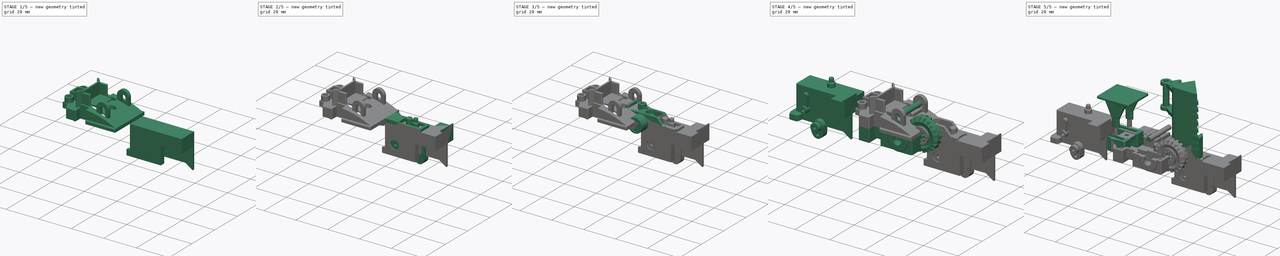
[diagram: build sequence overview — one tinted view per stage of 5, left to right]
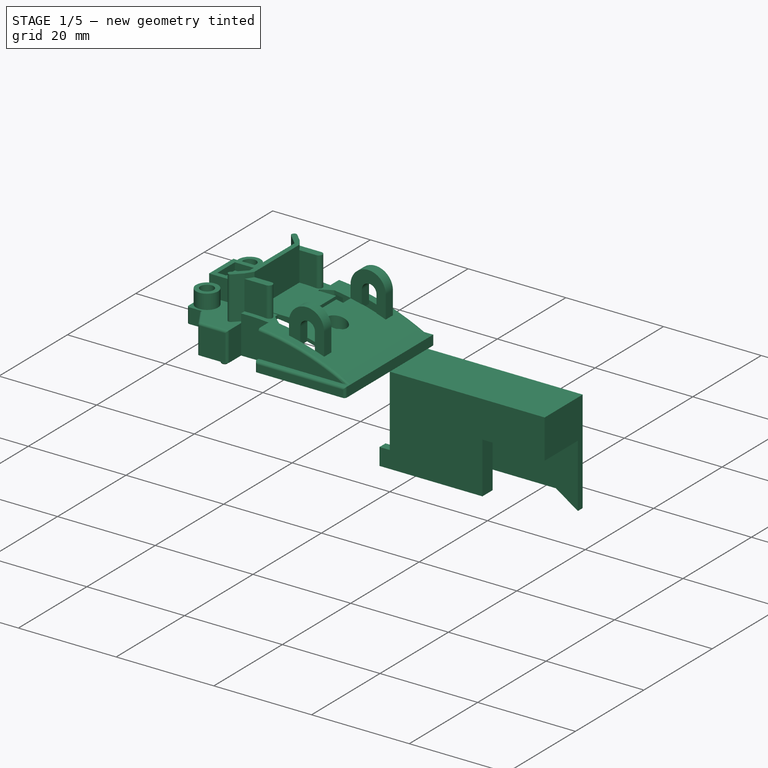
[diagram: stage 1 of 5 — iso view after this stage's code; geometry added in this stage tinted green]
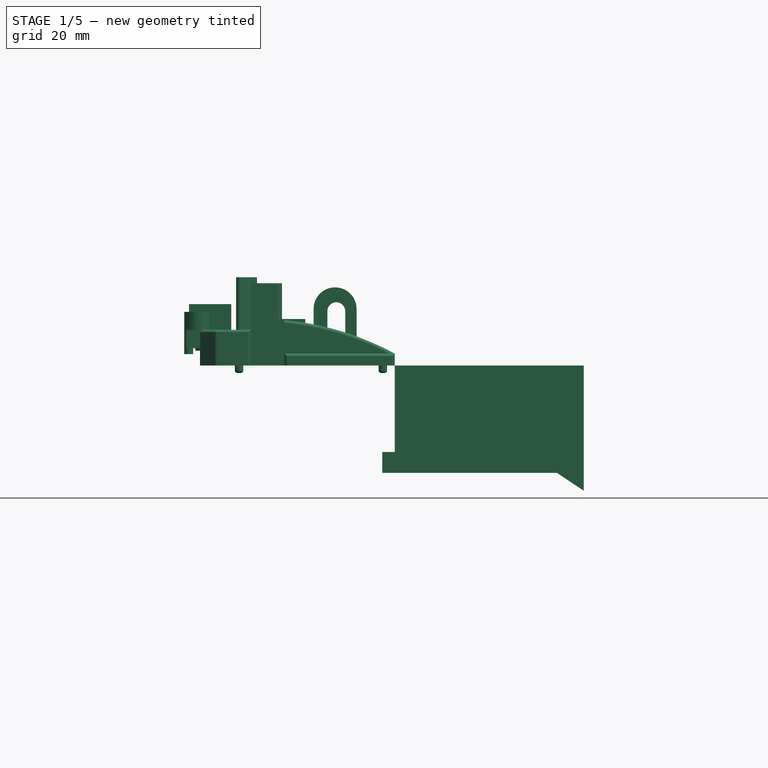
[diagram: stage 1 of 5 — front view after this stage's code; geometry added in this stage tinted green]
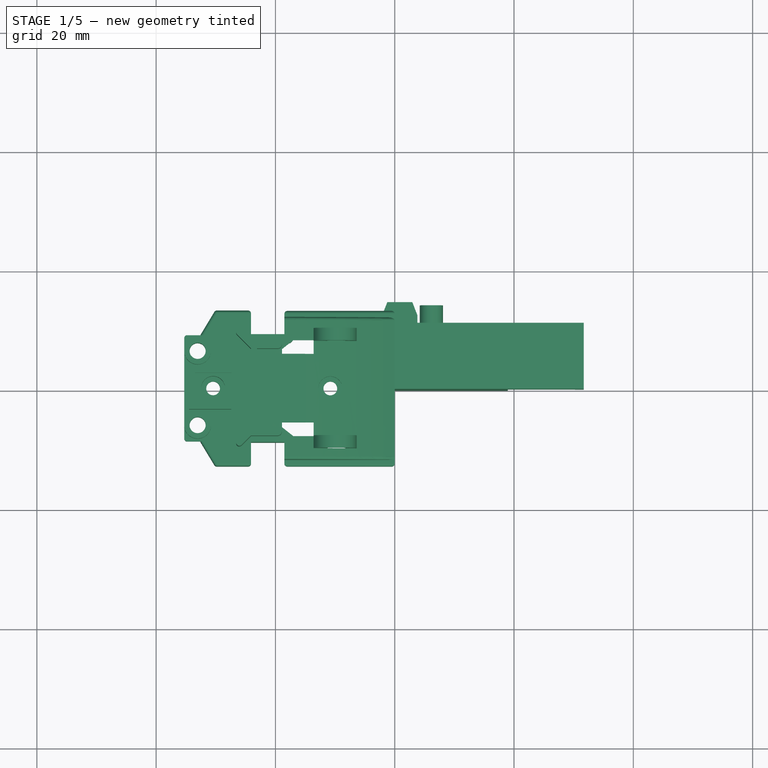
[diagram: stage 1 of 5 — top view after this stage's code; geometry added in this stage tinted green]
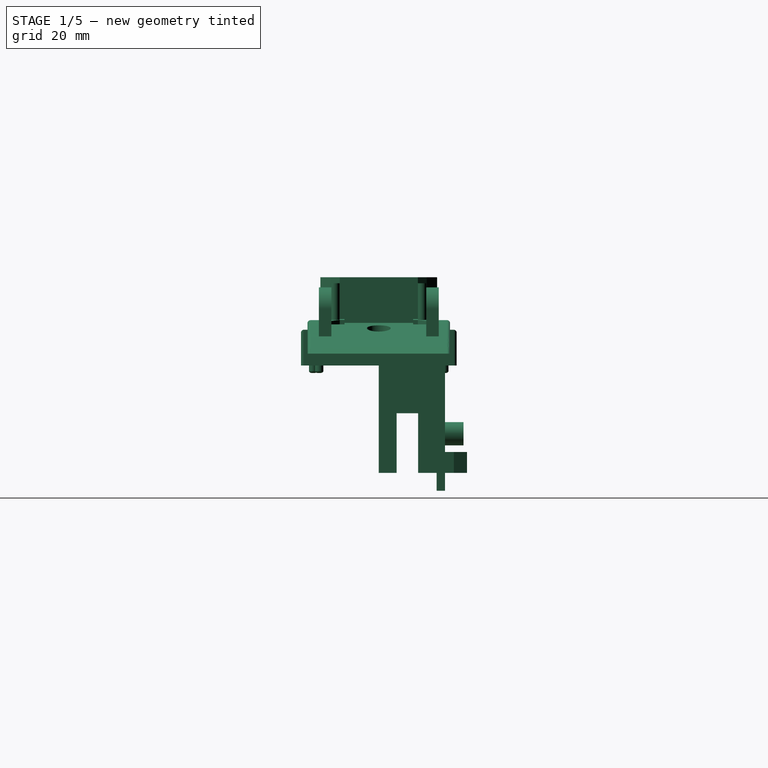
[diagram: stage 1 of 5 — right view after this stage's code; geometry added in this stage tinted green]
FCSTD DOCUMENT  (FreeCAD 1.0R39109 (Git))
Label: Scrapper
License: All rights reserved
LicenseURL: https://en.wikipedia.org/wiki/All_rights_reserved
objects: Sketcher::SketchObject×257, PartDesign::Pad×178, PartDesign::Pocket×107, PartDesign::Fillet×20, PartDesign::Body×15, PartDesign::SubShapeBinder×7, PartDesign::Chamfer×4, App::Link×4, PartDesign::SubtractivePipe×3, PartDesign::AdditiveLoft×2, Part::Mirroring×2, PartDesign::Draft×1, App::Part×1, Part::Feature×1
note: 1484 computed .brp shape members not serialized (recipe doc carries the construction recipe); baked Part::Feature solids carry a one-line shape summary decoded from their .brp

FEATURE [Sketcher::SketchObject] Sketch
  ArcFitTolerance = 1e-06
  AttachmentSupport = -> [XY_Plane]
  FullyConstrained = true
  MakeInternals = false
  MapMode = 5
  sketch-geometry (50):
    g0: LineSegment StartX=0 StartY=13.05 StartZ=0 EndX=0 EndY=-13.05 EndZ=0
    g1: LineSegment StartX=0 StartY=-13.05 StartZ=0 EndX=-18.5 EndY=-13.05 EndZ=0
    g2: LineSegment StartX=0 StartY=13.05 StartZ=0 EndX=-18.5 EndY=13.05 EndZ=0
    g3: LineSegment StartX=-17 StartY=10.55 StartZ=0 EndX=-3.5 EndY=10.55 EndZ=0
    g4: LineSegment StartX=-1.5 StartY=5.2 StartZ=0 EndX=-10.8 EndY=5.2 EndZ=0
    g5: LineSegment StartX=-10.8 StartY=5.2 StartZ=0 EndX=-10.8 EndY=3 EndZ=0
    g6: LineSegment StartX=-10.8 StartY=3 StartZ=0 EndX=-1.5 EndY=3 EndZ=0
    g7: LineSegment StartX=-1.5 StartY=3 StartZ=0 EndX=-1.5 EndY=-3 EndZ=0
    g8: LineSegment StartX=-1.5 StartY=-3 StartZ=0 EndX=-10.8 EndY=-3 EndZ=0
    g9: LineSegment StartX=-10.8 StartY=-3 StartZ=0 EndX=-10.8 EndY=-5.2 EndZ=0
    g10: LineSegment StartX=-10.8 StartY=-5.2 StartZ=0 EndX=-1.5 EndY=-5.2 EndZ=0
    g11: LineSegment StartX=-3.5 StartY=-10.55 StartZ=0 EndX=-17 EndY=-10.55 EndZ=0
    g12: ArcOfCircle CenterX=-1.5 CenterY=10.55 CenterZ=0 NormalX=0 NormalY=0 NormalZ=1 AngleXU=0 Radius=2 StartAngle=3.14159 EndAngle=4.71239
    g13: LineSegment StartX=-1.5 StartY=8.55 StartZ=0 EndX=-1.5 EndY=5.2 EndZ=0
    g14: ArcOfCircle CenterX=-1.5 CenterY=-10.55 CenterZ=0 NormalX=0 NormalY=0 NormalZ=1 AngleXU=0 Radius=2 StartAngle=1.5708 EndAngle=3.14159
    g15: LineSegment StartX=-1.5 StartY=-5.2 StartZ=0 EndX=-1.5 EndY=-8.55 EndZ=0
    g16: LineSegment StartX=-18.5 StartY=-13.05 StartZ=0 EndX=-18.5 EndY=-9.05 EndZ=0
    g17: LineSegment StartX=-18.5 StartY=-9.05 StartZ=0 EndX=-24.1 EndY=-9.05 EndZ=0
    g18: LineSegment StartX=-24.1 StartY=-9.05 StartZ=0 EndX=-24.1 EndY=-13.05 EndZ=0
    g19: LineSegment StartX=-24.1 StartY=-13.05 StartZ=0 EndX=-30.1 EndY=-13.05 EndZ=0
    g20: LineSegment StartX=-30.1 StartY=-13.05 StartZ=0 EndX=-32.6 EndY=-8.9 EndZ=0
    g21: LineSegment StartX=-32.6 StartY=-8.9 StartZ=0 EndX=-35.3 EndY=-8.9 EndZ=0
    g22: LineSegment StartX=-35.3 StartY=-8.9 StartZ=0 EndX=-35.3 EndY=8.9 EndZ=0
    g23: LineSegment StartX=-35.3 StartY=8.9 StartZ=0 EndX=-32.6 EndY=8.9 EndZ=0
    g24: LineSegment StartX=-32.6 StartY=8.9 StartZ=0 EndX=-30.1 EndY=13.05 EndZ=0
    g25: LineSegment StartX=-30.1 StartY=13.05 StartZ=0 EndX=-24.1 EndY=13.05 EndZ=0
    g26: LineSegment StartX=-24.1 StartY=13.05 StartZ=0 EndX=-24.1 EndY=9.05 EndZ=0
    g27: LineSegment StartX=-24.1 StartY=9.05 StartZ=0 EndX=-18.5 EndY=9.05 EndZ=0
    g28: LineSegment StartX=-18.5 StartY=9.05 StartZ=0 EndX=-18.5 EndY=13.05 EndZ=0
    g29: LineSegment StartX=-17 StartY=-10.55 StartZ=0 EndX=-17 EndY=-8.55 EndZ=0
    g30: ArcOfCircle CenterX=-18 CenterY=-8.55 CenterZ=0 NormalX=0 NormalY=0 NormalZ=1 AngleXU=0 Radius=1 StartAngle=5e-16 EndAngle=1.5708
    g31: LineSegment StartX=-18 StartY=-7.55 StartZ=0 EndX=-24.6 EndY=-7.55 EndZ=0
    g32: ArcOfCircle CenterX=-24.6 CenterY=-8.55 CenterZ=0 NormalX=0 NormalY=0 NormalZ=1 AngleXU=0 Radius=1 StartAngle=1.5708 EndAngle=3.14159
    g33: LineSegment StartX=-25.6 StartY=-8.55 StartZ=0 EndX=-25.6 EndY=-9.55 EndZ=0
    g34: ArcOfCircle CenterX=-25.6 CenterY=-11.55 CenterZ=0 NormalX=0 NormalY=0 NormalZ=1 AngleXU=0 Radius=2 StartAngle=1.5708 EndAngle=3.14159
    g35: LineSegment StartX=-27.6 StartY=-11.55 StartZ=0 EndX=-29.27 EndY=-11.55 EndZ=0
    g36: LineSegment StartX=-29.27 StartY=-11.55 StartZ=0 EndX=-31.4373 EndY=-7.95236 EndZ=0
    g37: ArcOfCircle CenterX=-32.6 CenterY=-8.9 CenterZ=0 NormalX=0 NormalY=0 NormalZ=1 AngleXU=0 Radius=1.5 StartAngle=0.683822 EndAngle=1.5708
    g38: LineSegment StartX=-32.6 StartY=-7.4 StartZ=0 EndX=-33.8 EndY=-7.4 EndZ=0
    g39: LineSegment StartX=-33.8 StartY=-7.4 StartZ=0 EndX=-33.8 EndY=7.4 EndZ=0
    g40: LineSegment StartX=-33.8 StartY=7.4 StartZ=0 EndX=-32.6 EndY=7.4 EndZ=0
    g41: ArcOfCircle CenterX=-32.6 CenterY=8.9 CenterZ=0 NormalX=0 NormalY=0 NormalZ=1 AngleXU=0 Radius=1.5 StartAngle=4.71239 EndAngle=5.59936
    g42: LineSegment StartX=-31.4373 StartY=7.95236 StartZ=0 EndX=-29.27 EndY=11.55 EndZ=0
    g43: LineSegment StartX=-29.27 StartY=11.55 StartZ=0 EndX=-27.6 EndY=11.55 EndZ=0
    g44: ArcOfCircle CenterX=-25.6 CenterY=11.55 CenterZ=0 NormalX=0 NormalY=0 NormalZ=1 AngleXU=0 Radius=2 StartAngle=3.14159 EndAngle=4.71239
    g45: LineSegment StartX=-25.6 StartY=9.55 StartZ=0 EndX=-25.6 EndY=8.55 EndZ=0
    g46: ArcOfCircle CenterX=-24.6 CenterY=8.55 CenterZ=0 NormalX=0 NormalY=0 NormalZ=1 AngleXU=0 Radius=1 StartAngle=3.14159 EndAngle=4.71239
    g47: LineSegment StartX=-24.6 StartY=7.55 StartZ=0 EndX=-18 EndY=7.55 EndZ=0
    g48: ArcOfCircle CenterX=-18 CenterY=8.55 CenterZ=0 NormalX=0 NormalY=0 NormalZ=1 AngleXU=0 Radius=1 StartAngle=4.71239 EndAngle=6.28319
    g49: LineSegment StartX=-17 StartY=8.55 StartZ=0 EndX=-17 EndY=10.55 EndZ=0
  constraints (158):
    c: Vertical(g0)
    c: Coincident(g1,g0)
    c: Horizontal(g1)
    c: Coincident(g2,g0)
    c: Horizontal(g2)
    c: DistanceY(g0,g0) = 26.1
    c: DistanceY(g-1,g0) = 13.05
    c: PointOnObject(g-1,g0)
    c: DistanceX(g2,g2) = 18.5
    c: DistanceX(g1,g1) = 18.5
    c: Horizontal(g3)
    c: Horizontal(g4)
    c: Coincident(g5,g4)
    c: Vertical(g5)
    c: Coincident(g6,g5)
    c: Horizontal(g6)
    c: Coincident(g7,g6)
    c: Vertical(g7)
    c: Coincident(g8,g7)
    c: Horizontal(g8)
    c: Coincident(g9,g8)
    c: Vertical(g9)
    c: Coincident(g10,g9)
    c: Horizontal(g10)
    c: Horizontal(g11)
    c: DistanceY(g5,g5) = 2.2
    c: DistanceY(g9,g9) = 2.2
    c: DistanceY(g3,g0) = 2.5
    c: DistanceY(g0,g11) = 2.5
    c: Coincident(g12,g3)
    c: Coincident(g13,g12)
    c: Coincident(g13,g4)
    c: Vertical(g13)
    c: Coincident(g14,g11)
    c: Coincident(g15,g10)
    c: Coincident(g15,g14)
    c: Vertical(g15)
    c: DistanceX(g14,g0) = 1.5
    c: DistanceX(g7,g-1) = 1.5
    c: DistanceX(g12,g0) = 1.5
    c: DistanceY(g12,g3) = 0
    c: DistanceY(g11,g14) = 0
    c: DistanceX(g14,g14) = 0
    c: Radius(g12) = 2
    c: Radius(g14) = 2
    c: DistanceY(g7,g7) = 6
    c: DistanceY(g7,g-1) = 3
    c: DistanceX(g12,g12) = 0
    c: DistanceX(g6,g6) = 9.3
    c: DistanceX(g8,g8) = 9.3
    c: Coincident(g16,g1)
    c: Vertical(g16)
    c: Coincident(g17,g16)
    c: Horizontal(g17)
    c: Coincident(g18,g17)
    c: Vertical(g18)
    c: Coincident(g19,g18)
    c: Horizontal(g19)
    c: Coincident(g20,g19)
    c: Coincident(g21,g20)
    c: Horizontal(g21)
    c: Coincident(g22,g21)
    c: Vertical(g22)
    c: Coincident(g23,g22)
    c: Horizontal(g23)
    c: Coincident(g24,g23)
    c: Coincident(g25,g24)
    c: Horizontal(g25)
    c: Coincident(g26,g25)
    c: Vertical(g26)
    c: Coincident(g27,g26)
    c: Horizontal(g27)
    c: Coincident(g28,g27)
    c: Coincident(g28,g2)
    c: Vertical(g28)
    c: DistanceX(g27,g27) = 5.6
    c: DistanceX(g17,g17) = 5.6
    c: DistanceY(g16,g16) = 4
    c: DistanceY(g18,g18) = 4
    c: DistanceY(g28,g28) = 4
    c: DistanceY(g26,g26) = 4
    c: DistanceX(g25,g25) = 6
    c: DistanceX(g19,g19) = 6
    c: DistanceX(g22,g-1) = 35.3
    c: DistanceX(g23,g23) = 2.7
    c: DistanceX(g21,g21) = 2.7
    c: DistanceY(g22,g22) = 17.8
    c: DistanceY(g-1,g22) = 8.9
    c: Coincident(g29,g11)
    c: Vertical(g29)
    c: Coincident(g30,g29)
    c: Coincident(g31,g30)
    c: Horizontal(g31)
    c: Coincident(g32,g31)
    c: Coincident(g33,g32)
    c: Vertical(g33)
    c: Coincident(g34,g33)
    c: Coincident(g35,g34)
    c: Horizontal(g35)
    c: Coincident(g36,g35)
    c: Coincident(g37,g36)
    c: Coincident(g38,g37)
    c: Horizontal(g38)
    c: Coincident(g39,g38)
    c: Vertical(g39)
    c: Coincident(g40,g39)
    c: Horizontal(g40)
    c: Coincident(g41,g40)
    c: Coincident(g42,g41)
    c: Coincident(g43,g42)
    c: Horizontal(g43)
    c: Coincident(g44,g43)
    c: Coincident(g45,g44)
    c: Vertical(g45)
    c: Coincident(g46,g45)
    c: Coincident(g47,g46)
    c: Horizontal(g47)
    c: Coincident(g48,g47)
    c: Coincident(g49,g48)
    c: Coincident(g49,g3)
    c: Vertical(g49)
    c: DistanceX(g22,g39) = 1.5
    c: DistanceY(g46,g26) = 1.5
    c: DistanceY(g17,g31) = 1.5
    c: DistanceX(g16,g29) = 1.5
    c: DistanceX(g32,g17) = 1.5
    c: DistanceX(g45,g26) = 1.5
    c: DistanceX(g27,g48) = 1.5
    c: DistanceY(g48,g48) = 0
    c: DistanceY(g29,g30) = 0
    c: DistanceX(g30,g30) = 0
    c: DistanceX(g32,g31) = 0
    c: DistanceX(g48,g47) = 0
    c: DistanceX(g46,g46) = 0
    c: DistanceY(g46,g45) = 0
    c: Radius(g48) = 1
    c: Radius(g46) = 1
    c: Radius(g30) = 1
    c: Radius(g32) = 1
    c: DistanceY(g32,g32) = 0
    c: Parallel(g20,g36)
    c: Parallel(g42,g24)
    c: DistanceX(g40,g41) = 0
    c: DistanceX(g37,g37) = 0
    c: DistanceY(g20,g38) = 1.5
    c: DistanceY(g39,g23) = 1.5
    c: DistanceX(g34,g33) = 0
    c: DistanceX(g44,g44) = 0
    c: DistanceY(g43,g44) = 0
    c: DistanceY(g34,g34) = 0
    c: Radius(g34) = 2
    c: Radius(g44) = 2
    c: DistanceY(g19,g35) = 1.5
    c: DistanceY(g42,g24) = 1.5
    c: Coincident(g41,g23)
    c: Coincident(g37,g20)
    c: Distance(g36) = 4.2
    c: Distance(g42) = 4.2
FEATURE [PartDesign::Pad] Pad
  Direction = (0,0,1)
  Length = 2
  Length2 = 10
  Profile = -> Sketch
  ReferenceAxis = -> Sketch [N_Axis]
  Refine = true
  Suppressed = false
  Type = 0
FEATURE [Sketcher::SketchObject] Sketch001
  ArcFitTolerance = 1e-06
  AttachmentSupport = -> [Pad]
  ExternalGeometry = -> [Pad]
  FullyConstrained = true
  MakeInternals = false
  MapMode = 5
  Placement = pos=(0,-13.05,0) rot=(1,0,0;1.5708rad)
  sketch-geometry (3):
    g0: LineSegment StartX=-18.5 StartY=2 StartZ=0 EndX=-18.5 EndY=7.6 EndZ=0
    g1: ArcOfCircle CenterX=-22.8718 CenterY=-40.2005 CenterZ=0 NormalX=0 NormalY=0 NormalZ=1 AngleXU=0 Radius=48 StartAngle=1.07413 EndAngle=1.47959
    g2: LineSegment StartX=-18.5 StartY=2 StartZ=0 EndX=0 EndY=2 EndZ=0
  constraints (8):
    c: Coincident(g0,g-3)
    c: Vertical(g0)
    c: Coincident(g1,g0)
    c: Coincident(g1,g-3)
    c: Coincident(g2,g0)
    c: Coincident(g2,g-3)
    c: DistanceY(g0,g0) = 5.6
    c: Radius(g1) = 48
FEATURE [PartDesign::Pad] Pad001
  BaseFeature = -> Pad
  Direction = (0,-1,2e-16)
  Length = 25
  Length2 = 10
  Profile = -> Sketch001
  ReferenceAxis = -> Sketch001 [N_Axis]
  Refine = true
  Reversed = true
  Suppressed = false
  Type = 0
FEATURE [Sketcher::SketchObject] Sketch002
  ArcFitTolerance = 1e-06
  AttachmentSupport = -> [Pad001]
  ExternalGeometry = -> [Pad001]
  FullyConstrained = true
  MakeInternals = false
  MapMode = 5
  Placement = pos=(0,-13.05,3.7e-15) rot=(1,0,0;1.5708rad)
  sketch-geometry (3):
    g0: LineSegment StartX=-17 StartY=2 StartZ=0 EndX=-1.5 EndY=2 EndZ=0
    g1: LineSegment StartX=-17 StartY=2 StartZ=0 EndX=-17 EndY=6.7373 EndZ=0
    g2: ArcOfCircle CenterX=-22.8718 CenterY=-40.2005 CenterZ=0 NormalX=0 NormalY=0 NormalZ=1 AngleXU=0 Radius=47.3036 StartAngle=1.10201 EndAngle=1.44635
  constraints (9):
    c: Horizontal(g0)
    c: Coincident(g1,g0)
    c: Vertical(g1)
    c: Coincident(g2,g1)
    c: Coincident(g2,g0)
    c: Coincident(g2,g-3)
    c: DistanceY(g-4,g0) = 2
    c: DistanceX(g-4,g0) = 1.5
    c: DistanceX(g0,g-5) = 1.5
FEATURE [PartDesign::Pocket] Pocket
  BaseFeature = -> Pad001
  Direction = (0,1,-2e-16)
  Length = 23.6
  Length2 = 5
  Profile = -> Sketch002
  ReferenceAxis = -> Sketch002 [N_Axis]
  Refine = true
  Suppressed = false
  Type = 0
FEATURE [Sketcher::SketchObject] Sketch003
  ArcFitTolerance = 1e-06
  AttachmentSupport = -> [Pocket]
  ExternalGeometry = -> [Pocket]
  FullyConstrained = true
  MakeInternals = false
  MapMode = 5
  Placement = pos=(0,-13.05,3.7e-15) rot=(1,0,0;1.5708rad)
  sketch-geometry (3):
    g0: LineSegment StartX=0 StartY=2 StartZ=0 EndX=-18.5 EndY=2 EndZ=0
    g1: LineSegment StartX=-18.5 StartY=2 StartZ=0 EndX=-18.5 EndY=7.6 EndZ=0
    g2: ArcOfCircle CenterX=-22.8718 CenterY=-40.2005 CenterZ=0 NormalX=0 NormalY=0 NormalZ=1 AngleXU=0 Radius=48 StartAngle=1.07413 EndAngle=1.47959
  constraints (8):
    c: Coincident(g0,g-4)
    c: PointOnObject(g0,g-5)
    c: Horizontal(g0)
    c: Coincident(g1,g0)
    c: Coincident(g1,g-5)
    c: Coincident(g2,g1)
    c: Coincident(g2,g0)
    c: Tangent(g2,g-4)
FEATURE [PartDesign::Pocket] Pocket001
  BaseFeature = -> Pocket
  Direction = (0,1,-2e-16)
  Length = 1.1
  Length2 = 5
  Profile = -> Sketch003
  ReferenceAxis = -> Sketch003 [N_Axis]
  Refine = true
  Suppressed = false
  Type = 0
FEATURE [Sketcher::SketchObject] Sketch004
  ArcFitTolerance = 1e-06
  AttachmentSupport = -> [Pocket001]
  ExternalGeometry = -> [Pocket001]
  FullyConstrained = true
  MakeInternals = false
  MapMode = 5
  Placement = pos=(0,-11.95,4.5e-15) rot=(1,0,0;1.5708rad)
  sketch-geometry (3):
    g0: LineSegment StartX=-17 StartY=6.7373 StartZ=0 EndX=-17 EndY=2 EndZ=0
    g1: LineSegment StartX=-17 StartY=2 StartZ=0 EndX=-1.5 EndY=2 EndZ=0
    g2: ArcOfCircle CenterX=-22.8718 CenterY=-40.2005 CenterZ=0 NormalX=0 NormalY=0 NormalZ=1 AngleXU=0 Radius=47.3036 StartAngle=1.10201 EndAngle=1.44635
  constraints (7):
    c: Coincident(g0,g-4)
    c: Coincident(g0,g-4)
    c: Coincident(g1,g0)
    c: Coincident(g1,g-3)
    c: Coincident(g2,g0)
    c: Coincident(g2,g1)
    c: Tangent(g2,g-3)
FEATURE [PartDesign::Pad] Pad002
  BaseFeature = -> Pocket001
  Direction = (0,-1,2e-16)
  Length = 1.4
  Length2 = 10
  Profile = -> Sketch004
  ReferenceAxis = -> Sketch004 [N_Axis]
  Refine = true
  Reversed = true
  Suppressed = false
  Type = 0
FEATURE [Sketcher::SketchObject] Sketch005
  ArcFitTolerance = 1e-06
  AttachmentSupport = -> [Pad002]
  ExternalGeometry = -> [Pad002]
  FullyConstrained = true
  MakeInternals = false
  MapMode = 5
  Placement = pos=(0,-9.05,0) rot=(1,0,0;1.5708rad)
  sketch-geometry (4):
    g0: LineSegment StartX=-18.5 StartY=7.6 StartZ=0 EndX=-18.5 EndY=2 EndZ=0
    g1: LineSegment StartX=-18.5 StartY=2 StartZ=0 EndX=-24.1 EndY=2 EndZ=0
    g2: LineSegment StartX=-24.1 StartY=2 StartZ=0 EndX=-24.1 EndY=7.78379 EndZ=0
    g3: ArcOfCircle CenterX=-22.8718 CenterY=-40.2005 CenterZ=0 NormalX=0 NormalY=0 NormalZ=1 AngleXU=0 Radius=48 StartAngle=1.47959 EndAngle=1.59639
  constraints (9):
    c: Coincident(g0,g-4)
    c: Coincident(g0,g-4)
    c: Coincident(g1,g0)
    c: Coincident(g1,g-3)
    c: Coincident(g2,g1)
    c: Vertical(g2)
    c: Coincident(g3,g0)
    c: Coincident(g3,g2)
    c: Coincident(g3,g-5)
FEATURE [PartDesign::Pad] Pad003
  BaseFeature = -> Pad002
  Direction = (0,-1,2e-16)
  Length = 18.1
  Length2 = 10
  Profile = -> Sketch005
  ReferenceAxis = -> Sketch005 [N_Axis]
  Refine = true
  Reversed = true
  Suppressed = false
  Type = 0
FEATURE [Sketcher::SketchObject] Sketch006
  ArcFitTolerance = 1e-06
  AttachmentSupport = -> [Pad003]
  ExternalGeometry = -> [Pad003]
  FullyConstrained = true
  MakeInternals = false
  MapMode = 5
  Placement = pos=(0,11.95,-4.5e-15) rot=(0,0.707107,0.707107;3.14159rad)
  sketch-geometry (4):
    g0: LineSegment StartX=24.1 StartY=2 StartZ=0 EndX=17 EndY=2 EndZ=0
    g1: LineSegment StartX=17 StartY=2 StartZ=0 EndX=17 EndY=6.73 EndZ=0
    g2: LineSegment StartX=24.1 StartY=2 StartZ=0 EndX=24.1 EndY=7.07995 EndZ=0
    g3: ArcOfCircle CenterX=22.8718 CenterY=-40.2005 CenterZ=0 NormalX=0 NormalY=0 NormalZ=1 AngleXU=0 Radius=47.2964 StartAngle=1.54482 EndAngle=1.69527
  constraints (11):
    c: Coincident(g0,g-5)
    c: PointOnObject(g0,g-4)
    c: Coincident(g1,g0)
    c: Vertical(g1)
    c: Coincident(g2,g0)
    c: PointOnObject(g2,g-5)
    c: Coincident(g3,g1)
    c: Coincident(g3,g2)
    c: Coincident(g3,g-3)
    c: DistanceX(g0,g-4) = 1.5
    c: DistanceY(g1,g1) = 4.73
FEATURE [PartDesign::Pocket] Pocket002
  BaseFeature = -> Pad003
  Direction = (0,-1,2e-16)
  Length = 24
  Length2 = 5
  Profile = -> Sketch006
  ReferenceAxis = -> Sketch006 [N_Axis]
  Refine = true
  Suppressed = false
  Type = 0
FEATURE [Sketcher::SketchObject] Sketch007
  ArcFitTolerance = 1e-06
  AttachmentSupport = -> [Pocket002]
  ExternalGeometry = -> [Pocket002]
  FullyConstrained = true
  MakeInternals = false
  MapMode = 5
  Placement = pos=(0,0,2) rot=(0,0,1;0rad)
  sketch-geometry (5):
    g0: LineSegment StartX=-17 StartY=-11.95 StartZ=0 EndX=-18.5 EndY=-11.95 EndZ=0
    g1: LineSegment StartX=-18.5 StartY=-11.95 StartZ=0 EndX=-18.5 EndY=-7.55 EndZ=0
    g2: LineSegment StartX=-17 StartY=-11.95 StartZ=0 EndX=-17 EndY=-8.55 EndZ=0
    g3: LineSegment StartX=-18.5 StartY=-7.55 StartZ=0 EndX=-18 EndY=-7.55 EndZ=0
    g4: ArcOfCircle CenterX=-18 CenterY=-8.55001 CenterZ=0 NormalX=0 NormalY=0 NormalZ=1 AngleXU=0 Radius=1.00001 StartAngle=6.04686e-06 EndAngle=1.57079
  constraints (13):
    c: Coincident(g0,g-6)
    c: PointOnObject(g0,g-5)
    c: Horizontal(g0)
    c: Coincident(g1,g0)
    c: Vertical(g1)
    c: Coincident(g2,g0)
    c: Coincident(g2,g-4)
    c: PointOnObject(g1,g-7)
    c: Coincident(g3,g1)
    c: Coincident(g3,g-7)
    c: Coincident(g4,g3)
    c: Coincident(g4,g2)
    c: Tangent(g4,g-4)
FEATURE [PartDesign::Pad] Pad004
  BaseFeature = -> Pocket002
  Direction = (0,0,1)
  Length = 5
  Length2 = 10
  Profile = -> Sketch007
  ReferenceAxis = -> Sketch007 [N_Axis]
  Refine = true
  Suppressed = false
  Type = 0
FEATURE [Sketcher::SketchObject] Sketch008
  ArcFitTolerance = 1e-06
  AttachmentSupport = -> [Pad004]
  ExternalGeometry = -> [Pad004]
  FullyConstrained = true
  MakeInternals = false
  MapMode = 5
  Placement = pos=(0,0,2) rot=(0,0,1;0rad)
  sketch-geometry (4):
    g0: LineSegment StartX=-18.5 StartY=-7.55 StartZ=0 EndX=-24.1 EndY=-7.55 EndZ=0
    g1: LineSegment StartX=-24.1 StartY=-7.55 StartZ=0 EndX=-24.1 EndY=-9.05 EndZ=0
    g2: LineSegment StartX=-24.1 StartY=-9.05 StartZ=0 EndX=-18.5 EndY=-9.05 EndZ=0
    g3: LineSegment StartX=-18.5 StartY=-9.05 StartZ=0 EndX=-18.5 EndY=-7.55 EndZ=0
  constraints (10):
    c: Coincident(g0,g1)
    c: Coincident(g1,g2)
    c: Coincident(g2,g3)
    c: Coincident(g3,g0)
    c: Horizontal(g0)
    c: Horizontal(g2)
    c: Vertical(g1)
    c: Vertical(g3)
    c: Coincident(g0,g-4)
    c: Coincident(g1,g-5)
FEATURE [PartDesign::Pad] Pad005
  BaseFeature = -> Pad004
  Direction = (0,0,1)
  Length = 5.1
  Length2 = 10
  Profile = -> Sketch008
  ReferenceAxis = -> Sketch008 [N_Axis]
  Refine = true
  Suppressed = false
  Type = 0
FEATURE [Sketcher::SketchObject] Sketch009
  ArcFitTolerance = 1e-06
  AttachmentSupport = -> [Pad005]
  ExternalGeometry = -> [Pad005]
  FullyConstrained = true
  MakeInternals = false
  MapMode = 5
  Placement = pos=(0,0,2) rot=(0,0,1;0rad)
  sketch-geometry (5):
    g0: LineSegment StartX=-17 StartY=11.95 StartZ=0 EndX=-18.5 EndY=11.95 EndZ=0
    g1: LineSegment StartX=-18.5 StartY=11.95 StartZ=0 EndX=-18.5 EndY=7.55 EndZ=0
    g2: LineSegment StartX=-17 StartY=11.95 StartZ=0 EndX=-17 EndY=8.55 EndZ=0
    g3: LineSegment StartX=-18.5 StartY=7.55 StartZ=0 EndX=-18 EndY=7.55 EndZ=0
    g4: ArcOfCircle CenterX=-18 CenterY=8.55001 CenterZ=0 NormalX=0 NormalY=0 NormalZ=1 AngleXU=0 Radius=1.00001 StartAngle=4.7124 EndAngle=6.28318
  constraints (13):
    c: Coincident(g0,g-7)
    c: PointOnObject(g0,g-3)
    c: Horizontal(g0)
    c: Coincident(g1,g0)
    c: PointOnObject(g1,g-4)
    c: Vertical(g1)
    c: Coincident(g2,g0)
    c: Coincident(g2,g-6)
    c: Coincident(g3,g1)
    c: Coincident(g3,g-5)
    c: Coincident(g4,g3)
    c: Tangent(g4,g-5)
    c: Coincident(g4,g2)
FEATURE [PartDesign::Pad] Pad006
  BaseFeature = -> Pad005
  Direction = (0,0,1)
  Length = 5
  Length2 = 10
  Profile = -> Sketch009
  ReferenceAxis = -> Sketch009 [N_Axis]
  Refine = true
  Suppressed = false
  Type = 0
FEATURE [Sketcher::SketchObject] Sketch010
  ArcFitTolerance = 1e-06
  AttachmentSupport = -> [Pad006]
  ExternalGeometry = -> [Pad006]
  FullyConstrained = true
  MakeInternals = false
  MapMode = 5
  Placement = pos=(0,0,2) rot=(0,0,1;0rad)
  sketch-geometry (4):
    g0: LineSegment StartX=-18.5 StartY=7.55 StartZ=0 EndX=-18.5 EndY=9.05 EndZ=0
    g1: LineSegment StartX=-18.5 StartY=9.05 StartZ=0 EndX=-24.1 EndY=9.05 EndZ=0
    g2: LineSegment StartX=-24.1 StartY=9.05 StartZ=0 EndX=-24.1 EndY=7.55 EndZ=0
    g3: LineSegment StartX=-24.1 StartY=7.55 StartZ=0 EndX=-18.5 EndY=7.55 EndZ=0
  constraints (10):
    c: Coincident(g0,g1)
    c: Coincident(g1,g2)
    c: Coincident(g2,g3)
    c: Coincident(g3,g0)
    c: Vertical(g0)
    c: Vertical(g2)
    c: Horizontal(g1)
    c: Horizontal(g3)
    c: Coincident(g0,g-5)
    c: Coincident(g1,g-4)
FEATURE [PartDesign::Pad] Pad007
  BaseFeature = -> Pad006
  Direction = (0,0,1)
  Length = 5.1
  Length2 = 10
  Profile = -> Sketch010
  ReferenceAxis = -> Sketch010 [N_Axis]
  Refine = true
  Suppressed = false
  Type = 0
FEATURE [PartDesign::Pad] Pad008
  BaseFeature = -> Pad007
  Direction = (0,0,1)
  Length = 4
  Length2 = 10
  Profile = -> Pad007 [Face55]
  Refine = true
  Suppressed = false
  Type = 0
FEATURE [Sketcher::SketchObject] Sketch011
  ArcFitTolerance = 1e-06
  AttachmentSupport = -> [Pad008]
  ExternalGeometry = -> [Pad008]
  FullyConstrained = true
  MakeInternals = false
  MapMode = 5
  Placement = pos=(0,0,6) rot=(0,0,1;0rad)
  sketch-geometry (18):
    g0: LineSegment StartX=-24.1 StartY=7.55 StartZ=0 EndX=-24.1 EndY=-7.55 EndZ=0
    g1: ArcOfCircle CenterX=-24.6 CenterY=-8.55 CenterZ=0 NormalX=0 NormalY=0 NormalZ=1 AngleXU=0 Radius=1 StartAngle=1.5708 EndAngle=3.14159
    g2: LineSegment StartX=-25.6 StartY=-8.55 StartZ=0 EndX=-25.6 EndY=-9.55 EndZ=0
    g3: ArcOfCircle CenterX=-25.6 CenterY=-11.55 CenterZ=0 NormalX=0 NormalY=0 NormalZ=1 AngleXU=0 Radius=2 StartAngle=1.5708 EndAngle=3.14159
    g4: LineSegment StartX=-27.6 StartY=-11.55 StartZ=0 EndX=-29.27 EndY=-11.55 EndZ=0
    g5: LineSegment StartX=-29.27 StartY=-11.55 StartZ=0 EndX=-31.4373 EndY=-7.95236 EndZ=0
    g6: ArcOfCircle CenterX=-32.6 CenterY=-8.9 CenterZ=0 NormalX=0 NormalY=0 NormalZ=1 AngleXU=0 Radius=1.5 StartAngle=0.683822 EndAngle=1.5708
    g7: LineSegment StartX=-32.6 StartY=-7.4 StartZ=0 EndX=-33.8 EndY=-7.4 EndZ=0
    g8: LineSegment StartX=-33.8 StartY=-7.4 StartZ=0 EndX=-33.8 EndY=7.4 EndZ=0
    g9: LineSegment StartX=-33.8 StartY=7.4 StartZ=0 EndX=-32.6 EndY=7.4 EndZ=0
    g10: ArcOfCircle CenterX=-25.6 CenterY=11.55 CenterZ=0 NormalX=0 NormalY=0 NormalZ=1 AngleXU=0 Radius=1.99999 StartAngle=3.14159 EndAngle=4.71239
    g11: LineSegment StartX=-27.6 StartY=11.55 StartZ=0 EndX=-29.27 EndY=11.55 EndZ=0
    g12: LineSegment StartX=-29.27 StartY=11.55 StartZ=0 EndX=-31.4373 EndY=7.95236 EndZ=0
    g13: ArcOfCircle CenterX=-32.6 CenterY=8.90002 CenterZ=0 NormalX=0 NormalY=0 NormalZ=1 AngleXU=0 Radius=1.50002 StartAngle=4.71239 EndAngle=5.59936
    g14: LineSegment StartX=-24.6 StartY=-7.55 StartZ=0 EndX=-24.1 EndY=-7.55 EndZ=0
    g15: LineSegment StartX=-24.1 StartY=7.55 StartZ=0 EndX=-24.6 EndY=7.55 EndZ=0
    g16: ArcOfCircle CenterX=-24.6 CenterY=8.55 CenterZ=0 NormalX=0 NormalY=0 NormalZ=1 AngleXU=0 Radius=1 StartAngle=3.14159 EndAngle=4.71239
    g17: LineSegment StartX=-25.6 StartY=9.55 StartZ=0 EndX=-25.6 EndY=8.55 EndZ=0
  constraints (38):
    c: Coincident(g0,g-16)
    c: Tangent(g1,g-15) = -1.5708
    c: Coincident(g3,g2)
    c: Tangent(g3,g-13) = -1.5708
    c: Coincident(g2,g-14)
    c: Coincident(g2,g1)
    c: Coincident(g4,g3)
    c: Coincident(g4,g-12)
    c: Coincident(g5,g4)
    c: Coincident(g5,g-11)
    c: Coincident(g6,g5)
    c: Tangent(g6,g-10) = -1.5708
    c: Coincident(g7,g-9)
    c: Coincident(g7,g6)
    c: Coincident(g8,g7)
    c: Coincident(g8,g-8)
    c: Coincident(g9,g8)
    c: Coincident(g9,g-7)
    c: Coincident(g10,g-4)
    c: Coincident(g11,g10)
    c: Coincident(g11,g-5)
    c: Coincident(g12,g11)
    c: Coincident(g12,g-6)
    c: Coincident(g13,g12)
    c: Coincident(g13,g9)
    c: Tangent(g13,g-6)
    c: Tangent(g10,g-3)
    c: Coincident(g1,g-16)
    c: Coincident(g14,g1)
    c: Coincident(g14,g0)
    c: Coincident(g15,g-19)
    c: Coincident(g15,g0)
    c: Coincident(g0,g-19)
    c: Coincident(g10,g-17)
    c: Coincident(g16,g15)
    c: Tangent(g16,g-18) = -1.5708
    c: Coincident(g17,g10)
    c: Coincident(g17,g-18)
FEATURE [PartDesign::Pad] Pad009
  BaseFeature = -> Pad008
  Direction = (0,0,1)
  Length = 1.5
  Length2 = 10
  Profile = -> Sketch011
  ReferenceAxis = -> Sketch011 [N_Axis]
  Refine = true
  Reversed = true
  Suppressed = false
  Type = 0
FEATURE [Sketcher::SketchObject] Sketch012
  ArcFitTolerance = 1e-06
  AttachmentSupport = -> [Pad009]
  ExternalGeometry = -> [Pad009]
  FullyConstrained = true
  MakeInternals = false
  MapMode = 5
  Placement = pos=(0,0,4.5) rot=(1,0,0;3.14159rad)
  sketch-geometry (4):
    g0: LineSegment StartX=-24.1 StartY=7.55 StartZ=0 EndX=-24.1 EndY=-7.55 EndZ=0
    g1: LineSegment StartX=-24.1 StartY=-7.55 StartZ=0 EndX=-22.6 EndY=-7.55 EndZ=0
    g2: LineSegment StartX=-22.6 StartY=-7.55 StartZ=0 EndX=-22.6 EndY=7.55 EndZ=0
    g3: LineSegment StartX=-22.6 StartY=7.55 StartZ=0 EndX=-24.1 EndY=7.55 EndZ=0
  constraints (11):
    c: Coincident(g0,g1)
    c: Coincident(g1,g2)
    c: Coincident(g2,g3)
    c: Coincident(g3,g0)
    c: Vertical(g0)
    c: Vertical(g2)
    c: Horizontal(g1)
    c: Horizontal(g3)
    c: Coincident(g0,g-3)
    c: PointOnObject(g1,g-5)
    c: DistanceX(g1,g1) = 1.5
FEATURE [PartDesign::Pad] Pad010
  BaseFeature = -> Pad009
  Direction = (0,0,-1)
  Length = 3
  Length2 = 10
  Profile = -> Sketch012
  ReferenceAxis = -> Sketch012 [N_Axis]
  Refine = true
  Reversed = true
  Suppressed = false
  Type = 0
FEATURE [Sketcher::SketchObject] Sketch013
  ArcFitTolerance = 1e-06
  AttachmentSupport = -> [Pad010]
  ExternalGeometry = -> [Pad010]
  FullyConstrained = true
  MakeInternals = false
  MapMode = 5
  Placement = pos=(0,5.2,0) rot=(0,0.707107,0.707107;3.14159rad)
  sketch-geometry (3):
    g0: LineSegment StartX=1.5 StartY=2 StartZ=0 EndX=10.8 EndY=2 EndZ=0
    g1: LineSegment StartX=10.8 StartY=2 StartZ=0 EndX=10.8 EndY=5.53687 EndZ=0
    g2: ArcOfCircle CenterX=22.8718 CenterY=-40.2005 CenterZ=0 NormalX=0 NormalY=0 NormalZ=1 AngleXU=0 Radius=47.3036 StartAngle=1.82885 EndAngle=2.03958
  constraints (8):
    c: Coincident(g0,g-4)
    c: Coincident(g0,g-3)
    c: Coincident(g1,g0)
    c: PointOnObject(g1,g-4)
    c: Vertical(g1)
    c: Coincident(g2,g0)
    c: Coincident(g2,g1)
    c: Tangent(g2,g-4)
FEATURE [PartDesign::Pad] Pad011
  BaseFeature = -> Pad010
  Direction = (0,1,-2e-16)
  Length = 2.2
  Length2 = 10
  Profile = -> Sketch013
  ReferenceAxis = -> Sketch013 [N_Axis]
  Refine = true
  Reversed = true
  Suppressed = false
  Type = 0
FEATURE [Sketcher::SketchObject] Sketch014
  ArcFitTolerance = 1e-06
  AttachmentSupport = -> [Pad011]
  ExternalGeometry = -> [Pad011]
  FullyConstrained = true
  MakeInternals = false
  MapMode = 5
  Placement = pos=(0,-3,0) rot=(0,0.707107,0.707107;3.14159rad)
  sketch-geometry (3):
    g0: LineSegment StartX=1.5 StartY=2 StartZ=0 EndX=10.8 EndY=2 EndZ=0
    g1: LineSegment StartX=10.8 StartY=2 StartZ=0 EndX=10.8 EndY=5.53687 EndZ=0
    g2: ArcOfCircle CenterX=22.8718 CenterY=-40.2005 CenterZ=0 NormalX=0 NormalY=0 NormalZ=1 AngleXU=0 Radius=47.3036 StartAngle=1.82885 EndAngle=2.03958
  constraints (8):
    c: Coincident(g0,g-4)
    c: Coincident(g0,g-3)
    c: Coincident(g1,g0)
    c: Vertical(g1)
    c: PointOnObject(g1,g-4)
    c: Coincident(g2,g0)
    c: Coincident(g2,g1)
    c: Tangent(g2,g-4)
FEATURE [PartDesign::Pad] Pad012
  BaseFeature = -> Pad011
  Direction = (0,1,-2e-16)
  Length = 2.2
  Length2 = 10
  Profile = -> Sketch014
  ReferenceAxis = -> Sketch014 [N_Axis]
  Refine = true
  Reversed = true
  Suppressed = false
  Type = 0
FEATURE [Sketcher::SketchObject] Sketch015
  ArcFitTolerance = 1e-06
  AttachmentOffset = pos=(-7,0,1.8) rot=(0,0,1;0rad)
  AttachmentSupport = -> [Pad012]
  ExternalGeometry = -> [Pad012]
  FullyConstrained = true
  MakeInternals = false
  MapMode = 5
  Placement = pos=(-7,0,7.8) rot=(0,0,1;0rad)
  sketch-geometry (4):
    g0: LineSegment StartX=-17.1 StartY=5.75 StartZ=0 EndX=-17.1 EndY=-5.75 EndZ=0
    g1: LineSegment StartX=-17.1 StartY=-5.75 StartZ=0 EndX=-8 EndY=-5.75 EndZ=0
    g2: LineSegment StartX=-8 StartY=-5.75 StartZ=0 EndX=-8 EndY=5.75 EndZ=0
    g3: LineSegment StartX=-8 StartY=5.75 StartZ=0 EndX=-17.1 EndY=5.75 EndZ=0
  constraints (12):
    c: Coincident(g0,g1)
    c: Coincident(g1,g2)
    c: Coincident(g2,g3)
    c: Coincident(g3,g0)
    c: Vertical(g0)
    c: Vertical(g2)
    c: Horizontal(g1)
    c: Horizontal(g3)
    c: DistanceY(g2,g2) = 11.5
    c: DistanceY(g-1,g2) = 5.75
    c: DistanceX(g3,g3) = 9.1
    c: PointOnObject(g0,g-3)
FEATURE [PartDesign::Pad] Pad013
  BaseFeature = -> Pad012
  Direction = (0,0,1)
  Length = 0.7
  Length2 = 10
  Profile = -> Sketch015
  ReferenceAxis = -> Sketch015 [N_Axis]
  Refine = true
  Reversed = true
  Suppressed = false
  Type = 0
FEATURE [Sketcher::SketchObject] Sketch016
  ArcFitTolerance = 1e-06
  AttachmentSupport = -> [Pad013]
  ExternalGeometry = -> [Pad013]
  FullyConstrained = true
  MakeInternals = false
  MapMode = 5
  Placement = pos=(0,0,7.8) rot=(0,0,1;0rad)
  sketch-geometry (16):
    g0: LineSegment StartX=-23.1 StartY=6.55 StartZ=0 EndX=-23.1 EndY=-6.55 EndZ=0
    g1: LineSegment StartX=-24.1 StartY=6.55 StartZ=0 EndX=-24.1 EndY=-6.55 EndZ=0
    g2: ArcOfCircle CenterX=-26.0585 CenterY=9.25845 CenterZ=0 NormalX=0 NormalY=0 NormalZ=1 AngleXU=0 Radius=0.53033 StartAngle=0.785398 EndAngle=3.92699
    g3: LineSegment StartX=-26.4335 StartY=8.88345 StartZ=0 EndX=-24.1 EndY=6.55 EndZ=0
    g4: ArcOfCircle CenterX=-26.0585 CenterY=-9.25845 CenterZ=0 NormalX=0 NormalY=0 NormalZ=1 AngleXU=0 Radius=0.53033 StartAngle=2.35619 EndAngle=5.49779
    g5: LineSegment StartX=-24.1 StartY=-6.55 StartZ=0 EndX=-26.4335 EndY=-8.88345 EndZ=0
    g6: LineSegment StartX=-23.1 StartY=-6.55 StartZ=0 EndX=-19.65 EndY=-6.55 EndZ=0
    g7: ArcOfCircle CenterX=-19.65 CenterY=-7.3 CenterZ=0 NormalX=0 NormalY=0 NormalZ=1 AngleXU=0 Radius=0.75 StartAngle=4.71239 EndAngle=7.85398
    g8: LineSegment StartX=-19.65 StartY=-8.05 StartZ=0 EndX=-24.1 EndY=-8.05 EndZ=0
    g9: LineSegment StartX=-24.1 StartY=-8.05 StartZ=0 EndX=-25.6835 EndY=-9.63345 EndZ=0
    g10: LineSegment StartX=-23.1 StartY=6.55 StartZ=0 EndX=-19.65 EndY=6.55 EndZ=0
    g11: ArcOfCircle CenterX=-19.65 CenterY=7.3 CenterZ=0 NormalX=0 NormalY=0 NormalZ=1 AngleXU=0 Radius=0.75 StartAngle=4.71239 EndAngle=7.85398
    g12: LineSegment StartX=-19.65 StartY=8.05 StartZ=0 EndX=-24.1 EndY=8.05 EndZ=0
    g13: LineSegment StartX=-24.1 StartY=8.05 StartZ=0 EndX=-25.6835 EndY=9.63345 EndZ=0
    g14: LineSegment [constr] StartX=-26.4335 StartY=8.88345 StartZ=0 EndX=-25.6835 EndY=9.63345 EndZ=0
    g15: LineSegment [constr] StartX=-25.6835 StartY=-9.63345 StartZ=0 EndX=-26.4335 EndY=-8.88345 EndZ=0
  constraints (51):
    c: Vertical(g0)
    c: PointOnObject(g1,g-3)
    c: PointOnObject(g1,g-3)
    c: Coincident(g3,g1)
    c: Coincident(g5,g1)
    c: Coincident(g5,g4)
    c: Coincident(g6,g0)
    c: Horizontal(g6)
    c: Coincident(g7,g6)
    c: Coincident(g8,g7)
    c: Horizontal(g8)
    c: Coincident(g9,g8)
    c: Coincident(g9,g4)
    c: Coincident(g10,g0)
    c: Horizontal(g10)
    c: Coincident(g11,g10)
    c: Coincident(g12,g11)
    c: Horizontal(g12)
    c: Coincident(g13,g12)
    c: Coincident(g2,g13)
    c: Coincident(g3,g2)
    c: Angle(g1,g5) = 2.35619
    c: Parallel(g5,g9)
    c: Parallel(g13,g3)
    c: Angle(g3,g1) = 2.35619
    c: Diameter(g7) = 1.5
    c: Diameter(g11) = 1.5
    c: DistanceX(g11,g11) = 0
    c: DistanceX(g11,g10) = 0
    c: DistanceX(g7,g6) = 0
    c: DistanceX(g7,g7) = 0
    c: DistanceX(g-5,g-5) = 0
    c: DistanceX(g1,g0) = 1
    c: DistanceY(g11,g-6) = 1
    c: DistanceY(g-7,g7) = 1
    c: DistanceY(g0,g1) = 0
    c: DistanceX(g0,g7) = 3.45
    c: DistanceX(g0,g10) = 3.45
    c: DistanceX(g8,g1) = 0
    c: DistanceX(g12,g1) = 0
    c: DistanceY(g1,g0) = 0
    c: Distance(g5) = 3.3
    c: Distance(g3) = 3.3
    c: Coincident(g14,g2)
    c: Coincident(g14,g2)
    c: PointOnObject(g2,g14)
    c: Coincident(g15,g4)
    c: Coincident(g15,g4)
    c: PointOnObject(g4,g15)
    c: Angle(g15,g5) = 1.5708
    c: Angle(g3,g14) = 1.5708
FEATURE [PartDesign::Pad] Pad014
  BaseFeature = -> Pad013
  Direction = (0,0,1)
  Length = 2
  Length2 = 10
  Profile = -> Sketch016
  ReferenceAxis = -> Sketch016 [N_Axis]
  Refine = true
  Reversed = true
  Suppressed = false
  Type = 0
FEATURE [Sketcher::SketchObject] Sketch017
  ArcFitTolerance = 1e-06
  AttachmentSupport = -> [Pad014]
  ExternalGeometry = -> [Pad014]
  FullyConstrained = true
  MakeInternals = false
  MapMode = 5
  Placement = pos=(-4.4698e-12,-7.55,-1.265e-12) rot=(0,0.707107,0.707107;3.14159rad)
  sketch-geometry (4):
    g0: ArcOfCircle CenterX=22.8718 CenterY=-40.2005 CenterZ=0 NormalX=0 NormalY=0 NormalZ=1 AngleXU=0 Radius=47.2964 StartAngle=1.57654 EndAngle=1.67398
    g1: LineSegment StartX=18 StartY=6.84432 StartZ=0 EndX=18 EndY=4.5 EndZ=0
    g2: LineSegment StartX=18 StartY=4.5 StartZ=0 EndX=22.6 EndY=4.5 EndZ=0
    g3: LineSegment StartX=22.6 StartY=4.5 StartZ=0 EndX=22.6 EndY=7.09512 EndZ=0
  constraints (10):
    c: Coincident(g0,g-5)
    c: Coincident(g0,g-4)
    c: Tangent(g0,g-7)
    c: Coincident(g1,g-5)
    c: PointOnObject(g1,g-5)
    c: Coincident(g2,g1)
    c: Coincident(g2,g-6)
    c: Horizontal(g2)
    c: Coincident(g3,g2)
    c: Coincident(g3,g0)
FEATURE [PartDesign::Pocket] Pocket003
  BaseFeature = -> Pad014
  Direction = (-5.92e-13,-1,-1.675e-13)
  Length = 15.1
  Length2 = 5
  Profile = -> Sketch017
  ReferenceAxis = -> Sketch017 [N_Axis]
  Refine = true
  Reversed = true
  Suppressed = false
  Type = 0
FEATURE [Sketcher::SketchObject] Sketch018
  ArcFitTolerance = 1e-06
  AttachmentSupport = -> [Pocket003]
  ExternalGeometry = -> [Pocket003]
  FullyConstrained = true
  MakeInternals = false
  MapMode = 5
  Placement = pos=(0,0,7.8) rot=(0,0,1;0rad)
  sketch-geometry (8):
    g0: LineSegment StartX=-23.1 StartY=-6.55 StartZ=0 EndX=-19.65 EndY=-6.55 EndZ=0
    g1: ArcOfCircle CenterX=-19.65 CenterY=-7.3 CenterZ=0 NormalX=0 NormalY=0 NormalZ=1 AngleXU=0 Radius=0.75 StartAngle=4.7124 EndAngle=7.85397
    g2: LineSegment StartX=-19.65 StartY=-8.05 StartZ=0 EndX=-24.1 EndY=-8.05 EndZ=0
    g3: LineSegment StartX=-24.1 StartY=-8.05 StartZ=0 EndX=-23.1 EndY=-6.55 EndZ=0
    g4: LineSegment StartX=-24.1 StartY=8.05 StartZ=0 EndX=-19.65 EndY=8.05 EndZ=0
    g5: LineSegment StartX=-24.1 StartY=8.05 StartZ=0 EndX=-23.1 EndY=6.55 EndZ=0
    g6: LineSegment StartX=-23.1 StartY=6.55 StartZ=0 EndX=-19.65 EndY=6.55 EndZ=0
    g7: ArcOfCircle CenterX=-19.65 CenterY=7.3 CenterZ=0 NormalX=0 NormalY=0 NormalZ=1 AngleXU=0 Radius=0.75 StartAngle=4.71239 EndAngle=7.85398
  constraints (18):
    c: Coincident(g0,g-7)
    c: Coincident(g0,g-8)
    c: Coincident(g1,g0)
    c: Coincident(g1,g-9)
    c: Tangent(g1,g-8)
    c: Coincident(g3,g2)
    c: Coincident(g3,g0)
    c: Coincident(g2,g-9)
    c: Coincident(g2,g1)
    c: Coincident(g4,g-3)
    c: Coincident(g4,g-6)
    c: Coincident(g5,g4)
    c: Coincident(g5,g-5)
    c: Coincident(g6,g5)
    c: Coincident(g6,g-6)
    c: Coincident(g7,g4)
    c: Coincident(g7,g6)
    c: Tangent(g7,g-6)
FEATURE [PartDesign::Pad] Pad015
  BaseFeature = -> Pocket003
  Direction = (0,0,1)
  Length = 6
  Length2 = 10
  Profile = -> Sketch018
  ReferenceAxis = -> Sketch018 [N_Axis]
  Refine = true
  Suppressed = false
  Type = 0
FEATURE [Sketcher::SketchObject] Sketch019
  ArcFitTolerance = 1e-06
  AttachmentSupport = -> [Pad015]
  ExternalGeometry = -> [Pad015]
  FullyConstrained = true
  MakeInternals = false
  MapMode = 5
  Placement = pos=(0,0,7.8) rot=(0,0,1;0rad)
  sketch-geometry (10):
    g0: LineSegment StartX=-23.1 StartY=-6.55 StartZ=0 EndX=-23.1 EndY=6.55 EndZ=0
    g1: LineSegment StartX=-23.1 StartY=6.55 StartZ=0 EndX=-24.1 EndY=8.05 EndZ=0
    g2: LineSegment StartX=-24.1 StartY=8.05 StartZ=0 EndX=-25.6835 EndY=9.63345 EndZ=0
    g3: ArcOfCircle CenterX=-26.0584 CenterY=9.25845 CenterZ=0 NormalX=0 NormalY=0 NormalZ=1 AngleXU=0 Radius=0.53033 StartAngle=0.785412 EndAngle=3.92698
    g4: LineSegment StartX=-26.4335 StartY=8.88345 StartZ=0 EndX=-24.1 EndY=6.55 EndZ=0
    g5: LineSegment StartX=-24.1 StartY=6.55 StartZ=0 EndX=-24.1 EndY=-6.55 EndZ=0
    g6: LineSegment StartX=-23.1 StartY=-6.55 StartZ=0 EndX=-24.1 EndY=-8.05 EndZ=0
    g7: LineSegment StartX=-24.1 StartY=-8.05 StartZ=0 EndX=-25.6835 EndY=-9.63345 EndZ=0
    g8: LineSegment StartX=-24.1 StartY=-6.55 StartZ=0 EndX=-26.4335 EndY=-8.88345 EndZ=0
    g9: ArcOfCircle CenterX=-26.0585 CenterY=-9.25845 CenterZ=0 NormalX=0 NormalY=0 NormalZ=1 AngleXU=0 Radius=0.53033 StartAngle=2.35619 EndAngle=5.49779
  constraints (22):
    c: Coincident(g0,g-10)
    c: Coincident(g0,g-4)
    c: Coincident(g1,g0)
    c: Coincident(g1,g-5)
    c: Coincident(g2,g-4)
    c: Coincident(g2,g-6)
    c: Coincident(g3,g2)
    c: Coincident(g3,g-7)
    c: Tangent(g3,g-6)
    c: Coincident(g4,g3)
    c: Coincident(g4,g-8)
    c: Coincident(g5,g4)
    c: Coincident(g5,g-13)
    c: Coincident(g6,g0)
    c: Coincident(g6,g-11)
    c: Coincident(g7,g6)
    c: Coincident(g7,g-12)
    c: Coincident(g8,g5)
    c: Coincident(g8,g-13)
    c: Coincident(g9,g8)
    c: Coincident(g9,g7)
    c: Tangent(g9,g-12)
FEATURE [PartDesign::Pad] Pad016
  BaseFeature = -> Pad015
  Direction = (0,0,1)
  Length = 7
  Length2 = 10
  Profile = -> Sketch019
  ReferenceAxis = -> Sketch019 [N_Axis]
  Refine = true
  Suppressed = false
  Type = 0
FEATURE [Sketcher::SketchObject] Sketch020
  ArcFitTolerance = 1e-06
  AttachmentSupport = -> [Pad016]
  ExternalGeometry = -> [Pad016]
  FullyConstrained = true
  MakeInternals = false
  MapMode = 5
  Placement = pos=(0,0,7.8) rot=(0,0,1;0rad)
  sketch-geometry (10):
    g0: LineSegment StartX=-13.6 StartY=-5.75 StartZ=0 EndX=-18.9 EndY=-5.75 EndZ=0
    g1: LineSegment StartX=-18.9 StartY=-5.75 StartZ=0 EndX=-18.9 EndY=-6.55 EndZ=0
    g2: LineSegment StartX=-18.9 StartY=-6.55 StartZ=0 EndX=-17 EndY=-8.05 EndZ=0
    g3: LineSegment StartX=-17 StartY=-8.05 StartZ=0 EndX=-13.6 EndY=-8.05 EndZ=0
    g4: LineSegment StartX=-13.6 StartY=-5.75 StartZ=0 EndX=-13.6 EndY=-8.05 EndZ=0
    g5: LineSegment StartX=-18.9 StartY=5.75 StartZ=0 EndX=-18.9 EndY=6.55 EndZ=0
    g6: LineSegment StartX=-18.9 StartY=6.55 StartZ=0 EndX=-17 EndY=8.05 EndZ=0
    g7: LineSegment StartX=-17 StartY=8.05 StartZ=0 EndX=-13.6 EndY=8.05 EndZ=0
    g8: LineSegment StartX=-13.6 StartY=8.05 StartZ=0 EndX=-13.6 EndY=5.75 EndZ=0
    g9: LineSegment StartX=-13.6 StartY=5.75 StartZ=0 EndX=-18.9 EndY=5.75 EndZ=0
  constraints (31):
    c: Horizontal(g0)
    c: Coincident(g1,g0)
    c: Vertical(g1)
    c: Coincident(g2,g1)
    c: Coincident(g3,g2)
    c: Horizontal(g3)
    c: Coincident(g4,g0)
    c: Coincident(g4,g3)
    c: Vertical(g4)
    c: Vertical(g5)
    c: Coincident(g6,g5)
    c: Coincident(g7,g6)
    c: Horizontal(g7)
    c: Coincident(g8,g7)
    c: Vertical(g8)
    c: Coincident(g9,g8)
    c: Coincident(g9,g5)
    c: Horizontal(g9)
    c: PointOnObject(g5,g-3)
    c: DistanceX(g0,g0) = 5.3
    c: DistanceX(g9,g9) = 5.3
    c: DistanceY(g8,g8) = 2.3
    c: DistanceY(g4,g4) = 2.3
    c: PointOnObject(g0,g-4)
    c: Radius(g-6) = 0.75
    c: DistanceX(g-6,g5) = 0.75
    c: DistanceY(g5,g-6) = 0
    c: DistanceY(g1,g-5) = 0
    c: DistanceX(g-5,g1) = 0.75
    c: PointOnObject(g6,g-7)
    c: PointOnObject(g2,g-7)
FEATURE [PartDesign::Pocket] Pocket004
  BaseFeature = -> Pad016
  Direction = (0,0,-1)
  Length = 5
  Length2 = 5
  Profile = -> Sketch020
  ReferenceAxis = -> Sketch020 [N_Axis]
  Refine = true
  Suppressed = false
  Type = 0
FEATURE [Sketcher::SketchObject] Sketch021
  ArcFitTolerance = 1e-06
  AttachmentSupport = -> [Pocket004]
  ExternalGeometry = -> [Pocket004]
  FullyConstrained = true
  MakeInternals = false
  MapMode = 5
  Placement = pos=(0,0,0) rot=(1,0,0;3.14159rad)
  sketch-geometry (4):
    g0: Circle CenterX=-2 CenterY=-9.99098 CenterZ=0 NormalX=0 NormalY=0 NormalZ=1 AngleXU=0 Radius=0.75
    g1: Circle CenterX=-26.1 CenterY=-10.991 CenterZ=0 NormalX=0 NormalY=0 NormalZ=1 AngleXU=0 Radius=0.75
    g2: Circle CenterX=-26.1 CenterY=10.991 CenterZ=0 NormalX=0 NormalY=0 NormalZ=1 AngleXU=0 Radius=0.75
    g3: Circle CenterX=-2 CenterY=9.99098 CenterZ=0 NormalX=0 NormalY=0 NormalZ=1 AngleXU=0 Radius=0.75
  constraints (16):
    c: Diameter(g3) = 1.5
    c: Diameter(g0) = 1.5
    c: Diameter(g1) = 1.5
    c: Diameter(g2) = 1.5
    c: PointOnObject(g-3,g2)
    c: PointOnObject(g-5,g3)
    c: PointOnObject(g-6,g0)
    c: PointOnObject(g-4,g1)
    c: DistanceX(g-4,g-7) = 1.5
    c: DistanceX(g-6,g-8) = 1.5
    c: DistanceX(g-5,g-8) = 1.5
    c: DistanceX(g-3,g-9) = 1.5
    c: DistanceX(g2,g-9) = 2
    c: DistanceX(g1,g-7) = 2
    c: DistanceX(g0,g-8) = 2
    c: DistanceX(g3,g-8) = 2
FEATURE [PartDesign::Pad] Pad017
  BaseFeature = -> Pocket004
  Direction = (0,0,-1)
  Length = 1.25
  Length2 = 10
  Profile = -> Sketch021
  ReferenceAxis = -> Sketch021 [N_Axis]
  Refine = true
  Suppressed = false
  Type = 0
FEATURE [PartDesign::Fillet] Fillet
  Base = -> Pad017 [Edge111,Edge203,Edge205,Edge113]
  BaseFeature = -> Pad017
  Radius = 0.5
  Refine = true
  SupportTransform = false
  Suppressed = false
  UseAllEdges = false
FEATURE [Sketcher::SketchObject] Sketch022
  ArcFitTolerance = 1e-06
  AttachmentSupport = -> [Fillet]
  ExternalGeometry = -> [Fillet]
  FullyConstrained = true
  MakeInternals = false
  MapMode = 5
  Placement = pos=(0,0,0) rot=(1,0,0;3.14159rad)
  sketch-geometry (1):
    g0: Circle CenterX=-10.8 CenterY=0 CenterZ=0 NormalX=0 NormalY=0 NormalZ=1 AngleXU=0 Radius=1.2
  constraints (3):
    c: PointOnObject(g0,g-1)
    c: Diameter(g0) = 2.4
    c: DistanceX(g-3,g0) = 0
FEATURE [PartDesign::Pocket] Pocket005
  BaseFeature = -> Fillet
  Direction = (0,0,1)
  Length = 8
  Length2 = 5
  Profile = -> Sketch022
  ReferenceAxis = -> Sketch022 [N_Axis]
  Refine = true
  Suppressed = false
  Type = 0
FEATURE [Sketcher::SketchObject] Sketch023
  ArcFitTolerance = 1e-06
  AttachmentSupport = -> [Pocket005]
  ExternalGeometry = -> [Pocket005]
  FullyConstrained = true
  MakeInternals = false
  MapMode = 5
  Placement = pos=(0,0,7.8) rot=(0,0,1;0rad)
  sketch-geometry (1):
    g0: Circle CenterX=-10.8 CenterY=0 CenterZ=0 NormalX=0 NormalY=0 NormalZ=1 AngleXU=0 Radius=2
  constraints (3):
    c: PointOnObject(g0,g-1)
    c: DistanceX(g-3,g0) = 4.2
    c: Diameter(g0) = 4
FEATURE [PartDesign::Pocket] Pocket006
  BaseFeature = -> Pocket005
  Direction = (0,0,-1)
  Length = 5
  Length2 = 5
  Profile = -> Sketch023
  ReferenceAxis = -> Sketch023 [N_Axis]
  Refine = true
  Suppressed = false
  Type = 0
FEATURE [Sketcher::SketchObject] Sketch024
  ArcFitTolerance = 1e-06
  AttachmentOffset = pos=(0,0,-2) rot=(0,0,1;0rad)
  AttachmentSupport = -> [Pocket006]
  ExternalGeometry = -> [Pocket006]
  FullyConstrained = true
  MakeInternals = false
  MapMode = 5
  Placement = pos=(0,0,2) rot=(1,0,0;3.14159rad)
  sketch-geometry (1):
    g0: Circle CenterX=-10.8 CenterY=0 CenterZ=0 NormalX=0 NormalY=0 NormalZ=1 AngleXU=0 Radius=3
  constraints (3):
    c: PointOnObject(g0,g-1)
    c: PointOnObject(g-3,g0)
    c: DistanceX(g-3,g0) = 0
FEATURE [PartDesign::Pad] Pad018
  BaseFeature = -> Pocket006
  Direction = (0,0,-1)
  Length = 4.1
  Length2 = 10
  Profile = -> Sketch024
  ReferenceAxis = -> Sketch024 [N_Axis]
  Refine = true
  Reversed = true
  Suppressed = false
  Type = 0
FEATURE [Sketcher::SketchObject] Sketch025
  ArcFitTolerance = 1e-06
  AttachmentSupport = -> [Pad018]
  ExternalGeometry = -> [Pad018]
  FullyConstrained = true
  MakeInternals = false
  MapMode = 5
  Placement = pos=(0,-11.95,3.5e-15) rot=(1,0,0;1.5708rad)
  sketch-geometry (3):
    g0: ArcOfCircle CenterX=-22.8718 CenterY=-40.2005 CenterZ=0 NormalX=0 NormalY=0 NormalZ=1 AngleXU=0 Radius=48 StartAngle=1.07413 EndAngle=1.34232
    g1: LineSegment StartX=-12 StartY=6.55209 StartZ=0 EndX=0 EndY=6.55209 EndZ=0
    g2: LineSegment StartX=0 StartY=6.55209 StartZ=0 EndX=-9.77e-13 EndY=2 EndZ=0
  constraints (8):
    c: Tangent(g0,g-3) = -1.5708
    c: PointOnObject(g0,g-3)
    c: Coincident(g1,g0)
    c: PointOnObject(g1,g-2)
    c: Horizontal(g1)
    c: Coincident(g2,g1)
    c: Coincident(g2,g0)
    c: DistanceX(g1,g1) = 12
FEATURE [PartDesign::Pocket] Pocket007
  BaseFeature = -> Pad018
  Direction = (0,1,-2e-16)
  Length = 17
  Length2 = 5
  Profile = -> Sketch025
  ReferenceAxis = -> Sketch025 [N_Axis]
  Refine = true
  Suppressed = false
  Type = 0
FEATURE [Sketcher::SketchObject] Sketch026
  ArcFitTolerance = 1e-06
  AttachmentSupport = -> [Pocket007]
  ExternalGeometry = -> [Pocket007]
  FullyConstrained = true
  MakeInternals = false
  MapMode = 5
  Placement = pos=(0,0,2) rot=(1,0,0;3.14159rad)
  sketch-geometry (1):
    g0: Circle CenterX=-10.8 CenterY=0 CenterZ=0 NormalX=0 NormalY=0 NormalZ=1 AngleXU=0 Radius=2
  constraints (2):
    c: Coincident(g0,g-3)
    c: Diameter(g0) = 4
FEATURE [PartDesign::Pocket] Pocket008
  BaseFeature = -> Pocket007
  Direction = (0,0,1)
  Length = 0.6
  Length2 = 5
  Profile = -> Sketch026
  ReferenceAxis = -> Sketch026 [N_Axis]
  Refine = true
  Suppressed = false
  Type = 0
FEATURE [Sketcher::SketchObject] Sketch027
  ArcFitTolerance = 1e-06
  AttachmentSupport = -> [Pocket008]
  ExternalGeometry = -> [Pocket008]
  FullyConstrained = true
  MakeInternals = false
  MapMode = 5
  Placement = pos=(0,0,2.6) rot=(1,0,0;3.14159rad)
  sketch-geometry (1):
    g0: Circle CenterX=-10.8 CenterY=0 CenterZ=0 NormalX=0 NormalY=0 NormalZ=1 AngleXU=0 Radius=1.15
  constraints (2):
    c: Coincident(g0,g-3)
    c: Diameter(g0) = 2.3
FEATURE [PartDesign::Pocket] Pocket009
  BaseFeature = -> Pocket008
  Direction = (0,0,1)
  Length = 5
  Length2 = 5
  Profile = -> Sketch027
  ReferenceAxis = -> Sketch027 [N_Axis]
  Refine = true
  Suppressed = false
  Type = 0
FEATURE [Sketcher::SketchObject] Sketch028
  ArcFitTolerance = 1e-06
  AttachmentSupport = -> [Pocket009]
  ExternalGeometry = -> [Pocket009]
  FullyConstrained = true
  MakeInternals = false
  MapMode = 5
  Placement = pos=(0,0,6.1) rot=(0,0,1;0rad)
  sketch-geometry (1):
    g0: Circle CenterX=-10.8 CenterY=0 CenterZ=0 NormalX=0 NormalY=0 NormalZ=1 AngleXU=0 Radius=2
  constraints (2):
    c: Coincident(g0,g-3)
    c: Diameter(g0) = 4
FEATURE [PartDesign::Pocket] Pocket010
  BaseFeature = -> Pocket009
  Direction = (0,0,-1)
  Length = 2
  Length2 = 5
  Profile = -> Sketch028
  ReferenceAxis = -> Sketch028 [N_Axis]
  Refine = true
  Suppressed = false
  Type = 0
FEATURE [Sketcher::SketchObject] Sketch029
  ArcFitTolerance = 1e-06
  AttachmentSupport = -> [Pocket010]
  ExternalGeometry = -> [Pocket010]
  FullyConstrained = true
  MakeInternals = false
  MapMode = 5
  Placement = pos=(0,0,6) rot=(0,0,1;0rad)
  sketch-geometry (4):
    g0: LineSegment StartX=-34.5 StartY=3.55 StartZ=0 EndX=-34.5 EndY=-3.55 EndZ=0
    g1: LineSegment StartX=-34.5 StartY=-3.55 StartZ=0 EndX=-27.4 EndY=-3.55 EndZ=0
    g2: LineSegment StartX=-27.4 StartY=-3.55 StartZ=0 EndX=-27.4 EndY=3.55 EndZ=0
    g3: LineSegment StartX=-27.4 StartY=3.55 StartZ=0 EndX=-34.5 EndY=3.55 EndZ=0
  constraints (12):
    c: Coincident(g0,g1)
    c: Coincident(g1,g2)
    c: Coincident(g2,g3)
    c: Coincident(g3,g0)
    c: Vertical(g0)
    c: Vertical(g2)
    c: Horizontal(g1)
    c: Horizontal(g3)
    c: DistanceY(g2,g2) = 7.1
    c: DistanceX(g3,g3) = 7.1
    c: DistanceY(g-1,g0) = 3.55
    c: DistanceX(g-3,g0) = 0.8
FEATURE [PartDesign::Pad] Pad019
  BaseFeature = -> Pocket010
  Direction = (0,0,1)
  Length = 4.3
  Length2 = 10
  Profile = -> Sketch029
  ReferenceAxis = -> Sketch029 [N_Axis]
  Refine = true
  Suppressed = false
  Type = 0
FEATURE [Sketcher::SketchObject] Sketch030
  ArcFitTolerance = 1e-06
  AttachmentSupport = -> [Pad019]
  ExternalGeometry = -> [Pad019]
  FullyConstrained = true
  MakeInternals = false
  MapMode = 5
  Placement = pos=(0,0,10.3) rot=(0,0,1;0rad)
  sketch-geometry (4):
    g0: LineSegment StartX=-27.4 StartY=-2.55 StartZ=0 EndX=-33.5 EndY=-2.55 EndZ=0
    g1: LineSegment StartX=-33.5 StartY=-2.55 StartZ=0 EndX=-33.5 EndY=2.55 EndZ=0
    g2: LineSegment StartX=-33.5 StartY=2.55 StartZ=0 EndX=-27.4 EndY=2.55 EndZ=0
    g3: LineSegment StartX=-27.4 StartY=2.55 StartZ=0 EndX=-27.4 EndY=-2.55 EndZ=0
  constraints (12):
    c: Horizontal(g0)
    c: Coincident(g1,g0)
    c: Vertical(g1)
    c: Coincident(g2,g1)
    c: Horizontal(g2)
    c: PointOnObject(g2,g-6)
    c: Coincident(g3,g2)
    c: Coincident(g3,g0)
    c: Vertical(g3)
    c: DistanceY(g2,g-6) = 1
    c: DistanceY(g-6,g0) = 1
    c: DistanceX(g-5,g0) = 1
FEATURE [PartDesign::Pocket] Pocket011
  BaseFeature = -> Pad019
  Direction = (0,0,-1)
  Length = 1.5
  Length2 = 5
  Profile = -> Sketch030
  ReferenceAxis = -> Sketch030 [N_Axis]
  Refine = true
  Suppressed = false
  Type = 0
FEATURE [Sketcher::SketchObject] Sketch031
  ArcFitTolerance = 1e-06
  AttachmentSupport = -> [Pocket011]
  ExternalGeometry = -> [Pocket011]
  FullyConstrained = true
  MakeInternals = false
  MapMode = 5
  Placement = pos=(0,0,8.8) rot=(0,0,1;0rad)
  sketch-geometry (1):
    g0: Circle CenterX=-30.45 CenterY=0 CenterZ=0 NormalX=0 NormalY=0 NormalZ=1 AngleXU=0 Radius=1.15
  constraints (4):
    c: PointOnObject(g0,g-1)
    c: Diameter(g0) = 2.3
    c: DistanceX(g-6,g-6) = 6.1
    c: DistanceX(g-6,g0) = 3.05
FEATURE [PartDesign::Pocket] Pocket012
  BaseFeature = -> Pocket011
  Direction = (0,0,-1)
  Length = 5
  Length2 = 5
  Profile = -> Sketch031
  ReferenceAxis = -> Sketch031 [N_Axis]
  Refine = true
  Suppressed = false
  Type = 0
FEATURE [Sketcher::SketchObject] Sketch032
  ArcFitTolerance = 1e-06
  AttachmentSupport = -> [Pocket012]
  ExternalGeometry = -> [Pocket012]
  FullyConstrained = true
  MakeInternals = false
  MapMode = 5
  Placement = pos=(0,0,4.5) rot=(1,0,0;3.14159rad)
  sketch-geometry (2):
    g0: Circle CenterX=-30.45 CenterY=0 CenterZ=0 NormalX=0 NormalY=0 NormalZ=1 AngleXU=0 Radius=1.15
    g1: Circle CenterX=-30.45 CenterY=0 CenterZ=0 NormalX=0 NormalY=0 NormalZ=1 AngleXU=0 Radius=3
  constraints (4):
    c: Coincident(g0,g-3)
    c: Equal(g0,g-3)
    c: Coincident(g1,g0)
    c: Diameter(g1) = 6
FEATURE [PartDesign::Pad] Pad020
  BaseFeature = -> Pocket012
  Direction = (0,0,-1)
  Length = 2
  Length2 = 10
  Profile = -> Sketch032
  ReferenceAxis = -> Sketch032 [N_Axis]
  Refine = true
  Suppressed = false
  Type = 0
FEATURE [Sketcher::SketchObject] Sketch033
  ArcFitTolerance = 1e-06
  AttachmentSupport = -> [Pad020]
  ExternalGeometry = -> [Pad020]
  FullyConstrained = true
  MakeInternals = false
  MapMode = 5
  Placement = pos=(0,0,8.8) rot=(0,0,1;0rad)
  sketch-geometry (1):
    g0: Circle CenterX=-30.45 CenterY=0 CenterZ=0 NormalX=0 NormalY=0 NormalZ=1 AngleXU=0 Radius=2
  constraints (2):
    c: Coincident(g0,g-3)
    c: Diameter(g0) = 4
FEATURE [PartDesign::Pocket] Pocket013
  BaseFeature = -> Pad020
  Direction = (0,0,-1)
  Length = 4
  Length2 = 5
  Profile = -> Sketch033
  ReferenceAxis = -> Sketch033 [N_Axis]
  Refine = true
  Suppressed = false
  Type = 0
FEATURE [Sketcher::SketchObject] Sketch034
  ArcFitTolerance = 1e-06
  AttachmentSupport = -> [Pocket013]
  ExternalGeometry = -> [Pocket013]
  FullyConstrained = true
  MakeInternals = false
  MapMode = 5
  Placement = pos=(0,0,6) rot=(0,0,1;0rad)
  sketch-geometry (2):
    g0: Circle CenterX=-33.05 CenterY=6.225 CenterZ=0 NormalX=0 NormalY=0 NormalZ=1 AngleXU=0 Radius=2.25
    g1: Circle CenterX=-33.05 CenterY=-6.225 CenterZ=0 NormalX=0 NormalY=0 NormalZ=1 AngleXU=0 Radius=2.25
  constraints (8):
    c: Diameter(g1) = 4.5
    c: Diameter(g0) = 4.5
    c: Tangent(g0,g-3)
    c: Tangent(g1,g-3)
    c: DistanceY(g-4,g-5) = 5.35
    c: DistanceY(g-7,g-6) = 5.35
    c: DistanceY(g0,g-6) = 2.675
    c: DistanceY(g1,g-5) = 2.675
FEATURE [PartDesign::Pad] Pad021
  BaseFeature = -> Pocket013
  Direction = (0,0,1)
  Length = 3
  Length2 = 10
  Profile = -> Sketch034
  ReferenceAxis = -> Sketch034 [N_Axis]
  Refine = true
  Suppressed = false
  Type = 0
FEATURE [Sketcher::SketchObject] Sketch035
  ArcFitTolerance = 1e-06
  AttachmentSupport = -> [Pad021]
  ExternalGeometry = -> [Pad021]
  FullyConstrained = true
  MakeInternals = false
  MapMode = 5
  Placement = pos=(0,0,9) rot=(0,0,1;0rad)
  sketch-geometry (2):
    g0: Circle CenterX=-33.05 CenterY=6.225 CenterZ=0 NormalX=0 NormalY=0 NormalZ=1 AngleXU=0 Radius=1.35
    g1: Circle CenterX=-33.05 CenterY=-6.225 CenterZ=0 NormalX=0 NormalY=0 NormalZ=1 AngleXU=0 Radius=1.35
  constraints (4):
    c: Coincident(g0,g-3)
    c: Coincident(g1,g-4)
    c: Diameter(g0) = 2.7
    c: Diameter(g1) = 2.7
FEATURE [PartDesign::Pocket] Pocket014
  BaseFeature = -> Pad021
  Direction = (0,0,-1)
  Length = 9
  Length2 = 5
  Profile = -> Sketch035
  ReferenceAxis = -> Sketch035 [N_Axis]
  Refine = true
  Suppressed = false
  Type = 0
FEATURE [Sketcher::SketchObject] Sketch036
  ArcFitTolerance = 1e-06
  AttachmentSupport = -> [Pocket014]
  ExternalGeometry = -> [Pocket014]
  FullyConstrained = true
  MakeInternals = false
  MapMode = 5
  Placement = pos=(0,0,0) rot=(1,0,0;3.14159rad)
  sketch-geometry (10):
    g0: LineSegment StartX=-35.3 StartY=8.9 StartZ=0 EndX=-30.8664 EndY=8.9 EndZ=0
    g1: LineSegment StartX=-30.8664 StartY=8.9 StartZ=0 EndX=-31.4373 EndY=7.95236 EndZ=0
    g2: LineSegment StartX=-35.3 StartY=8.9 StartZ=0 EndX=-35.3 EndY=-8.9 EndZ=0
    g3: LineSegment StartX=-35.3 StartY=-8.9 StartZ=0 EndX=-30.8664 EndY=-8.9 EndZ=0
    g4: LineSegment StartX=-30.8664 StartY=-8.9 StartZ=0 EndX=-31.4373 EndY=-7.95236 EndZ=0
    g5: ArcOfCircle CenterX=-32.6 CenterY=-8.9 CenterZ=0 NormalX=0 NormalY=0 NormalZ=1 AngleXU=0 Radius=1.5 StartAngle=0.683822 EndAngle=1.44221
    g6: ArcOfCircle CenterX=-33.05 CenterY=-6.225 CenterZ=0 NormalX=0 NormalY=0 NormalZ=1 AngleXU=0 Radius=1.35 StartAngle=2.15983 EndAngle=5.20828
    g7: ArcOfCircle CenterX=-33.05 CenterY=6.225 CenterZ=0 NormalX=0 NormalY=0 NormalZ=1 AngleXU=0 Radius=1.35 StartAngle=1.0749 EndAngle=4.12336
    g8: ArcOfCircle CenterX=-32.6 CenterY=8.90001 CenterZ=0 NormalX=0 NormalY=0 NormalZ=1 AngleXU=0 Radius=1.50001 StartAngle=4.84098 EndAngle=5.59936
    g9: LineSegment StartX=-33.8 StartY=5.1025 StartZ=0 EndX=-33.8 EndY=-5.1025 EndZ=0
  constraints (24):
    c: Coincident(g0,g-16)
    c: PointOnObject(g0,g-4)
    c: Horizontal(g0)
    c: Coincident(g1,g0)
    c: Coincident(g1,g-4)
    c: Coincident(g2,g0)
    c: Coincident(g2,g-16)
    c: Coincident(g3,g2)
    c: PointOnObject(g3,g-14)
    c: Horizontal(g3)
    c: Coincident(g4,g3)
    c: Coincident(g4,g-14)
    c: Coincident(g5,g4)
    c: Tangent(g5,g-13) = -1.5708
    c: Coincident(g6,g5)
    c: Tangent(g6,g-10) = -1.5708
    c: Coincident(g7,g-6)
    c: Coincident(g7,g-9)
    c: Tangent(g7,g-8)
    c: Coincident(g8,g7)
    c: Coincident(g8,g1)
    c: Tangent(g8,g-3)
    c: Coincident(g9,g7)
    c: Coincident(g9,g6)
FEATURE [PartDesign::Pocket] Pocket015
  BaseFeature = -> Pocket014
  Direction = (0,0,1)
  Length = 2.9
  Length2 = 5
  Profile = -> Sketch036
  ReferenceAxis = -> Sketch036 [N_Axis]
  Refine = true
  Suppressed = false
  Type = 0
FEATURE [Sketcher::SketchObject] Sketch037
  ArcFitTolerance = 1e-06
  AttachmentSupport = -> [Pocket015]
  ExternalGeometry = -> [Pocket015]
  FullyConstrained = true
  MakeInternals = false
  MapMode = 5
  Placement = pos=(0,0,2.9) rot=(1,0,0;3.14159rad)
  sketch-geometry (4):
    g0: LineSegment StartX=-35.3 StartY=1.95 StartZ=0 EndX=-35.3 EndY=-1.95 EndZ=0
    g1: LineSegment StartX=-33.8 StartY=1.95 StartZ=0 EndX=-33.8 EndY=-1.95 EndZ=0
    g2: ArcOfCircle CenterX=-34.55 CenterY=-1.95 CenterZ=0 NormalX=0 NormalY=0 NormalZ=1 AngleXU=0 Radius=0.75 StartAngle=3.14159 EndAngle=6.28319
    g3: ArcOfCircle CenterX=-34.55 CenterY=1.95 CenterZ=0 NormalX=0 NormalY=0 NormalZ=1 AngleXU=0 Radius=0.75 StartAngle=0 EndAngle=3.14159
  constraints (15):
    c: PointOnObject(g0,g-4)
    c: PointOnObject(g0,g-4)
    c: PointOnObject(g1,g-3)
    c: PointOnObject(g1,g-3)
    c: Coincident(g2,g1)
    c: Coincident(g2,g0)
    c: Coincident(g3,g1)
    c: Coincident(g3,g0)
    c: DistanceX(g-4,g-3) = 1.5
    c: DistanceY(g2,g3) = 3.9
    c: DistanceY(g-1,g3) = 1.95
    c: DistanceY(g3,g1) = 0
    c: DistanceY(g3,g0) = 0
    c: DistanceY(g1,g2) = 0
    c: DistanceY(g2,g0) = 0
FEATURE [PartDesign::Pad] Pad022
  BaseFeature = -> Pocket015
  Direction = (0,0,-1)
  Length = 1
  Length2 = 10
  Profile = -> Sketch037
  ReferenceAxis = -> Sketch037 [N_Axis]
  Refine = true
  Suppressed = false
  Type = 0
FEATURE [Sketcher::SketchObject] Sketch038
  ArcFitTolerance = 1e-06
  AttachmentSupport = -> [Pad022]
  ExternalGeometry = -> [Pad022]
  FullyConstrained = true
  MakeInternals = false
  MapMode = 5
  Placement = pos=(0,0,7.8) rot=(0,0,1;0rad)
  sketch-geometry (8):
    g0: LineSegment StartX=-13.6 StartY=8.05 StartZ=0 EndX=-6.4 EndY=8.05 EndZ=0
    g1: LineSegment StartX=-6.4 StartY=8.05 StartZ=0 EndX=-6.4 EndY=10.05 EndZ=0
    g2: LineSegment StartX=-6.4 StartY=10.05 StartZ=0 EndX=-13.6 EndY=10.05 EndZ=0
    g3: LineSegment StartX=-13.6 StartY=10.05 StartZ=0 EndX=-13.6 EndY=8.05 EndZ=0
    g4: LineSegment StartX=-13.6 StartY=-8.05 StartZ=0 EndX=-13.6 EndY=-10.05 EndZ=0
    g5: LineSegment StartX=-13.6 StartY=-10.05 StartZ=0 EndX=-6.4 EndY=-10.05 EndZ=0
    g6: LineSegment StartX=-6.4 StartY=-10.05 StartZ=0 EndX=-6.4 EndY=-8.05 EndZ=0
    g7: LineSegment StartX=-6.4 StartY=-8.05 StartZ=0 EndX=-13.6 EndY=-8.05 EndZ=0
  constraints (22):
    c: Coincident(g0,g1)
    c: Coincident(g1,g2)
    c: Coincident(g2,g3)
    c: Coincident(g3,g0)
    c: Horizontal(g0)
    c: Horizontal(g2)
    c: Vertical(g1)
    c: Vertical(g3)
    c: Coincident(g0,g-6)
    c: Coincident(g4,g5)
    c: Coincident(g5,g6)
    c: Coincident(g6,g7)
    c: Coincident(g7,g4)
    c: Vertical(g4)
    c: Vertical(g6)
    c: Horizontal(g5)
    c: Horizontal(g7)
    c: Coincident(g4,g-7)
    c: DistanceY(g6,g6) = 2
    c: DistanceY(g1,g1) = 2
    c: DistanceX(g2,g2) = 7.2
    c: DistanceX(g7,g7) = 7.2
FEATURE [PartDesign::Pad] Pad023
  BaseFeature = -> Pad022
  Direction = (0,0,1)
  Length = 3
  Length2 = 10
  Profile = -> Sketch038
  ReferenceAxis = -> Sketch038 [N_Axis]
  Refine = true
  Reversed = true
  Suppressed = false
  Type = 0
FEATURE [Sketcher::SketchObject] Sketch039
  ArcFitTolerance = 1e-06
  AttachmentSupport = -> [Pad023]
  ExternalGeometry = -> [Pad023]
  FullyConstrained = true
  MakeInternals = false
  MapMode = 5
  Placement = pos=(0,-8.05,0) rot=(0,0.707107,0.707107;3.14159rad)
  sketch-geometry (3):
    g0: LineSegment StartX=13.6 StartY=6.18559 StartZ=0 EndX=13.6 EndY=4.8 EndZ=0
    g1: LineSegment StartX=13.6 StartY=4.8 StartZ=0 EndX=8.29131 EndY=4.8 EndZ=0
    g2: ArcOfCircle CenterX=22.8718 CenterY=-40.2005 CenterZ=0 NormalX=0 NormalY=0 NormalZ=1 AngleXU=0 Radius=47.3036 StartAngle=1.76808 EndAngle=1.88413
  constraints (7):
    c: Coincident(g0,g-4)
    c: Coincident(g0,g-5)
    c: Coincident(g1,g0)
    c: Coincident(g1,g-5)
    c: Coincident(g2,g1)
    c: Coincident(g2,g0)
    c: Tangent(g2,g-3)
FEATURE [PartDesign::Pocket] Pocket016
  BaseFeature = -> Pad023
  Direction = (0,-1,2e-16)
  Length = 2
  Length2 = 5
  Profile = -> Sketch039
  ReferenceAxis = -> Sketch039 [N_Axis]
  Refine = true
  Suppressed = false
  Type = 0
FEATURE [Sketcher::SketchObject] Sketch040
  ArcFitTolerance = 1e-06
  AttachmentSupport = -> [Pocket016]
  ExternalGeometry = -> [Pocket016]
  FullyConstrained = true
  MakeInternals = false
  MapMode = 5
  Placement = pos=(0,8.05,0) rot=(1,0,0;1.5708rad)
  sketch-geometry (3):
    g0: LineSegment StartX=-8.29131 StartY=4.8 StartZ=0 EndX=-13.6 EndY=4.8 EndZ=0
    g1: LineSegment StartX=-13.6 StartY=4.8 StartZ=0 EndX=-13.6 EndY=6.18559 EndZ=0
    g2: ArcOfCircle CenterX=-22.8717 CenterY=-40.2004 CenterZ=0 NormalX=0 NormalY=0 NormalZ=1 AngleXU=0 Radius=47.3035 StartAngle=1.25746 EndAngle=1.37351
  constraints (7):
    c: Coincident(g0,g-5)
    c: Coincident(g0,g-5)
    c: Coincident(g1,g0)
    c: Coincident(g1,g-4)
    c: Coincident(g2,g1)
    c: Coincident(g2,g0)
    c: Tangent(g2,g-3)
FEATURE [PartDesign::Pocket] Pocket017
  BaseFeature = -> Pocket016
  Direction = (0,1,-2e-16)
  Length = 2
  Length2 = 5
  Profile = -> Sketch040
  ReferenceAxis = -> Sketch040 [N_Axis]
  Refine = true
  Suppressed = false
  Type = 0
FEATURE [PartDesign::Pad] Pad024
  BaseFeature = -> Pocket017
  Direction = (0,0,1)
  Length = 5.3
  Length2 = 10
  Profile = -> Pocket017 [Face145,Face143]
  Refine = true
  Suppressed = false
  Type = 0
FEATURE [Sketcher::SketchObject] Sketch041
  ArcFitTolerance = 1e-06
  AttachmentSupport = -> [Pad024]
  ExternalGeometry = -> [Pad024]
  FullyConstrained = true
  MakeInternals = false
  MapMode = 5
  Placement = pos=(0,-10.05,-9e-15) rot=(1,0,0;1.5708rad)
  sketch-geometry (4):
    g0: ArcOfCircle CenterX=-10 CenterY=9.5 CenterZ=0 NormalX=0 NormalY=0 NormalZ=1 AngleXU=0 Radius=3.6 StartAngle=0 EndAngle=3.14159
    g1: LineSegment StartX=-13.6 StartY=9.5 StartZ=0 EndX=-13.6 EndY=13.1 EndZ=0
    g2: LineSegment StartX=-13.6 StartY=13.1 StartZ=0 EndX=-6.4 EndY=13.1 EndZ=0
    g3: LineSegment StartX=-6.4 StartY=13.1 StartZ=0 EndX=-6.4 EndY=9.5 EndZ=0
  constraints (10):
    c: PointOnObject(g0,g-3)
    c: PointOnObject(g0,g-5)
    c: DistanceY(g0,g0) = 0
    c: Tangent(g0,g-4)
    c: Tangent(g1,g0) = 1.5708
    c: Coincident(g1,g-4)
    c: Coincident(g2,g1)
    c: Coincident(g2,g-5)
    c: Coincident(g3,g2)
    c: Coincident(g3,g0)
FEATURE [PartDesign::Pocket] Pocket018
  BaseFeature = -> Pad024
  Direction = (0,1,-2e-16)
  Length = 21
  Length2 = 5
  Profile = -> Sketch041
  ReferenceAxis = -> Sketch041 [N_Axis]
  Refine = true
  Suppressed = false
  Type = 0
FEATURE [Sketcher::SketchObject] Sketch042
  ArcFitTolerance = 1e-06
  AttachmentSupport = -> [Pocket018]
  ExternalGeometry = -> [Pocket018]
  FullyConstrained = true
  MakeInternals = false
  MapMode = 5
  Placement = pos=(0,-10.05,-9e-15) rot=(1,0,0;1.5708rad)
  sketch-geometry (6):
    g0: ArcOfCircle CenterX=-22.8718 CenterY=-40.2005 CenterZ=0 NormalX=0 NormalY=0 NormalZ=1 AngleXU=0 Radius=48 StartAngle=1.26235 EndAngle=1.32732
    g1: LineSegment StartX=-11.3 StartY=6.38377 StartZ=0 EndX=-11.3 EndY=9.1 EndZ=0
    g2: LineSegment StartX=-8.3 StartY=5.53421 StartZ=0 EndX=-8.3 EndY=9.1 EndZ=0
    g3: ArcOfCircle CenterX=-9.8 CenterY=9.1 CenterZ=0 NormalX=0 NormalY=0 NormalZ=1 AngleXU=0 Radius=1.5 StartAngle=-2.1254e-12 EndAngle=3.14159
    g4: LineSegment [constr] StartX=-11.3 StartY=6.38377 StartZ=0 EndX=-11.3 EndY=10.6 EndZ=0
    g5: LineSegment [constr] StartX=-11.3 StartY=10.6 StartZ=0 EndX=-9.8 EndY=10.6 EndZ=0
  constraints (21):
    c: PointOnObject(g0,g-4)
    c: Tangent(g0,g-3) = -1.5708
    c: Coincident(g1,g0)
    c: Vertical(g1)
    c: Coincident(g2,g0)
    c: Vertical(g2)
    c: Coincident(g3,g1)
    c: Coincident(g3,g2)
    c: DistanceX(g2,g-8) = 1.9
    c: DistanceX(g-7,g1) = 2.3
    c: DistanceX(g1,g2) = 3
    c: DistanceY(g3,g1) = 0
    c: DistanceY(g2,g3) = 0
    c: DistanceY(g3,g-8) = 4
    c: Coincident(g4,g0)
    c: Vertical(g4)
    c: Horizontal(g5)
    c: Coincident(g5,g4)
    c: PointOnObject(g5,g3)
    c: DistanceX(g5,g5) = 1.5
    c: DistanceY(g0,g4) = 4.21623
FEATURE [PartDesign::Pocket] Pocket019
  BaseFeature = -> Pocket018
  Direction = (0,1,-2e-16)
  Length = 22
  Length2 = 5
  Profile = -> Sketch042
  ReferenceAxis = -> Sketch042 [N_Axis]
  Refine = true
  Suppressed = false
  Type = 0
FEATURE [Sketcher::SketchObject] Sketch043
  ArcFitTolerance = 1e-06
  AttachmentSupport = -> [Pocket019]
  ExternalGeometry = -> [Pocket019]
  FullyConstrained = true
  MakeInternals = false
  MapMode = 5
  Placement = pos=(0,0,7.8) rot=(0,0,1;0rad)
  sketch-geometry (8):
    g0: LineSegment StartX=-11.3 StartY=10.05 StartZ=0 EndX=-11.3 EndY=8.05 EndZ=0
    g1: LineSegment StartX=-11.3 StartY=8.05 StartZ=0 EndX=-8.3 EndY=8.05 EndZ=0
    g2: LineSegment StartX=-8.3 StartY=8.05 StartZ=0 EndX=-8.3 EndY=10.05 EndZ=0
    g3: LineSegment StartX=-8.3 StartY=10.05 StartZ=0 EndX=-11.3 EndY=10.05 EndZ=0
    g4: LineSegment StartX=-11.3 StartY=-8.05 StartZ=0 EndX=-11.3 EndY=-10.05 EndZ=0
    g5: LineSegment StartX=-11.3 StartY=-10.05 StartZ=0 EndX=-8.3 EndY=-10.05 EndZ=0
    g6: LineSegment StartX=-8.3 StartY=-10.05 StartZ=0 EndX=-8.3 EndY=-8.05 EndZ=0
    g7: LineSegment StartX=-8.3 StartY=-8.05 StartZ=0 EndX=-11.3 EndY=-8.05 EndZ=0
  constraints (20):
    c: Coincident(g0,g1)
    c: Coincident(g1,g2)
    c: Coincident(g2,g3)
    c: Coincident(g3,g0)
    c: Vertical(g0)
    c: Vertical(g2)
    c: Horizontal(g1)
    c: Horizontal(g3)
    c: Coincident(g0,g-9)
    c: Coincident(g1,g-7)
    c: Coincident(g4,g5)
    c: Coincident(g5,g6)
    c: Coincident(g6,g7)
    c: Coincident(g7,g4)
    c: Vertical(g4)
    c: Vertical(g6)
    c: Horizontal(g5)
    c: Horizontal(g7)
    c: Coincident(g4,g-4)
    c: Coincident(g5,g-5)
FEATURE [PartDesign::Pocket] Pocket020
  BaseFeature = -> Pocket019
  Direction = (0,0,-1)
  Length = 5
  Length2 = 5
  Profile = -> Sketch043
  ReferenceAxis = -> Sketch043 [N_Axis]
  Refine = true
  Suppressed = false
  Type = 0
FEATURE [PartDesign::Fillet] Fillet001
  Base = -> Pocket020 [Edge68,Edge67,Edge11,Edge2,Edge109,Edge66,Edge64,Edge65,Edge7,Edge1,Edge207,Edge206,Edge205,Edge204,Edge402,Edge9,Edge12,Edge110,Edge112,Edge339,Edge111]
  BaseFeature = -> Pocket020
  Radius = 0.5
  Refine = true
  SupportTransform = false
  Suppressed = false
  UseAllEdges = false
FEATURE [PartDesign::Pad] Pad191
  BaseFeature = -> Fillet001
  Direction = (0,0,-1)
  Length = 0.1
  Length2 = 10
  Profile = -> Fillet001 [Face201]
  Refine = true
  Suppressed = false
  Type = 0
FEATURE [Sketcher::SketchObject] Sketch306
  ArcFitTolerance = 1e-06
  AttachmentSupport = -> [Pocket120]
  ExternalGeometry = -> [Pocket120]
  FullyConstrained = true
  MakeInternals = false
  MapMode = 5
  Placement = pos=(0,0,10.95) rot=(1,0,0;3.14159rad)
  sketch-geometry (2):
    g0: ArcOfCircle CenterX=-21.8495 CenterY=-22.0782 CenterZ=0 NormalX=0 NormalY=0 NormalZ=1 AngleXU=0 Radius=0.3 StartAngle=3.72728 EndAngle=5.6975
    g1: ArcOfCircle CenterX=-21.8495 CenterY=-23.723 CenterZ=0 NormalX=0 NormalY=0 NormalZ=1 AngleXU=0 Radius=1.49998 StartAngle=1.40335 EndAngle=1.73825
  constraints (8):
    c: PointOnObject(g0,g-3)
    c: PointOnObject(g0,g-3)
    c: Radius(g0) = 0.3
    c: DistanceX(g0,g-3) = 0.25
    c: DistanceX(g0,g-3) = 0
    c: Coincident(g1,g0)
    c: Coincident(g1,g0)
    c: Tangent(g1,g-3)
FEATURE [Sketcher::SketchObject] Sketch312
  ArcFitTolerance = 1e-06
  AttachmentSupport = -> [Pad191]
  ExternalGeometry = -> [Pad191]
  FullyConstrained = true
  MakeInternals = false
  MapMode = 5
  Placement = pos=(0,0,2.9) rot=(1,0,0;3.14159rad)
  sketch-geometry (8):
    g0: LineSegment StartX=-32.6 StartY=-8.9 StartZ=0 EndX=-30.8664 EndY=-8.9 EndZ=0
    g1: LineSegment StartX=-30.8664 StartY=-8.9 StartZ=0 EndX=-30.9257 EndY=-8.80149 EndZ=0
    g2: LineSegment StartX=-30.9257 StartY=-8.80149 StartZ=0 EndX=-32.6593 EndY=-8.80149 EndZ=0
    g3: LineSegment StartX=-32.6 StartY=-8.9 StartZ=0 EndX=-32.6593 EndY=-8.80149 EndZ=0
    g4: LineSegment StartX=-30.8664 StartY=8.9 StartZ=0 EndX=-32.6 EndY=8.9 EndZ=0
    g5: LineSegment StartX=-32.6 StartY=8.9 StartZ=0 EndX=-32.6593 EndY=8.80149 EndZ=0
    g6: LineSegment StartX=-30.8664 StartY=8.9 StartZ=0 EndX=-30.9257 EndY=8.80149 EndZ=0
    g7: LineSegment StartX=-30.9257 StartY=8.80149 StartZ=0 EndX=-32.6593 EndY=8.80149 EndZ=0
  constraints (20):
    c: Coincident(g0,g-8)
    c: Coincident(g0,g-7)
    c: Coincident(g1,g0)
    c: PointOnObject(g1,g-7)
    c: Coincident(g2,g1)
    c: Horizontal(g2)
    c: Coincident(g3,g0)
    c: Coincident(g3,g2)
    c: Coincident(g4,g-4)
    c: Coincident(g4,g-5)
    c: Coincident(g5,g4)
    c: Coincident(g6,g4)
    c: PointOnObject(g6,g-4)
    c: Coincident(g7,g6)
    c: Coincident(g7,g5)
    c: Horizontal(g7)
    c: Angle(g5,g-5) = 3.14159
    c: Distance(g5) = 0.115
    c: Angle(g-8,g3) = 3.14159
    c: Distance(g3) = 0.115
FEATURE [PartDesign::Pad] Pad196
  BaseFeature = -> Pad191
  Direction = (0,0,-1)
  Length = 2.9
  Length2 = 10
  Profile = -> Sketch312
  ReferenceAxis = -> Sketch312 [N_Axis]
  Refine = true
  Suppressed = false
  Type = 0
FEATURE [PartDesign::Body] Body014  label="Scoop_Rod"
  AllowCompound = false
  Group = -> [Binder003,Sketch314,Pad199,Pad200,Sketch315,Pad201,Sketch316,Pad202]
  Origin = -> Origin014
  Tip = -> Pad202
FEATURE [Sketcher::SketchObject] Sketch317
  ArcFitTolerance = 1e-06
  AttachmentSupport = -> [Pad196]
  ExternalGeometry = -> [Pad196]
  FullyConstrained = true
  MakeInternals = false
  MapMode = 5
  Placement = pos=(0,0,0) rot=(1,0,0;3.14159rad)
  sketch-geometry (10):
    g0: LineSegment StartX=-24.6 StartY=7.55 StartZ=0 EndX=-25.7 EndY=7.55 EndZ=0
    g1: LineSegment StartX=-25.7 StartY=7.55 StartZ=0 EndX=-25.7 EndY=9.5525 EndZ=0
    g2: LineSegment StartX=-25.6 StartY=9.55 StartZ=0 EndX=-25.6 EndY=8.55 EndZ=0
    g3: ArcOfCircle CenterX=-24.6 CenterY=8.55 CenterZ=0 NormalX=0 NormalY=0 NormalZ=1 AngleXU=0 Radius=1 StartAngle=3.14159 EndAngle=4.71239
    g4: LineSegment StartX=-24.6 StartY=-7.55 StartZ=0 EndX=-25.7 EndY=-7.55 EndZ=0
    g5: ArcOfCircle CenterX=-24.6 CenterY=-8.55 CenterZ=0 NormalX=0 NormalY=0 NormalZ=1 AngleXU=0 Radius=1 StartAngle=1.5708 EndAngle=3.14159
    g6: LineSegment StartX=-25.6 StartY=-8.55 StartZ=0 EndX=-25.6 EndY=-9.55 EndZ=0
    g7: LineSegment StartX=-25.7 StartY=-9.5525 StartZ=0 EndX=-25.7 EndY=-7.55 EndZ=0
    g8: ArcOfCircle CenterX=-25.6 CenterY=-11.55 CenterZ=0 NormalX=0 NormalY=0 NormalZ=1 AngleXU=0 Radius=2 StartAngle=1.5708 EndAngle=1.62082
    g9: ArcOfCircle CenterX=-25.6 CenterY=11.55 CenterZ=0 NormalX=0 NormalY=0 NormalZ=1 AngleXU=0 Radius=2 StartAngle=4.66237 EndAngle=4.71239
  constraints (26):
    c: Coincident(g0,g-3)
    c: Horizontal(g0)
    c: Vertical(g1)
    c: Coincident(g3,g2)
    c: Coincident(g3,g0)
    c: Coincident(g3,g-3)
    c: Coincident(g4,g-6)
    c: Horizontal(g4)
    c: Coincident(g5,g4)
    c: Coincident(g5,g-7)
    c: Tangent(g5,g-6)
    c: Coincident(g6,g5)
    c: Vertical(g7)
    c: Coincident(g7,g4)
    c: DistanceX(g7,g6) = 0.1
    c: Tangent(g8,g-8) = -1.5708
    c: PointOnObject(g8,g-8)
    c: Coincident(g6,g8)
    c: Coincident(g7,g8)
    c: Coincident(g2,g-9)
    c: Coincident(g9,g2)
    c: Tangent(g9,g-9) = -1.5708
    c: Coincident(g1,g9)
    c: DistanceX(g1,g2) = 0.1
    c: Coincident(g1,g0)
    c: DistanceY(g-4,g2) = 0
FEATURE [PartDesign::Pad] Pad203
  BaseFeature = -> Pad196
  Direction = (0,0,-1)
  Length = 4.5
  Length2 = 10
  Profile = -> Sketch317
  ReferenceAxis = -> Sketch317 [N_Axis]
  Refine = true
  Reversed = true
  Suppressed = false
  Type = 0
FEATURE [Sketcher::SketchObject] Sketch319
  ArcFitTolerance = 1e-06
  AttachmentSupport = -> [XY_Plane015]
  FullyConstrained = true
  MakeInternals = false
  MapMode = 5
  sketch-geometry (4):
    g0: LineSegment StartX=0 StartY=0 StartZ=0 EndX=31.7 EndY=0 EndZ=0
    g1: LineSegment StartX=31.7 StartY=0 StartZ=0 EndX=31.7 EndY=11.1 EndZ=0
    g2: LineSegment StartX=31.7 StartY=11.1 StartZ=0 EndX=0 EndY=11.1 EndZ=0
    g3: LineSegment StartX=0 StartY=11.1 StartZ=0 EndX=0 EndY=0 EndZ=0
  constraints (11):
    c: Coincident(g0,g1)
    c: Coincident(g1,g2)
    c: Coincident(g2,g3)
    c: Coincident(g3,g0)
    c: Horizontal(g0)
    c: Horizontal(g2)
    c: Vertical(g1)
    c: Vertical(g3)
    c: Coincident(g0,g-1)
    c: DistanceY(g1,g1) = 11.1
    c: DistanceX(g2,g2) = 31.7
FEATURE [PartDesign::Pad] Pad207
  Direction = (0,0,1)
  Length = 1.5
  Length2 = 10
  Profile = -> Sketch319
  ReferenceAxis = -> Sketch319 [N_Axis]
  Refine = true
  Reversed = true
  Suppressed = false
  Type = 0
FEATURE [Sketcher::SketchObject] Sketch320
  ArcFitTolerance = 1e-06
  AttachmentSupport = -> [Pad207]
  ExternalGeometry = -> [Pad207]
  FullyConstrained = true
  MakeInternals = false
  MapMode = 5
  Placement = pos=(0,0,0) rot=(1,0,0;1.5708rad)
  sketch-geometry (10):
    g0: LineSegment StartX=0 StartY=-1.5 StartZ=0 EndX=0 EndY=-14.5 EndZ=0
    g1: LineSegment StartX=0 StartY=-14.5 StartZ=0 EndX=-2.1 EndY=-14.5 EndZ=0
    g2: LineSegment StartX=-2.1 StartY=-14.5 StartZ=0 EndX=-2.1 EndY=-18 EndZ=0
    g3: LineSegment StartX=-2.1 StartY=-18 StartZ=0 EndX=18.95 EndY=-18 EndZ=0
    g4: LineSegment StartX=18.95 StartY=-18 StartZ=0 EndX=18.95 EndY=-7.5 EndZ=0
    g5: LineSegment StartX=18.95 StartY=-7.5 StartZ=0 EndX=30.2 EndY=-7.5 EndZ=0
    g6: LineSegment StartX=30.2 StartY=-7.5 StartZ=0 EndX=30.2 EndY=-8 EndZ=0
    g7: LineSegment StartX=30.2 StartY=-8 StartZ=0 EndX=31.7 EndY=-8 EndZ=0
    g8: LineSegment StartX=31.7 StartY=-8 StartZ=0 EndX=31.7 EndY=-1.5 EndZ=0
    g9: LineSegment StartX=0 StartY=-1.5 StartZ=0 EndX=31.7 EndY=-1.5 EndZ=0
  constraints (28):
    c: Coincident(g0,g-3)
    c: PointOnObject(g0,g-2)
    c: Coincident(g1,g0)
    c: Horizontal(g1)
    c: Coincident(g2,g1)
    c: Coincident(g3,g2)
    c: Horizontal(g3)
    c: Coincident(g4,g3)
    c: Vertical(g4)
    c: Coincident(g5,g4)
    c: Horizontal(g5)
    c: Coincident(g6,g5)
    c: Vertical(g6)
    c: Coincident(g7,g6)
    c: Horizontal(g7)
    c: Coincident(g8,g7)
    c: Coincident(g8,g-3)
    c: Vertical(g8)
    c: DistanceY(g2,g0) = 16.5
    c: Vertical(g2)
    c: DistanceY(g2,g2) = 3.5
    c: DistanceY(g4,g4) = 10.5
    c: DistanceX(g4,g7) = 12.75
    c: DistanceY(g6,g6) = 0.5
    c: DistanceX(g7,g7) = 1.5
    c: Coincident(g9,g0)
    c: Coincident(g9,g8)
    c: DistanceX(g1,g1) = 2.1
FEATURE [PartDesign::Pad] Pad208
  BaseFeature = -> Pad207
  Direction = (0,-1,2e-16)
  Length = 1.75
  Length2 = 10
  Profile = -> Sketch320
  ReferenceAxis = -> Sketch320 [N_Axis]
  Refine = true
  Reversed = true
  Suppressed = false
  Type = 0
FEATURE [Sketcher::SketchObject] Sketch321
  ArcFitTolerance = 1e-06
  AttachmentSupport = -> [Pad208]
  ExternalGeometry = -> [Pad208]
  FullyConstrained = true
  MakeInternals = false
  MapMode = 5
  Placement = pos=(0,1.75,-4e-16) rot=(0,0.707107,0.707107;3.14159rad)
  sketch-geometry (4):
    g0: LineSegment StartX=-18.95 StartY=-18 StartZ=0 EndX=-16.95 EndY=-18 EndZ=0
    g1: LineSegment StartX=-16.95 StartY=-18 StartZ=0 EndX=-16.95 EndY=-1.5 EndZ=0
    g2: LineSegment StartX=-16.95 StartY=-1.5 StartZ=0 EndX=-18.95 EndY=-1.5 EndZ=0
    g3: LineSegment StartX=-18.95 StartY=-1.5 StartZ=0 EndX=-18.95 EndY=-18 EndZ=0
  constraints (11):
    c: Coincident(g0,g1)
    c: Coincident(g1,g2)
    c: Coincident(g2,g3)
    c: Coincident(g3,g0)
    c: Horizontal(g0)
    c: Horizontal(g2)
    c: Vertical(g1)
    c: Vertical(g3)
    c: Coincident(g0,g-4)
    c: PointOnObject(g1,g-5)
    c: DistanceX(g0,g0) = 2
FEATURE [PartDesign::Pad] Pad209
  BaseFeature = -> Pad208
  Direction = (0,1,-2e-16)
  Length = 1.25
  Length2 = 10
  Profile = -> Sketch321
  ReferenceAxis = -> Sketch321 [N_Axis]
  Refine = true
  Suppressed = false
  Type = 0
FEATURE [Sketcher::SketchObject] Sketch322
  ArcFitTolerance = 1e-06
  AttachmentSupport = -> [Pad209]
  ExternalGeometry = -> [Pad209]
  FullyConstrained = true
  MakeInternals = false
  MapMode = 5
  Placement = pos=(0,11.1,0) rot=(0,0.707107,0.707107;3.14159rad)
  sketch-geometry (5):
    g0: LineSegment StartX=-31.7 StartY=-1.5 StartZ=0 EndX=0 EndY=-1.5 EndZ=0
    g1: LineSegment StartX=0 StartY=-1.5 StartZ=0 EndX=0 EndY=-18 EndZ=0
    g2: LineSegment StartX=0 StartY=-18 StartZ=0 EndX=-27.2 EndY=-18 EndZ=0
    g3: LineSegment StartX=-27.2 StartY=-18 StartZ=0 EndX=-31.7 EndY=-21 EndZ=0
    g4: LineSegment StartX=-31.7 StartY=-1.5 StartZ=0 EndX=-31.7 EndY=-21 EndZ=0
  constraints (13):
    c: Coincident(g0,g-3)
    c: Coincident(g0,g-3)
    c: Coincident(g1,g0)
    c: PointOnObject(g1,g-4)
    c: Vertical(g1)
    c: Coincident(g2,g1)
    c: Horizontal(g2)
    c: Coincident(g3,g2)
    c: Coincident(g4,g0)
    c: Coincident(g4,g3)
    c: Vertical(g4)
    c: DistanceX(g3,g2) = 4.5
    c: DistanceY(g3,g2) = 3
FEATURE [PartDesign::Pad] Pad210
  BaseFeature = -> Pad209
  Direction = (0,1,-2e-16)
  Length = 1.4
  Length2 = 10
  Profile = -> Sketch322
  ReferenceAxis = -> Sketch322 [N_Axis]
  Refine = true
  Reversed = true
  Suppressed = false
  Type = 0
FEATURE [Sketcher::SketchObject] Sketch323
  ArcFitTolerance = 1e-06
  AttachmentSupport = -> [Pad210]
  ExternalGeometry = -> [Pad210]
  FullyConstrained = true
  MakeInternals = false
  MapMode = 5
  Placement = pos=(31.7,0,0) rot=(0.57735,0.57735,0.57735;2.0944rad)
  sketch-geometry (4):
    g0: LineSegment StartX=1.75 StartY=-1.5 StartZ=0 EndX=1.75 EndY=-8 EndZ=0
    g1: LineSegment StartX=1.75 StartY=-8 StartZ=0 EndX=9.7 EndY=-8 EndZ=0
    g2: LineSegment StartX=9.7 StartY=-8 StartZ=0 EndX=9.7 EndY=-1.5 EndZ=0
    g3: LineSegment StartX=9.7 StartY=-1.5 StartZ=0 EndX=1.75 EndY=-1.5 EndZ=0
  constraints (10):
    c: Coincident(g0,g1)
    c: Coincident(g1,g2)
    c: Coincident(g2,g3)
    c: Coincident(g3,g0)
    c: Vertical(g2)
    c: Horizontal(g1)
    c: Horizontal(g3)
    c: Coincident(g0,g-5)
    c: PointOnObject(g1,g-4)
    c: Coincident(g0,g-5)
FEATURE [PartDesign::Pad] Pad211
  BaseFeature = -> Pad210
  Direction = (1,0,0)
  Length = 1.5
  Length2 = 10
  Profile = -> Sketch323
  ReferenceAxis = -> Sketch323 [N_Axis]
  Refine = true
  Reversed = true
  Suppressed = false
  Type = 0
FEATURE [Sketcher::SketchObject] Sketch324
  ArcFitTolerance = 1e-06
  AttachmentSupport = -> [Pad211]
  ExternalGeometry = -> [Pad211]
  FullyConstrained = true
  MakeInternals = false
  MapMode = 5
  Placement = pos=(0,0,0) rot=(0.57735,-0.57735,-0.57735;2.0944rad)
  sketch-geometry (6):
    g0: LineSegment StartX=-9.7 StartY=-1.5 StartZ=0 EndX=-9.7 EndY=-18 EndZ=0
    g1: LineSegment StartX=-1.75 StartY=-7.5 StartZ=0 EndX=-1.75 EndY=-1.5 EndZ=0
    g2: LineSegment StartX=-1.75 StartY=-1.5 StartZ=0 EndX=-9.7 EndY=-1.5 EndZ=0
    g3: LineSegment StartX=-9.7 StartY=-18 StartZ=0 EndX=-6.6 EndY=-18 EndZ=0
    g4: LineSegment StartX=-6.6 StartY=-18 StartZ=0 EndX=-6.6 EndY=-7.5 EndZ=0
    g5: LineSegment StartX=-1.75 StartY=-7.5 StartZ=0 EndX=-6.6 EndY=-7.5 EndZ=0
  constraints (17):
    c: Coincident(g1,g2)
    c: Coincident(g2,g0)
    c: Vertical(g1)
    c: Horizontal(g2)
    c: Coincident(g0,g-5)
    c: PointOnObject(g1,g-3)
    c: Coincident(g0,g-5)
    c: Coincident(g3,g0)
    c: Horizontal(g3)
    c: Coincident(g4,g3)
    c: Vertical(g4)
    c: DistanceY(g1,g1) = 6
    c: Coincident(g5,g1)
    c: Coincident(g5,g4)
    c: Horizontal(g5)
    c: DistanceX(g3,g3) = 3.1
    c: DistanceX(g-6,g-6) = 1.4
FEATURE [PartDesign::Pad] Pad212
  BaseFeature = -> Pad211
  Direction = (-1,0,0)
  Length = 1.5
  Length2 = 10
  Profile = -> Sketch324
  ReferenceAxis = -> Sketch324 [N_Axis]
  Refine = true
  Reversed = true
  Suppressed = false
  Type = 0
FEATURE [Sketcher::SketchObject] Sketch325
  ArcFitTolerance = 1e-06
  AttachmentSupport = -> [Pad212]
  ExternalGeometry = -> [Pad212]
  FullyConstrained = true
  MakeInternals = false
  MapMode = 5
  Placement = pos=(0,0,0) rot=(0.57735,-0.57735,-0.57735;2.0944rad)
  sketch-geometry (4):
    g0: LineSegment StartX=-6.6 StartY=-18 StartZ=0 EndX=-6.6 EndY=-14.5 EndZ=0
    g1: LineSegment StartX=-6.6 StartY=-14.5 StartZ=0 EndX=-11.1 EndY=-14.5 EndZ=0
    g2: LineSegment StartX=-11.1 StartY=-14.5 StartZ=0 EndX=-11.1 EndY=-18 EndZ=0
    g3: LineSegment StartX=-11.1 StartY=-18 StartZ=0 EndX=-6.6 EndY=-18 EndZ=0
  constraints (12):
    c: Coincident(g0,g1)
    c: Coincident(g1,g2)
    c: Coincident(g2,g3)
    c: Coincident(g3,g0)
    c: Vertical(g0)
    c: Vertical(g2)
    c: Horizontal(g1)
    c: Horizontal(g3)
    c: Coincident(g0,g-4)
    c: PointOnObject(g1,g-5)
    c: DistanceY(g-6,g-6) = 3.5
    c: DistanceY(g0,g0) = 3.5
FEATURE [PartDesign::Pad] Pad213
  BaseFeature = -> Pad212
  Direction = (-1,0,0)
  Length = 2.1
  Length2 = 10
  Profile = -> Sketch325
  ReferenceAxis = -> Sketch325 [N_Axis]
  Refine = true
  Suppressed = false
  Type = 0
FEATURE [Sketcher::SketchObject] Sketch326
  ArcFitTolerance = 1e-06
  AttachmentSupport = -> [Pad213]
  ExternalGeometry = -> [Pad213]
  FullyConstrained = true
  MakeInternals = false
  MapMode = 5
  Placement = pos=(0,0,-18) rot=(1,0,0;3.14159rad)
  sketch-geometry (6):
    g0: LineSegment StartX=-1.25 StartY=-14.8 StartZ=0 EndX=2.95 EndY=-14.8 EndZ=0
    g1: LineSegment StartX=3.8 StartY=-11.1 StartZ=0 EndX=-2.1 EndY=-11.1 EndZ=0
    g2: LineSegment StartX=-2.1 StartY=-11.1 StartZ=0 EndX=-2.1 EndY=-12.6 EndZ=0
    g3: LineSegment StartX=-2.1 StartY=-12.6 StartZ=0 EndX=-1.25 EndY=-14.8 EndZ=0
    g4: LineSegment StartX=2.95 StartY=-14.8 StartZ=0 EndX=3.8 EndY=-12.6 EndZ=0
    g5: LineSegment StartX=3.8 StartY=-12.6 StartZ=0 EndX=3.8 EndY=-11.1 EndZ=0
  constraints (17):
    c: Horizontal(g0)
    c: Coincident(g2,g1)
    c: Vertical(g2)
    c: Coincident(g3,g2)
    c: Coincident(g3,g0)
    c: Coincident(g4,g0)
    c: Coincident(g5,g4)
    c: PointOnObject(g5,g-3)
    c: Vertical(g5)
    c: Coincident(g1,g5)
    c: DistanceX(g1,g1) = 5.9
    c: DistanceX(g0,g0) = 4.2
    c: DistanceY(g0,g1) = 3.7
    c: Coincident(g1,g-3)
    c: DistanceY(g2,g2) = 1.5
    c: DistanceY(g5,g5) = 1.5
    c: DistanceX(g2,g0) = 0.85
FEATURE [PartDesign::Pad] Pad214
  BaseFeature = -> Pad213
  Direction = (0,0,-1)
  Length = 3.5
  Length2 = 10
  Profile = -> Sketch326
  ReferenceAxis = -> Sketch326 [N_Axis]
  Refine = true
  Reversed = true
  Suppressed = false
  Type = 0
FEATURE [Sketcher::SketchObject] Sketch327
  ArcFitTolerance = 1e-06
  AttachmentSupport = -> [Pad214]
  ExternalGeometry = -> [Pad214]
  FullyConstrained = true
  MakeInternals = false
  MapMode = 5
  Placement = pos=(0,11.1,0) rot=(0,0.707107,0.707107;3.14159rad)
  sketch-geometry (1):
    g0: Circle CenterX=-6.15 CenterY=-11.45 CenterZ=0 NormalX=0 NormalY=0 NormalZ=1 AngleXU=0 Radius=1.95
  constraints (3):
    c: Diameter(g0) = 3.9
    c: DistanceX(g0,g-1) = 6.15
    c: DistanceY(g-4,g0) = 6.55
FEATURE [PartDesign::Pad] Pad215
  BaseFeature = -> Pad214
  Direction = (0,1,-2e-16)
  Length = 3.1
  Length2 = 10
  Profile = -> Sketch327
  ReferenceAxis = -> Sketch327 [N_Axis]
  Refine = true
  Suppressed = false
  Type = 0
FEATURE [PartDesign::Body] Body016  label="Mouth"
  AllowCompound = false
  Group = -> [Binder004,Sketch343,Pad229,Sketch344,Pocket126,Sketch361,Pocket139]
  Origin = -> Origin017
  Tip = -> Pocket139
FEATURE [PartDesign::Pad] Pad240
  BaseFeature = -> Pad203
  Direction = (0,-1,-9e-16)
  Length = 0.1
  Length2 = 10
  Profile = -> Pad203 [Face70]
  Refine = true
  Suppressed = false
  Type = 0
FEATURE [PartDesign::Pad] Pad241
  BaseFeature = -> Pad240
  Direction = (0,1,9e-16)
  Length = 0.1
  Length2 = 10
  Profile = -> Pad240 [Face143]
  Refine = true
  Suppressed = false
  Type = 0
FEATURE [Sketcher::SketchObject] Sketch369
  ArcFitTolerance = 1e-06
  AttachmentSupport = -> [Pad241]
  ExternalGeometry = -> [Pad241]
  FullyConstrained = true
  MakeInternals = false
  MapMode = 5
  Placement = pos=(0,0,0) rot=(1,0,0;3.14159rad)
  sketch-geometry (8):
    g0: Circle CenterX=-26.1 CenterY=10.991 CenterZ=0 NormalX=0 NormalY=0 NormalZ=1 AngleXU=0 Radius=0.75
    g1: Circle CenterX=-26.1 CenterY=-10.991 CenterZ=0 NormalX=0 NormalY=0 NormalZ=1 AngleXU=0 Radius=0.75
    g2: Circle CenterX=-2 CenterY=-9.99098 CenterZ=0 NormalX=0 NormalY=0 NormalZ=1 AngleXU=0 Radius=0.75
    g3: Circle CenterX=-2 CenterY=9.99098 CenterZ=0 NormalX=0 NormalY=0 NormalZ=1 AngleXU=0 Radius=0.75
    g4: Circle CenterX=-2 CenterY=9.99098 CenterZ=0 NormalX=0 NormalY=0 NormalZ=1 AngleXU=0 Radius=0.7
    g5: Circle CenterX=-2 CenterY=-9.99098 CenterZ=0 NormalX=0 NormalY=0 NormalZ=1 AngleXU=0 Radius=0.7
    g6: Circle CenterX=-26.1 CenterY=-10.991 CenterZ=0 NormalX=0 NormalY=0 NormalZ=1 AngleXU=0 Radius=0.7
    g7: Circle CenterX=-26.1 CenterY=10.991 CenterZ=0 NormalX=0 NormalY=0 NormalZ=1 AngleXU=0 Radius=0.7
  constraints (16):
    c: Coincident(g0,g-3)
    c: Equal(g0,g-3)
    c: Coincident(g1,g-6)
    c: Equal(g1,g-6)
    c: Coincident(g2,g-5)
    c: Equal(g2,g-5)
    c: Coincident(g3,g-4)
    c: Equal(g3,g-4)
    c: Coincident(g4,g3)
    c: Radius(g4) = 0.7
    c: Coincident(g5,g2)
    c: Coincident(g6,g1)
    c: Coincident(g7,g0)
    c: Radius(g7) = 0.7
    c: Radius(g6) = 0.7
    c: Radius(g5) = 0.7
FEATURE [PartDesign::Pocket] Pocket142
  BaseFeature = -> Pad241
  Direction = (0,0,1)
  Length = 5
  Length2 = 5
  Profile = -> Sketch369
  ReferenceAxis = -> Sketch369 [N_Axis]
  Refine = true
  Reversed = true
  Suppressed = false
  Type = 0
FEATURE [PartDesign::Body] Body  label="Rear_Torso"
  AllowCompound = false
  Group = -> [Sketch,Pad,Sketch001,Pad001,Sketch002,Pocket,Sketch003,Pocket001,Sketch004,Pad002,Sketch005,Pad003,Sketch006,Pocket002,Sketch007,Pad004,Sketch008,Pad005,Sketch009,Pad006,Sketch010,Pad007,Pad008,Sketch011,Pad009,Sketch012,Pad010,Sketch013,Pad011,Sketch014,Pad012,Sketch015,Pad013,Sketch016,Pad014,Sketch017,Pocket003,Sketch018,Pad015,Sketch019,Pad016,Sketch020,Pocket004,Sketch021,Pad017,Fillet,+55 more]
  Origin = -> Origin
  Tip = -> Pocket142
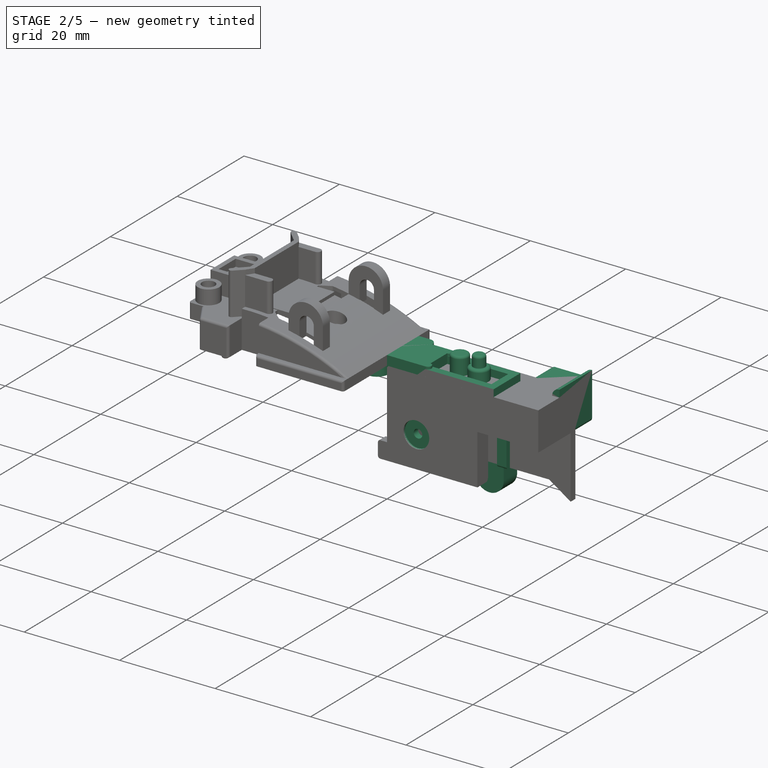
[diagram: stage 2 of 5 — iso view after this stage's code; geometry added in this stage tinted green]
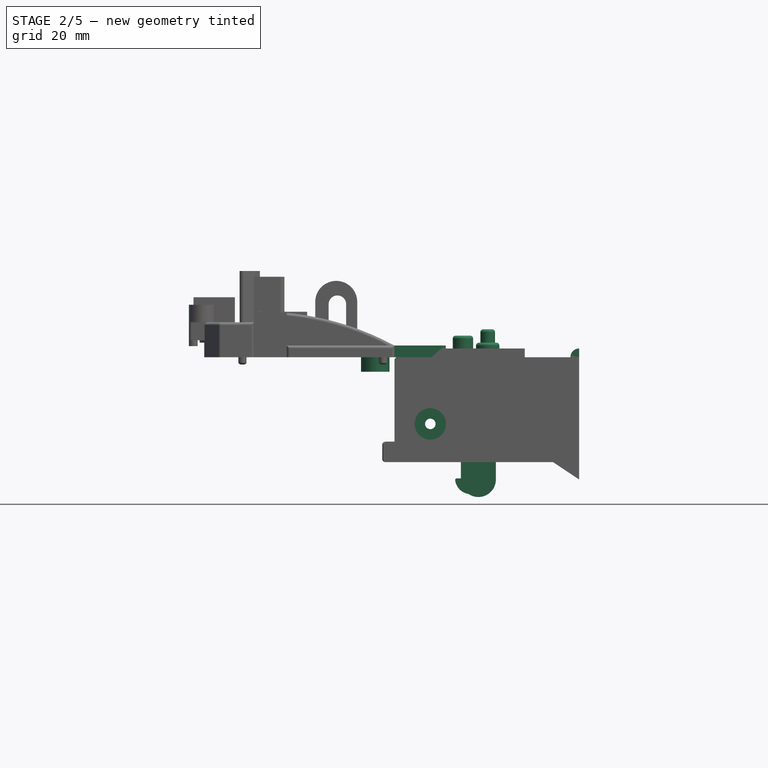
[diagram: stage 2 of 5 — front view after this stage's code; geometry added in this stage tinted green]
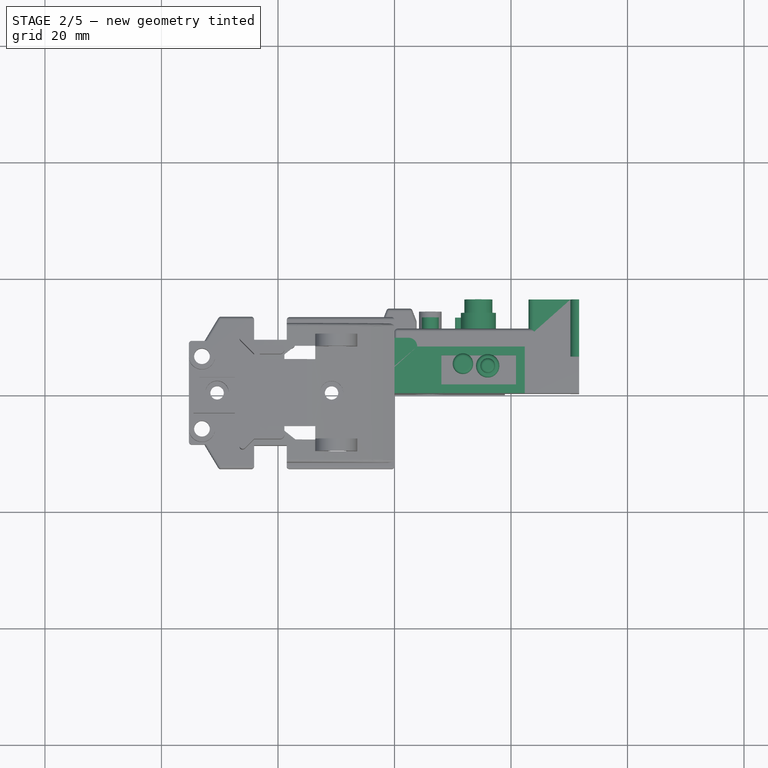
[diagram: stage 2 of 5 — top view after this stage's code; geometry added in this stage tinted green]
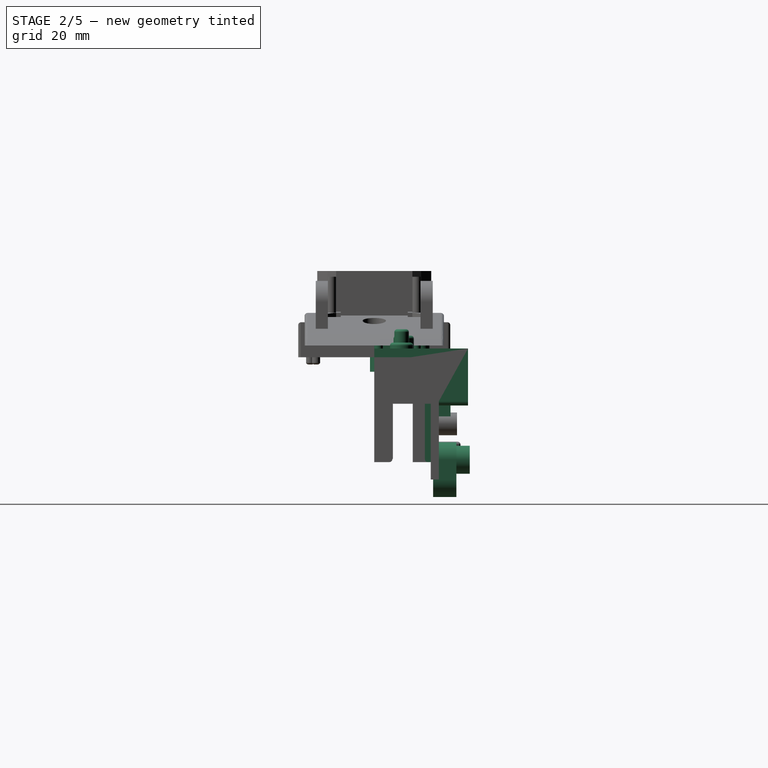
[diagram: stage 2 of 5 — right view after this stage's code; geometry added in this stage tinted green]
FEATURE [Sketcher::SketchObject] Sketch077
  ArcFitTolerance = 1e-06
  AttachmentSupport = -> [XY_Plane002]
  FullyConstrained = true
  MakeInternals = false
  MapMode = 5
  sketch-geometry (20):
    g0: ArcOfCircle CenterX=-3.3 CenterY=1.7225 CenterZ=0 NormalX=0 NormalY=0 NormalZ=1 AngleXU=0 Radius=3.7225 StartAngle=3.62266 EndAngle=5.80212
    g1: ArcOfCircle CenterX=-6.6 CenterY=2 CenterZ=0 NormalX=0 NormalY=0 NormalZ=1 AngleXU=0 Radius=2 StartAngle=3.14159 EndAngle=4.71239
    g2: LineSegment StartX=-8.6 StartY=2 StartZ=0 EndX=-8.6 EndY=6 EndZ=0
    g3: ArcOfCircle CenterX=-6.6 CenterY=6 CenterZ=0 NormalX=0 NormalY=0 NormalZ=1 AngleXU=0 Radius=2 StartAngle=1.5708 EndAngle=3.14159
    g4: LineSegment StartX=-6.6 StartY=8 StartZ=0 EndX=-4.5 EndY=8 EndZ=0
    g5: LineSegment StartX=-4.5 StartY=8 StartZ=0 EndX=-4.5 EndY=8 EndZ=0
    g6: ArcOfCircle CenterX=-3 CenterY=8 CenterZ=0 NormalX=0 NormalY=0 NormalZ=1 AngleXU=0 Radius=1.5 StartAngle=1.5708 EndAngle=3.14159
    g7: LineSegment StartX=-3 StartY=9.5 StartZ=0 EndX=2.4 EndY=9.5 EndZ=0
    g8: ArcOfCircle CenterX=2.4 CenterY=8 CenterZ=0 NormalX=0 NormalY=0 NormalZ=1 AngleXU=0 Radius=1.5 StartAngle=0 EndAngle=1.5708
    g9: LineSegment StartX=3.9 StartY=8 StartZ=0 EndX=8.05 EndY=8 EndZ=0
    g10: ArcOfCircle CenterX=8.05 CenterY=7.25 CenterZ=0 NormalX=0 NormalY=0 NormalZ=1 AngleXU=0 Radius=0.75 StartAngle=4.71239 EndAngle=7.85398
    g11: LineSegment StartX=8.05 StartY=6.5 StartZ=0 EndX=8.05 EndY=1.5 EndZ=0
    g12: ArcOfCircle CenterX=8.05 CenterY=0.75 CenterZ=0 NormalX=0 NormalY=0 NormalZ=1 AngleXU=0 Radius=0.75 StartAngle=4.71239 EndAngle=7.85398
    g13: LineSegment StartX=8.05 StartY=0 StartZ=0 EndX=0 EndY=0 EndZ=0
    g14: LineSegment [constr] StartX=0 StartY=0 StartZ=0 EndX=0 EndY=-2 EndZ=0
    g15: LineSegment [constr] StartX=0 StartY=-2 StartZ=0 EndX=-6.6 EndY=-2 EndZ=0
    g16: LineSegment [constr] StartX=-6.6 StartY=0 StartZ=0 EndX=-6.6 EndY=-2 EndZ=0
    g17: LineSegment [constr] StartX=8.05 StartY=0 StartZ=0 EndX=8.8 EndY=0 EndZ=0
    g18: LineSegment [constr] StartX=8.8 StartY=0 StartZ=0 EndX=8.8 EndY=1.5 EndZ=0
    g19: LineSegment [constr] StartX=8.05 StartY=1.5 StartZ=0 EndX=8.8 EndY=1.5 EndZ=0
  constraints (65):
    c: Coincident(g0,g-1)
    c: PointOnObject(g0,g-1)
    c: Coincident(g1,g0)
    c: Coincident(g2,g1)
    c: Vertical(g2)
    c: Coincident(g3,g2)
    c: Coincident(g4,g3)
    c: Horizontal(g4)
    c: Coincident(g5,g4)
    c: Vertical(g5)
    c: Coincident(g6,g5)
    c: Coincident(g7,g6)
    c: Horizontal(g7)
    c: Coincident(g8,g7)
    c: Coincident(g9,g8)
    c: Horizontal(g9)
    c: Coincident(g10,g9)
    c: Coincident(g11,g10)
    c: Vertical(g11)
    c: Coincident(g12,g11)
    c: PointOnObject(g12,g-1)
    c: Coincident(g13,g12)
    c: Coincident(g13,g0)
    c: Diameter(g10) = 1.5
    c: Diameter(g12) = 1.5
    c: DistanceX(g11,g12) = 0
    c: DistanceX(g12,g12) = 0
    c: DistanceX(g9,g10) = 0
    c: DistanceX(g10,g10) = 0
    c: DistanceY(g11,g10) = 5
    c: DistanceY(g0,g6) = 9.5
    c: DistanceX(g7,g8) = 0
    c: DistanceY(g8,g8) = 0
    c: DistanceY(g5,g6) = 0
    c: DistanceX(g6,g6) = 0
    c: DistanceX(g0,g0) = 6.6
    c: DistanceX(g3,g3) = 0
    c: DistanceX(g1,g0) = 0
    c: DistanceY(g1,g1) = 0
    c: DistanceY(g3,g2) = 0
    c: DistanceY(g0,g3) = 8
    c: Radius(g6) = 1.5
    c: Radius(g3) = 2
    c: Radius(g1) = 2
    c: Coincident(g14,g0)
    c: PointOnObject(g14,g-2)
    c: Coincident(g15,g14)
    c: Horizontal(g15)
    c: Tangent(g15,g0)
    c: Coincident(g16,g0)
    c: Coincident(g16,g15)
    c: Vertical(g16)
    c: DistanceY(g14,g14) = 2
    c: DistanceX(g4,g8) = 8.4
    c: DistanceX(g2,g4) = 4.1
    c: DistanceX(g1,g11) = 16.65
    c: Coincident(g17,g12)
    c: PointOnObject(g17,g-1)
    c: Coincident(g18,g17)
    c: Coincident(g19,g11)
    c: Coincident(g19,g18)
    c: Horizontal(g19)
    c: Tangent(g18,g12)
    c: Vertical(g18)
    c: DistanceX(g0,g17) = 8.8
FEATURE [PartDesign::Pad] Pad049
  Direction = (0,0,1)
  Length = 2
  Length2 = 10
  Profile = -> Sketch077
  ReferenceAxis = -> Sketch077 [N_Axis]
  Refine = true
  Suppressed = false
  Type = 0
FEATURE [Sketcher::SketchObject] Sketch078
  ArcFitTolerance = 1e-06
  AttachmentSupport = -> [Pad049]
  ExternalGeometry = -> [Pad049]
  FullyConstrained = true
  MakeInternals = false
  MapMode = 5
  Placement = pos=(0,0,0) rot=(1,0,0;3.14159rad)
  sketch-geometry (1):
    g0: Circle CenterX=-3.3 CenterY=-1.7225 CenterZ=0 NormalX=0 NormalY=0 NormalZ=1 AngleXU=0 Radius=2.45
  constraints (2):
    c: Coincident(g0,g-3)
    c: Diameter(g0) = 4.9
FEATURE [PartDesign::Pad] Pad050
  BaseFeature = -> Pad049
  Direction = (0,0,-1)
  Length = 2.5
  Length2 = 10
  Profile = -> Sketch078
  ReferenceAxis = -> Sketch078 [N_Axis]
  Refine = true
  Suppressed = false
  Type = 0
FEATURE [Sketcher::SketchObject] Sketch079
  ArcFitTolerance = 1e-06
  AttachmentSupport = -> [Pad050]
  ExternalGeometry = -> [Pad050]
  FullyConstrained = true
  MakeInternals = false
  MapMode = 5
  Placement = pos=(0,0,-2.5) rot=(1,0,0;3.14159rad)
  sketch-geometry (1):
    g0: Circle CenterX=-3.3 CenterY=-1.7225 CenterZ=0 NormalX=0 NormalY=0 NormalZ=1 AngleXU=0 Radius=0.75
  constraints (2):
    c: Coincident(g0,g-4)
    c: Diameter(g0) = 1.5
FEATURE [PartDesign::Pocket] Pocket038
  BaseFeature = -> Pad050
  Direction = (0,0,1)
  Length = 5
  Length2 = 5
  Profile = -> Sketch079
  ReferenceAxis = -> Sketch079 [N_Axis]
  Refine = true
  Suppressed = false
  Type = 0
FEATURE [Sketcher::SketchObject] Sketch080
  ArcFitTolerance = 1e-06
  AttachmentSupport = -> [Pocket038]
  ExternalGeometry = -> [Pocket038]
  FullyConstrained = true
  MakeInternals = false
  MapMode = 5
  Placement = pos=(0,0,0) rot=(1,0,0;3.14159rad)
  sketch-geometry (8):
    g0: LineSegment StartX=6.35 StartY=-8 StartZ=0 EndX=22.35 EndY=-8 EndZ=0
    g1: LineSegment StartX=22.35 StartY=-8 StartZ=0 EndX=22.35 EndY=0 EndZ=0
    g2: LineSegment StartX=22.35 StartY=0 StartZ=0 EndX=6.35 EndY=0 EndZ=0
    g3: LineSegment StartX=6.35 StartY=0 StartZ=0 EndX=6.35 EndY=-8 EndZ=0
    g4: LineSegment StartX=20.85 StartY=-6.5 StartZ=0 EndX=20.85 EndY=-1.5 EndZ=0
    g5: LineSegment StartX=20.85 StartY=-1.5 StartZ=0 EndX=8.05 EndY=-1.5 EndZ=0
    g6: LineSegment StartX=8.05 StartY=-1.5 StartZ=0 EndX=8.05 EndY=-6.5 EndZ=0
    g7: LineSegment StartX=8.05 StartY=-6.5 StartZ=0 EndX=20.85 EndY=-6.5 EndZ=0
  constraints (24):
    c: Coincident(g0,g1)
    c: Coincident(g1,g2)
    c: Coincident(g2,g3)
    c: Coincident(g3,g0)
    c: Horizontal(g0)
    c: Horizontal(g2)
    c: Vertical(g1)
    c: Vertical(g3)
    c: PointOnObject(g0,g-3)
    c: PointOnObject(g1,g-1)
    c: DistanceX(g0,g0) = 16
    c: DistanceX(g-5,g0) = 14.3
    c: Coincident(g4,g5)
    c: Coincident(g5,g6)
    c: Coincident(g6,g7)
    c: Coincident(g7,g4)
    c: Vertical(g4)
    c: Vertical(g6)
    c: Horizontal(g5)
    c: Horizontal(g7)
    c: DistanceX(g4,g0) = 1.5
    c: DistanceY(g4,g1) = 1.5
    c: DistanceY(g4,g4) = 5
    c: Coincident(g6,g-5)
FEATURE [PartDesign::Pad] Pad051
  BaseFeature = -> Pocket038
  Direction = (0,0,-1)
  Length = 5
  Length2 = 10
  Profile = -> Sketch080
  ReferenceAxis = -> Sketch080 [N_Axis]
  Refine = true
  Suppressed = false
  Type = 0
FEATURE [PartDesign::Pad] Pad052
  BaseFeature = -> Pad051
  Direction = (0,0,-1)
  Length = 1.5
  Length2 = 10
  Profile = -> Sketch080
  ReferenceAxis = -> Sketch080 [N_Axis]
  Refine = true
  Reversed = true
  Suppressed = false
  Type = 0
FEATURE [PartDesign::Body] Body010  label="Canopy"
  AllowCompound = false
  Group = -> [Binder002,Sketch278,Pad169,Sketch279,Pad170,Sketch280,AdditiveLoft,Sketch281,Pad171,Sketch282,Sketch283,AdditiveLoft001,Pad172,Sketch284,Pad173,Fillet010]
  Origin = -> Origin010
  Tip = -> Fillet010
FEATURE [Sketcher::SketchObject] Sketch285
  ArcFitTolerance = 1e-06
  AttachmentSupport = -> [XY_Plane011]
  FullyConstrained = true
  MakeInternals = false
  MapMode = 5
  sketch-geometry (4):
    g0: LineSegment StartX=0 StartY=0 StartZ=0 EndX=31.7 EndY=0 EndZ=0
    g1: LineSegment StartX=31.7 StartY=0 StartZ=0 EndX=31.7 EndY=11.1 EndZ=0
    g2: LineSegment StartX=31.7 StartY=11.1 StartZ=0 EndX=0 EndY=11.1 EndZ=0
    g3: LineSegment StartX=0 StartY=11.1 StartZ=0 EndX=0 EndY=0 EndZ=0
  constraints (11):
    c: Coincident(g0,g1)
    c: Coincident(g1,g2)
    c: Coincident(g2,g3)
    c: Coincident(g3,g0)
    c: Horizontal(g0)
    c: Horizontal(g2)
    c: Vertical(g1)
    c: Vertical(g3)
    c: Coincident(g0,g-1)
    c: DistanceY(g1,g1) = 11.1
    c: DistanceX(g2,g2) = 31.7
FEATURE [PartDesign::Pad] Pad174
  Direction = (0,0,1)
  Length = 1.5
  Length2 = 10
  Profile = -> Sketch285
  ReferenceAxis = -> Sketch285 [N_Axis]
  Refine = true
  Reversed = true
  Suppressed = false
  Type = 0
FEATURE [Sketcher::SketchObject] Sketch286
  ArcFitTolerance = 1e-06
  AttachmentSupport = -> [Pad174]
  ExternalGeometry = -> [Pad174]
  FullyConstrained = true
  MakeInternals = false
  MapMode = 5
  Placement = pos=(0,0,0) rot=(1,0,0;1.5708rad)
  sketch-geometry (10):
    g0: LineSegment StartX=0 StartY=-1.5 StartZ=0 EndX=0 EndY=-14.5 EndZ=0
    g1: LineSegment StartX=0 StartY=-14.5 StartZ=0 EndX=-2.1 EndY=-14.5 EndZ=0
    g2: LineSegment StartX=-2.1 StartY=-14.5 StartZ=0 EndX=-2.1 EndY=-18 EndZ=0
    g3: LineSegment StartX=-2.1 StartY=-18 StartZ=0 EndX=18.95 EndY=-18 EndZ=0
    g4: LineSegment StartX=18.95 StartY=-18 StartZ=0 EndX=18.95 EndY=-7.5 EndZ=0
    g5: LineSegment StartX=18.95 StartY=-7.5 StartZ=0 EndX=30.2 EndY=-7.5 EndZ=0
    g6: LineSegment StartX=30.2 StartY=-7.5 StartZ=0 EndX=30.2 EndY=-8 EndZ=0
    g7: LineSegment StartX=30.2 StartY=-8 StartZ=0 EndX=31.7 EndY=-8 EndZ=0
    g8: LineSegment StartX=31.7 StartY=-8 StartZ=0 EndX=31.7 EndY=-1.5 EndZ=0
    g9: LineSegment StartX=0 StartY=-1.5 StartZ=0 EndX=31.7 EndY=-1.5 EndZ=0
  constraints (28):
    c: Coincident(g0,g-3)
    c: PointOnObject(g0,g-2)
    c: Coincident(g1,g0)
    c: Horizontal(g1)
    c: Coincident(g2,g1)
    c: Coincident(g3,g2)
    c: Horizontal(g3)
    c: Coincident(g4,g3)
    c: Vertical(g4)
    c: Coincident(g5,g4)
    c: Horizontal(g5)
    c: Coincident(g6,g5)
    c: Vertical(g6)
    c: Coincident(g7,g6)
    c: Horizontal(g7)
    c: Coincident(g8,g7)
    c: Coincident(g8,g-3)
    c: Vertical(g8)
    c: DistanceY(g2,g0) = 16.5
    c: Vertical(g2)
    c: DistanceY(g2,g2) = 3.5
    c: DistanceY(g4,g4) = 10.5
    c: DistanceX(g4,g7) = 12.75
    c: DistanceY(g6,g6) = 0.5
    c: DistanceX(g7,g7) = 1.5
    c: Coincident(g9,g0)
    c: Coincident(g9,g8)
    c: DistanceX(g1,g1) = 2.1
FEATURE [PartDesign::Pad] Pad175
  BaseFeature = -> Pad174
  Direction = (0,-1,2e-16)
  Length = 1.75
  Length2 = 10
  Profile = -> Sketch286
  ReferenceAxis = -> Sketch286 [N_Axis]
  Refine = true
  Reversed = true
  Suppressed = false
  Type = 0
FEATURE [Sketcher::SketchObject] Sketch287
  ArcFitTolerance = 1e-06
  AttachmentSupport = -> [Pad175]
  ExternalGeometry = -> [Pad175]
  FullyConstrained = true
  MakeInternals = false
  MapMode = 5
  Placement = pos=(0,1.75,-4e-16) rot=(0,0.707107,0.707107;3.14159rad)
  sketch-geometry (4):
    g0: LineSegment StartX=-18.95 StartY=-18 StartZ=0 EndX=-16.95 EndY=-18 EndZ=0
    g1: LineSegment StartX=-16.95 StartY=-18 StartZ=0 EndX=-16.95 EndY=-1.5 EndZ=0
    g2: LineSegment StartX=-16.95 StartY=-1.5 StartZ=0 EndX=-18.95 EndY=-1.5 EndZ=0
    g3: LineSegment StartX=-18.95 StartY=-1.5 StartZ=0 EndX=-18.95 EndY=-18 EndZ=0
  constraints (11):
    c: Coincident(g0,g1)
    c: Coincident(g1,g2)
    c: Coincident(g2,g3)
    c: Coincident(g3,g0)
    c: Horizontal(g0)
    c: Horizontal(g2)
    c: Vertical(g1)
    c: Vertical(g3)
    c: Coincident(g0,g-4)
    c: PointOnObject(g1,g-5)
    c: DistanceX(g0,g0) = 2
FEATURE [PartDesign::Pad] Pad176
  BaseFeature = -> Pad175
  Direction = (0,1,-2e-16)
  Length = 1.25
  Length2 = 10
  Profile = -> Sketch287
  ReferenceAxis = -> Sketch287 [N_Axis]
  Refine = true
  Suppressed = false
  Type = 0
FEATURE [Sketcher::SketchObject] Sketch288
  ArcFitTolerance = 1e-06
  AttachmentSupport = -> [Pad176]
  ExternalGeometry = -> [Pad176]
  FullyConstrained = true
  MakeInternals = false
  MapMode = 5
  Placement = pos=(0,11.1,0) rot=(0,0.707107,0.707107;3.14159rad)
  sketch-geometry (5):
    g0: LineSegment StartX=-31.7 StartY=-1.5 StartZ=0 EndX=0 EndY=-1.5 EndZ=0
    g1: LineSegment StartX=0 StartY=-1.5 StartZ=0 EndX=0 EndY=-18 EndZ=0
    g2: LineSegment StartX=0 StartY=-18 StartZ=0 EndX=-27.2 EndY=-18 EndZ=0
    g3: LineSegment StartX=-27.2 StartY=-18 StartZ=0 EndX=-31.7 EndY=-21 EndZ=0
    g4: LineSegment StartX=-31.7 StartY=-1.5 StartZ=0 EndX=-31.7 EndY=-21 EndZ=0
  constraints (13):
    c: Coincident(g0,g-3)
    c: Coincident(g0,g-3)
    c: Coincident(g1,g0)
    c: PointOnObject(g1,g-4)
    c: Vertical(g1)
    c: Coincident(g2,g1)
    c: Horizontal(g2)
    c: Coincident(g3,g2)
    c: Coincident(g4,g0)
    c: Coincident(g4,g3)
    c: Vertical(g4)
    c: DistanceX(g3,g2) = 4.5
    c: DistanceY(g3,g2) = 3
FEATURE [PartDesign::Pad] Pad177
  BaseFeature = -> Pad176
  Direction = (0,1,-2e-16)
  Length = 1.4
  Length2 = 10
  Profile = -> Sketch288
  ReferenceAxis = -> Sketch288 [N_Axis]
  Refine = true
  Reversed = true
  Suppressed = false
  Type = 0
FEATURE [Sketcher::SketchObject] Sketch289
  ArcFitTolerance = 1e-06
  AttachmentSupport = -> [Pad177]
  ExternalGeometry = -> [Pad177]
  FullyConstrained = true
  MakeInternals = false
  MapMode = 5
  Placement = pos=(31.7,0,0) rot=(0.57735,0.57735,0.57735;2.0944rad)
  sketch-geometry (4):
    g0: LineSegment StartX=1.75 StartY=-1.5 StartZ=0 EndX=1.75 EndY=-8 EndZ=0
    g1: LineSegment StartX=1.75 StartY=-8 StartZ=0 EndX=9.7 EndY=-8 EndZ=0
    g2: LineSegment StartX=9.7 StartY=-8 StartZ=0 EndX=9.7 EndY=-1.5 EndZ=0
    g3: LineSegment StartX=9.7 StartY=-1.5 StartZ=0 EndX=1.75 EndY=-1.5 EndZ=0
  constraints (10):
    c: Coincident(g0,g1)
    c: Coincident(g1,g2)
    c: Coincident(g2,g3)
    c: Coincident(g3,g0)
    c: Vertical(g2)
    c: Horizontal(g1)
    c: Horizontal(g3)
    c: Coincident(g0,g-5)
    c: PointOnObject(g1,g-4)
    c: Coincident(g0,g-5)
FEATURE [PartDesign::Pad] Pad178
  BaseFeature = -> Pad177
  Direction = (1,0,0)
  Length = 1.5
  Length2 = 10
  Profile = -> Sketch289
  ReferenceAxis = -> Sketch289 [N_Axis]
  Refine = true
  Reversed = true
  Suppressed = false
  Type = 0
FEATURE [Sketcher::SketchObject] Sketch290
  ArcFitTolerance = 1e-06
  AttachmentSupport = -> [Pad178]
  ExternalGeometry = -> [Pad178]
  FullyConstrained = true
  MakeInternals = false
  MapMode = 5
  Placement = pos=(0,0,0) rot=(0.57735,-0.57735,-0.57735;2.0944rad)
  sketch-geometry (6):
    g0: LineSegment StartX=-9.7 StartY=-1.5 StartZ=0 EndX=-9.7 EndY=-18 EndZ=0
    g1: LineSegment StartX=-1.75 StartY=-7.5 StartZ=0 EndX=-1.75 EndY=-1.5 EndZ=0
    g2: LineSegment StartX=-1.75 StartY=-1.5 StartZ=0 EndX=-9.7 EndY=-1.5 EndZ=0
    g3: LineSegment StartX=-9.7 StartY=-18 StartZ=0 EndX=-6.6 EndY=-18 EndZ=0
    g4: LineSegment StartX=-6.6 StartY=-18 StartZ=0 EndX=-6.6 EndY=-7.5 EndZ=0
    g5: LineSegment StartX=-1.75 StartY=-7.5 StartZ=0 EndX=-6.6 EndY=-7.5 EndZ=0
  constraints (17):
    c: Coincident(g1,g2)
    c: Coincident(g2,g0)
    c: Vertical(g1)
    c: Horizontal(g2)
    c: Coincident(g0,g-5)
    c: PointOnObject(g1,g-3)
    c: Coincident(g0,g-5)
    c: Coincident(g3,g0)
    c: Horizontal(g3)
    c: Coincident(g4,g3)
    c: Vertical(g4)
    c: DistanceY(g1,g1) = 6
    c: Coincident(g5,g1)
    c: Coincident(g5,g4)
    c: Horizontal(g5)
    c: DistanceX(g3,g3) = 3.1
    c: DistanceX(g-6,g-6) = 1.4
FEATURE [PartDesign::Pad] Pad179
  BaseFeature = -> Pad178
  Direction = (-1,0,0)
  Length = 1.5
  Length2 = 10
  Profile = -> Sketch290
  ReferenceAxis = -> Sketch290 [N_Axis]
  Refine = true
  Reversed = true
  Suppressed = false
  Type = 0
FEATURE [Sketcher::SketchObject] Sketch291
  ArcFitTolerance = 1e-06
  AttachmentSupport = -> [Pad179]
  ExternalGeometry = -> [Pad179]
  FullyConstrained = true
  MakeInternals = false
  MapMode = 5
  Placement = pos=(0,0,0) rot=(0.57735,-0.57735,-0.57735;2.0944rad)
  sketch-geometry (4):
    g0: LineSegment StartX=-6.6 StartY=-18 StartZ=0 EndX=-6.6 EndY=-14.5 EndZ=0
    g1: LineSegment StartX=-6.6 StartY=-14.5 StartZ=0 EndX=-11.1 EndY=-14.5 EndZ=0
    g2: LineSegment StartX=-11.1 StartY=-14.5 StartZ=0 EndX=-11.1 EndY=-18 EndZ=0
    g3: LineSegment StartX=-11.1 StartY=-18 StartZ=0 EndX=-6.6 EndY=-18 EndZ=0
  constraints (12):
    c: Coincident(g0,g1)
    c: Coincident(g1,g2)
    c: Coincident(g2,g3)
    c: Coincident(g3,g0)
    c: Vertical(g0)
    c: Vertical(g2)
    c: Horizontal(g1)
    c: Horizontal(g3)
    c: Coincident(g0,g-4)
    c: PointOnObject(g1,g-5)
    c: DistanceY(g-6,g-6) = 3.5
    c: DistanceY(g0,g0) = 3.5
FEATURE [PartDesign::Pad] Pad180
  BaseFeature = -> Pad179
  Direction = (-1,0,0)
  Length = 2.1
  Length2 = 10
  Profile = -> Sketch291
  ReferenceAxis = -> Sketch291 [N_Axis]
  Refine = true
  Suppressed = false
  Type = 0
FEATURE [Sketcher::SketchObject] Sketch292
  ArcFitTolerance = 1e-06
  AttachmentSupport = -> [Pad180]
  ExternalGeometry = -> [Pad180]
  FullyConstrained = true
  MakeInternals = false
  MapMode = 5
  Placement = pos=(0,0,-18) rot=(1,0,0;3.14159rad)
  sketch-geometry (6):
    g0: LineSegment StartX=-1.25 StartY=-14.8 StartZ=0 EndX=2.95 EndY=-14.8 EndZ=0
    g1: LineSegment StartX=3.8 StartY=-11.1 StartZ=0 EndX=-2.1 EndY=-11.1 EndZ=0
    g2: LineSegment StartX=-2.1 StartY=-11.1 StartZ=0 EndX=-2.1 EndY=-12.6 EndZ=0
    g3: LineSegment StartX=-2.1 StartY=-12.6 StartZ=0 EndX=-1.25 EndY=-14.8 EndZ=0
    g4: LineSegment StartX=2.95 StartY=-14.8 StartZ=0 EndX=3.8 EndY=-12.6 EndZ=0
    g5: LineSegment StartX=3.8 StartY=-12.6 StartZ=0 EndX=3.8 EndY=-11.1 EndZ=0
  constraints (17):
    c: Horizontal(g0)
    c: Coincident(g2,g1)
    c: Vertical(g2)
    c: Coincident(g3,g2)
    c: Coincident(g3,g0)
    c: Coincident(g4,g0)
    c: Coincident(g5,g4)
    c: PointOnObject(g5,g-3)
    c: Vertical(g5)
    c: Coincident(g1,g5)
    c: DistanceX(g1,g1) = 5.9
    c: DistanceX(g0,g0) = 4.2
    c: DistanceY(g0,g1) = 3.7
    c: Coincident(g1,g-3)
    c: DistanceY(g2,g2) = 1.5
    c: DistanceY(g5,g5) = 1.5
    c: DistanceX(g2,g0) = 0.85
FEATURE [PartDesign::Pad] Pad181
  BaseFeature = -> Pad180
  Direction = (0,0,-1)
  Length = 3.5
  Length2 = 10
  Profile = -> Sketch292
  ReferenceAxis = -> Sketch292 [N_Axis]
  Refine = true
  Reversed = true
  Suppressed = false
  Type = 0
FEATURE [Sketcher::SketchObject] Sketch293
  ArcFitTolerance = 1e-06
  AttachmentSupport = -> [Pad181]
  ExternalGeometry = -> [Pad181]
  FullyConstrained = true
  MakeInternals = false
  MapMode = 5
  Placement = pos=(0,11.1,0) rot=(0,0.707107,0.707107;3.14159rad)
  sketch-geometry (1):
    g0: Circle CenterX=-6.15 CenterY=-11.45 CenterZ=0 NormalX=0 NormalY=0 NormalZ=1 AngleXU=0 Radius=1.95
  constraints (3):
    c: Diameter(g0) = 3.9
    c: DistanceX(g0,g-1) = 6.15
    c: DistanceY(g-4,g0) = 6.55
FEATURE [PartDesign::Pad] Pad182
  BaseFeature = -> Pad181
  Direction = (0,1,-2e-16)
  Length = 3.1
  Length2 = 10
  Profile = -> Sketch293
  ReferenceAxis = -> Sketch293 [N_Axis]
  Refine = true
  Suppressed = false
  Type = 0
FEATURE [Sketcher::SketchObject] Sketch294
  ArcFitTolerance = 1e-06
  AttachmentSupport = -> [Pad182]
  ExternalGeometry = -> [Pad182]
  FullyConstrained = true
  MakeInternals = false
  MapMode = 5
  Placement = pos=(4.3e-15,14.2,-7.5e-15) rot=(0,0.707107,0.707107;3.14159rad)
  sketch-geometry (1):
    g0: Circle CenterX=-6.15 CenterY=-11.45 CenterZ=0 NormalX=0 NormalY=0 NormalZ=1 AngleXU=0 Radius=0.9
  constraints (2):
    c: Coincident(g0,g-3)
    c: Diameter(g0) = 1.8
FEATURE [PartDesign::Pocket] Pocket114
  BaseFeature = -> Pad182
  Direction = (0,-1,2e-16)
  Length = 16
  Length2 = 5
  Profile = -> Sketch294
  ReferenceAxis = -> Sketch294 [N_Axis]
  Refine = true
  Suppressed = false
  Type = 0
FEATURE [Sketcher::SketchObject] Sketch295
  ArcFitTolerance = 1e-06
  AttachmentSupport = -> [Pocket114]
  ExternalGeometry = -> [Pocket114]
  FullyConstrained = true
  MakeInternals = false
  MapMode = 5
  Placement = pos=(0,11.1,0) rot=(0,0.707107,0.707107;3.14159rad)
  sketch-geometry (4):
    g0: LineSegment StartX=-7.6 StartY=-10.1462 StartZ=0 EndX=-7.6 EndY=-4.49617 EndZ=0
    g1: LineSegment StartX=-4.7 StartY=-10.1462 StartZ=0 EndX=-4.7 EndY=-4.49616 EndZ=0
    g2: ArcOfCircle CenterX=-6.15 CenterY=-4.49616 CenterZ=0 NormalX=0 NormalY=0 NormalZ=1 AngleXU=0 Radius=1.45 StartAngle=0 EndAngle=3.1416
    g3: ArcOfCircle CenterX=-6.15 CenterY=-11.45 CenterZ=0 NormalX=0 NormalY=0 NormalZ=1 AngleXU=0 Radius=1.95 StartAngle=0.732373 EndAngle=2.40922
  constraints (13):
    c: PointOnObject(g0,g-3)
    c: Vertical(g0)
    c: Vertical(g1)
    c: Coincident(g2,g0)
    c: Coincident(g2,g1)
    c: Diameter(g2) = 2.9
    c: Coincident(g3,g0)
    c: Coincident(g3,g1)
    c: Coincident(g3,g-3)
    c: DistanceX(g0,g3) = 1.45
    c: DistanceX(g3,g1) = 1.45
    c: DistanceY(g1,g2) = 0
    c: DistanceY(g1,g2) = 5.65
FEATURE [PartDesign::Pad] Pad183
  BaseFeature = -> Pocket114
  Direction = (0,1,-2e-16)
  Length = 2
  Length2 = 10
  Profile = -> Sketch295
  ReferenceAxis = -> Sketch295 [N_Axis]
  Refine = true
  Suppressed = false
  Type = 0
FEATURE [Sketcher::SketchObject] Sketch296
  ArcFitTolerance = 1e-06
  AttachmentSupport = -> [Pad183]
  ExternalGeometry = -> [Pad183]
  FullyConstrained = true
  MakeInternals = false
  MapMode = 5
  Placement = pos=(0,11.1,0) rot=(0,0.707107,0.707107;3.14159rad)
  sketch-geometry (8):
    g0: LineSegment StartX=-31.7 StartY=-7.55 StartZ=0 EndX=-31.7 EndY=1.5 EndZ=0
    g1: ArcOfCircle CenterX=-31.7 CenterY=0 CenterZ=0 NormalX=0 NormalY=0 NormalZ=1 AngleXU=0 Radius=1.5 StartAngle=0 EndAngle=1.5708
    g2: LineSegment StartX=-30.2 StartY=0 StartZ=0 EndX=-24 EndY=0 EndZ=0
    g3: ArcOfCircle CenterX=-24 CenterY=-1 CenterZ=0 NormalX=0 NormalY=0 NormalZ=1 AngleXU=0 Radius=1 StartAngle=4.71239 EndAngle=7.85398
    g4: LineSegment StartX=-24 StartY=-2 StartZ=0 EndX=-26.3 EndY=-2 EndZ=0
    g5: LineSegment StartX=-26.3 StartY=-2 StartZ=0 EndX=-30.2 EndY=-5.9 EndZ=0
    g6: LineSegment StartX=-30.2 StartY=-5.9 StartZ=0 EndX=-30.2 EndY=-7.55 EndZ=0
    g7: ArcOfCircle CenterX=-30.95 CenterY=-7.55 CenterZ=0 NormalX=0 NormalY=0 NormalZ=1 AngleXU=0 Radius=0.75 StartAngle=3.14159 EndAngle=6.28319
  constraints (26):
    c: PointOnObject(g0,g-3)
    c: Vertical(g0)
    c: Coincident(g1,g0)
    c: PointOnObject(g1,g-4)
    c: Coincident(g2,g1)
    c: PointOnObject(g2,g-4)
    c: Coincident(g3,g2)
    c: Coincident(g4,g3)
    c: Horizontal(g4)
    c: Coincident(g5,g4)
    c: Coincident(g6,g5)
    c: Coincident(g7,g0)
    c: Coincident(g7,g6)
    c: Diameter(g7) = 1.5
    c: Radius(g1) = 1.5
    c: Diameter(g3) = 2
    c: Angle(g5,g4) = 2.35619
    c: Vertical(g6)
    c: Coincident(g1,g-4)
    c: DistanceX(g0,g2) = 7.7
    c: DistanceX(g2,g3) = 0
    c: DistanceX(g3,g3) = 0
    c: DistanceY(g0,g0) = 9.05
    c: DistanceY(g6,g7) = 0
    c: DistanceY(g0,g7) = 0
    c: DistanceX(g4,g3) = 2.3
FEATURE [PartDesign::Pad] Pad184
  BaseFeature = -> Pad183
  Direction = (0,1,-2e-16)
  Length = 5
  Length2 = 10
  Profile = -> Sketch296
  ReferenceAxis = -> Sketch296 [N_Axis]
  Refine = true
  Suppressed = false
  Type = 0
FEATURE [PartDesign::Pad] Pad185
  BaseFeature = -> Pad184
  Direction = (0,-1,0)
  Length = 4.8
  Length2 = 10
  Profile = -> Pad184 [Face1]
  Refine = true
  Suppressed = false
  Type = 0
FEATURE [Sketcher::SketchObject] Sketch297
  ArcFitTolerance = 1e-06
  AttachmentSupport = -> [Pad185]
  ExternalGeometry = -> [Pad185]
  FullyConstrained = true
  MakeInternals = false
  MapMode = 5
  Placement = pos=(0,0,0) rot=(1,0,0;1.5708rad)
  sketch-geometry (1):
    g0: Circle CenterX=6.15 CenterY=-11.45 CenterZ=0 NormalX=0 NormalY=0 NormalZ=1 AngleXU=0 Radius=2.7
  constraints (2):
    c: Coincident(g0,g-3)
    c: Diameter(g0) = 5.4
FEATURE [PartDesign::Pocket] Pocket115
  BaseFeature = -> Pad185
  Direction = (0,1,-2e-16)
  Length = 0.5
  Length2 = 5
  Profile = -> Sketch297
  ReferenceAxis = -> Sketch297 [N_Axis]
  Refine = true
  Suppressed = false
  Type = 0
FEATURE [Sketcher::SketchObject] Sketch298
  ArcFitTolerance = 1e-06
  AttachmentOffset = pos=(0,0,-1) rot=(0,0,1;0rad)
  AttachmentSupport = -> [Pocket115]
  ExternalGeometry = -> [Pocket115]
  FullyConstrained = true
  MakeInternals = false
  MapMode = 5
  Placement = pos=(0,10.1,2e-16) rot=(0,0.707107,0.707107;3.14159rad)
  sketch-geometry (4):
    g0: ArcOfCircle CenterX=-14.4 CenterY=-17.6 CenterZ=0 NormalX=0 NormalY=0 NormalZ=1 AngleXU=0 Radius=3 StartAngle=5e-16 EndAngle=3.14159
    g1: ArcOfCircle CenterX=-14.4 CenterY=-21 CenterZ=0 NormalX=0 NormalY=0 NormalZ=1 AngleXU=0 Radius=3 StartAngle=3.14159 EndAngle=6.28319
    g2: LineSegment StartX=-11.4 StartY=-17.6 StartZ=0 EndX=-11.4 EndY=-21 EndZ=0
    g3: LineSegment StartX=-17.4 StartY=-17.6 StartZ=0 EndX=-17.4 EndY=-21 EndZ=0
  constraints (10):
    c: Tangent(g0,g2) = 1.5708
    c: Tangent(g0,g3) = -1.5708
    c: Tangent(g1,g2) = 1.5708
    c: Tangent(g1,g3) = -1.5708
    c: Equal(g0,g1)
    c: Vertical(g2)
    c: Diameter(g0) = 6
    c: DistanceY(g1,g0) = 3.4
    c: DistanceX(g-5,g1) = 17.3
    c: DistanceY(g1,g-3) = 3
FEATURE [PartDesign::Pad] Pad186
  BaseFeature = -> Pocket115
  Direction = (0,1,-2e-16)
  Length = 4
  Length2 = 10
  Profile = -> Sketch298
  ReferenceAxis = -> Sketch298 [N_Axis]
  Refine = true
  Suppressed = false
  Type = 0
FEATURE [Sketcher::SketchObject] Sketch299
  ArcFitTolerance = 1e-06
  AttachmentSupport = -> [Pad186]
  ExternalGeometry = -> [Pad186]
  FullyConstrained = true
  MakeInternals = false
  MapMode = 5
  Placement = pos=(0,14.1,-3.5e-15) rot=(0,0.707107,0.707107;3.14159rad)
  sketch-geometry (1):
    g0: Circle CenterX=-14.4 CenterY=-17.6 CenterZ=0 NormalX=0 NormalY=0 NormalZ=1 AngleXU=0 Radius=2.4
  constraints (2):
    c: Coincident(g0,g-3)
    c: Diameter(g0) = 4.8
FEATURE [PartDesign::Pad] Pad187
  BaseFeature = -> Pad186
  Direction = (0,1,-2e-16)
  Length = 2.3
  Length2 = 10
  Profile = -> Sketch299
  ReferenceAxis = -> Sketch299 [N_Axis]
  Refine = true
  Suppressed = false
  Type = 0
FEATURE [Sketcher::SketchObject] Sketch300
  ArcFitTolerance = 1e-06
  AttachmentSupport = -> [Pad187]
  ExternalGeometry = -> [Pad187]
  FullyConstrained = true
  MakeInternals = false
  MapMode = 5
  Placement = pos=(0,16.4,0) rot=(0,0.707107,0.707107;3.14159rad)
  sketch-geometry (1):
    g0: Circle CenterX=-14.4 CenterY=-17.6 CenterZ=0 NormalX=0 NormalY=0 NormalZ=1 AngleXU=0 Radius=0.9
  constraints (2):
    c: Coincident(g0,g-3)
    c: Diameter(g0) = 1.8
FEATURE [PartDesign::Pocket] Pocket116
  BaseFeature = -> Pad187
  Direction = (0,-1,2e-16)
  Length = 5.3
  Length2 = 5
  Profile = -> Sketch300
  ReferenceAxis = -> Sketch300 [N_Axis]
  Refine = true
  Suppressed = false
  Type = 0
FEATURE [Sketcher::SketchObject] Sketch301
  ArcFitTolerance = 1e-06
  AttachmentSupport = -> [Pocket116]
  ExternalGeometry = -> [Pocket116]
  FullyConstrained = true
  MakeInternals = false
  MapMode = 5
  Placement = pos=(0,14.1,-3.5e-15) rot=(0,0.707107,0.707107;3.14159rad)
  sketch-geometry (1):
    g0: Circle CenterX=-14.4 CenterY=-21.9 CenterZ=0 NormalX=0 NormalY=0 NormalZ=1 AngleXU=0 Radius=0.9
  constraints (3):
    c: Diameter(g0) = 1.8
    c: DistanceX(g-3,g0) = 0
    c: DistanceY(g0,g-3) = 0.9
FEATURE [PartDesign::Pocket] Pocket117
  BaseFeature = -> Pocket116
  Direction = (0,-1,2e-16)
  Length = 3
  Length2 = 5
  Profile = -> Sketch301
  ReferenceAxis = -> Sketch301 [N_Axis]
  Refine = true
  Suppressed = false
  Type = 0
FEATURE [Sketcher::SketchObject] Sketch302
  ArcFitTolerance = 1e-06
  AttachmentSupport = -> [Pocket117]
  ExternalGeometry = -> [Pocket117]
  FullyConstrained = true
  MakeInternals = false
  MapMode = 5
  Placement = pos=(0,0,-1e-16) rot=(0,0,1;0rad)
  sketch-geometry (1):
    g0: Circle CenterX=11.75 CenterY=5.05 CenterZ=0 NormalX=0 NormalY=0 NormalZ=1 AngleXU=0 Radius=1.75
  constraints (3):
    c: Diameter(g0) = 3.5
    c: DistanceY(g0,g-4) = 6.05
    c: DistanceX(g-4,g0) = 11.75
FEATURE [PartDesign::Pad] Pad188
  BaseFeature = -> Pocket117
  Direction = (0,0,1)
  Length = 3.7
  Length2 = 10
  Profile = -> Sketch302
  ReferenceAxis = -> Sketch302 [N_Axis]
  Refine = true
  Suppressed = false
  Type = 0
FEATURE [Sketcher::SketchObject] Sketch303
  ArcFitTolerance = 1e-06
  AttachmentOffset = pos=(0,0,-0.75) rot=(0,0,1;0rad)
  AttachmentSupport = -> [Pad188]
  ExternalGeometry = -> [Pad188]
  FullyConstrained = true
  MakeInternals = false
  MapMode = 5
  Placement = pos=(0,13.35,-3.4e-15) rot=(0,0.707107,0.707107;3.14159rad)
  sketch-geometry (4):
    g0: LineSegment StartX=-11.4 StartY=-20.8 StartZ=0 EndX=-10.4 EndY=-20.8 EndZ=0
    g1: ArcOfCircle CenterX=-13.1 CenterY=-20.8 CenterZ=0 NormalX=0 NormalY=0 NormalZ=1 AngleXU=0 Radius=2.7 StartAngle=4.86222 EndAngle=6.28319
    g2: LineSegment StartX=-11.4 StartY=-20.8 StartZ=0 EndX=-11.4 EndY=-21 EndZ=0
    g3: ArcOfCircle CenterX=-14.4 CenterY=-21 CenterZ=0 NormalX=0 NormalY=0 NormalZ=1 AngleXU=0 Radius=2.99999 StartAngle=5.31607 EndAngle=6.28319
  constraints (13):
    c: PointOnObject(g0,g-4)
    c: Horizontal(g0)
    c: Coincident(g1,g0)
    c: PointOnObject(g1,g-3)
    c: DistanceY(g0,g-5) = 2.8
    c: DistanceX(g0,g0) = 1
    c: Radius(g1) = 2.7
    c: DistanceY(g1,g0) = 0
    c: Coincident(g2,g0)
    c: Coincident(g2,g-4)
    c: Coincident(g3,g2)
    c: Coincident(g3,g1)
    c: Tangent(g3,g-3)
FEATURE [PartDesign::Pad] Pad189
  BaseFeature = -> Pad188
  Direction = (0,1,-2e-16)
  Length = 2.5
  Length2 = 10
  Profile = -> Sketch303
  ReferenceAxis = -> Sketch303 [N_Axis]
  Refine = true
  Reversed = true
  Suppressed = false
  Type = 0
FEATURE [PartDesign::Fillet] Fillet011
  Base = -> Pad189 [Edge2,Edge1,Edge16,Edge81,Edge148,Edge90,Edge89,Edge75,Edge150,Edge80,Edge79,Edge88,Edge149,Edge77,Edge78,Edge87,Edge86,Edge61,Edge74]
  BaseFeature = -> Pad189
  Radius = 0.5
  Refine = true
  SupportTransform = false
  Suppressed = false
  UseAllEdges = false
FEATURE [PartDesign::Fillet] Fillet012
  Base = -> Fillet011 [Edge209]
  BaseFeature = -> Fillet011
  Radius = 0.25
  Refine = true
  SupportTransform = false
  Suppressed = false
  UseAllEdges = false
FEATURE [Sketcher::SketchObject] Sketch304
  ArcFitTolerance = 1e-06
  AttachmentSupport = -> [Fillet012]
  ExternalGeometry = -> [Fillet012]
  FullyConstrained = true
  MakeInternals = false
  MapMode = 5
  Placement = pos=(0,9.7,-2.2e-15) rot=(1,0,0;1.5708rad)
  sketch-geometry (4):
    g0: LineSegment StartX=16.95 StartY=-1.5 StartZ=0 EndX=16.95 EndY=-6.5 EndZ=0
    g1: LineSegment StartX=16.95 StartY=-6.5 StartZ=0 EndX=18.95 EndY=-6.5 EndZ=0
    g2: LineSegment StartX=18.95 StartY=-6.5 StartZ=0 EndX=18.95 EndY=-1.5 EndZ=0
    g3: LineSegment StartX=18.95 StartY=-1.5 StartZ=0 EndX=16.95 EndY=-1.5 EndZ=0
  constraints (11):
    c: Coincident(g0,g1)
    c: Coincident(g1,g2)
    c: Coincident(g2,g3)
    c: Coincident(g3,g0)
    c: Vertical(g0)
    c: Vertical(g2)
    c: Horizontal(g1)
    c: Horizontal(g3)
    c: PointOnObject(g1,g-4)
    c: Coincident(g-3,g0)
    c: DistanceY(g2,g2) = 5
FEATURE [PartDesign::Pad] Pad190
  BaseFeature = -> Fillet012
  Direction = (0,-1,2e-16)
  Length = 1
  Length2 = 10
  Profile = -> Sketch304
  ReferenceAxis = -> Sketch304 [N_Axis]
  Refine = true
  Suppressed = false
  Type = 0
FEATURE [PartDesign::Pad] Pad204
  BaseFeature = -> Pad190
  Direction = (0,-2e-16,-1)
  Length = 11.5
  Length2 = 10
  Profile = -> Pad190 [Face51]
  Refine = true
  Suppressed = false
  Type = 0
FEATURE [Sketcher::SketchObject] Sketch318
  ArcFitTolerance = 1e-06
  AttachmentSupport = -> [Pad204]
  ExternalGeometry = -> [Pad204]
  FullyConstrained = true
  MakeInternals = false
  MapMode = 5
  Placement = pos=(0,0,-18) rot=(1,0,0;3.14159rad)
  sketch-geometry (4):
    g0: LineSegment StartX=16.95 StartY=-3 StartZ=0 EndX=16.95 EndY=-3.1 EndZ=0
    g1: LineSegment StartX=16.95 StartY=-3.1 StartZ=0 EndX=18.95 EndY=-3.1 EndZ=0
    g2: LineSegment StartX=18.95 StartY=-3.1 StartZ=0 EndX=18.95 EndY=-3 EndZ=0
    g3: LineSegment StartX=18.95 StartY=-3 StartZ=0 EndX=16.95 EndY=-3 EndZ=0
  constraints (10):
    c: Coincident(g0,g1)
    c: Coincident(g1,g2)
    c: Coincident(g2,g3)
    c: Coincident(g3,g0)
    c: Vertical(g0)
    c: Vertical(g2)
    c: Horizontal(g1)
    c: Coincident(g0,g-3)
    c: DistanceY(g0,g0) = 0.1
    c: Coincident(g2,g-3)
FEATURE [PartDesign::Pad] Pad205
  BaseFeature = -> Pad204
  Direction = (0,0,-1)
  Length = 16.5
  Length2 = 10
  Profile = -> Sketch318
  ReferenceAxis = -> Sketch318 [N_Axis]
  Refine = true
  Reversed = true
  Suppressed = false
  Type = 0
FEATURE [PartDesign::Fillet] Fillet013
  Base = -> Pad205 [Edge229,Edge21]
  BaseFeature = -> Pad205
  Radius = 0.5
  Refine = true
  SupportTransform = false
  Suppressed = false
  UseAllEdges = false
FEATURE [PartDesign::Pad] Pad206
  BaseFeature = -> Fillet013
  Direction = (0,1,-2e-16)
  Length = 0.1
  Length2 = 10
  Profile = -> Fillet013 [Face40]
  Refine = true
  Suppressed = false
  Type = 0
FEATURE [Sketcher::SketchObject] Sketch328
  ArcFitTolerance = 1e-06
  AttachmentSupport = -> [Pad215]
  ExternalGeometry = -> [Pad215]
  FullyConstrained = true
  MakeInternals = false
  MapMode = 5
  Placement = pos=(4.3e-15,14.2,-7.5e-15) rot=(0,0.707107,0.707107;3.14159rad)
  sketch-geometry (1):
    g0: Circle CenterX=-6.15 CenterY=-11.45 CenterZ=0 NormalX=0 NormalY=0 NormalZ=1 AngleXU=0 Radius=0.9
  constraints (2):
    c: Coincident(g0,g-3)
    c: Diameter(g0) = 1.8
FEATURE [PartDesign::Pocket] Pocket121
  BaseFeature = -> Pad215
  Direction = (0,-1,2e-16)
  Length = 16
  Length2 = 5
  Profile = -> Sketch328
  ReferenceAxis = -> Sketch328 [N_Axis]
  Refine = true
  Suppressed = false
  Type = 0
FEATURE [Sketcher::SketchObject] Sketch329
  ArcFitTolerance = 1e-06
  AttachmentSupport = -> [Pocket121]
  ExternalGeometry = -> [Pocket121]
  FullyConstrained = true
  MakeInternals = false
  MapMode = 5
  Placement = pos=(0,11.1,0) rot=(0,0.707107,0.707107;3.14159rad)
  sketch-geometry (4):
    g0: LineSegment StartX=-7.6 StartY=-10.1462 StartZ=0 EndX=-7.6 EndY=-4.49617 EndZ=0
    g1: LineSegment StartX=-4.7 StartY=-10.1462 StartZ=0 EndX=-4.7 EndY=-4.49616 EndZ=0
    g2: ArcOfCircle CenterX=-6.15 CenterY=-4.49616 CenterZ=0 NormalX=0 NormalY=0 NormalZ=1 AngleXU=0 Radius=1.45 StartAngle=0 EndAngle=3.1416
    g3: ArcOfCircle CenterX=-6.15 CenterY=-11.45 CenterZ=0 NormalX=0 NormalY=0 NormalZ=1 AngleXU=0 Radius=1.95 StartAngle=0.732373 EndAngle=2.40922
  constraints (13):
    c: PointOnObject(g0,g-3)
    c: Vertical(g0)
    c: Vertical(g1)
    c: Coincident(g2,g0)
    c: Coincident(g2,g1)
    c: Diameter(g2) = 2.9
    c: Coincident(g3,g0)
    c: Coincident(g3,g1)
    c: Coincident(g3,g-3)
    c: DistanceX(g0,g3) = 1.45
    c: DistanceX(g3,g1) = 1.45
    c: DistanceY(g1,g2) = 0
    c: DistanceY(g1,g2) = 5.65
FEATURE [PartDesign::Pad] Pad216
  BaseFeature = -> Pocket121
  Direction = (0,1,-2e-16)
  Length = 2
  Length2 = 10
  Profile = -> Sketch329
  ReferenceAxis = -> Sketch329 [N_Axis]
  Refine = true
  Suppressed = false
  Type = 0
FEATURE [Sketcher::SketchObject] Sketch330
  ArcFitTolerance = 1e-06
  AttachmentSupport = -> [Pad216]
  ExternalGeometry = -> [Pad216]
  FullyConstrained = true
  MakeInternals = false
  MapMode = 5
  Placement = pos=(0,11.1,0) rot=(0,0.707107,0.707107;3.14159rad)
  sketch-geometry (8):
    g0: LineSegment StartX=-31.7 StartY=-7.55 StartZ=0 EndX=-31.7 EndY=1.5 EndZ=0
    g1: ArcOfCircle CenterX=-31.7 CenterY=0 CenterZ=0 NormalX=0 NormalY=0 NormalZ=1 AngleXU=0 Radius=1.5 StartAngle=0 EndAngle=1.5708
    g2: LineSegment StartX=-30.2 StartY=0 StartZ=0 EndX=-24 EndY=0 EndZ=0
    g3: ArcOfCircle CenterX=-24 CenterY=-1 CenterZ=0 NormalX=0 NormalY=0 NormalZ=1 AngleXU=0 Radius=1 StartAngle=4.71239 EndAngle=7.85398
    g4: LineSegment StartX=-24 StartY=-2 StartZ=0 EndX=-26.3 EndY=-2 EndZ=0
    g5: LineSegment StartX=-26.3 StartY=-2 StartZ=0 EndX=-30.2 EndY=-5.9 EndZ=0
    g6: LineSegment StartX=-30.2 StartY=-5.9 StartZ=0 EndX=-30.2 EndY=-7.55 EndZ=0
    g7: ArcOfCircle CenterX=-30.95 CenterY=-7.55 CenterZ=0 NormalX=0 NormalY=0 NormalZ=1 AngleXU=0 Radius=0.75 StartAngle=3.14159 EndAngle=6.28319
  constraints (26):
    c: PointOnObject(g0,g-3)
    c: Vertical(g0)
    c: Coincident(g1,g0)
    c: PointOnObject(g1,g-4)
    c: Coincident(g2,g1)
    c: PointOnObject(g2,g-4)
    c: Coincident(g3,g2)
    c: Coincident(g4,g3)
    c: Horizontal(g4)
    c: Coincident(g5,g4)
    c: Coincident(g6,g5)
    c: Coincident(g7,g0)
    c: Coincident(g7,g6)
    c: Diameter(g7) = 1.5
    c: Radius(g1) = 1.5
    c: Diameter(g3) = 2
    c: Angle(g5,g4) = 2.35619
    c: Vertical(g6)
    c: Coincident(g1,g-4)
    c: DistanceX(g0,g2) = 7.7
    c: DistanceX(g2,g3) = 0
    c: DistanceX(g3,g3) = 0
    c: DistanceY(g0,g0) = 9.05
    c: DistanceY(g6,g7) = 0
    c: DistanceY(g0,g7) = 0
    c: DistanceX(g4,g3) = 2.3
FEATURE [PartDesign::Pad] Pad217
  BaseFeature = -> Pad216
  Direction = (0,1,-2e-16)
  Length = 5
  Length2 = 10
  Profile = -> Sketch330
  ReferenceAxis = -> Sketch330 [N_Axis]
  Refine = true
  Suppressed = false
  Type = 0
FEATURE [PartDesign::Pad] Pad218
  BaseFeature = -> Pad217
  Direction = (0,-1,0)
  Length = 4.8
  Length2 = 10
  Profile = -> Pad217 [Face1]
  Refine = true
  Suppressed = false
  Type = 0
FEATURE [Sketcher::SketchObject] Sketch331
  ArcFitTolerance = 1e-06
  AttachmentSupport = -> [Pad218]
  ExternalGeometry = -> [Pad218]
  FullyConstrained = true
  MakeInternals = false
  MapMode = 5
  Placement = pos=(0,0,0) rot=(1,0,0;1.5708rad)
  sketch-geometry (1):
    g0: Circle CenterX=6.15 CenterY=-11.45 CenterZ=0 NormalX=0 NormalY=0 NormalZ=1 AngleXU=0 Radius=2.7
  constraints (2):
    c: Coincident(g0,g-3)
    c: Diameter(g0) = 5.4
FEATURE [PartDesign::Pocket] Pocket122
  BaseFeature = -> Pad218
  Direction = (0,1,-2e-16)
  Length = 0.5
  Length2 = 5
  Profile = -> Sketch331
  ReferenceAxis = -> Sketch331 [N_Axis]
  Refine = true
  Suppressed = false
  Type = 0
FEATURE [Sketcher::SketchObject] Sketch332
  ArcFitTolerance = 1e-06
  AttachmentOffset = pos=(0,0,-1) rot=(0,0,1;0rad)
  AttachmentSupport = -> [Pocket122]
  ExternalGeometry = -> [Pocket122]
  FullyConstrained = true
  MakeInternals = false
  MapMode = 5
  Placement = pos=(0,10.1,2e-16) rot=(0,0.707107,0.707107;3.14159rad)
  sketch-geometry (4):
    g0: ArcOfCircle CenterX=-14.4 CenterY=-17.6 CenterZ=0 NormalX=0 NormalY=0 NormalZ=1 AngleXU=0 Radius=3 StartAngle=5e-16 EndAngle=3.14159
    g1: ArcOfCircle CenterX=-14.4 CenterY=-21 CenterZ=0 NormalX=0 NormalY=0 NormalZ=1 AngleXU=0 Radius=3 StartAngle=3.14159 EndAngle=6.28319
    g2: LineSegment StartX=-11.4 StartY=-17.6 StartZ=0 EndX=-11.4 EndY=-21 EndZ=0
    g3: LineSegment StartX=-17.4 StartY=-17.6 StartZ=0 EndX=-17.4 EndY=-21 EndZ=0
  constraints (10):
    c: Tangent(g0,g2) = 1.5708
    c: Tangent(g0,g3) = -1.5708
    c: Tangent(g1,g2) = 1.5708
    c: Tangent(g1,g3) = -1.5708
    c: Equal(g0,g1)
    c: Vertical(g2)
    c: Diameter(g0) = 6
    c: DistanceY(g1,g0) = 3.4
    c: DistanceX(g-5,g1) = 17.3
    c: DistanceY(g1,g-3) = 3
FEATURE [PartDesign::Pad] Pad219
  BaseFeature = -> Pocket122
  Direction = (0,1,-2e-16)
  Length = 4
  Length2 = 10
  Profile = -> Sketch332
  ReferenceAxis = -> Sketch332 [N_Axis]
  Refine = true
  Suppressed = false
  Type = 0
FEATURE [Sketcher::SketchObject] Sketch333
  ArcFitTolerance = 1e-06
  AttachmentSupport = -> [Pad219]
  ExternalGeometry = -> [Pad219]
  FullyConstrained = true
  MakeInternals = false
  MapMode = 5
  Placement = pos=(0,14.1,-3.5e-15) rot=(0,0.707107,0.707107;3.14159rad)
  sketch-geometry (1):
    g0: Circle CenterX=-14.4 CenterY=-17.6 CenterZ=0 NormalX=0 NormalY=0 NormalZ=1 AngleXU=0 Radius=2.4
  constraints (2):
    c: Coincident(g0,g-3)
    c: Diameter(g0) = 4.8
FEATURE [PartDesign::Pad] Pad220
  BaseFeature = -> Pad219
  Direction = (0,1,-2e-16)
  Length = 2.3
  Length2 = 10
  Profile = -> Sketch333
  ReferenceAxis = -> Sketch333 [N_Axis]
  Refine = true
  Suppressed = false
  Type = 0
FEATURE [Sketcher::SketchObject] Sketch334
  ArcFitTolerance = 1e-06
  AttachmentSupport = -> [Pad220]
  ExternalGeometry = -> [Pad220]
  FullyConstrained = true
  MakeInternals = false
  MapMode = 5
  Placement = pos=(0,16.4,0) rot=(0,0.707107,0.707107;3.14159rad)
  sketch-geometry (1):
    g0: Circle CenterX=-14.4 CenterY=-17.6 CenterZ=0 NormalX=0 NormalY=0 NormalZ=1 AngleXU=0 Radius=0.9
  constraints (2):
    c: Coincident(g0,g-3)
    c: Diameter(g0) = 1.8
FEATURE [PartDesign::Pocket] Pocket123
  BaseFeature = -> Pad220
  Direction = (0,-1,2e-16)
  Length = 5.3
  Length2 = 5
  Profile = -> Sketch334
  ReferenceAxis = -> Sketch334 [N_Axis]
  Refine = true
  Suppressed = false
  Type = 0
FEATURE [Sketcher::SketchObject] Sketch335
  ArcFitTolerance = 1e-06
  AttachmentSupport = -> [Pocket123]
  ExternalGeometry = -> [Pocket123]
  FullyConstrained = true
  MakeInternals = false
  MapMode = 5
  Placement = pos=(0,14.1,-3.5e-15) rot=(0,0.707107,0.707107;3.14159rad)
  sketch-geometry (1):
    g0: Circle CenterX=-14.4 CenterY=-21.9 CenterZ=0 NormalX=0 NormalY=0 NormalZ=1 AngleXU=0 Radius=0.9
  constraints (3):
    c: Diameter(g0) = 1.8
    c: DistanceX(g-3,g0) = 0
    c: DistanceY(g0,g-3) = 0.9
FEATURE [PartDesign::Pocket] Pocket124
  BaseFeature = -> Pocket123
  Direction = (0,-1,2e-16)
  Length = 3
  Length2 = 5
  Profile = -> Sketch335
  ReferenceAxis = -> Sketch335 [N_Axis]
  Refine = true
  Suppressed = false
  Type = 0
FEATURE [Sketcher::SketchObject] Sketch336
  ArcFitTolerance = 1e-06
  AttachmentSupport = -> [Pocket124]
  ExternalGeometry = -> [Pocket124]
  FullyConstrained = true
  MakeInternals = false
  MapMode = 5
  Placement = pos=(0,0,-1e-16) rot=(0,0,1;0rad)
  sketch-geometry (1):
    g0: Circle CenterX=11.75 CenterY=5.05 CenterZ=0 NormalX=0 NormalY=0 NormalZ=1 AngleXU=0 Radius=1.75
  constraints (3):
    c: Diameter(g0) = 3.5
    c: DistanceY(g0,g-4) = 6.05
    c: DistanceX(g-4,g0) = 11.75
FEATURE [PartDesign::Pad] Pad221
  BaseFeature = -> Pocket124
  Direction = (0,0,1)
  Length = 3.7
  Length2 = 10
  Profile = -> Sketch336
  ReferenceAxis = -> Sketch336 [N_Axis]
  Refine = true
  Suppressed = false
  Type = 0
FEATURE [Sketcher::SketchObject] Sketch337
  ArcFitTolerance = 1e-06
  AttachmentOffset = pos=(0,0,-0.75) rot=(0,0,1;0rad)
  AttachmentSupport = -> [Pad221]
  ExternalGeometry = -> [Pad221]
  FullyConstrained = true
  MakeInternals = false
  MapMode = 5
  Placement = pos=(0,13.35,-3.4e-15) rot=(0,0.707107,0.707107;3.14159rad)
  sketch-geometry (4):
    g0: LineSegment StartX=-11.4 StartY=-20.8 StartZ=0 EndX=-10.4 EndY=-20.8 EndZ=0
    g1: ArcOfCircle CenterX=-13.1 CenterY=-20.8 CenterZ=0 NormalX=0 NormalY=0 NormalZ=1 AngleXU=0 Radius=2.7 StartAngle=4.86222 EndAngle=6.28319
    g2: LineSegment StartX=-11.4 StartY=-20.8 StartZ=0 EndX=-11.4 EndY=-21 EndZ=0
    g3: ArcOfCircle CenterX=-14.4 CenterY=-21 CenterZ=0 NormalX=0 NormalY=0 NormalZ=1 AngleXU=0 Radius=2.99999 StartAngle=5.31607 EndAngle=6.28319
  constraints (13):
    c: PointOnObject(g0,g-4)
    c: Horizontal(g0)
    c: Coincident(g1,g0)
    c: PointOnObject(g1,g-3)
    c: DistanceY(g0,g-5) = 2.8
    c: DistanceX(g0,g0) = 1
    c: Radius(g1) = 2.7
    c: DistanceY(g1,g0) = 0
    c: Coincident(g2,g0)
    c: Coincident(g2,g-4)
    c: Coincident(g3,g2)
    c: Coincident(g3,g1)
    c: Tangent(g3,g-3)
FEATURE [PartDesign::Pad] Pad222
  BaseFeature = -> Pad221
  Direction = (0,1,-2e-16)
  Length = 2.5
  Length2 = 10
  Profile = -> Sketch337
  ReferenceAxis = -> Sketch337 [N_Axis]
  Refine = true
  Reversed = true
  Suppressed = false
  Type = 0
FEATURE [PartDesign::Fillet] Fillet014
  Base = -> Pad222 [Edge2,Edge1,Edge16,Edge81,Edge148,Edge90,Edge89,Edge75,Edge150,Edge80,Edge79,Edge88,Edge149,Edge77,Edge78,Edge87,Edge86,Edge61,Edge74]
  BaseFeature = -> Pad222
  Radius = 0.5
  Refine = true
  SupportTransform = false
  Suppressed = false
  UseAllEdges = false
FEATURE [PartDesign::Fillet] Fillet015
  Base = -> Fillet014 [Edge209]
  BaseFeature = -> Fillet014
  Radius = 0.25
  Refine = true
  SupportTransform = false
  Suppressed = false
  UseAllEdges = false
FEATURE [Sketcher::SketchObject] Sketch338
  ArcFitTolerance = 1e-06
  AttachmentSupport = -> [Fillet015]
  ExternalGeometry = -> [Fillet015]
  FullyConstrained = true
  MakeInternals = false
  MapMode = 5
  Placement = pos=(0,9.7,-2.2e-15) rot=(1,0,0;1.5708rad)
  sketch-geometry (4):
    g0: LineSegment StartX=16.95 StartY=-1.5 StartZ=0 EndX=16.95 EndY=-6.5 EndZ=0
    g1: LineSegment StartX=16.95 StartY=-6.5 StartZ=0 EndX=18.95 EndY=-6.5 EndZ=0
    g2: LineSegment StartX=18.95 StartY=-6.5 StartZ=0 EndX=18.95 EndY=-1.5 EndZ=0
    g3: LineSegment StartX=18.95 StartY=-1.5 StartZ=0 EndX=16.95 EndY=-1.5 EndZ=0
  constraints (11):
    c: Coincident(g0,g1)
    c: Coincident(g1,g2)
    c: Coincident(g2,g3)
    c: Coincident(g3,g0)
    c: Vertical(g0)
    c: Vertical(g2)
    c: Horizontal(g1)
    c: Horizontal(g3)
    c: PointOnObject(g1,g-4)
    c: Coincident(g-3,g0)
    c: DistanceY(g2,g2) = 5
FEATURE [PartDesign::Pad] Pad223
  BaseFeature = -> Fillet015
  Direction = (0,-1,2e-16)
  Length = 1
  Length2 = 10
  Profile = -> Sketch338
  ReferenceAxis = -> Sketch338 [N_Axis]
  Refine = true
  Suppressed = false
  Type = 0
FEATURE [PartDesign::Pad] Pad224
  BaseFeature = -> Pad223
  Direction = (0,-2e-16,-1)
  Length = 11.5
  Length2 = 10
  Profile = -> Pad223 [Face51]
  Refine = true
  Suppressed = false
  Type = 0
FEATURE [Sketcher::SketchObject] Sketch339
  ArcFitTolerance = 1e-06
  AttachmentSupport = -> [Pad224]
  ExternalGeometry = -> [Pad224]
  FullyConstrained = true
  MakeInternals = false
  MapMode = 5
  Placement = pos=(0,0,-18) rot=(1,0,0;3.14159rad)
  sketch-geometry (4):
    g0: LineSegment StartX=16.95 StartY=-3 StartZ=0 EndX=16.95 EndY=-3.1 EndZ=0
    g1: LineSegment StartX=16.95 StartY=-3.1 StartZ=0 EndX=18.95 EndY=-3.1 EndZ=0
    g2: LineSegment StartX=18.95 StartY=-3.1 StartZ=0 EndX=18.95 EndY=-3 EndZ=0
    g3: LineSegment StartX=18.95 StartY=-3 StartZ=0 EndX=16.95 EndY=-3 EndZ=0
  constraints (10):
    c: Coincident(g0,g1)
    c: Coincident(g1,g2)
    c: Coincident(g2,g3)
    c: Coincident(g3,g0)
    c: Vertical(g0)
    c: Vertical(g2)
    c: Horizontal(g1)
    c: Coincident(g0,g-3)
    c: DistanceY(g0,g0) = 0.1
    c: Coincident(g2,g-3)
FEATURE [PartDesign::Pad] Pad225
  BaseFeature = -> Pad224
  Direction = (0,0,-1)
  Length = 16.5
  Length2 = 10
  Profile = -> Sketch339
  ReferenceAxis = -> Sketch339 [N_Axis]
  Refine = true
  Reversed = true
  Suppressed = false
  Type = 0
FEATURE [PartDesign::Fillet] Fillet016
  Base = -> Pad225 [Edge229,Edge21]
  BaseFeature = -> Pad225
  Radius = 0.5
  Refine = true
  SupportTransform = false
  Suppressed = false
  UseAllEdges = false
FEATURE [PartDesign::Pad] Pad226
  BaseFeature = -> Fillet016
  Direction = (0,1,-2e-16)
  Length = 0.1
  Length2 = 10
  Profile = -> Fillet016 [Face40]
  Refine = true
  Suppressed = false
  Type = 0
FEATURE [Sketcher::SketchObject] Sketch340
  ArcFitTolerance = 1e-06
  AttachmentSupport = -> [Pad226]
  ExternalGeometry = -> [Pad226]
  FullyConstrained = true
  MakeInternals = false
  MapMode = 5
  Placement = pos=(0,0,3.7) rot=(0,0,1;0rad)
  sketch-geometry (1):
    g0: Circle CenterX=11.75 CenterY=5.05 CenterZ=0 NormalX=0 NormalY=0 NormalZ=1 AngleXU=0 Radius=1.75
  constraints (2):
    c: Coincident(g0,g-3)
    c: Equal(g0,g-3)
FEATURE [PartDesign::Pocket] Pocket125
  BaseFeature = -> Pad226
  Direction = (0,0,-1)
  Length = 3.7
  Length2 = 5
  Profile = -> Sketch340
  ReferenceAxis = -> Sketch340 [N_Axis]
  Refine = true
  Suppressed = false
  Type = 0
FEATURE [Sketcher::SketchObject] Sketch341
  ArcFitTolerance = 1e-06
  AttachmentSupport = -> [Pocket125]
  ExternalGeometry = -> [Pocket125]
  FullyConstrained = true
  MakeInternals = false
  MapMode = 5
  Placement = pos=(0,0,-1e-16) rot=(0,0,1;0rad)
  sketch-geometry (1):
    g0: Circle CenterX=16 CenterY=4.7 CenterZ=0 NormalX=0 NormalY=0 NormalZ=1 AngleXU=0 Radius=2
  constraints (3):
    c: Diameter(g0) = 4
    c: DistanceY(g0,g-3) = 6.4
    c: DistanceX(g-4,g0) = 16
FEATURE [PartDesign::Pad] Pad227
  BaseFeature = -> Pocket125
  Direction = (0,0,1)
  Length = 2.5
  Length2 = 10
  Profile = -> Sketch341
  ReferenceAxis = -> Sketch341 [N_Axis]
  Refine = true
  Suppressed = false
  Type = 0
FEATURE [Sketcher::SketchObject] Sketch342
  ArcFitTolerance = 1e-06
  AttachmentSupport = -> [Pad227]
  ExternalGeometry = -> [Pad227]
  FullyConstrained = true
  MakeInternals = false
  MapMode = 5
  Placement = pos=(0,0,2.5) rot=(0,0,1;0rad)
  sketch-geometry (1):
    g0: Circle CenterX=16 CenterY=4.7 CenterZ=0 NormalX=0 NormalY=0 NormalZ=1 AngleXU=0 Radius=1.25
  constraints (2):
    c: Coincident(g0,g-3)
    c: Diameter(g0) = 2.5
FEATURE [PartDesign::Pad] Pad228
  BaseFeature = -> Pad227
  Direction = (0,0,1)
  Length = 2.3
  Length2 = 10
  Profile = -> Sketch342
  ReferenceAxis = -> Sketch342 [N_Axis]
  Refine = true
  Suppressed = false
  Type = 0
FEATURE [PartDesign::Fillet] Fillet017
  Base = -> Pad228 [Edge254,Edge245]
  BaseFeature = -> Pad228
  Radius = 0.5
  Refine = true
  SupportTransform = false
  Suppressed = false
  UseAllEdges = false
FEATURE [PartDesign::Body] Body019  label="Eyes"
  AllowCompound = false
  Group = -> [Binder007,Sketch349,Pad232,Sketch350,Pocket129]
  Origin = -> Origin020
  Tip = -> Pocket129
FEATURE [PartDesign::Pocket] Pocket130
  BaseFeature = -> Pad206
  Direction = (1,0,0)
  Length = 0.2
  Length2 = 5
  Profile = -> Pad206 [Face98]
  Refine = true
  Suppressed = false
  Type = 0
FEATURE [PartDesign::Fillet] Fillet018
  Base = -> Pocket130 [Edge229,Edge228]
  BaseFeature = -> Pocket130
  Radius = 0.5
  Refine = true
  SupportTransform = false
  Suppressed = false
  UseAllEdges = false
FEATURE [PartDesign::Pocket] Pocket131
  BaseFeature = -> Fillet017
  Direction = (1,0,0)
  Length = 0.2
  Length2 = 5
  Profile = -> Fillet017 [Face16]
  Refine = true
  Suppressed = false
  Type = 0
FEATURE [PartDesign::Fillet] Fillet019
  Base = -> Pocket131 [Edge63,Edge67]
  BaseFeature = -> Pocket131
  Radius = 0.5
  Refine = true
  SupportTransform = false
  Suppressed = false
  UseAllEdges = false
FEATURE [PartDesign::Pad] Pad233
  BaseFeature = -> Fillet018
  Direction = (0,1,0)
  Length = 0.1
  Length2 = 10
  Profile = -> Fillet018 [Face23]
  Refine = true
  Suppressed = false
  Type = 0
FEATURE [PartDesign::Chamfer] Chamfer002
  Angle = 45
  Base = -> Pad233 [Edge96]
  BaseFeature = -> Pad233
  ChamferType = 0
  FlipDirection = false
  Refine = true
  Size = 0.099
  Size2 = 1
  SupportTransform = false
  Suppressed = false
  UseAllEdges = false
FEATURE [PartDesign::Pad] Pad234
  BaseFeature = -> Fillet019
  Direction = (0,1,0)
  Length = 0.1
  Length2 = 10
  Profile = -> Fillet019 [Face19]
  Refine = true
  Suppressed = false
  Type = 0
FEATURE [PartDesign::Chamfer] Chamfer003
  Angle = 45
  Base = -> Pad234 [Edge142]
  BaseFeature = -> Pad234
  ChamferType = 0
  FlipDirection = false
  Refine = true
  Size = 0.099
  Size2 = 1
  SupportTransform = false
  Suppressed = false
  UseAllEdges = false
FEATURE [PartDesign::Body] Body002  label="Right_Arm"
  AllowCompound = false
  Group = -> [Sketch077,Pad049,Sketch078,Pad050,Sketch079,Pocket038,Sketch080,Pad051,Pad052,Sketch081,Pad053,Chamfer,Sketch082,Pocket039,Sketch083,Pocket040,Sketch084,Pocket041,Sketch085,Pocket042,Sketch086,Pocket043,Sketch087,Pocket044,Sketch088,Pocket045,Sketch089,Pocket046,Fillet005,Fillet006,Fillet007,Sketch090,Pad054,Sketch091,Pocket047,Sketch092,Pad055,Sketch093,Pocket048,Sketch094,Pad056,Sketch095,+13 more]
  Origin = -> Origin002
  Placement = pos=(-11.4,-15.05,-7.9) rot=(0,-0.71,-0.71;3.14159rad)
  Tip = -> Pocket141
FEATURE [Sketcher::SketchObject] Sketch367
  ArcFitTolerance = 1e-06
  AttachmentSupport = -> [Chamfer002]
  ExternalGeometry = -> [Chamfer002]
  FullyConstrained = true
  MakeInternals = false
  MapMode = 5
  Placement = pos=(0,16.4,0) rot=(0,0.707107,0.707107;3.14159rad)
  sketch-geometry (2):
    g0: Circle CenterX=-14.4 CenterY=-17.6 CenterZ=0 NormalX=0 NormalY=0 NormalZ=1 AngleXU=0 Radius=0.9
    g1: Circle CenterX=-14.4 CenterY=-17.6 CenterZ=0 NormalX=0 NormalY=0 NormalZ=1 AngleXU=0 Radius=0.8
  constraints (4):
    c: Coincident(g0,g-3)
    c: Equal(g0,g-3)
    c: Coincident(g1,g0)
    c: Radius(g1) = 0.8
FEATURE [PartDesign::Pad] Pad245
  BaseFeature = -> Chamfer002
  Direction = (0,1,-2e-16)
  Length = 5.3
  Length2 = 10
  Profile = -> Sketch367
  ReferenceAxis = -> Sketch367 [N_Axis]
  Refine = true
  Reversed = true
  Suppressed = false
  Type = 0
FEATURE [PartDesign::Body] Body011  label="Left_Foot"
  AllowCompound = false
  Group = -> [Sketch285,Pad174,Sketch286,Pad175,Sketch287,Pad176,Sketch288,Pad177,Sketch289,Pad178,Sketch290,Pad179,Sketch291,Pad180,Sketch292,Pad181,Sketch293,Pad182,Sketch294,Pocket114,Sketch295,Pad183,Sketch296,Pad184,Pad185,Sketch297,Pocket115,Sketch298,Pad186,Sketch299,Pad187,Sketch300,Pocket116,Sketch301,Pocket117,Sketch302,Pad188,Sketch303,Pad189,Fillet011,Fillet012,Sketch304,Pad190,Pad204,Sketch318,+9 more]
  Origin = -> Origin011
  Placement = pos=(-67.75,1.4e-15,11.5) rot=(0,0,1;0rad)
  Tip = -> Pad245
FEATURE [Sketcher::SketchObject] Sketch368
  ArcFitTolerance = 1e-06
  AttachmentSupport = -> [Chamfer003]
  ExternalGeometry = -> [Chamfer003]
  FullyConstrained = true
  MakeInternals = false
  MapMode = 5
  Placement = pos=(0,16.4,0) rot=(0,0.707107,0.707107;3.14159rad)
  sketch-geometry (2):
    g0: Circle CenterX=-14.4 CenterY=-17.6 CenterZ=0 NormalX=0 NormalY=0 NormalZ=1 AngleXU=0 Radius=0.9
    g1: Circle CenterX=-14.4 CenterY=-17.6 CenterZ=0 NormalX=0 NormalY=0 NormalZ=1 AngleXU=0 Radius=0.8
  constraints (4):
    c: Coincident(g0,g-3)
    c: Equal(g0,g-3)
    c: Coincident(g1,g0)
    c: Radius(g1) = 0.8
FEATURE [PartDesign::Pad] Pad246
  BaseFeature = -> Chamfer003
  Direction = (0,1,-2e-16)
  Length = 5.3
  Length2 = 10
  Profile = -> Sketch368
  ReferenceAxis = -> Sketch368 [N_Axis]
  Refine = true
  Reversed = true
  Suppressed = false
  Type = 0
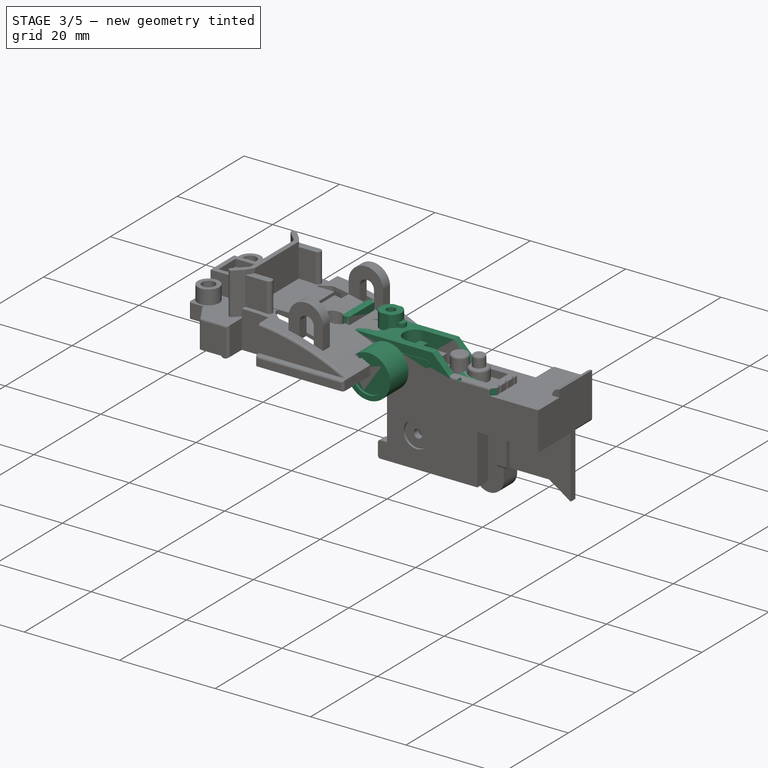
[diagram: stage 3 of 5 — iso view after this stage's code; geometry added in this stage tinted green]
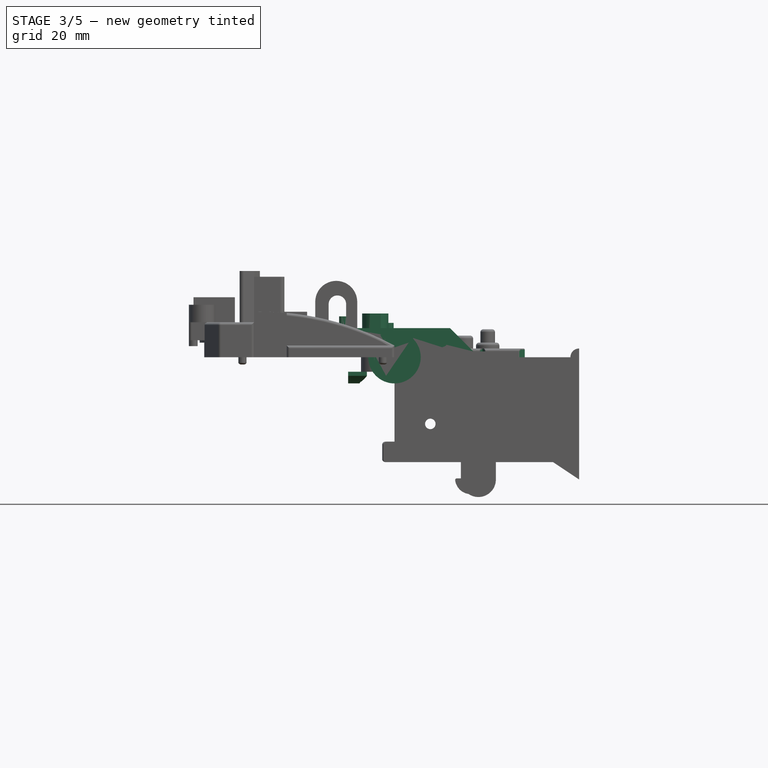
[diagram: stage 3 of 5 — front view after this stage's code; geometry added in this stage tinted green]
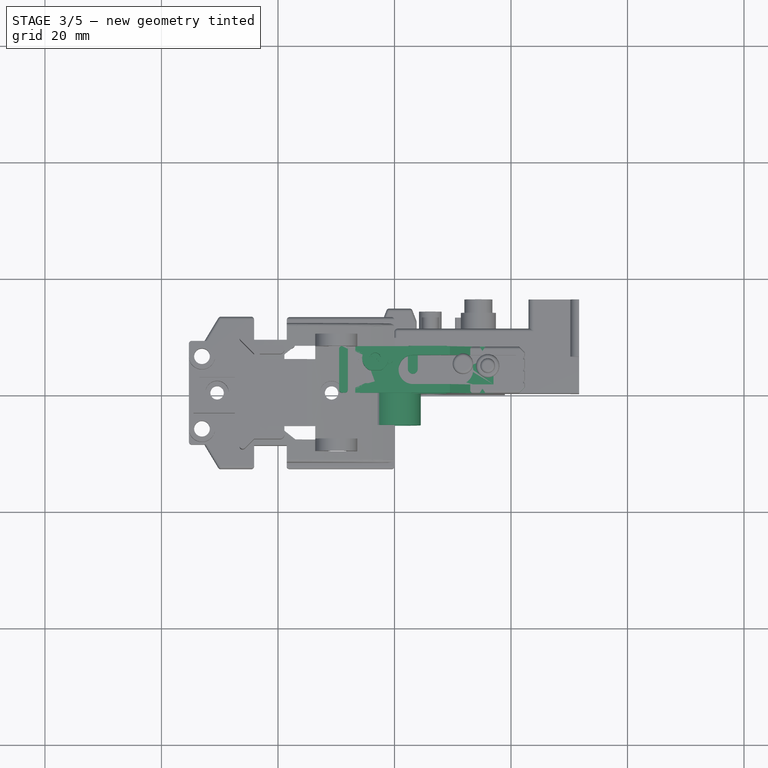
[diagram: stage 3 of 5 — top view after this stage's code; geometry added in this stage tinted green]
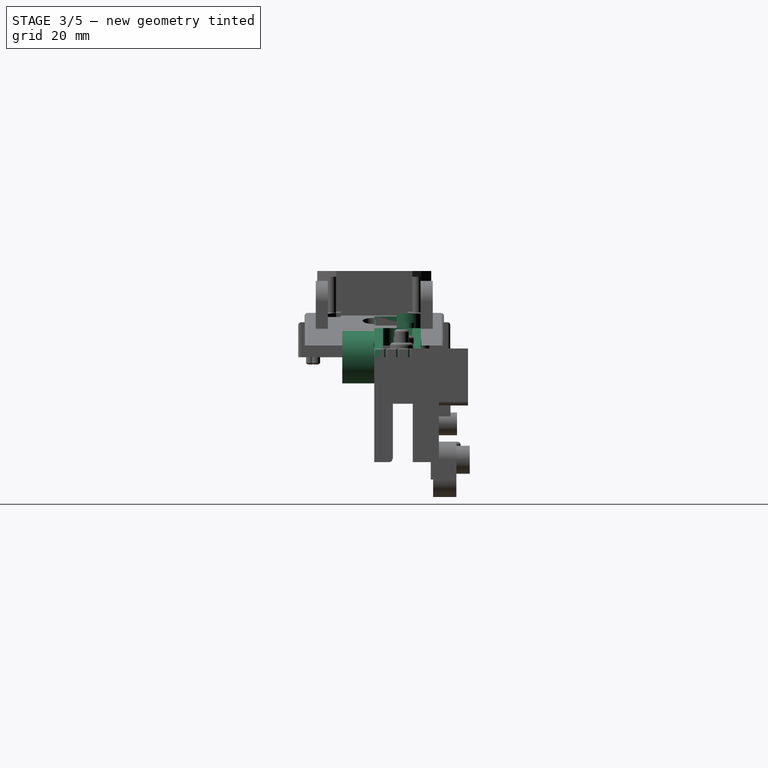
[diagram: stage 3 of 5 — right view after this stage's code; geometry added in this stage tinted green]
FEATURE [Sketcher::SketchObject] Sketch081
  ArcFitTolerance = 1e-06
  AttachmentSupport = -> [Pad052]
  ExternalGeometry = -> [Pad052]
  FullyConstrained = true
  MakeInternals = false
  MapMode = 5
  Placement = pos=(0,0,-5) rot=(1,0,0;3.14159rad)
  sketch-geometry (4):
    g0: LineSegment StartX=8.05 StartY=-1.5 StartZ=0 EndX=8.05 EndY=-6.5 EndZ=0
    g1: LineSegment StartX=8.05 StartY=-6.5 StartZ=0 EndX=20.85 EndY=-6.5 EndZ=0
    g2: LineSegment StartX=20.85 StartY=-6.5 StartZ=0 EndX=20.85 EndY=-1.5 EndZ=0
    g3: LineSegment StartX=20.85 StartY=-1.5 StartZ=0 EndX=8.05 EndY=-1.5 EndZ=0
  constraints (10):
    c: Coincident(g0,g1)
    c: Coincident(g1,g2)
    c: Coincident(g2,g3)
    c: Coincident(g3,g0)
    c: Vertical(g0)
    c: Vertical(g2)
    c: Horizontal(g1)
    c: Horizontal(g3)
    c: Coincident(g0,g-5)
    c: Coincident(g1,g-6)
FEATURE [PartDesign::Pad] Pad053
  BaseFeature = -> Pad052
  Direction = (0,0,-1)
  Length = 1.5
  Length2 = 10
  Profile = -> Sketch081
  ReferenceAxis = -> Sketch081 [N_Axis]
  Refine = true
  Reversed = true
  Suppressed = false
  Type = 0
FEATURE [PartDesign::Chamfer] Chamfer
  Angle = 45
  Base = -> Pad053 [Edge11,Edge10,Edge40,Edge38,Edge54,Edge37,Edge36,Edge9]
  BaseFeature = -> Pad053
  ChamferType = 0
  FlipDirection = false
  Refine = true
  Size = 1
  Size2 = 1
  SupportTransform = false
  Suppressed = false
  UseAllEdges = false
FEATURE [Sketcher::SketchObject] Sketch082
  ArcFitTolerance = 1e-06
  AttachmentSupport = -> [Chamfer]
  ExternalGeometry = -> [Chamfer]
  FullyConstrained = true
  MakeInternals = false
  MapMode = 5
  Placement = pos=(0,0,-5) rot=(1,0,0;3.14159rad)
  sketch-geometry (8):
    g0: LineSegment StartX=8.8 StartY=0 StartZ=0 EndX=8.8 EndY=-8 EndZ=0
    g1: LineSegment StartX=8.8 StartY=-8 StartZ=0 EndX=9.6 EndY=-8 EndZ=0
    g2: LineSegment StartX=9.6 StartY=-8 StartZ=0 EndX=9.6 EndY=0 EndZ=0
    g3: LineSegment StartX=9.6 StartY=0 StartZ=0 EndX=8.8 EndY=0 EndZ=0
    g4: LineSegment StartX=11.3 StartY=0 StartZ=0 EndX=11.3 EndY=-8 EndZ=0
    g5: LineSegment StartX=11.3 StartY=-8 StartZ=0 EndX=12.1 EndY=-8 EndZ=0
    g6: LineSegment StartX=12.1 StartY=-8 StartZ=0 EndX=12.1 EndY=0 EndZ=0
    g7: LineSegment StartX=12.1 StartY=0 StartZ=0 EndX=11.3 EndY=0 EndZ=0
  constraints (24):
    c: Coincident(g0,g1)
    c: Coincident(g1,g2)
    c: Coincident(g2,g3)
    c: Coincident(g3,g0)
    c: Vertical(g0)
    c: Vertical(g2)
    c: Horizontal(g1)
    c: Horizontal(g3)
    c: PointOnObject(g0,g-4)
    c: PointOnObject(g1,g-5)
    c: Coincident(g4,g5)
    c: Coincident(g5,g6)
    c: Coincident(g6,g7)
    c: Coincident(g7,g4)
    c: Vertical(g4)
    c: Vertical(g6)
    c: Horizontal(g5)
    c: Horizontal(g7)
    c: PointOnObject(g4,g-4)
    c: PointOnObject(g5,g-5)
    c: DistanceX(g-3,g0) = 2.45
    c: DistanceX(g1,g4) = 1.7
    c: DistanceX(g1,g1) = 0.8
    c: DistanceX(g5,g5) = 0.8
FEATURE [PartDesign::Pocket] Pocket039
  BaseFeature = -> Chamfer
  Direction = (0,0,1)
  Length = 0.75
  Length2 = 5
  Profile = -> Sketch082
  ReferenceAxis = -> Sketch082 [N_Axis]
  Refine = true
  Suppressed = false
  Type = 0
FEATURE [Sketcher::SketchObject] Sketch083
  ArcFitTolerance = 1e-06
  AttachmentSupport = -> [Pocket039]
  ExternalGeometry = -> [Pocket039]
  FullyConstrained = true
  MakeInternals = false
  MapMode = 5
  Placement = pos=(0,0,0) rot=(1,0,0;1.5708rad)
  sketch-geometry (8):
    g0: LineSegment StartX=9.6 StartY=-4.25 StartZ=0 EndX=9.6 EndY=1.5 EndZ=0
    g1: LineSegment StartX=9.6 StartY=1.5 StartZ=0 EndX=8.8 EndY=1.5 EndZ=0
    g2: LineSegment StartX=8.8 StartY=1.5 StartZ=0 EndX=8.8 EndY=-4.25 EndZ=0
    g3: LineSegment StartX=8.8 StartY=-4.25 StartZ=0 EndX=9.6 EndY=-4.25 EndZ=0
    g4: LineSegment StartX=12.1 StartY=-4.25 StartZ=0 EndX=12.1 EndY=1.5 EndZ=0
    g5: LineSegment StartX=12.1 StartY=1.5 StartZ=0 EndX=11.3 EndY=1.5 EndZ=0
    g6: LineSegment StartX=11.3 StartY=1.5 StartZ=0 EndX=11.3 EndY=-4.25 EndZ=0
    g7: LineSegment StartX=11.3 StartY=-4.25 StartZ=0 EndX=12.1 EndY=-4.25 EndZ=0
  constraints (20):
    c: Coincident(g0,g1)
    c: Coincident(g1,g2)
    c: Coincident(g2,g3)
    c: Coincident(g3,g0)
    c: Vertical(g0)
    c: Vertical(g2)
    c: Horizontal(g1)
    c: Coincident(g0,g-4)
    c: PointOnObject(g1,g-3)
    c: Coincident(g4,g5)
    c: Coincident(g5,g6)
    c: Coincident(g6,g7)
    c: Coincident(g7,g4)
    c: Vertical(g4)
    c: Vertical(g6)
    c: Horizontal(g5)
    c: Coincident(g4,g-5)
    c: PointOnObject(g5,g-3)
    c: Coincident(g2,g-4)
    c: Coincident(g6,g-5)
FEATURE [PartDesign::Pocket] Pocket040
  BaseFeature = -> Pocket039
  Direction = (0,1,-2e-16)
  Length = 0.75
  Length2 = 5
  Profile = -> Sketch083
  ReferenceAxis = -> Sketch083 [N_Axis]
  Refine = true
  Suppressed = false
  Type = 0
FEATURE [Sketcher::SketchObject] Sketch084
  ArcFitTolerance = 1e-06
  AttachmentSupport = -> [Pocket040]
  ExternalGeometry = -> [Pocket040]
  FullyConstrained = true
  MakeInternals = false
  MapMode = 5
  Placement = pos=(0,8,0) rot=(0,0.707107,0.707107;3.14159rad)
  sketch-geometry (8):
    g0: LineSegment StartX=-8.8 StartY=-4.25 StartZ=0 EndX=-8.8 EndY=1.5 EndZ=0
    g1: LineSegment StartX=-8.8 StartY=1.5 StartZ=0 EndX=-9.6 EndY=1.5 EndZ=0
    g2: LineSegment StartX=-9.6 StartY=1.5 StartZ=0 EndX=-9.6 EndY=-4.25 EndZ=0
    g3: LineSegment StartX=-9.6 StartY=-4.25 StartZ=0 EndX=-8.8 EndY=-4.25 EndZ=0
    g4: LineSegment StartX=-11.3 StartY=-4.25 StartZ=0 EndX=-11.3 EndY=1.5 EndZ=0
    g5: LineSegment StartX=-11.3 StartY=1.5 StartZ=0 EndX=-12.1 EndY=1.5 EndZ=0
    g6: LineSegment StartX=-12.1 StartY=1.5 StartZ=0 EndX=-12.1 EndY=-4.25 EndZ=0
    g7: LineSegment StartX=-12.1 StartY=-4.25 StartZ=0 EndX=-11.3 EndY=-4.25 EndZ=0
  constraints (20):
    c: Coincident(g0,g1)
    c: Coincident(g1,g2)
    c: Coincident(g2,g3)
    c: Coincident(g3,g0)
    c: Vertical(g0)
    c: Vertical(g2)
    c: Horizontal(g1)
    c: Coincident(g0,g-3)
    c: PointOnObject(g1,g-5)
    c: Coincident(g4,g5)
    c: Coincident(g5,g6)
    c: Coincident(g6,g7)
    c: Coincident(g7,g4)
    c: Vertical(g4)
    c: Vertical(g6)
    c: Horizontal(g5)
    c: Coincident(g4,g-4)
    c: PointOnObject(g5,g-5)
    c: Coincident(g6,g-4)
    c: Coincident(g2,g-3)
FEATURE [PartDesign::Pocket] Pocket041
  BaseFeature = -> Pocket040
  Direction = (0,-1,2e-16)
  Length = 0.75
  Length2 = 5
  Profile = -> Sketch084
  ReferenceAxis = -> Sketch084 [N_Axis]
  Refine = true
  Suppressed = false
  Type = 0
FEATURE [Sketcher::SketchObject] Sketch085
  ArcFitTolerance = 1e-06
  AttachmentSupport = -> [Pocket041]
  ExternalGeometry = -> [Pocket041]
  FullyConstrained = true
  MakeInternals = false
  MapMode = 5
  Placement = pos=(0,0,1.5) rot=(0,0,1;0rad)
  sketch-geometry (6):
    g0: ArcOfCircle CenterX=8.05 CenterY=7.25 CenterZ=0 NormalX=0 NormalY=0 NormalZ=1 AngleXU=0 Radius=0.75 StartAngle=5.35e-14 EndAngle=1.5708
    g1: LineSegment StartX=8.05 StartY=8 StartZ=0 EndX=8.8 EndY=8 EndZ=0
    g2: LineSegment StartX=8.8 StartY=8 StartZ=0 EndX=8.8 EndY=7.25 EndZ=0
    g3: ArcOfCircle CenterX=8.05001 CenterY=0.749994 CenterZ=0 NormalX=0 NormalY=0 NormalZ=1 AngleXU=0 Radius=0.749994 StartAngle=4.71238 EndAngle=6.28319
    g4: LineSegment StartX=8.05 StartY=0 StartZ=0 EndX=8.8 EndY=0 EndZ=0
    g5: LineSegment StartX=8.8 StartY=0 StartZ=0 EndX=8.8 EndY=0.75 EndZ=0
  constraints (13):
    c: Tangent(g0,g-5) = -1.5708
    c: Coincident(g0,g-5)
    c: Coincident(g1,g0)
    c: Coincident(g1,g-4)
    c: Coincident(g2,g1)
    c: Coincident(g2,g0)
    c: Coincident(g3,g-8)
    c: Coincident(g3,g-7)
    c: Tangent(g3,g-6)
    c: Coincident(g4,g-8)
    c: Coincident(g5,g4)
    c: Coincident(g5,g-7)
    c: Coincident(g4,g-8)
FEATURE [PartDesign::Pocket] Pocket042
  BaseFeature = -> Pocket041
  Direction = (0,0,-1)
  Length = 7
  Length2 = 5
  Profile = -> Sketch085
  ReferenceAxis = -> Sketch085 [N_Axis]
  Refine = true
  Suppressed = false
  Type = 0
FEATURE [Sketcher::SketchObject] Sketch086
  ArcFitTolerance = 1e-06
  AttachmentSupport = -> [Pocket042]
  ExternalGeometry = -> [Pocket042]
  FullyConstrained = true
  MakeInternals = false
  MapMode = 5
  Placement = pos=(0,0,1.5) rot=(0,0,1;0rad)
  sketch-geometry (6):
    g0: LineSegment StartX=14.6 StartY=0 StartZ=0 EndX=15.1 EndY=0.75 EndZ=0
    g1: LineSegment StartX=15.1 StartY=0.75 StartZ=0 EndX=15.6 EndY=0 EndZ=0
    g2: LineSegment StartX=15.6 StartY=0 StartZ=0 EndX=14.6 EndY=0 EndZ=0
    g3: LineSegment StartX=14.6 StartY=8 StartZ=0 EndX=15.1 EndY=7.25 EndZ=0
    g4: LineSegment StartX=15.1 StartY=7.25 StartZ=0 EndX=15.6 EndY=8 EndZ=0
    g5: LineSegment StartX=15.6 StartY=8 StartZ=0 EndX=14.6 EndY=8 EndZ=0
  constraints (19):
    c: PointOnObject(g0,g-3)
    c: Coincident(g1,g0)
    c: PointOnObject(g1,g-3)
    c: Coincident(g2,g1)
    c: Coincident(g2,g0)
    c: DistanceX(g-3,g0) = 3
    c: DistanceY(g-4,g-4) = 0.75
    c: DistanceY(g0,g0) = 0.75
    c: DistanceX(g2,g2) = 1
    c: DistanceX(g0,g1) = 0.5
    c: PointOnObject(g3,g-5)
    c: Coincident(g4,g3)
    c: PointOnObject(g4,g-5)
    c: Coincident(g5,g4)
    c: Coincident(g5,g3)
    c: DistanceX(g-6,g3) = 3
    c: DistanceX(g5,g5) = 1
    c: DistanceY(g3,g4) = 0.75
    c: DistanceX(g3,g3) = 0.5
FEATURE [PartDesign::Pocket] Pocket043
  BaseFeature = -> Pocket042
  Direction = (0,0,-1)
  Length = 10
  Length2 = 5
  Profile = -> Sketch086
  ReferenceAxis = -> Sketch086 [N_Axis]
  Refine = true
  Suppressed = false
  Type = 0
FEATURE [Sketcher::SketchObject] Sketch087
  ArcFitTolerance = 1e-06
  AttachmentSupport = -> [Pocket043]
  ExternalGeometry = -> [Pocket043]
  FullyConstrained = true
  MakeInternals = false
  MapMode = 5
  Placement = pos=(0,8,0) rot=(0,0.707107,0.707107;3.14159rad)
  sketch-geometry (3):
    g0: LineSegment StartX=-14.6 StartY=-5 StartZ=0 EndX=-15.1 EndY=-4.25 EndZ=0
    g1: LineSegment StartX=-15.1 StartY=-4.25 StartZ=0 EndX=-15.6 EndY=-5 EndZ=0
    g2: LineSegment StartX=-15.6 StartY=-5 StartZ=0 EndX=-14.6 EndY=-5 EndZ=0
  constraints (9):
    c: PointOnObject(g0,g-3)
    c: PointOnObject(g0,g-6)
    c: Coincident(g1,g0)
    c: PointOnObject(g1,g-3)
    c: Coincident(g2,g1)
    c: Coincident(g2,g0)
    c: DistanceX(g2,g2) = 1
    c: DistanceX(g1,g-5) = 0
    c: DistanceY(g0,g0) = 0.75
FEATURE [PartDesign::Pocket] Pocket044
  BaseFeature = -> Pocket043
  Direction = (0,-1,2e-16)
  Length = 8
  Length2 = 5
  Profile = -> Sketch087
  ReferenceAxis = -> Sketch087 [N_Axis]
  Refine = true
  Suppressed = false
  Type = 0
FEATURE [Sketcher::SketchObject] Sketch088
  ArcFitTolerance = 1e-06
  AttachmentSupport = -> [Pocket044]
  ExternalGeometry = -> [Pocket044]
  FullyConstrained = true
  MakeInternals = false
  MapMode = 5
  Placement = pos=(0,0,0) rot=(1,0,0;1.5708rad)
  sketch-geometry (4):
    g0: LineSegment StartX=19.85 StartY=-5 StartZ=0 EndX=16.95 EndY=-5 EndZ=0
    g1: LineSegment StartX=16.95 StartY=-5 StartZ=0 EndX=16.95 EndY=-2.05 EndZ=0
    g2: LineSegment StartX=19.85 StartY=-5 StartZ=0 EndX=19.85 EndY=-2.05 EndZ=0
    g3: ArcOfCircle CenterX=18.4 CenterY=-2.05 CenterZ=0 NormalX=0 NormalY=0 NormalZ=1 AngleXU=0 Radius=1.45 StartAngle=0 EndAngle=3.14159
  constraints (13):
    c: PointOnObject(g0,g-3)
    c: PointOnObject(g0,g-3)
    c: Coincident(g1,g0)
    c: Vertical(g1)
    c: Coincident(g2,g0)
    c: Vertical(g2)
    c: Coincident(g3,g2)
    c: Coincident(g3,g1)
    c: DistanceX(g0,g-4) = 2.5
    c: Radius(g3) = 1.45
    c: DistanceY(g0,g3) = 2.95
    c: DistanceY(g3,g1) = 0
    c: DistanceY(g3,g2) = 0
FEATURE [PartDesign::Pocket] Pocket045
  BaseFeature = -> Pocket044
  Direction = (0,1,-2e-16)
  Length = 1.5
  Length2 = 5
  Profile = -> Sketch088
  ReferenceAxis = -> Sketch088 [N_Axis]
  Refine = true
  Suppressed = false
  Type = 0
FEATURE [Sketcher::SketchObject] Sketch089
  ArcFitTolerance = 1e-06
  AttachmentSupport = -> [Pocket045]
  ExternalGeometry = -> [Pocket045]
  FullyConstrained = true
  MakeInternals = false
  MapMode = 5
  Placement = pos=(22.35,0,0) rot=(0.57735,0.57735,0.57735;2.0944rad)
  sketch-geometry (12):
    g0: LineSegment StartX=1.85 StartY=1.5 StartZ=0 EndX=1.85 EndY=-5 EndZ=0
    g1: LineSegment StartX=1.85 StartY=-5 StartZ=0 EndX=2.05 EndY=-5 EndZ=0
    g2: LineSegment StartX=2.05 StartY=-5 StartZ=0 EndX=2.05 EndY=1.5 EndZ=0
    g3: LineSegment StartX=2.05 StartY=1.5 StartZ=0 EndX=1.85 EndY=1.5 EndZ=0
    g4: LineSegment StartX=3.9 StartY=1.5 StartZ=0 EndX=3.9 EndY=-5 EndZ=0
    g5: LineSegment StartX=3.9 StartY=-5 StartZ=0 EndX=4.1 EndY=-5 EndZ=0
    g6: LineSegment StartX=4.1 StartY=-5 StartZ=0 EndX=4.1 EndY=1.5 EndZ=0
    g7: LineSegment StartX=4.1 StartY=1.5 StartZ=0 EndX=3.9 EndY=1.5 EndZ=0
    g8: LineSegment StartX=5.95 StartY=1.5 StartZ=0 EndX=5.95 EndY=-5 EndZ=0
    g9: LineSegment StartX=5.95 StartY=-5 StartZ=0 EndX=6.15 EndY=-5 EndZ=0
    g10: LineSegment StartX=6.15 StartY=-5 StartZ=0 EndX=6.15 EndY=1.5 EndZ=0
    g11: LineSegment StartX=6.15 StartY=1.5 StartZ=0 EndX=5.95 EndY=1.5 EndZ=0
  constraints (38):
    c: DistanceX(g-4,g-3) = 8
    c: Coincident(g0,g1)
    c: Coincident(g1,g2)
    c: Coincident(g2,g3)
    c: Coincident(g3,g0)
    c: Vertical(g0)
    c: Vertical(g2)
    c: Horizontal(g1)
    c: Horizontal(g3)
    c: PointOnObject(g0,g-5)
    c: PointOnObject(g1,g-6)
    c: Coincident(g4,g5)
    c: Coincident(g5,g6)
    c: Coincident(g6,g7)
    c: Coincident(g7,g4)
    c: Vertical(g4)
    c: Vertical(g6)
    c: Horizontal(g5)
    c: Horizontal(g7)
    c: PointOnObject(g4,g-5)
    c: PointOnObject(g5,g-6)
    c: Coincident(g8,g9)
    c: Coincident(g9,g10)
    c: Coincident(g10,g11)
    c: Coincident(g11,g8)
    c: Vertical(g8)
    c: Vertical(g10)
    c: Horizontal(g9)
    c: Horizontal(g11)
    c: PointOnObject(g8,g-5)
    c: PointOnObject(g9,g-6)
    c: DistanceX(g-4,g0) = 1.85
    c: DistanceX(g2,g4) = 1.85
    c: DistanceX(g3,g3) = 0.2
    c: DistanceX(g7,g7) = 0.2
    c: DistanceX(g11,g11) = 0.2
    c: DistanceX(g6,g8) = 1.85
    c: DistanceX(g10,g-3) = 1.85
FEATURE [PartDesign::Pocket] Pocket046
  BaseFeature = -> Pocket045
  Direction = (-1,0,0)
  Length = 0.3
  Length2 = 5
  Profile = -> Sketch089
  ReferenceAxis = -> Sketch089 [N_Axis]
  Refine = true
  Suppressed = false
  Type = 0
FEATURE [PartDesign::Fillet] Fillet005
  Base = -> Pocket046 [Edge32,Edge34,Edge88,Edge93,Edge36,Edge38,Edge96,Edge101,Edge40,Edge42,Edge104,Edge68,Edge109,Edge106,Edge102,Edge98,Edge94,Edge90]
  BaseFeature = -> Pocket046
  Radius = 0.2
  Refine = true
  SupportTransform = false
  Suppressed = false
  UseAllEdges = false
FEATURE [PartDesign::Fillet] Fillet006
  Base = -> Fillet005 [Edge19,Edge11,Edge5,Edge40,Edge46,Edge39]
  BaseFeature = -> Fillet005
  Radius = 0.5
  Refine = true
  SupportTransform = false
  Suppressed = false
  UseAllEdges = false
FEATURE [PartDesign::Fillet] Fillet007
  Base = -> Fillet006 [Edge1,Edge3,Edge15,Edge27,Edge39,Edge41]
  BaseFeature = -> Fillet006
  Radius = 0.19
  Refine = true
  SupportTransform = false
  Suppressed = false
  UseAllEdges = false
FEATURE [Sketcher::SketchObject] Sketch090
  ArcFitTolerance = 1e-06
  AttachmentSupport = -> [Fillet007]
  ExternalGeometry = -> [Fillet007]
  FullyConstrained = true
  MakeInternals = false
  MapMode = 5
  Placement = pos=(0,0,2) rot=(0,0,1;0rad)
  sketch-geometry (3):
    g0: Circle CenterX=-3.3 CenterY=5.9 CenterZ=0 NormalX=0 NormalY=0 NormalZ=1 AngleXU=0 Radius=2.2
    g1: LineSegment [constr] StartX=-5.5 StartY=8 StartZ=0 EndX=-5.5 EndY=4 EndZ=0
    g2: LineSegment [constr] StartX=-5.5 StartY=8.1 StartZ=0 EndX=0.5 EndY=8.1 EndZ=0
  constraints (11):
    c: Diameter(g0) = 4.4
    c: Vertical(g1)
    c: PointOnObject(g1,g-4)
    c: DistanceY(g1,g1) = 4
    c: Tangent(g1,g0)
    c: PointOnObject(g2,g1)
    c: Horizontal(g2)
    c: DistanceY(g2,g-5) = 1.4
    c: DistanceX(g2,g2) = 6
    c: Tangent(g0,g2)
    c: DistanceX(g0,g-7) = 0
FEATURE [PartDesign::Pad] Pad054
  BaseFeature = -> Fillet007
  Direction = (0,0,1)
  Length = 5.5
  Length2 = 10
  Profile = -> Sketch090
  ReferenceAxis = -> Sketch090 [N_Axis]
  Refine = true
  Suppressed = false
  Type = 0
FEATURE [Sketcher::SketchObject] Sketch091
  ArcFitTolerance = 1e-06
  AttachmentSupport = -> [Pad054]
  ExternalGeometry = -> [Pad054]
  FullyConstrained = true
  MakeInternals = false
  MapMode = 5
  Placement = pos=(0,0,7.5) rot=(0,0,1;0rad)
  sketch-geometry (1):
    g0: Circle CenterX=-3.3 CenterY=5.9 CenterZ=0 NormalX=0 NormalY=0 NormalZ=1 AngleXU=0 Radius=0.95
  constraints (2):
    c: Coincident(g0,g-3)
    c: Diameter(g0) = 1.9
FEATURE [PartDesign::Pocket] Pocket047
  BaseFeature = -> Pad054
  Direction = (0,0,-1)
  Length = 5.5
  Length2 = 5
  Profile = -> Sketch091
  ReferenceAxis = -> Sketch091 [N_Axis]
  Refine = true
  Suppressed = false
  Type = 0
FEATURE [Sketcher::SketchObject] Sketch092
  ArcFitTolerance = 1e-06
  AttachmentOffset = pos=(0,0,-1.6) rot=(0,0,1;0rad)
  AttachmentSupport = -> [Pocket047]
  ExternalGeometry = -> [Pocket047]
  FullyConstrained = true
  MakeInternals = false
  MapMode = 5
  Placement = pos=(0,0,5.9) rot=(0,0,1;0rad)
  sketch-geometry (4):
    g0: LineSegment StartX=-1.31569 StartY=6.85 StartZ=0 EndX=-1.1 EndY=6.85 EndZ=0
    g1: LineSegment StartX=-1.31569 StartY=4.95 StartZ=0 EndX=-1.1 EndY=4.95 EndZ=0
    g2: ArcOfCircle CenterX=-1.1 CenterY=5.9 CenterZ=0 NormalX=0 NormalY=0 NormalZ=1 AngleXU=0 Radius=0.95 StartAngle=4.71239 EndAngle=7.85398
    g3: ArcOfCircle CenterX=-3.3 CenterY=5.9 CenterZ=0 NormalX=0 NormalY=0 NormalZ=1 AngleXU=0 Radius=2.2 StartAngle=5.83668 EndAngle=6.72969
  constraints (13):
    c: PointOnObject(g0,g-4)
    c: Horizontal(g0)
    c: PointOnObject(g1,g-4)
    c: Horizontal(g1)
    c: Coincident(g2,g0)
    c: Coincident(g2,g1)
    c: DistanceX(g2,g2) = 0
    c: DistanceX(g1,g2) = 0
    c: Diameter(g2) = 1.9
    c: Coincident(g3,g0)
    c: Coincident(g3,g1)
    c: PointOnObject(g-3,g3)
    c: Coincident(g2,g-3)
FEATURE [PartDesign::Pad] Pad055
  BaseFeature = -> Pocket047
  Direction = (0,0,1)
  Length = 1.3
  Length2 = 10
  Profile = -> Sketch092
  ReferenceAxis = -> Sketch092 [N_Axis]
  Refine = true
  Reversed = true
  Suppressed = false
  Type = 0
FEATURE [Sketcher::SketchObject] Sketch093
  ArcFitTolerance = 1e-06
  AttachmentSupport = -> [Pad055]
  ExternalGeometry = -> [Pad055]
  FullyConstrained = true
  MakeInternals = false
  MapMode = 5
  Placement = pos=(0,0,2) rot=(0,0,1;0rad)
  sketch-geometry (1):
    g0: Circle CenterX=-0.6 CenterY=5.9 CenterZ=0 NormalX=0 NormalY=0 NormalZ=1 AngleXU=0 Radius=1.8
  constraints (4):
    c: Diameter(g0) = 3.6
    c: Diameter(g-6) = 4.4
    c: DistanceY(g0,g-4) = 0
    c: DistanceX(g-4,g0) = 0.5
FEATURE [PartDesign::Pocket] Pocket048
  BaseFeature = -> Pad055
  Direction = (0,0,-1)
  Length = 5
  Length2 = 5
  Profile = -> Sketch093
  ReferenceAxis = -> Sketch093 [N_Axis]
  Refine = true
  Suppressed = false
  Type = 0
FEATURE [Sketcher::SketchObject] Sketch094
  ArcFitTolerance = 1e-06
  AttachmentSupport = -> [Pocket048]
  ExternalGeometry = -> [Pocket048]
  FullyConstrained = true
  MakeInternals = false
  MapMode = 5
  Placement = pos=(0,0,2) rot=(0,0,1;0rad)
  sketch-geometry (1):
    g0: Circle CenterX=-3.3 CenterY=5.9 CenterZ=0 NormalX=0 NormalY=0 NormalZ=1 AngleXU=0 Radius=0.95
  constraints (2):
    c: Coincident(g0,g-3)
    c: Equal(g0,g-3)
FEATURE [PartDesign::Pad] Pad056
  BaseFeature = -> Pocket048
  Direction = (0,0,1)
  Length = 1.5
  Length2 = 10
  Profile = -> Sketch094
  ReferenceAxis = -> Sketch094 [N_Axis]
  Refine = true
  Suppressed = false
  Type = 0
FEATURE [Sketcher::SketchObject] Sketch095
  ArcFitTolerance = 1e-06
  AttachmentSupport = -> [Pad056]
  ExternalGeometry = -> [Pad056]
  FullyConstrained = true
  MakeInternals = false
  MapMode = 5
  Placement = pos=(0,0,2) rot=(1,0,0;3.14159rad)
  sketch-geometry (4):
    g0: LineSegment StartX=-1.10911 StartY=-6.1 StartZ=0 EndX=-1.05411 EndY=-6.1 EndZ=0
    g1: LineSegment StartX=-1.05411 StartY=-6.1 StartZ=0 EndX=-1.05411 EndY=-5.7 EndZ=0
    g2: LineSegment StartX=-1.05411 StartY=-5.7 StartZ=0 EndX=-1.10911 EndY=-5.7 EndZ=0
    g3: ArcOfCircle CenterX=-3.3 CenterY=-5.9 CenterZ=0 NormalX=0 NormalY=0 NormalZ=1 AngleXU=0 Radius=2.2 StartAngle=6.19215 EndAngle=6.37422
  constraints (13):
    c: PointOnObject(g0,g-4)
    c: Horizontal(g0)
    c: Coincident(g1,g0)
    c: Vertical(g1)
    c: Coincident(g2,g1)
    c: PointOnObject(g2,g-3)
    c: Horizontal(g2)
    c: DistanceY(g-4,g2) = 0.2
    c: DistanceY(g0,g-4) = 0.2
    c: DistanceX(g0,g0) = 0.055
    c: Coincident(g3,g2)
    c: Coincident(g3,g0)
    c: PointOnObject(g-4,g3)
FEATURE [PartDesign::Pad] Pad057
  BaseFeature = -> Pad056
  Direction = (0,0,-1)
  Length = 2.6
  Length2 = 10
  Profile = -> Sketch095
  ReferenceAxis = -> Sketch095 [N_Axis]
  Refine = true
  Reversed = true
  Suppressed = false
  Type = 0
FEATURE [Sketcher::SketchObject] Sketch096
  ArcFitTolerance = 1e-06
  AttachmentSupport = -> [Pad057]
  ExternalGeometry = -> [Pad057]
  FullyConstrained = true
  MakeInternals = false
  MapMode = 5
  Placement = pos=(0,0,2) rot=(0,0,1;0rad)
  sketch-geometry (4):
    g0: ArcOfCircle CenterX=3.15 CenterY=6.85 CenterZ=0 NormalX=0 NormalY=0 NormalZ=1 AngleXU=0 Radius=0.85 StartAngle=0 EndAngle=3.14159
    g1: ArcOfCircle CenterX=3.15 CenterY=4.15 CenterZ=0 NormalX=0 NormalY=0 NormalZ=1 AngleXU=0 Radius=0.85 StartAngle=3.14159 EndAngle=6.28319
    g2: LineSegment StartX=4 StartY=6.85 StartZ=0 EndX=4 EndY=4.15 EndZ=0
    g3: LineSegment StartX=2.3 StartY=6.85 StartZ=0 EndX=2.3 EndY=4.15 EndZ=0
  constraints (10):
    c: Tangent(g0,g2) = 1.5708
    c: Tangent(g0,g3) = -1.5708
    c: Tangent(g1,g2) = 1.5708
    c: Tangent(g1,g3) = -1.5708
    c: Equal(g0,g1)
    c: Vertical(g3)
    c: Diameter(g0) = 1.7
    c: DistanceY(g1,g0) = 2.7
    c: DistanceY(g0,g-3) = 2.65
    c: DistanceX(g-3,g0) = 0.75
FEATURE [PartDesign::Pad] Pad058
  BaseFeature = -> Pad057
  Direction = (0,0,1)
  Length = 0.9
  Length2 = 10
  Profile = -> Sketch096
  ReferenceAxis = -> Sketch096 [N_Axis]
  Refine = true
  Suppressed = false
  Type = 0
FEATURE [Sketcher::SketchObject] Sketch235
  ArcFitTolerance = 1e-06
  AttachmentSupport = -> [XZ_Plane007]
  FullyConstrained = true
  MakeInternals = false
  MapMode = 5
  Placement = pos=(0,0,0) rot=(1,0,0;1.5708rad)
  sketch-geometry (1):
    g0: Circle CenterX=0 CenterY=0 CenterZ=0 NormalX=0 NormalY=0 NormalZ=1 AngleXU=0 Radius=4.5
  constraints (2):
    c: Coincident(g0,g-1)
    c: Diameter(g0) = 9
FEATURE [PartDesign::Pad] Pad145
  Direction = (0,-1,2e-16)
  Length = 5.5
  Length2 = 10
  Placement = pos=(0,0,0) rot=(1,0,0;1.5708rad)
  Profile = -> Sketch235
  ReferenceAxis = -> Sketch235 [N_Axis]
  Refine = true
  Suppressed = false
  Type = 0
FEATURE [Sketcher::SketchObject] Sketch236
  ArcFitTolerance = 1e-06
  AttachmentSupport = -> [Pad145]
  FullyConstrained = true
  MakeInternals = false
  MapMode = 5
  Placement = pos=(0,-5.5,0) rot=(1,0,0;1.5708rad)
  sketch-geometry (1):
    g0: Circle CenterX=0 CenterY=0 CenterZ=0 NormalX=0 NormalY=0 NormalZ=1 AngleXU=0 Radius=3.5
  constraints (2):
    c: Coincident(g0,g-1)
    c: Diameter(g0) = 7
FEATURE [PartDesign::Pocket] Pocket097
  BaseFeature = -> Pad145
  Direction = (0,1,-2e-16)
  Length = 0.5
  Length2 = 5
  Placement = pos=(0,0,0) rot=(1,0,0;1.5708rad)
  Profile = -> Sketch236
  ReferenceAxis = -> Sketch236 [N_Axis]
  Refine = true
  Suppressed = false
  Type = 0
FEATURE [Sketcher::SketchObject] Sketch256
  ArcFitTolerance = 1e-06
  AttachmentSupport = -> [XY_Plane009]
  FullyConstrained = true
  MakeInternals = false
  MapMode = 5
  sketch-geometry (6):
    g0: LineSegment StartX=0 StartY=0 StartZ=0 EndX=17 EndY=0 EndZ=0
    g1: LineSegment StartX=0 StartY=8 StartZ=0 EndX=17 EndY=8 EndZ=0
    g2: ArcOfCircle CenterX=17 CenterY=7.25 CenterZ=0 NormalX=0 NormalY=0 NormalZ=1 AngleXU=0 Radius=0.75 StartAngle=4.71239 EndAngle=7.85398
    g3: ArcOfCircle CenterX=17 CenterY=0.75 CenterZ=0 NormalX=0 NormalY=0 NormalZ=1 AngleXU=0 Radius=0.75 StartAngle=4.71239 EndAngle=7.85398
    g4: LineSegment StartX=0 StartY=8 StartZ=0 EndX=0 EndY=0 EndZ=0
    g5: LineSegment StartX=17 StartY=6.5 StartZ=0 EndX=17 EndY=1.5 EndZ=0
  constraints (19):
    c: Coincident(g0,g-1)
    c: PointOnObject(g0,g-1)
    c: PointOnObject(g1,g-2)
    c: Horizontal(g1)
    c: Coincident(g2,g1)
    c: Coincident(g3,g0)
    c: Coincident(g4,g1)
    c: Coincident(g4,g0)
    c: Coincident(g5,g2)
    c: Coincident(g5,g3)
    c: Vertical(g5)
    c: DistanceY(g4,g4) = 8
    c: DistanceY(g5,g5) = 5
    c: Diameter(g2) = 1.5
    c: Diameter(g3) = 1.5
    c: DistanceX(g3,g0) = 0
    c: DistanceX(g3,g3) = 0
    c: DistanceX(g0,g0) = 17
    c: DistanceX(g1,g1) = 17
FEATURE [PartDesign::Pad] Pad154
  Direction = (0,0,1)
  Length = 1
  Length2 = 10
  Profile = -> Sketch256
  ReferenceAxis = -> Sketch256 [N_Axis]
  Refine = true
  Suppressed = false
  Type = 0
FEATURE [Sketcher::SketchObject] Sketch257
  ArcFitTolerance = 1e-06
  AttachmentSupport = -> [Pad154]
  ExternalGeometry = -> [Pad154]
  FullyConstrained = true
  MakeInternals = false
  MapMode = 5
  Placement = pos=(0,0,1) rot=(0,0,1;0rad)
  sketch-geometry (4):
    g0: ArcOfCircle CenterX=3.2 CenterY=4 CenterZ=0 NormalX=0 NormalY=0 NormalZ=1 AngleXU=0 Radius=2.5 StartAngle=1.5708 EndAngle=4.71239
    g1: ArcOfCircle CenterX=11 CenterY=4 CenterZ=0 NormalX=0 NormalY=0 NormalZ=1 AngleXU=0 Radius=2.5 StartAngle=4.71239 EndAngle=7.85398
    g2: LineSegment StartX=3.2 StartY=6.5 StartZ=0 EndX=11 EndY=6.5 EndZ=0
    g3: LineSegment StartX=3.2 StartY=1.5 StartZ=0 EndX=11 EndY=1.5 EndZ=0
  constraints (11):
    c: Tangent(g0,g2) = 1.5708
    c: Tangent(g0,g3) = -1.5708
    c: Tangent(g1,g2) = 1.5708
    c: Tangent(g1,g3) = -1.5708
    c: Equal(g0,g1)
    c: Horizontal(g2)
    c: Diameter(g0) = 5
    c: DistanceX(g1,g-3) = 6
    c: DistanceX(g0,g1) = 7.8
    c: DistanceY(g-1,g-4) = 8
    c: DistanceY(g0,g-4) = 4
FEATURE [PartDesign::Pocket] Pocket106
  BaseFeature = -> Pad154
  Direction = (0,0,-1)
  Length = 5
  Length2 = 5
  Profile = -> Sketch257
  ReferenceAxis = -> Sketch257 [N_Axis]
  Refine = true
  Suppressed = false
  Type = 0
FEATURE [Sketcher::SketchObject] Sketch258
  ArcFitTolerance = 1e-06
  AttachmentSupport = -> [Pocket106]
  ExternalGeometry = -> [Pocket106]
  FullyConstrained = true
  MakeInternals = false
  MapMode = 5
  Placement = pos=(0,0,0) rot=(1,0,0;1.5708rad)
  sketch-geometry (4):
    g0: LineSegment StartX=0 StartY=1 StartZ=0 EndX=0 EndY=5 EndZ=0
    g1: LineSegment StartX=0 StartY=5 StartZ=0 EndX=9.5 EndY=5 EndZ=0
    g2: LineSegment StartX=9.5 StartY=5 StartZ=0 EndX=13.5 EndY=1 EndZ=0
    g3: LineSegment StartX=13.5 StartY=1 StartZ=0 EndX=0 EndY=1 EndZ=0
  constraints (11):
    c: Coincident(g0,g-3)
    c: PointOnObject(g0,g-2)
    c: Coincident(g1,g0)
    c: Horizontal(g1)
    c: Coincident(g2,g1)
    c: PointOnObject(g2,g-3)
    c: Coincident(g3,g2)
    c: Coincident(g3,g0)
    c: DistanceX(g2,g-3) = 3.5
    c: DistanceY(g0,g0) = 4
    c: Angle(g2,g3) = 0.785398
FEATURE [PartDesign::Pad] Pad155
  BaseFeature = -> Pocket106
  Direction = (0,-1,2e-16)
  Length = 8
  Length2 = 10
  Profile = -> Sketch258
  ReferenceAxis = -> Sketch258 [N_Axis]
  Refine = true
  Reversed = true
  Suppressed = false
  Type = 0
FEATURE [Sketcher::SketchObject] Sketch259
  ArcFitTolerance = 1e-06
  AttachmentSupport = -> [Pad155]
  ExternalGeometry = -> [Pad155]
  FullyConstrained = true
  MakeInternals = false
  MapMode = 5
  Placement = pos=(0,2e-16,1) rot=(1,0,0;3.14159rad)
  sketch-geometry (4):
    g0: ArcOfCircle CenterX=3.2 CenterY=-4 CenterZ=0 NormalX=0 NormalY=0 NormalZ=1 AngleXU=0 Radius=2.5 StartAngle=1.5708 EndAngle=4.71239
    g1: ArcOfCircle CenterX=11 CenterY=-4 CenterZ=0 NormalX=0 NormalY=0 NormalZ=1 AngleXU=0 Radius=2.5 StartAngle=4.71239 EndAngle=7.85398
    g2: LineSegment StartX=11 StartY=-1.5 StartZ=0 EndX=3.2 EndY=-1.5 EndZ=0
    g3: LineSegment StartX=11 StartY=-6.5 StartZ=0 EndX=3.2 EndY=-6.5 EndZ=0
  constraints (8):
    c: Tangent(g0,g-4) = -1.5708
    c: Coincident(g0,g-6)
    c: Coincident(g1,g-5)
    c: Tangent(g1,g-7) = -1.5708
    c: Coincident(g2,g0)
    c: Coincident(g3,g1)
    c: Coincident(g3,g-4)
    c: Coincident(g2,g1)
FEATURE [PartDesign::Pocket] Pocket107
  BaseFeature = -> Pad155
  Direction = (0,0,1)
  Length = 5
  Length2 = 5
  Profile = -> Sketch259
  ReferenceAxis = -> Sketch259 [N_Axis]
  Refine = true
  Suppressed = false
  Type = 0
FEATURE [Sketcher::SketchObject] Sketch260
  ArcFitTolerance = 1e-06
  AttachmentSupport = -> [Pocket107]
  ExternalGeometry = -> [Pocket107]
  FullyConstrained = true
  MakeInternals = false
  MapMode = 5
  Placement = pos=(17,0,0) rot=(0.57735,0.57735,0.57735;2.0944rad)
  sketch-geometry (4):
    g0: LineSegment StartX=1.5 StartY=5 StartZ=0 EndX=6.5 EndY=5 EndZ=0
    g1: LineSegment StartX=1.5 StartY=5 StartZ=0 EndX=1.5 EndY=1 EndZ=0
    g2: LineSegment StartX=6.5 StartY=5 StartZ=0 EndX=6.5 EndY=1 EndZ=0
    g3: LineSegment StartX=6.5 StartY=1 StartZ=0 EndX=1.5 EndY=1 EndZ=0
  constraints (8):
    c: Coincident(g0,g-3)
    c: Coincident(g0,g-4)
    c: Coincident(g1,g0)
    c: Coincident(g1,g-5)
    c: Coincident(g2,g0)
    c: Coincident(g2,g-5)
    c: Coincident(g3,g2)
    c: Coincident(g3,g1)
FEATURE [PartDesign::Pocket] Pocket108
  BaseFeature = -> Pocket107
  Direction = (-1,0,0)
  Length = 9
  Length2 = 5
  Profile = -> Sketch260
  ReferenceAxis = -> Sketch260 [N_Axis]
  Refine = true
  Suppressed = false
  Type = 0
FEATURE [Sketcher::SketchObject] Sketch261
  ArcFitTolerance = 1e-06
  AttachmentSupport = -> [Pocket108]
  ExternalGeometry = -> [Pocket108]
  FullyConstrained = true
  MakeInternals = false
  MapMode = 5
  Placement = pos=(0,1.1e-15,5) rot=(0,0,1;0rad)
  sketch-geometry (4):
    g0: LineSegment StartX=0 StartY=8 StartZ=0 EndX=-8 EndY=8 EndZ=0
    g1: LineSegment StartX=-8 StartY=8 StartZ=0 EndX=-8 EndY=0 EndZ=0
    g2: LineSegment StartX=-8 StartY=0 StartZ=0 EndX=0 EndY=0 EndZ=0
    g3: LineSegment StartX=0 StartY=0 StartZ=0 EndX=0 EndY=8 EndZ=0
  constraints (11):
    c: Coincident(g0,g1)
    c: Coincident(g1,g2)
    c: Coincident(g2,g3)
    c: Coincident(g3,g0)
    c: Horizontal(g0)
    c: Horizontal(g2)
    c: Vertical(g1)
    c: Vertical(g3)
    c: Coincident(g0,g-3)
    c: PointOnObject(g1,g-1)
    c: DistanceX(g0,g0) = 8
FEATURE [PartDesign::Pad] Pad156
  BaseFeature = -> Pocket108
  Direction = (0,0,1)
  Length = 1.5
  Length2 = 10
  Profile = -> Sketch261
  ReferenceAxis = -> Sketch261 [N_Axis]
  Refine = true
  Reversed = true
  Suppressed = false
  Type = 0
FEATURE [Sketcher::SketchObject] Sketch262
  ArcFitTolerance = 1e-06
  AttachmentSupport = -> [Pad156]
  ExternalGeometry = -> [Pad156]
  FullyConstrained = true
  MakeInternals = false
  MapMode = 5
  Placement = pos=(-8,0,0) rot=(0.57735,-0.57735,-0.57735;2.0944rad)
  sketch-geometry (4):
    g0: LineSegment StartX=-8 StartY=7 StartZ=0 EndX=-8 EndY=0 EndZ=0
    g1: LineSegment StartX=-8 StartY=0 StartZ=0 EndX=-1.8e-15 EndY=0 EndZ=0
    g2: LineSegment StartX=-1.8e-15 StartY=0 StartZ=0 EndX=-1.8e-15 EndY=7 EndZ=0
    g3: LineSegment StartX=-1.8e-15 StartY=7 StartZ=0 EndX=-8 EndY=7 EndZ=0
  constraints (12):
    c: Coincident(g0,g1)
    c: Coincident(g1,g2)
    c: Coincident(g2,g3)
    c: Coincident(g3,g0)
    c: Vertical(g0)
    c: Vertical(g2)
    c: Horizontal(g1)
    c: Horizontal(g3)
    c: DistanceX(g3,g3) = 8
    c: DistanceY(g0,g0) = 7
    c: PointOnObject(g-4,g0)
    c: DistanceY(g-4,g0) = 2
FEATURE [PartDesign::Pad] Pad157
  BaseFeature = -> Pad156
  Direction = (-1,0,0)
  Length = 1.5
  Length2 = 10
  Profile = -> Sketch262
  ReferenceAxis = -> Sketch262 [N_Axis]
  Refine = true
  Suppressed = false
  Type = 0
FEATURE [PartDesign::Fillet] Fillet009
  Base = -> Pad157 [Edge56,Edge57,Edge5,Edge50,Edge7,Edge51]
  BaseFeature = -> Pad157
  Radius = 0.5
  Refine = true
  SupportTransform = false
  Suppressed = false
  UseAllEdges = false
FEATURE [Sketcher::SketchObject] Sketch263
  ArcFitTolerance = 1e-06
  AttachmentSupport = -> [Fillet009]
  ExternalGeometry = -> [Fillet009]
  FullyConstrained = true
  MakeInternals = false
  MapMode = 5
  Placement = pos=(0,0,5) rot=(0,0,1;0rad)
  sketch-geometry (1):
    g0: Circle CenterX=-4.55 CenterY=4 CenterZ=0 NormalX=0 NormalY=0 NormalZ=1 AngleXU=0 Radius=2.35
  constraints (5):
    c: Diameter(g0) = 4.7
    c: DistanceY(g-5,g-5) = 7
    c: DistanceY(g0,g-5) = 3.5
    c: Radius(g-6) = 2.5
    c: DistanceX(g0,g-6) = 7.75
FEATURE [PartDesign::Pocket] Pocket109
  BaseFeature = -> Fillet009
  Direction = (0,0,-1)
  Length = 0.7
  Length2 = 5
  Profile = -> Sketch263
  ReferenceAxis = -> Sketch263 [N_Axis]
  Refine = true
  Suppressed = false
  Type = 0
FEATURE [PartDesign::Body] Body008  label="Scoop_Stop"
  AllowCompound = false
  Group = -> [Sketch251,Pad152,Sketch252,Pocket103,Sketch253,Pocket104,Sketch254,Pad153,Sketch255,Pocket105,Sketch264,Pocket110]
  Origin = -> Origin008
  Placement = pos=(-13.7,-8,0) rot=(0,0,1;1.5708rad)
  Tip = -> Pocket110
FEATURE [Sketcher::SketchObject] Sketch265
  ArcFitTolerance = 1e-06
  AttachmentSupport = -> [Pocket109]
  ExternalGeometry = -> [Pocket109]
  FullyConstrained = true
  MakeInternals = false
  MapMode = 5
  Placement = pos=(0,0,3.5) rot=(1,0,0;3.14159rad)
  sketch-geometry (6):
    g0: LineSegment StartX=0 StartY=-0.5 StartZ=0 EndX=0 EndY=-7.5 EndZ=0
    g1: LineSegment StartX=0 StartY=-7.5 StartZ=0 EndX=-4 EndY=-7.5 EndZ=0
    g2: LineSegment StartX=-4 StartY=-7.5 StartZ=0 EndX=-7.25 EndY=-6 EndZ=0
    g3: LineSegment StartX=-7.25 StartY=-6 StartZ=0 EndX=-7.25 EndY=-2 EndZ=0
    g4: LineSegment StartX=-7.25 StartY=-2 StartZ=0 EndX=-4 EndY=-0.5 EndZ=0
    g5: LineSegment StartX=-4 StartY=-0.5 StartZ=0 EndX=0 EndY=-0.5 EndZ=0
  constraints (19):
    c: PointOnObject(g0,g-3)
    c: PointOnObject(g0,g-3)
    c: Coincident(g1,g0)
    c: Horizontal(g1)
    c: Coincident(g2,g1)
    c: Coincident(g3,g2)
    c: Vertical(g3)
    c: Coincident(g4,g3)
    c: Coincident(g5,g4)
    c: Coincident(g5,g0)
    c: Horizontal(g5)
    c: DistanceY(g-5,g0) = 0.5
    c: DistanceY(g0,g-1) = 0.5
    c: DistanceX(g5,g5) = 4
    c: DistanceX(g1,g1) = 4
    c: DistanceY(g-7,g-7) = 8
    c: DistanceY(g3,g-4) = 2
    c: DistanceY(g-5,g2) = 2
    c: DistanceX(g-6,g3) = 0.75
FEATURE [PartDesign::Pad] Pad158
  BaseFeature = -> Pocket109
  Direction = (0,0,-1)
  Length = 1
  Length2 = 10
  Profile = -> Sketch265
  ReferenceAxis = -> Sketch265 [N_Axis]
  Refine = true
  Suppressed = false
  Type = 0
FEATURE [Sketcher::SketchObject] Sketch266
  ArcFitTolerance = 1e-06
  AttachmentSupport = -> [Pad158]
  ExternalGeometry = -> [Pad158]
  FullyConstrained = true
  MakeInternals = false
  MapMode = 5
  Placement = pos=(0,0.5,0) rot=(1,0,0;1.5708rad)
  sketch-geometry (4):
    g0: LineSegment StartX=0 StartY=2.5 StartZ=0 EndX=-4 EndY=2.5 EndZ=0
    g1: LineSegment StartX=-3 StartY=1.5 StartZ=0 EndX=0 EndY=1.5 EndZ=0
    g2: LineSegment StartX=0 StartY=1.5 StartZ=0 EndX=0 EndY=2.5 EndZ=0
    g3: LineSegment StartX=-4 StartY=2.5 StartZ=0 EndX=-3 EndY=1.5 EndZ=0
  constraints (11):
    c: DistanceY(g-3,g-3) = 3.5
    c: Coincident(g1,g2)
    c: Coincident(g2,g0)
    c: Horizontal(g1)
    c: Vertical(g2)
    c: Coincident(g0,g-4)
    c: Coincident(g0,g-4)
    c: DistanceY(g1,g0) = 1
    c: Coincident(g3,g0)
    c: Coincident(g3,g1)
    c: Angle(g3,g0) = 0.785398
FEATURE [PartDesign::Pad] Pad159
  BaseFeature = -> Pad158
  Direction = (0,-1,2e-16)
  Length = 1.3
  Length2 = 10
  Profile = -> Sketch266
  ReferenceAxis = -> Sketch266 [N_Axis]
  Refine = true
  Reversed = true
  Suppressed = false
  Type = 0
FEATURE [Sketcher::SketchObject] Sketch267
  ArcFitTolerance = 1e-06
  AttachmentSupport = -> [Pad159]
  ExternalGeometry = -> [Pad159]
  FullyConstrained = true
  MakeInternals = false
  MapMode = 5
  Placement = pos=(0,7.5,0) rot=(0,0.707107,0.707107;3.14159rad)
  sketch-geometry (4):
    g0: LineSegment StartX=4 StartY=2.5 StartZ=0 EndX=3 EndY=1.5 EndZ=0
    g1: LineSegment StartX=3 StartY=1.5 StartZ=0 EndX=0 EndY=1.5 EndZ=0
    g2: LineSegment StartX=0 StartY=1.5 StartZ=0 EndX=0 EndY=2.5 EndZ=0
    g3: LineSegment StartX=0 StartY=2.5 StartZ=0 EndX=4 EndY=2.5 EndZ=0
  constraints (8):
    c: Coincident(g0,g-6)
    c: Coincident(g0,g-5)
    c: Coincident(g1,g0)
    c: Coincident(g1,g-4)
    c: Coincident(g2,g1)
    c: Coincident(g2,g-6)
    c: Coincident(g3,g2)
    c: Coincident(g3,g0)
FEATURE [PartDesign::Pad] Pad160
  BaseFeature = -> Pad159
  Direction = (0,1,-2e-16)
  Length = 1.3
  Length2 = 10
  Profile = -> Sketch267
  ReferenceAxis = -> Sketch267 [N_Axis]
  Refine = true
  Reversed = true
  Suppressed = false
  Type = 0
FEATURE [Sketcher::SketchObject] Sketch268
  ArcFitTolerance = 1e-06
  AttachmentSupport = -> [Pad160]
  ExternalGeometry = -> [Pad160]
  FullyConstrained = true
  MakeInternals = false
  MapMode = 5
  Placement = pos=(0,3e-16,1.5) rot=(1,0,0;3.14159rad)
  sketch-geometry (8):
    g0: LineSegment StartX=0 StartY=-0.5 StartZ=0 EndX=0 EndY=-1.8 EndZ=0
    g1: LineSegment StartX=0 StartY=-1.8 StartZ=0 EndX=-2.35 EndY=-1.8 EndZ=0
    g2: LineSegment StartX=0 StartY=-0.5 StartZ=0 EndX=-2.35 EndY=-0.5 EndZ=0
    g3: ArcOfCircle CenterX=-2.35 CenterY=-1.15 CenterZ=0 NormalX=0 NormalY=0 NormalZ=1 AngleXU=0 Radius=0.65 StartAngle=1.5708 EndAngle=4.71239
    g4: LineSegment StartX=0 StartY=-6.2 StartZ=0 EndX=0 EndY=-7.5 EndZ=0
    g5: LineSegment StartX=0 StartY=-7.5 StartZ=0 EndX=-2.35 EndY=-7.5 EndZ=0
    g6: LineSegment StartX=0 StartY=-6.2 StartZ=0 EndX=-2.35 EndY=-6.2 EndZ=0
    g7: ArcOfCircle CenterX=-2.35 CenterY=-6.85 CenterZ=0 NormalX=0 NormalY=0 NormalZ=1 AngleXU=0 Radius=0.65 StartAngle=1.5708 EndAngle=4.71239
  constraints (23):
    c: PointOnObject(g0,g-4)
    c: Coincident(g0,g-6)
    c: Vertical(g0)
    c: PointOnObject(g1,g-6)
    c: Coincident(g2,g0)
    c: PointOnObject(g2,g-4)
    c: Coincident(g3,g1)
    c: Coincident(g2,g3)
    c: Tangent(g3,g-5)
    c: DistanceX(g3,g2) = 0
    c: DistanceX(g3,g1) = 0
    c: Coincident(g1,g0)
    c: Coincident(g4,g-8)
    c: Coincident(g4,g-9)
    c: Coincident(g5,g4)
    c: PointOnObject(g5,g-9)
    c: PointOnObject(g6,g-7)
    c: Coincident(g7,g6)
    c: Coincident(g7,g5)
    c: DistanceX(g7,g7) = 0
    c: DistanceX(g7,g5) = 0
    c: Tangent(g7,g-10)
    c: Coincident(g6,g4)
FEATURE [PartDesign::Pad] Pad161
  BaseFeature = -> Pad160
  Direction = (0,0,-1)
  Length = 1
  Length2 = 10
  Profile = -> Sketch268
  ReferenceAxis = -> Sketch268 [N_Axis]
  Refine = true
  Suppressed = false
  Type = 0
FEATURE [Sketcher::SketchObject] Sketch269
  ArcFitTolerance = 1e-06
  AttachmentSupport = -> [Pad161]
  ExternalGeometry = -> [Pad161]
  FullyConstrained = true
  MakeInternals = false
  MapMode = 5
  Placement = pos=(0,0,2.5) rot=(1,0,0;3.14159rad)
  sketch-geometry (6):
    g0: LineSegment StartX=-4 StartY=-0.5 StartZ=0 EndX=-6.95 EndY=-1.86154 EndZ=0
    g1: LineSegment StartX=-6.95 StartY=-1.86154 StartZ=0 EndX=-6.95 EndY=-1.11154 EndZ=0
    g2: LineSegment StartX=-4 StartY=-0.5 StartZ=0 EndX=-6.95 EndY=-1.11154 EndZ=0
    g3: LineSegment StartX=-4 StartY=-7.5 StartZ=0 EndX=-6.95 EndY=-6.13846 EndZ=0
    g4: LineSegment StartX=-6.95 StartY=-6.13846 StartZ=0 EndX=-6.95 EndY=-6.88846 EndZ=0
    g5: LineSegment StartX=-4 StartY=-7.5 StartZ=0 EndX=-6.95 EndY=-6.88846 EndZ=0
  constraints (16):
    c: Coincident(g0,g-3)
    c: PointOnObject(g0,g-3)
    c: Coincident(g1,g0)
    c: Vertical(g1)
    c: Coincident(g2,g0)
    c: Coincident(g2,g1)
    c: DistanceY(g1,g1) = 0.75
    c: DistanceX(g-3,g0) = 0.3
    c: Coincident(g3,g-4)
    c: PointOnObject(g3,g-4)
    c: Coincident(g4,g3)
    c: Vertical(g4)
    c: Coincident(g5,g3)
    c: Coincident(g5,g4)
    c: DistanceX(g-4,g3) = 0.3
    c: DistanceY(g4,g3) = 0.75
FEATURE [PartDesign::Pad] Pad162
  BaseFeature = -> Pad161
  Direction = (0,0,-1)
  Length = 1
  Length2 = 10
  Profile = -> Sketch269
  ReferenceAxis = -> Sketch269 [N_Axis]
  Refine = true
  Reversed = true
  Suppressed = false
  Type = 0
FEATURE [Sketcher::SketchObject] Sketch270
  ArcFitTolerance = 1e-06
  AttachmentOffset = pos=(0,0,1) rot=(0,0,1;0rad)
  AttachmentSupport = -> [Pad162]
  ExternalGeometry = -> [Pad162]
  FullyConstrained = true
  MakeInternals = false
  MapMode = 5
  Placement = pos=(-3.97516,8.61284,0) rot=(-0.153467,0.69873,0.69873;3.44615rad)
  sketch-geometry (3):
    g0: LineSegment StartX=0.488901 StartY=2.5 StartZ=0 EndX=4.06836 EndY=3.3 EndZ=0
    g1: LineSegment StartX=0.488901 StartY=2.5 StartZ=0 EndX=4.06836 EndY=2.5 EndZ=0
    g2: LineSegment StartX=4.06836 StartY=2.5 StartZ=0 EndX=4.06836 EndY=3.3 EndZ=0
  constraints (7):
    c: Coincident(g0,g-3)
    c: Coincident(g1,g0)
    c: Coincident(g1,g-6)
    c: PointOnObject(g0,g-6)
    c: Coincident(g2,g1)
    c: Coincident(g2,g0)
    c: DistanceY(g2,g2) = 0.8
FEATURE [PartDesign::Pocket] Pocket111
  BaseFeature = -> Pad162
  Direction = (0.419058,-0.907959,0)
  Length = 1
  Length2 = 5
  Profile = -> Sketch270
  ReferenceAxis = -> Sketch270 [N_Axis]
  Refine = true
  Suppressed = false
  Type = 0
FEATURE [Sketcher::SketchObject] Sketch271
  ArcFitTolerance = 1e-06
  AttachmentOffset = pos=(0,0,1) rot=(0,0,1;0rad)
  AttachmentSupport = -> [Pocket111]
  ExternalGeometry = -> [Pocket111]
  FullyConstrained = true
  MakeInternals = false
  MapMode = 5
  Placement = pos=(-0.931253,-2.01772,-3e-16) rot=(0.954992,-0.209751,-0.209751;1.61683rad)
  sketch-geometry (3):
    g0: LineSegment StartX=-3.84137 StartY=2.5 StartZ=0 EndX=-7.42082 EndY=2.5 EndZ=0
    g1: LineSegment StartX=-3.84137 StartY=2.5 StartZ=0 EndX=-7.42082 EndY=3.3 EndZ=0
    g2: LineSegment StartX=-7.42082 StartY=2.5 StartZ=0 EndX=-7.42082 EndY=3.3 EndZ=0
  constraints (7):
    c: Coincident(g0,g-4)
    c: Coincident(g0,g-3)
    c: Coincident(g1,g-4)
    c: PointOnObject(g1,g-3)
    c: Coincident(g2,g-3)
    c: Coincident(g2,g1)
    c: DistanceY(g2,g2) = 0.8
FEATURE [PartDesign::Pocket] Pocket112
  BaseFeature = -> Pocket111
  Direction = (0.419058,0.907959,3e-16)
  Length = 1
  Length2 = 5
  Profile = -> Sketch271
  ReferenceAxis = -> Sketch271 [N_Axis]
  Refine = true
  Suppressed = false
  Type = 0
FEATURE [Sketcher::SketchObject] Sketch272
  ArcFitTolerance = 1e-06
  AttachmentSupport = -> [Pocket112]
  ExternalGeometry = -> [Pocket112]
  FullyConstrained = true
  MakeInternals = false
  MapMode = 5
  Placement = pos=(-0.0654326,-0.31564,0) rot=(0.989644,-0.101498,-0.101498;1.58121rad)
  sketch-geometry (4):
    g0: LineSegment StartX=-4.51822 StartY=3.5 StartZ=0 EndX=-6.51822 EndY=3.5 EndZ=0
    g1: LineSegment StartX=-6.51822 StartY=3.5 StartZ=0 EndX=-6.51822 EndY=3.1 EndZ=0
    g2: LineSegment StartX=-6.51822 StartY=3.1 StartZ=0 EndX=-4.51822 EndY=3.1 EndZ=0
    g3: LineSegment StartX=-4.51822 StartY=3.1 StartZ=0 EndX=-4.51822 EndY=3.5 EndZ=0
  constraints (12):
    c: Coincident(g0,g1)
    c: Coincident(g1,g2)
    c: Coincident(g2,g3)
    c: Coincident(g3,g0)
    c: Horizontal(g0)
    c: Horizontal(g2)
    c: Vertical(g1)
    c: Vertical(g3)
    c: PointOnObject(g0,g-3)
    c: DistanceX(g2,g2) = 2
    c: DistanceY(g3,g3) = 0.4
    c: DistanceX(g0,g-5) = 0.5
FEATURE [PartDesign::Pad] Pad163
  BaseFeature = -> Pocket112
  Direction = (-0.202986,-0.979182,2e-16)
  Length = 0.2
  Length2 = 10
  Profile = -> Sketch272
  ReferenceAxis = -> Sketch272 [N_Axis]
  Refine = true
  Suppressed = false
  Type = 0
FEATURE [Sketcher::SketchObject] Sketch273
  ArcFitTolerance = 1e-06
  AttachmentSupport = -> [Pad163]
  ExternalGeometry = -> [Pad163]
  FullyConstrained = true
  MakeInternals = false
  MapMode = 5
  Placement = pos=(-1.65551,7.98602,0) rot=(-0.072331,0.705255,0.705255;3.286rad)
  sketch-geometry (4):
    g0: LineSegment StartX=4.89434 StartY=3.5 StartZ=0 EndX=2.89434 EndY=3.5 EndZ=0
    g1: LineSegment StartX=2.89434 StartY=3.5 StartZ=0 EndX=2.89434 EndY=3.1 EndZ=0
    g2: LineSegment StartX=2.89434 StartY=3.1 StartZ=0 EndX=4.89434 EndY=3.1 EndZ=0
    g3: LineSegment StartX=4.89434 StartY=3.1 StartZ=0 EndX=4.89434 EndY=3.5 EndZ=0
  constraints (12):
    c: Coincident(g0,g1)
    c: Coincident(g1,g2)
    c: Coincident(g2,g3)
    c: Coincident(g3,g0)
    c: Horizontal(g0)
    c: Horizontal(g2)
    c: Vertical(g1)
    c: Vertical(g3)
    c: PointOnObject(g0,g-4)
    c: DistanceX(g2,g2) = 2
    c: DistanceY(g1,g1) = 0.4
    c: DistanceX(g-4,g0) = 0.5
FEATURE [PartDesign::Pad] Pad164
  BaseFeature = -> Pad163
  Direction = (-0.202986,0.979182,-2e-16)
  Length = 0.2
  Length2 = 10
  Profile = -> Sketch273
  ReferenceAxis = -> Sketch273 [N_Axis]
  Refine = true
  Suppressed = false
  Type = 0
FEATURE [Sketcher::SketchObject] Sketch274
  ArcFitTolerance = 1e-06
  AttachmentSupport = -> [Pad164]
  ExternalGeometry = -> [Pad164]
  FullyConstrained = true
  MakeInternals = false
  MapMode = 5
  Placement = pos=(0,0,2.5) rot=(1,0,0;3.14159rad)
  sketch-geometry (4):
    g0: LineSegment StartX=-4.5 StartY=-1.25 StartZ=0 EndX=-4.5 EndY=-6.75 EndZ=0
    g1: LineSegment StartX=-4.5 StartY=-6.75 StartZ=0 EndX=-6.75 EndY=-5.71154 EndZ=0
    g2: LineSegment StartX=-6.75 StartY=-5.71154 StartZ=0 EndX=-6.75 EndY=-2.28846 EndZ=0
    g3: LineSegment StartX=-6.75 StartY=-2.28846 StartZ=0 EndX=-4.5 EndY=-1.25 EndZ=0
  constraints (13):
    c: Vertical(g0)
    c: Coincident(g1,g0)
    c: Coincident(g2,g1)
    c: Vertical(g2)
    c: Coincident(g3,g2)
    c: Coincident(g3,g0)
    c: Parallel(g-3,g3)
    c: Parallel(g-5,g1)
    c: DistanceX(g-4,g2) = 0.5
    c: DistanceX(g0,g-6) = 0.5
    c: DistanceY(g-7,g-6) = 7
    c: DistanceY(g0,g0) = 5.5
    c: DistanceY(g0,g-6) = 0.75
FEATURE [PartDesign::Pad] Pad165
  BaseFeature = -> Pad164
  Direction = (0,0,-1)
  Length = 2
  Length2 = 10
  Profile = -> Sketch274
  ReferenceAxis = -> Sketch274 [N_Axis]
  Refine = true
  Suppressed = false
  Type = 0
FEATURE [PartDesign::Draft] Draft
  Angle = 15
  Base = -> Pad165 [Face62,Face60]
  BaseFeature = -> Pad165
  NeutralPlane = -> Pad165 [Face34]
  Refine = true
  SupportTransform = false
  Suppressed = false
FEATURE [Sketcher::SketchObject] Sketch275
  ArcFitTolerance = 1e-06
  AttachmentSupport = -> [Draft]
  ExternalGeometry = -> [Draft]
  FullyConstrained = true
  MakeInternals = false
  MapMode = 5
  Placement = pos=(0,8e-16,0) rot=(1,0,0;1.5708rad)
  sketch-geometry (3):
    g0: LineSegment StartX=-6.75 StartY=2.5 StartZ=0 EndX=-6.75 EndY=0.5 EndZ=0
    g1: LineSegment StartX=-6.75 StartY=0.5 StartZ=0 EndX=-6.2141 EndY=0.5 EndZ=0
    g2: LineSegment StartX=-6.2141 StartY=0.5 StartZ=0 EndX=-6.75 EndY=2.5 EndZ=0
  constraints (7):
    c: Coincident(g0,g-3)
    c: Coincident(g0,g-4)
    c: Coincident(g1,g0)
    c: PointOnObject(g1,g-4)
    c: Coincident(g2,g1)
    c: Coincident(g2,g0)
    c: Angle(g0,g2) = 0.261799
FEATURE [PartDesign::Pocket] Pocket113
  BaseFeature = -> Draft
  Direction = (0,1,-2e-16)
  Length = 7
  Length2 = 5
  Profile = -> Sketch275
  ReferenceAxis = -> Sketch275 [N_Axis]
  Refine = true
  Suppressed = false
  Type = 0
FEATURE [Sketcher::SketchObject] Sketch276
  ArcFitTolerance = 1e-06
  AttachmentSupport = -> [Pocket113]
  ExternalGeometry = -> [Pocket113]
  FullyConstrained = true
  MakeInternals = false
  MapMode = 5
  Placement = pos=(0,0,2.5) rot=(1,0,0;3.14159rad)
  sketch-geometry (4):
    g0: LineSegment StartX=-6.2141 StartY=-3 StartZ=0 EndX=-7.7141 EndY=-3 EndZ=0
    g1: LineSegment StartX=-7.7141 StartY=-3 StartZ=0 EndX=-7.7141 EndY=-5 EndZ=0
    g2: LineSegment StartX=-7.7141 StartY=-5 StartZ=0 EndX=-6.2141 EndY=-5 EndZ=0
    g3: LineSegment StartX=-6.2141 StartY=-5 StartZ=0 EndX=-6.2141 EndY=-3 EndZ=0
  constraints (13):
    c: Coincident(g0,g1)
    c: Coincident(g1,g2)
    c: Coincident(g2,g3)
    c: Coincident(g3,g0)
    c: Horizontal(g0)
    c: Horizontal(g2)
    c: Vertical(g1)
    c: Vertical(g3)
    c: PointOnObject(g0,g-5)
    c: DistanceY(g1,g1) = 2
    c: DistanceX(g0,g0) = 1.5
    c: DistanceY(g-3,g-3) = 4
    c: DistanceY(g0,g-3) = 1
FEATURE [PartDesign::Pad] Pad166
  BaseFeature = -> Pocket113
  Direction = (0,0,-1)
  Length = 1
  Length2 = 10
  Profile = -> Sketch276
  ReferenceAxis = -> Sketch276 [N_Axis]
  Refine = true
  Reversed = true
  Suppressed = false
  Type = 0
FEATURE [PartDesign::Pad] Pad167
  BaseFeature = -> Pad166
  Direction = (0,0,-1)
  Length = 1
  Length2 = 10
  Profile = -> Sketch276
  ReferenceAxis = -> Sketch276 [N_Axis]
  Refine = true
  Suppressed = false
  Type = 0
FEATURE [Sketcher::SketchObject] Sketch277
  ArcFitTolerance = 1e-06
  AttachmentSupport = -> [Pad167]
  ExternalGeometry = -> [Pad167]
  FullyConstrained = true
  MakeInternals = false
  MapMode = 5
  Placement = pos=(0,0,1.5) rot=(1,0,0;3.14159rad)
  sketch-geometry (14):
    g0: ArcOfCircle CenterX=-6.48205 CenterY=-4 CenterZ=0 NormalX=0 NormalY=0 NormalZ=1 AngleXU=0 Radius=0.3 StartAngle=1.5708 EndAngle=4.71239
    g1: LineSegment StartX=-6.48205 StartY=-3.4 StartZ=0 EndX=-6.88205 EndY=-3.4 EndZ=0
    g2: LineSegment StartX=-6.48205 StartY=-4.6 StartZ=0 EndX=-6.88205 EndY=-4.6 EndZ=0
    g3: ArcOfCircle CenterX=-6.88205 CenterY=-4.3 CenterZ=0 NormalX=0 NormalY=0 NormalZ=1 AngleXU=0 Radius=0.3 StartAngle=3.14159 EndAngle=4.71239
    g4: ArcOfCircle CenterX=-6.88205 CenterY=-3.7 CenterZ=0 NormalX=0 NormalY=0 NormalZ=1 AngleXU=0 Radius=0.3 StartAngle=1.5708 EndAngle=3.14159
    g5: LineSegment StartX=-7.18205 StartY=-3.7 StartZ=0 EndX=-7.18205 EndY=-4.3 EndZ=0
    g6: LineSegment StartX=-6.48205 StartY=-3.7 StartZ=0 EndX=-6.48205 EndY=-4.3 EndZ=0
    g7: LineSegment StartX=-6.48205 StartY=-4.6 StartZ=0 EndX=-6.48205 EndY=-5 EndZ=0
    g8: LineSegment StartX=-6.48205 StartY=-3 StartZ=0 EndX=-6.48205 EndY=-3.4 EndZ=0
    g9: LineSegment StartX=-6.48205 StartY=-3 StartZ=0 EndX=-7.28205 EndY=-3 EndZ=0
    g10: LineSegment StartX=-6.48205 StartY=-5 StartZ=0 EndX=-7.28205 EndY=-5 EndZ=0
    g11: ArcOfCircle CenterX=-7.28205 CenterY=-4.7 CenterZ=0 NormalX=0 NormalY=0 NormalZ=1 AngleXU=0 Radius=0.3 StartAngle=3.14159 EndAngle=4.71239
    g12: ArcOfCircle CenterX=-7.28205 CenterY=-3.3 CenterZ=0 NormalX=0 NormalY=0 NormalZ=1 AngleXU=0 Radius=0.3 StartAngle=1.5708 EndAngle=3.14159
    g13: LineSegment StartX=-7.58205 StartY=-3.3 StartZ=0 EndX=-7.58205 EndY=-4.7 EndZ=0
  constraints (46):
    c: PointOnObject(g0,g-3)
    c: PointOnObject(g0,g-3)
    c: PointOnObject(g1,g-3)
    c: Horizontal(g1)
    c: PointOnObject(g2,g-3)
    c: Horizontal(g2)
    c: Coincident(g3,g2)
    c: Coincident(g4,g1)
    c: Coincident(g5,g4)
    c: Coincident(g5,g3)
    c: Vertical(g5)
    c: DistanceX(g2,g3) = 0
    c: Radius(g0) = 0.3
    c: PointOnObject(g0,g-3)
    c: DistanceY(g3,g3) = 0
    c: Radius(g3) = 0.3
    c: Radius(g4) = 0.3
    c: DistanceX(g4,g1) = 0
    c: DistanceY(g4,g4) = 0
    c: DistanceY(g-5,g-5) = 2
    c: DistanceY(g0,g-4) = 1
    c: DistanceY(g5,g5) = 0.6
    c: DistanceY(g0,g1) = 0.3
    c: DistanceX(g1,g1) = 0.4
    c: Coincident(g6,g0)
    c: Coincident(g6,g0)
    c: Coincident(g7,g2)
    c: Coincident(g7,g-6)
    c: Coincident(g8,g1)
    c: Coincident(g9,g8)
    c: PointOnObject(g9,g-4)
    c: Coincident(g10,g7)
    c: PointOnObject(g10,g-6)
    c: Coincident(g11,g10)
    c: Coincident(g12,g9)
    c: Coincident(g13,g12)
    c: Coincident(g13,g11)
    c: Vertical(g13)
    c: DistanceX(g12,g9) = 0
    c: DistanceX(g11,g10) = 0
    c: Radius(g11) = 0.3
    c: Radius(g12) = 0.3
    c: DistanceY(g12,g12) = 0
    c: DistanceY(g11,g11) = 0
    c: DistanceX(g9,g9) = 0.8
    c: Coincident(g8,g-4)
FEATURE [PartDesign::Pad] Pad168
  BaseFeature = -> Pad167
  Direction = (0,0,-1)
  Length = 0.2
  Length2 = 10
  Profile = -> Sketch277
  ReferenceAxis = -> Sketch277 [N_Axis]
  Refine = true
  Suppressed = false
  Type = 0
FEATURE [PartDesign::SubShapeBinder] Binder004
  BindCopyOnChange = 0
  BindMode = 2
  ClaimChildren = false
  Context = -> Part [Body016.Binder004.]
  Fuse = false
  MakeFace = true
  OffsetFill = false
  OffsetIntersection = false
  OffsetJoinType = 0
  OffsetOpenResult = false
  PartialLoad = false
  Refine = true
  Relative = true
  _Version = 2
FEATURE [Sketcher::SketchObject] Sketch343
  ArcFitTolerance = 1e-06
  AttachmentSupport = -> [Binder004]
  ExternalGeometry = -> [Binder004]
  FullyConstrained = true
  MakeInternals = false
  MapMode = 5
  Placement = pos=(0,0,-2.5) rot=(1,0,0;3.14159rad)
  sketch-geometry (7):
    g0: LineSegment StartX=-8 StartY=2.2 StartZ=0 EndX=-8 EndY=-2.2 EndZ=0
    g1: LineSegment StartX=-4.75 StartY=-2.2 StartZ=0 EndX=-5.75 EndY=-0.901388 EndZ=0
    g2: LineSegment StartX=-4.75 StartY=2.2 StartZ=0 EndX=-5.75 EndY=0.901388 EndZ=0
    g3: ArcOfCircle CenterX=-4.25 CenterY=0 CenterZ=0 NormalX=0 NormalY=0 NormalZ=1 AngleXU=0 Radius=1.75 StartAngle=2.60049 EndAngle=3.68269
    g4: LineSegment [constr] StartX=-8 StartY=1.4e-15 StartZ=0 EndX=-6 EndY=1.4e-15 EndZ=0
    g5: LineSegment StartX=-4.75 StartY=-2.2 StartZ=0 EndX=-8 EndY=-2.2 EndZ=0
    g6: LineSegment StartX=-4.75 StartY=2.2 StartZ=0 EndX=-8 EndY=2.2 EndZ=0
  constraints (20):
    c: Coincident(g0,g-5)
    c: Coincident(g3,g2)
    c: Coincident(g3,g1)
    c: PointOnObject(g3,g-1)
    c: Symmetric(g0,g0,g4)
    c: PointOnObject(g4,g3)
    c: Horizontal(g4)
    c: DistanceX(g2,g1) = 0
    c: Radius(g3) = 1.75
    c: PointOnObject(g2,g-3)
    c: PointOnObject(g1,g-5)
    c: Coincident(g5,g1)
    c: Coincident(g5,g0)
    c: Coincident(g6,g2)
    c: Coincident(g6,g0)
    c: Coincident(g0,g-4)
    c: DistanceX(g2,g-3) = 0.75
    c: DistanceX(g1,g-5) = 0.75
    c: DistanceX(g4,g2) = 0.25
    c: DistanceX(g2,g2) = 1
FEATURE [PartDesign::Pad] Pad229
  Direction = (0,0,-1)
  Length = 2
  Length2 = 10
  Profile = -> Sketch343
  ReferenceAxis = -> Sketch343 [N_Axis]
  Refine = true
  Suppressed = false
  Type = 0
FEATURE [Sketcher::SketchObject] Sketch344
  ArcFitTolerance = 1e-06
  AttachmentSupport = -> [Pad229]
  ExternalGeometry = -> [Pad229]
  FullyConstrained = true
  MakeInternals = false
  MapMode = 5
  Placement = pos=(-8,0,0) rot=(0.57735,-0.57735,-0.57735;2.0944rad)
  sketch-geometry (5):
    g0: ArcOfCircle CenterX=0.828312 CenterY=-0.586702 CenterZ=0 NormalX=0 NormalY=0 NormalZ=1 AngleXU=0 Radius=4 StartAngle=3.85356 EndAngle=4.5038
    g1: ArcOfCircle CenterX=-0.828312 CenterY=-0.586702 CenterZ=0 NormalX=0 NormalY=0 NormalZ=1 AngleXU=0 Radius=4 StartAngle=4.92098 EndAngle=5.57122
    g2: LineSegment StartX=2.2 StartY=-3.2 StartZ=0 EndX=2.2 EndY=-4.5 EndZ=0
    g3: LineSegment StartX=2.2 StartY=-4.5 StartZ=0 EndX=-2.2 EndY=-4.5 EndZ=0
    g4: LineSegment StartX=-2.2 StartY=-4.5 StartZ=0 EndX=-2.2 EndY=-3.2 EndZ=0
  constraints (14):
    c: PointOnObject(g0,g-3)
    c: Symmetric(g-4,g-4,g0)
    c: Coincident(g1,g0)
    c: PointOnObject(g1,g-5)
    c: Coincident(g2,g1)
    c: Coincident(g2,g-5)
    c: Coincident(g3,g2)
    c: Coincident(g3,g-4)
    c: Coincident(g4,g3)
    c: Coincident(g4,g0)
    c: DistanceY(g1,g-5) = 0.7
    c: DistanceY(g0,g-3) = 0.7
    c: Radius(g1) = 4
    c: Radius(g0) = 4
FEATURE [PartDesign::Pocket] Pocket126
  BaseFeature = -> Pad229
  Direction = (1,0,0)
  Length = 5
  Length2 = 5
  Profile = -> Sketch344
  ReferenceAxis = -> Sketch344 [N_Axis]
  Refine = true
  Suppressed = false
  Type = 0
FEATURE [PartDesign::Body] Body001  label="Front_Torso"
  AllowCompound = false
  Group = -> [Binder,Pad025,Sketch044,Pad026,Sketch045,Pocket021,Sketch046,Pad027,Sketch047,Pad028,Sketch048,Pocket022,Sketch049,Pocket023,Sketch050,Pad029,Pocket024,Pocket025,Fillet002,Sketch051,Pad030,Sketch052,Pad031,Sketch053,Pocket026,Sketch054,Pocket027,Sketch055,Pad032,Sketch056,Pad033,Sketch057,Pocket028,Sketch058,Pad034,Sketch059,Pad035,Sketch060,Pocket029,Sketch061,Pad036,Sketch062,Pad037,Sketch063,+36 more]
  Origin = -> Origin001
  Tip = -> Pad235
FEATURE [Sketcher::SketchObject] Sketch352
  ArcFitTolerance = 1e-06
  AttachmentSupport = -> [Pad058]
  ExternalGeometry = -> [Pad058]
  FullyConstrained = true
  MakeInternals = false
  MapMode = 5
  Placement = pos=(0,0,7.5) rot=(0,0,1;0rad)
  sketch-geometry (2):
    g0: Circle CenterX=-3.3 CenterY=5.9 CenterZ=0 NormalX=0 NormalY=0 NormalZ=1 AngleXU=0 Radius=2.2
    g1: Circle CenterX=-3.3 CenterY=5.9 CenterZ=0 NormalX=0 NormalY=0 NormalZ=1 AngleXU=0 Radius=2.25
  constraints (4):
    c: Coincident(g0,g-3)
    c: Equal(g0,g-3)
    c: Coincident(g1,g0)
    c: Radius(g1) = 2.25
FEATURE [Sketcher::SketchObject] Sketch353
  ArcFitTolerance = 1e-06
  AttachmentSupport = -> [Pad058]
  ExternalGeometry = -> [Pad058]
  FullyConstrained = true
  MakeInternals = false
  MapMode = 5
  Placement = pos=(0,0,2) rot=(1,0,0;3.14159rad)
  sketch-geometry (4):
    g0: ArcOfCircle CenterX=-3.3 CenterY=-5.9 CenterZ=0 NormalX=0 NormalY=0 NormalZ=1 AngleXU=0 Radius=2.2 StartAngle=6.19215 EndAngle=6.37422
    g1: LineSegment StartX=-1.10911 StartY=-5.7 StartZ=0 EndX=-1.05411 EndY=-5.7 EndZ=0
    g2: LineSegment StartX=-1.05411 StartY=-5.7 StartZ=0 EndX=-1.05411 EndY=-6.1 EndZ=0
    g3: LineSegment StartX=-1.05411 StartY=-6.1 StartZ=0 EndX=-1.10911 EndY=-6.1 EndZ=0
  constraints (10):
    c: Coincident(g0,g-5)
    c: Coincident(g0,g-6)
    c: Radius(g-3) = 2.2
    c: Radius(g0) = 2.2
    c: Coincident(g1,g0)
    c: Coincident(g1,g-5)
    c: Coincident(g2,g1)
    c: Coincident(g2,g-6)
    c: Coincident(g3,g2)
    c: Coincident(g3,g0)
FEATURE [PartDesign::Pocket] Pocket132
  BaseFeature = -> Pad058
  Direction = (0,0,1)
  Length = 2.6
  Length2 = 5
  Profile = -> Sketch353
  ReferenceAxis = -> Sketch353 [N_Axis]
  Refine = true
  Suppressed = false
  Type = 0
FEATURE [PartDesign::Pad] Pad236
  BaseFeature = -> Pocket132
  Direction = (0,0,1)
  Length = 5.5
  Length2 = 10
  Profile = -> Sketch352
  ReferenceAxis = -> Sketch352 [N_Axis]
  Refine = true
  Reversed = true
  Suppressed = false
  Type = 0
FEATURE [Sketcher::SketchObject] Sketch354
  ArcFitTolerance = 1e-06
  AttachmentSupport = -> [Pad236]
  ExternalGeometry = -> [Pad236]
  FullyConstrained = true
  MakeInternals = false
  MapMode = 5
  Placement = pos=(0,0,7.5) rot=(0,0,1;0rad)
  sketch-geometry (6):
    g0: LineSegment [constr] StartX=-4.22736 StartY=7.95 StartZ=0 EndX=-4.22736 EndY=3.85 EndZ=0
    g1: LineSegment [constr] StartX=-2.37264 StartY=7.95 StartZ=0 EndX=-2.37264 EndY=3.85 EndZ=0
    g2: LineSegment StartX=-4.22736 StartY=7.95 StartZ=0 EndX=-2.37264 EndY=7.95 EndZ=0
    g3: LineSegment StartX=-4.22736 StartY=3.85 StartZ=0 EndX=-2.37264 EndY=3.85 EndZ=0
    g4: ArcOfCircle CenterX=-3.3 CenterY=5.9 CenterZ=0 NormalX=0 NormalY=0 NormalZ=1 AngleXU=0 Radius=2.25 StartAngle=4.28756 EndAngle=5.13721
    g5: ArcOfCircle CenterX=-3.3 CenterY=5.90002 CenterZ=0 NormalX=0 NormalY=0 NormalZ=1 AngleXU=0 Radius=2.24998 StartAngle=1.14597 EndAngle=1.99562
  constraints (18):
    c: PointOnObject(g0,g-3)
    c: PointOnObject(g0,g-3)
    c: Vertical(g0)
    c: PointOnObject(g1,g-3)
    c: PointOnObject(g1,g-3)
    c: Vertical(g1)
    c: Coincident(g2,g0)
    c: Coincident(g2,g1)
    c: Horizontal(g2)
    c: Coincident(g3,g0)
    c: Coincident(g3,g1)
    c: Coincident(g4,g3)
    c: Coincident(g4,g3)
    c: Coincident(g5,g0)
    c: Coincident(g5,g1)
    c: Tangent(g4,g-3)
    c: Tangent(g5,g-3)
    c: DistanceY(g0,g0) = 4.1
FEATURE [PartDesign::Pocket] Pocket133
  BaseFeature = -> Pad236
  Direction = (0,0,-1)
  Length = 5.5
  Length2 = 5
  Profile = -> Sketch354
  ReferenceAxis = -> Sketch354 [N_Axis]
  Refine = true
  Suppressed = false
  Type = 0
FEATURE [PartDesign::Pad] Pad237
  BaseFeature = -> Pocket133
  Direction = (0,-1,0)
  Length = 1
  Length2 = 10
  Profile = -> Pocket133 [Face68]
  Refine = true
  Suppressed = false
  Type = 0
FEATURE [PartDesign::Pocket] Pocket134
  BaseFeature = -> Pad237
  Direction = (-1,0,0)
  Length = 5
  Length2 = 5
  Profile = -> Pad237 [Face148]
  Refine = true
  Suppressed = false
  Type = 0
FEATURE [App::Link] Link001  label="Tire2"
  LinkPlacement = pos=(-53.35,-14.6,-6.1) rot=(0,0,1;0rad)
  LinkedObject = -> Body007
  Placement = pos=(-53.35,-14.6,-6.1) rot=(0,0,1;0rad)
FEATURE [App::Link] Link002  label="Tire3"
  LinkPlacement = pos=(-8.1,15.75,-6.15) rot=(0,0,1;3.14159rad)
  LinkedObject = -> Body007
  Placement = pos=(-8.1,15.75,-6.15) rot=(0,0,1;3.14159rad)
FEATURE [App::Link] Link003  label="Tire4"
  LinkPlacement = pos=(-53.35,14.6,-6.1) rot=(0,0,1;3.14159rad)
  LinkedObject = -> Body007
  Placement = pos=(-53.35,14.6,-6.1) rot=(0,0,1;3.14159rad)
FEATURE [PartDesign::SubShapeBinder] Binder008
  BindCopyOnChange = 0
  BindMode = 2
  ClaimChildren = false
  Context = -> Part [Body020.Binder008.]
  Fuse = false
  MakeFace = true
  OffsetFill = false
  OffsetIntersection = false
  OffsetJoinType = 0
  OffsetOpenResult = false
  PartialLoad = false
  Refine = true
  Relative = true
  _Version = 2
FEATURE [Sketcher::SketchObject] Sketch357
  ArcFitTolerance = 1e-06
  AttachmentSupport = -> [Binder008]
  ExternalGeometry = -> [Binder008]
  FullyConstrained = true
  MakeInternals = false
  MapMode = 5
  Placement = pos=(-6e-16,-1,0) rot=(1,0,0;1.5708rad)
  sketch-geometry (9):
    g0: LineSegment StartX=-0.75 StartY=-1.5 StartZ=0 EndX=-0.285898 EndY=-1.5 EndZ=0
    g1: LineSegment StartX=-0.285898 StartY=-1.5 StartZ=0 EndX=-0.285898 EndY=-3.5 EndZ=0
    g2: LineSegment StartX=-0.285898 StartY=-3.5 StartZ=0 EndX=-0.717949 EndY=-3.5 EndZ=0
    g3: LineSegment StartX=-0.717949 StartY=-3.5 StartZ=0 EndX=-0.717949 EndY=-3.7 EndZ=0
    g4: LineSegment StartX=-0.717949 StartY=-3.7 StartZ=0 EndX=-1.51795 EndY=-3.7 EndZ=0
    g5: LineSegment StartX=-1.51795 StartY=-3.7 StartZ=0 EndX=-1.51795 EndY=-3.5 EndZ=0
    g6: LineSegment StartX=-1.51795 StartY=-3.5 StartZ=0 EndX=-1.25 EndY=-2.5 EndZ=0
    g7: LineSegment StartX=-1.25 StartY=-2.5 StartZ=0 EndX=-0.75 EndY=-2.5 EndZ=0
    g8: LineSegment StartX=-0.75 StartY=-2.5 StartZ=0 EndX=-0.75 EndY=-1.5 EndZ=0
  constraints (18):
    c: Coincident(g0,g-4)
    c: Coincident(g0,g-12)
    c: Coincident(g1,g0)
    c: Coincident(g1,g-12)
    c: Coincident(g2,g1)
    c: Coincident(g2,g-11)
    c: Coincident(g3,g2)
    c: Coincident(g3,g-10)
    c: Coincident(g4,g3)
    c: Coincident(g4,g-9)
    c: Coincident(g5,g4)
    c: Coincident(g5,g-9)
    c: Coincident(g6,g5)
    c: Coincident(g6,g-6)
    c: Coincident(g7,g6)
    c: Coincident(g7,g-5)
    c: Coincident(g8,g7)
    c: Coincident(g8,g0)
FEATURE [PartDesign::Pad] Pad238
  Direction = (0,-1,2e-16)
  Length = 2
  Length2 = 10
  Profile = -> Sketch357
  ReferenceAxis = -> Sketch357 [N_Axis]
  Refine = true
  Reversed = true
  Suppressed = false
  Type = 0
FEATURE [Sketcher::SketchObject] Sketch358
  ArcFitTolerance = 1e-06
  AttachmentSupport = -> [Pad238]
  ExternalGeometry = -> [Pad238]
  FullyConstrained = true
  MakeInternals = false
  MapMode = 5
  Placement = pos=(0,-8e-16,-3.5) rot=(1,0,0;3.14159rad)
  sketch-geometry (6):
    g0: ArcOfCircle CenterX=-0.717949 CenterY=0.7 CenterZ=0 NormalX=0 NormalY=0 NormalZ=1 AngleXU=0 Radius=0.3 StartAngle=0 EndAngle=1.5708
    g1: ArcOfCircle CenterX=-0.717949 CenterY=-0.7 CenterZ=0 NormalX=0 NormalY=0 NormalZ=1 AngleXU=0 Radius=0.3 StartAngle=4.71239 EndAngle=6.28319
    g2: LineSegment StartX=-0.417949 StartY=0.7 StartZ=0 EndX=-0.417949 EndY=-0.7 EndZ=0
    g3: LineSegment StartX=-0.717949 StartY=1 StartZ=0 EndX=-0.717949 EndY=-1 EndZ=0
    g4: LineSegment [constr] StartX=-0.417949 StartY=0.7 StartZ=0 EndX=-0.717949 EndY=0.7 EndZ=0
    g5: LineSegment [constr] StartX=-0.417949 StartY=-0.7 StartZ=0 EndX=-0.717949 EndY=-0.7 EndZ=0
  constraints (16):
    c: Coincident(g0,g-4)
    c: Coincident(g1,g-5)
    c: Coincident(g2,g0)
    c: Coincident(g2,g1)
    c: Vertical(g2)
    c: Coincident(g3,g0)
    c: Coincident(g3,g1)
    c: PointOnObject(g0,g3)
    c: Radius(g1) = 0.3
    c: Radius(g0) = 0.3
    c: Coincident(g4,g0)
    c: Coincident(g4,g0)
    c: Horizontal(g4)
    c: Coincident(g5,g1)
    c: Coincident(g5,g1)
    c: Horizontal(g5)
FEATURE [PartDesign::Pad] Pad239
  BaseFeature = -> Pad238
  Direction = (0,0,-1)
  Length = 0.2
  Length2 = 10
  Profile = -> Sketch358
  ReferenceAxis = -> Sketch358 [N_Axis]
  Refine = true
  Suppressed = false
  Type = 0
FEATURE [Sketcher::SketchObject] Sketch359
  ArcFitTolerance = 1e-06
  AttachmentSupport = -> [Pad239]
  ExternalGeometry = -> [Pad239]
  FullyConstrained = true
  MakeInternals = false
  MapMode = 5
  Placement = pos=(0,0,-3.7) rot=(1,0,0;3.14159rad)
  sketch-geometry (12):
    g0: ArcOfCircle CenterX=-1.51795 CenterY=1.6e-15 CenterZ=0 NormalX=0 NormalY=0 NormalZ=1 AngleXU=0 Radius=0.3 StartAngle=4.71239 EndAngle=7.85398
    g1: LineSegment StartX=-1.51795 StartY=-0.6 StartZ=0 EndX=-1.11795 EndY=-0.6 EndZ=0
    g2: LineSegment StartX=-1.51795 StartY=0.6 StartZ=0 EndX=-1.11795 EndY=0.6 EndZ=0
    g3: ArcOfCircle CenterX=-1.11795 CenterY=0.3 CenterZ=0 NormalX=0 NormalY=0 NormalZ=1 AngleXU=0 Radius=0.3 StartAngle=1e-16 EndAngle=1.5708
    g4: ArcOfCircle CenterX=-1.11795 CenterY=-0.3 CenterZ=0 NormalX=0 NormalY=0 NormalZ=1 AngleXU=0 Radius=0.3 StartAngle=4.71239 EndAngle=6.28319
    g5: LineSegment StartX=-0.817949 StartY=0.3 StartZ=0 EndX=-0.817949 EndY=-0.3 EndZ=0
    g6: LineSegment StartX=-1.51795 StartY=0.6 StartZ=0 EndX=-1.51795 EndY=0.3 EndZ=0
    g7: LineSegment StartX=-1.51795 StartY=-0.3 StartZ=0 EndX=-1.51795 EndY=-0.6 EndZ=0
    g8: LineSegment [constr] StartX=-1.11795 StartY=0.6 StartZ=0 EndX=-1.11795 EndY=0.3 EndZ=0
    g9: LineSegment [constr] StartX=-1.11795 StartY=0.3 StartZ=0 EndX=-0.817949 EndY=0.3 EndZ=0
    g10: LineSegment [constr] StartX=-0.817949 StartY=-0.3 StartZ=0 EndX=-1.11795 EndY=-0.3 EndZ=0
    g11: LineSegment [constr] StartX=-1.11795 StartY=-0.3 StartZ=0 EndX=-1.11795 EndY=-0.6 EndZ=0
  constraints (36):
    c: PointOnObject(g0,g-3)
    c: PointOnObject(g0,g-3)
    c: Radius(g0) = 0.3
    c: PointOnObject(g0,g-3)
    c: DistanceY(g-3,g-3) = 2
    c: DistanceY(g-3,g0) = 1
    c: PointOnObject(g1,g-3)
    c: Horizontal(g1)
    c: PointOnObject(g2,g-3)
    c: Horizontal(g2)
    c: Coincident(g3,g2)
    c: Coincident(g4,g1)
    c: Coincident(g5,g3)
    c: Coincident(g5,g4)
    c: Vertical(g5)
    c: Coincident(g6,g2)
    c: Coincident(g6,g0)
    c: Coincident(g7,g0)
    c: Coincident(g7,g1)
    c: DistanceX(g1,g1) = 0.4
    c: DistanceX(g2,g2) = 0.4
    c: DistanceY(g6,g6) = 0.3
    c: DistanceY(g7,g7) = 0.3
    c: Coincident(g8,g2)
    c: Coincident(g8,g3)
    c: Coincident(g9,g3)
    c: Coincident(g9,g3)
    c: Coincident(g10,g4)
    c: Coincident(g10,g4)
    c: Coincident(g11,g4)
    c: Coincident(g11,g1)
    c: Vertical(g11)
    c: Horizontal(g9)
    c: Horizontal(g10)
    c: Vertical(g8)
    c: Radius(g4) = 0.3
FEATURE [PartDesign::Pocket] Pocket137
  BaseFeature = -> Pad239
  Direction = (0,0,1)
  Length = 0.2
  Length2 = 5
  Profile = -> Sketch359
  ReferenceAxis = -> Sketch359 [N_Axis]
  Refine = true
  Suppressed = false
  Type = 0
FEATURE [Sketcher::SketchObject] Sketch360
  ArcFitTolerance = 1e-06
  AttachmentSupport = -> [Pad168]
  ExternalGeometry = -> [Pad168]
  FullyConstrained = true
  MakeInternals = false
  MapMode = 5
  Placement = pos=(7e-16,3,-7e-16) rot=(1,0,0;1.5708rad)
  sketch-geometry (6):
    g0: LineSegment StartX=-7.7141 StartY=3.5 StartZ=0 EndX=-7.7141 EndY=1.3 EndZ=0
    g1: LineSegment StartX=-7.7141 StartY=3.5 StartZ=0 EndX=-7.25 EndY=3.5 EndZ=0
    g2: LineSegment StartX=-7.25 StartY=3.5 StartZ=0 EndX=-7.25 EndY=2.5 EndZ=0
    g3: LineSegment StartX=-7.25 StartY=2.5 StartZ=0 EndX=-6.75 EndY=2.5 EndZ=0
    g4: LineSegment StartX=-6.75 StartY=2.5 StartZ=0 EndX=-6.42846 EndY=1.3 EndZ=0
    g5: LineSegment StartX=-7.7141 StartY=1.3 StartZ=0 EndX=-6.42846 EndY=1.3 EndZ=0
  constraints (14):
    c: Coincident(g0,g-4)
    c: Vertical(g0)
    c: Coincident(g1,g0)
    c: Coincident(g1,g-8)
    c: Coincident(g2,g1)
    c: Coincident(g2,g-8)
    c: Coincident(g3,g2)
    c: Coincident(g3,g-7)
    c: Coincident(g4,g3)
    c: Coincident(g5,g0)
    c: Coincident(g5,g4)
    c: Horizontal(g5)
    c: PointOnObject(g-5,g5)
    c: PointOnObject(g4,g-9)
FEATURE [PartDesign::Pocket] Pocket138
  BaseFeature = -> Pad168
  Direction = (0,1,-2e-16)
  Length = 5
  Length2 = 5
  Profile = -> Sketch360
  ReferenceAxis = -> Sketch360 [N_Axis]
  Refine = true
  Suppressed = false
  Type = 0
FEATURE [Sketcher::SketchObject] Sketch361
  ArcFitTolerance = 1e-06
  AttachmentSupport = -> [Pocket126]
  ExternalGeometry = -> [Pocket126]
  FullyConstrained = true
  MakeInternals = false
  MapMode = 5
  Placement = pos=(0,0,-2.5) rot=(0,0,1;0rad)
  sketch-geometry (4):
    g0: LineSegment StartX=-8 StartY=2.2 StartZ=0 EndX=-8 EndY=-2.2 EndZ=0
    g1: LineSegment StartX=-8 StartY=-2.2 StartZ=0 EndX=-7.95 EndY=-2.2 EndZ=0
    g2: LineSegment StartX=-7.95 StartY=-2.2 StartZ=0 EndX=-7.95 EndY=2.2 EndZ=0
    g3: LineSegment StartX=-7.95 StartY=2.2 StartZ=0 EndX=-8 EndY=2.2 EndZ=0
  constraints (11):
    c: Coincident(g0,g1)
    c: Coincident(g1,g2)
    c: Coincident(g2,g3)
    c: Coincident(g3,g0)
    c: Vertical(g0)
    c: Vertical(g2)
    c: Horizontal(g1)
    c: Horizontal(g3)
    c: Coincident(g0,g-8)
    c: PointOnObject(g1,g-7)
    c: DistanceX(g1,g1) = 0.05
FEATURE [PartDesign::Pocket] Pocket139
  BaseFeature = -> Pocket126
  Direction = (0,0,-1)
  Length = 5
  Length2 = 5
  Profile = -> Sketch361
  ReferenceAxis = -> Sketch361 [N_Axis]
  Refine = true
  Suppressed = false
  Type = 0
FEATURE [Sketcher::SketchObject] Sketch362
  ArcFitTolerance = 1e-06
  AttachmentSupport = -> [Pocket138]
  ExternalGeometry = -> [Pocket138]
  FullyConstrained = true
  MakeInternals = false
  MapMode = 5
  Placement = pos=(0,8e-16,0) rot=(1,0,0;1.5708rad)
  sketch-geometry (4):
    g0: ArcOfCircle CenterX=3.2 CenterY=2.5 CenterZ=0 NormalX=0 NormalY=0 NormalZ=1 AngleXU=0 Radius=0.8 StartAngle=1.5708 EndAngle=4.71239
    g1: ArcOfCircle CenterX=8.2 CenterY=2.5 CenterZ=0 NormalX=0 NormalY=0 NormalZ=1 AngleXU=0 Radius=0.8 StartAngle=4.71239 EndAngle=7.85398
    g2: LineSegment StartX=3.2 StartY=3.3 StartZ=0 EndX=8.2 EndY=3.3 EndZ=0
    g3: LineSegment StartX=3.2 StartY=1.7 StartZ=0 EndX=8.2 EndY=1.7 EndZ=0
  constraints (11):
    c: Tangent(g0,g2) = 1.5708
    c: Tangent(g0,g3) = -1.5708
    c: Tangent(g1,g2) = 1.5708
    c: Tangent(g1,g3) = -1.5708
    c: Equal(g0,g1)
    c: Horizontal(g3)
    c: Radius(g0) = 0.8
    c: DistanceX(g0,g1) = 5
    c: DistanceY(g-3,g-3) = 5
    c: DistanceY(g0,g-3) = 2.5
    c: PointOnObject(g0,g-3)
FEATURE [PartDesign::Pad] Pad242
  BaseFeature = -> Pocket138
  Direction = (0,-1,2e-16)
  Length = 0.1
  Length2 = 10
  Profile = -> Sketch362
  ReferenceAxis = -> Sketch362 [N_Axis]
  Refine = true
  Suppressed = false
  Type = 0
FEATURE [Sketcher::SketchObject] Sketch363
  ArcFitTolerance = 1e-06
  AttachmentSupport = -> [Pad242]
  ExternalGeometry = -> [Pad242]
  FullyConstrained = true
  MakeInternals = false
  MapMode = 5
  Placement = pos=(3.742e-13,8,-2.2841e-12) rot=(0,0.707107,0.707107;3.14159rad)
  sketch-geometry (4):
    g0: ArcOfCircle CenterX=-8.2 CenterY=2.5 CenterZ=0 NormalX=0 NormalY=0 NormalZ=1 AngleXU=0 Radius=0.8 StartAngle=1.5708 EndAngle=4.71239
    g1: ArcOfCircle CenterX=-3.2 CenterY=2.5 CenterZ=0 NormalX=0 NormalY=0 NormalZ=1 AngleXU=0 Radius=0.8 StartAngle=4.71239 EndAngle=7.85398
    g2: LineSegment StartX=-8.2 StartY=3.3 StartZ=0 EndX=-3.2 EndY=3.3 EndZ=0
    g3: LineSegment StartX=-8.2 StartY=1.7 StartZ=0 EndX=-3.2 EndY=1.7 EndZ=0
  constraints (8):
    c: Tangent(g0,g2) = 1.5708
    c: Tangent(g0,g3) = -1.5708
    c: Tangent(g1,g2) = 1.5708
    c: Tangent(g1,g3) = -1.5708
    c: Equal(g0,g1)
    c: Coincident(g0,g-6)
    c: Coincident(g1,g-5)
    c: PointOnObject(g1,g-4)
FEATURE [PartDesign::Pad] Pad243
  BaseFeature = -> Pad242
  Direction = (4.68e-14,1,-2.856e-13)
  Length = 0.1
  Length2 = 10
  Profile = -> Sketch363
  ReferenceAxis = -> Sketch363 [N_Axis]
  Refine = true
  Suppressed = false
  Type = 0
FEATURE [Sketcher::SketchObject] Sketch364
  ArcFitTolerance = 1e-06
  AttachmentSupport = -> [Pad243]
  ExternalGeometry = -> [Pad243]
  FullyConstrained = true
  MakeInternals = false
  MapMode = 5
  Placement = pos=(0,0,2.5) rot=(1,0,0;3.14159rad)
  sketch-geometry (4):
    g0: LineSegment StartX=-7.25 StartY=-3 StartZ=0 EndX=-7.25 EndY=-5 EndZ=0
    g1: LineSegment StartX=-7.25 StartY=-5 StartZ=0 EndX=-6.75 EndY=-5 EndZ=0
    g2: LineSegment StartX=-6.75 StartY=-5 StartZ=0 EndX=-6.75 EndY=-3 EndZ=0
    g3: LineSegment StartX=-6.75 StartY=-3 StartZ=0 EndX=-7.25 EndY=-3 EndZ=0
  constraints (12):
    c: Coincident(g0,g1)
    c: Coincident(g1,g2)
    c: Coincident(g2,g3)
    c: Coincident(g3,g0)
    c: Vertical(g0)
    c: Vertical(g2)
    c: Horizontal(g1)
    c: Horizontal(g3)
    c: PointOnObject(g0,g-4)
    c: PointOnObject(g1,g-3)
    c: DistanceY(g0,g0) = 2
    c: DistanceY(g-4,g0) = 1
FEATURE [PartDesign::Pocket] Pocket140
  BaseFeature = -> Pad243
  Direction = (0,0,1)
  Length = 1
  Length2 = 5
  Profile = -> Sketch364
  ReferenceAxis = -> Sketch364 [N_Axis]
  Refine = true
  Suppressed = false
  Type = 0
FEATURE [PartDesign::Body] Body009  label="Main_Head"
  AllowCompound = false
  Group = -> [Sketch256,Pad154,Sketch257,Pocket106,Sketch258,Pad155,Sketch259,Pocket107,Sketch260,Pocket108,Sketch261,Pad156,Sketch262,Pad157,Fillet009,Sketch263,Pocket109,Sketch265,Pad158,Sketch266,Pad159,Sketch267,Pad160,Sketch268,Pad161,Sketch269,Pad162,Sketch270,Pocket111,Sketch271,Pocket112,Sketch272,Pad163,Sketch273,Pad164,Sketch274,Pad165,Draft,Sketch275,Pocket113,Sketch276,Pad166,Pad167,Sketch277,+9 more]
  Origin = -> Origin009
  Placement = pos=(-8,4,-5) rot=(0,0,1;3.14159rad)
  Tip = -> Pocket140
FEATURE [Sketcher::SketchObject] Sketch365
  ArcFitTolerance = 1e-06
  AttachmentSupport = -> [Pocket137]
  ExternalGeometry = -> [Pocket137]
  FullyConstrained = true
  MakeInternals = false
  MapMode = 5
  Placement = pos=(0,1,-2e-16) rot=(0,0.707107,0.707107;3.14159rad)
  sketch-geometry (4):
    g0: LineSegment StartX=0.75 StartY=-1.5 StartZ=0 EndX=0.75 EndY=-2.5 EndZ=0
    g1: LineSegment StartX=0.75 StartY=-2.5 StartZ=0 EndX=1.25 EndY=-2.5 EndZ=0
    g2: LineSegment StartX=1.25 StartY=-2.5 StartZ=0 EndX=1.25 EndY=-1.5 EndZ=0
    g3: LineSegment StartX=1.25 StartY=-1.5 StartZ=0 EndX=0.75 EndY=-1.5 EndZ=0
  constraints (10):
    c: Coincident(g0,g1)
    c: Coincident(g1,g2)
    c: Coincident(g2,g3)
    c: Coincident(g3,g0)
    c: Vertical(g0)
    c: Vertical(g2)
    c: Horizontal(g1)
    c: Horizontal(g3)
    c: Coincident(g0,g-3)
    c: Coincident(g1,g-4)
FEATURE [PartDesign::Pad] Pad244
  BaseFeature = -> Pocket137
  Direction = (0,1,-2e-16)
  Length = 2
  Length2 = 10
  Profile = -> Sketch365
  ReferenceAxis = -> Sketch365 [N_Axis]
  Refine = true
  Reversed = true
  Suppressed = false
  Type = 0
FEATURE [PartDesign::Body] Body020  label="Forehead"
  AllowCompound = false
  Group = -> [Binder008,Sketch357,Pad238,Sketch358,Pad239,Sketch359,Pocket137,Sketch365,Pad244]
  Origin = -> Origin021
  Tip = -> Pad244
FEATURE [App::Part] Part  label="Head"
  Group = -> [Body009,Body016,Body019,Body020]
  Origin = -> Origin016
FEATURE [Part::Feature] Part__Feature  label="Scrapper_Gun"
  Placement = pos=(-43,-42,0) rot=(0,0,1;0rad)
  shape: bbox 30.2 x 7.017 x 13.7 mm, 270 faces (baked)
FEATURE [Sketcher::SketchObject] Sketch366
  ArcFitTolerance = 1e-06
  AttachmentSupport = -> [Pocket134]
  ExternalGeometry = -> [Pocket134]
  FullyConstrained = true
  MakeInternals = false
  MapMode = 5
  Placement = pos=(0,0,-2.5) rot=(1,0,0;3.14159rad)
  sketch-geometry (1):
    g0: Circle CenterX=-3.3 CenterY=-1.7225 CenterZ=0 NormalX=0 NormalY=0 NormalZ=1 AngleXU=0 Radius=0.8
  constraints (2):
    c: Coincident(g0,g-3)
    c: Radius(g0) = 0.8
FEATURE [PartDesign::Pocket] Pocket141
  BaseFeature = -> Pocket134
  Direction = (0,0,1)
  Length = 5
  Length2 = 5
  Profile = -> Sketch366
  ReferenceAxis = -> Sketch366 [N_Axis]
  Refine = true
  Suppressed = false
  Type = 0
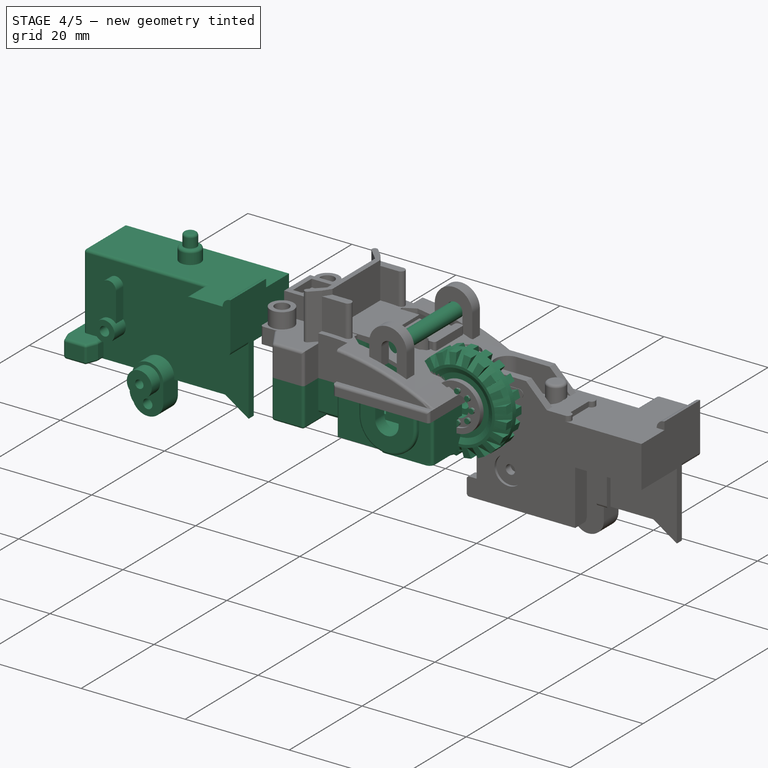
[diagram: stage 4 of 5 — iso view after this stage's code; geometry added in this stage tinted green]
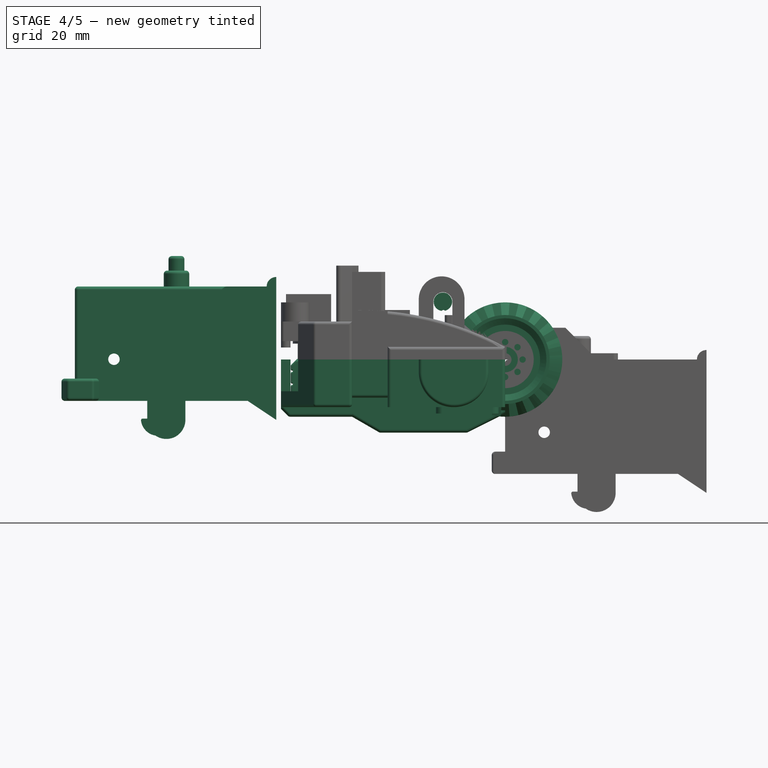
[diagram: stage 4 of 5 — front view after this stage's code; geometry added in this stage tinted green]
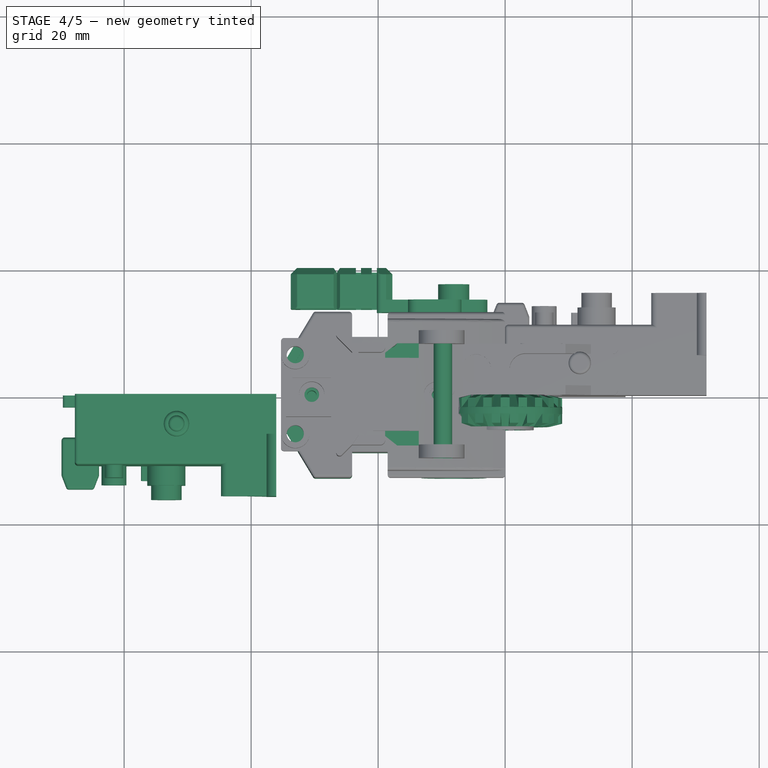
[diagram: stage 4 of 5 — top view after this stage's code; geometry added in this stage tinted green]
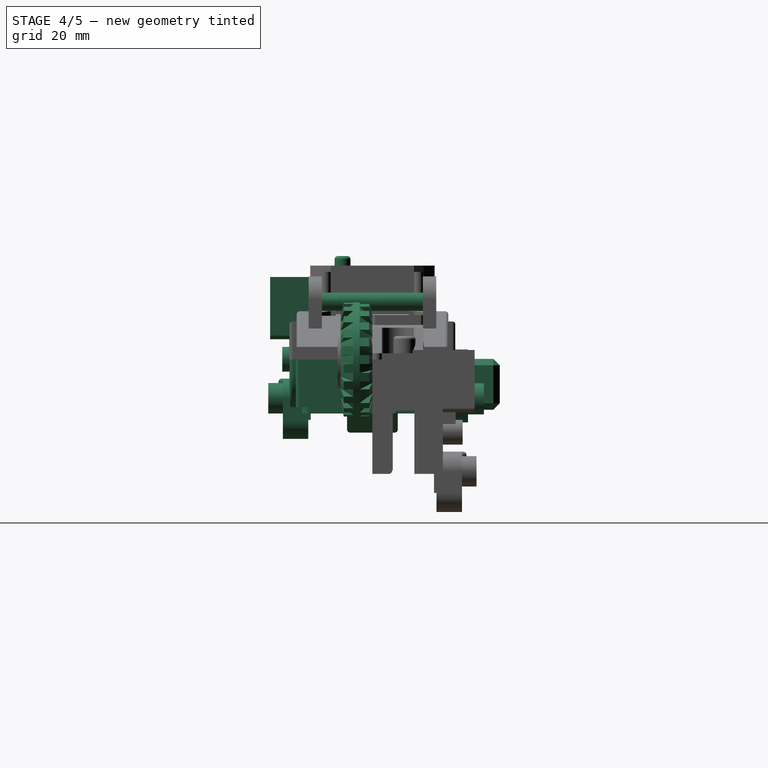
[diagram: stage 4 of 5 — right view after this stage's code; geometry added in this stage tinted green]
FEATURE [PartDesign::SubShapeBinder] Binder
  BindCopyOnChange = 0
  BindMode = 2
  ClaimChildren = false
  Context = -> Body001 [Binder.]
  Fuse = false
  MakeFace = true
  OffsetFill = false
  OffsetIntersection = false
  OffsetJoinType = 0
  OffsetOpenResult = false
  PartialLoad = false
  Refine = true
  Relative = true
  _Version = 2
FEATURE [PartDesign::Pad] Pad025
  Direction = (0,0,-1)
  Length = 7.5
  Length2 = 10
  Profile = -> Binder
  Refine = true
  Suppressed = false
  Type = 0
FEATURE [Sketcher::SketchObject] Sketch044
  ArcFitTolerance = 1e-06
  AttachmentSupport = -> [Pad025]
  ExternalGeometry = -> [Pad025]
  FullyConstrained = true
  MakeInternals = false
  MapMode = 5
  Placement = pos=(0,0,-7.5) rot=(1,0,0;3.14159rad)
  sketch-geometry (22):
    g0: LineSegment StartX=-30.2458 StartY=12.808 StartZ=0 EndX=-35.5518 EndY=4 EndZ=0
    g1: LineSegment StartX=-30.2458 StartY=-12.808 StartZ=0 EndX=-35.5518 EndY=-4 EndZ=0
    g2: LineSegment StartX=-35.5518 StartY=4 StartZ=0 EndX=-35.5518 EndY=-4 EndZ=0
    g3: ArcOfCircle CenterX=-29.8175 CenterY=-12.55 CenterZ=0 NormalX=0 NormalY=0 NormalZ=1 AngleXU=0 Radius=0.5 StartAngle=3.68378 EndAngle=4.71239
    g4: ArcOfCircle CenterX=-24.6 CenterY=-12.55 CenterZ=0 NormalX=0 NormalY=0 NormalZ=1 AngleXU=0 Radius=0.5 StartAngle=4.71239 EndAngle=6.28319
    g5: LineSegment StartX=-29.8175 StartY=-13.05 StartZ=0 EndX=-24.6 EndY=-13.05 EndZ=0
    g6: LineSegment StartX=-24.1 StartY=-12.55 StartZ=0 EndX=-24.1 EndY=-9.05 EndZ=0
    g7: LineSegment StartX=-24.1 StartY=-9.05 StartZ=0 EndX=-18.5 EndY=-9.05 EndZ=0
    g8: ArcOfCircle CenterX=-18 CenterY=-12.55 CenterZ=0 NormalX=0 NormalY=0 NormalZ=1 AngleXU=0 Radius=0.5 StartAngle=3.14159 EndAngle=4.71239
    g9: LineSegment StartX=-18 StartY=-13.05 StartZ=0 EndX=-0.5 EndY=-13.05 EndZ=0
    g10: LineSegment StartX=-18.5 StartY=-9.05 StartZ=0 EndX=-18.5 EndY=-12.55 EndZ=0
    g11: ArcOfCircle CenterX=-29.8175 CenterY=12.55 CenterZ=0 NormalX=0 NormalY=0 NormalZ=1 AngleXU=0 Radius=0.5 StartAngle=1.5708 EndAngle=2.5994
    g12: LineSegment StartX=-29.8175 StartY=13.05 StartZ=0 EndX=-24.6 EndY=13.05 EndZ=0
    g13: ArcOfCircle CenterX=-24.6 CenterY=12.55 CenterZ=0 NormalX=0 NormalY=0 NormalZ=1 AngleXU=0 Radius=0.5 StartAngle=-9.24e-14 EndAngle=1.5708
    g14: LineSegment StartX=-24.1 StartY=12.55 StartZ=0 EndX=-24.1 EndY=9.05 EndZ=0
    g15: LineSegment StartX=-24.1 StartY=9.05 StartZ=0 EndX=-18.5 EndY=9.05 EndZ=0
    g16: LineSegment StartX=-18.5 StartY=9.05 StartZ=0 EndX=-18.5 EndY=12.55 EndZ=0
    g17: ArcOfCircle CenterX=-18 CenterY=12.55 CenterZ=0 NormalX=0 NormalY=0 NormalZ=1 AngleXU=0 Radius=0.5 StartAngle=1.5708 EndAngle=3.14159
    g18: LineSegment StartX=-18 StartY=13.05 StartZ=0 EndX=-0.5 EndY=13.05 EndZ=0
    g19: ArcOfCircle CenterX=-0.5 CenterY=12.55 CenterZ=0 NormalX=0 NormalY=0 NormalZ=1 AngleXU=0 Radius=0.5 StartAngle=-1.07e-14 EndAngle=1.5708
    g20: ArcOfCircle CenterX=-0.499996 CenterY=-12.55 CenterZ=0 NormalX=0 NormalY=0 NormalZ=1 AngleXU=0 Radius=0.499996 StartAngle=4.71238 EndAngle=6.28319
    g21: LineSegment StartX=-1.92553e-11 StartY=-12.55 StartZ=0 EndX=1e-16 EndY=12.55 EndZ=0
  constraints (49):
    c: Coincident(g0,g-27)
    c: PointOnObject(g-27,g0)
    c: Coincident(g1,g-8)
    c: PointOnObject(g-7,g1)
    c: Coincident(g2,g0)
    c: Coincident(g2,g1)
    c: Vertical(g2)
    c: Coincident(g3,g1)
    c: Coincident(g3,g-9)
    c: Tangent(g4,g-10) = -1.5708
    c: Coincident(g4,g-11)
    c: DistanceY(g2,g2) = 8
    c: Coincident(g5,g3)
    c: Coincident(g5,g4)
    c: Coincident(g6,g4)
    c: Coincident(g6,g-12)
    c: Coincident(g7,g6)
    c: Coincident(g7,g-13)
    c: Coincident(g8,g-15)
    c: Coincident(g-14,g8)
    c: Coincident(g9,g-16)
    c: Coincident(g9,g8)
    c: DistanceY(g8,g8) = 0
    c: Coincident(g10,g7)
    c: Coincident(g10,g8)
    c: Tangent(g3,g-8)
    c: Coincident(g11,g0)
    c: Tangent(g11,g-26) = -1.5708
    c: Coincident(g12,g11)
    c: Coincident(g12,g-25)
    c: Coincident(g13,g12)
    c: Tangent(g13,g-24) = -1.5708
    c: Coincident(g14,g13)
    c: Coincident(g14,g-23)
    c: Coincident(g15,g14)
    c: Coincident(g15,g-22)
    c: Coincident(g16,g-21)
    c: Coincident(g16,g15)
    c: Coincident(g17,g16)
    c: Tangent(g17,g-20) = -1.5708
    c: Coincident(g18,g17)
    c: Coincident(g18,g-19)
    c: Coincident(g19,g18)
    c: Tangent(g19,g-18) = -1.5708
    c: Coincident(g20,g9)
    c: Coincident(g20,g-17)
    c: Tangent(g20,g-16)
    c: Coincident(g21,g19)
    c: Coincident(g21,g20)
FEATURE [PartDesign::Pad] Pad026
  BaseFeature = -> Pad025
  Direction = (0,0,-1)
  Length = 1.5
  Length2 = 10
  Profile = -> Sketch044
  ReferenceAxis = -> Sketch044 [N_Axis]
  Refine = true
  Reversed = true
  Suppressed = false
  Type = 0
FEATURE [Sketcher::SketchObject] Sketch045
  ArcFitTolerance = 1e-06
  AttachmentSupport = -> [Pad026]
  ExternalGeometry = -> [Pad026]
  FullyConstrained = true
  MakeInternals = false
  MapMode = 5
  Placement = pos=(0,0,-7.5) rot=(1,0,0;3.14159rad)
  sketch-geometry (4):
    g0: LineSegment StartX=-24.1 StartY=9.05 StartZ=0 EndX=-24.1 EndY=-9.05 EndZ=0
    g1: LineSegment StartX=-24.1 StartY=-9.05 StartZ=0 EndX=-18.5 EndY=-9.05 EndZ=0
    g2: LineSegment StartX=-18.5 StartY=-9.05 StartZ=0 EndX=-18.5 EndY=9.05 EndZ=0
    g3: LineSegment StartX=-18.5 StartY=9.05 StartZ=0 EndX=-24.1 EndY=9.05 EndZ=0
  constraints (10):
    c: Coincident(g0,g1)
    c: Coincident(g1,g2)
    c: Coincident(g2,g3)
    c: Coincident(g3,g0)
    c: Vertical(g0)
    c: Vertical(g2)
    c: Horizontal(g1)
    c: Horizontal(g3)
    c: Coincident(g0,g-3)
    c: Coincident(g1,g-4)
FEATURE [PartDesign::Pocket] Pocket021
  BaseFeature = -> Pad026
  Direction = (0,0,1)
  Length = 1.5
  Length2 = 5
  Profile = -> Sketch045
  ReferenceAxis = -> Sketch045 [N_Axis]
  Refine = true
  Suppressed = false
  Type = 0
FEATURE [Sketcher::SketchObject] Sketch046
  ArcFitTolerance = 1e-06
  AttachmentSupport = -> [Pocket021]
  ExternalGeometry = -> [Pocket021]
  FullyConstrained = true
  MakeInternals = false
  MapMode = 5
  Placement = pos=(0,0,-6) rot=(0,0,1;0rad)
  sketch-geometry (4):
    g0: LineSegment StartX=-35.5518 StartY=3.1 StartZ=0 EndX=-35.5518 EndY=-3.1 EndZ=0
    g1: LineSegment StartX=-35.5518 StartY=-3.1 StartZ=0 EndX=-34.0518 EndY=-3.1 EndZ=0
    g2: LineSegment StartX=-34.0518 StartY=-3.1 StartZ=0 EndX=-34.0518 EndY=3.1 EndZ=0
    g3: LineSegment StartX=-34.0518 StartY=3.1 StartZ=0 EndX=-35.5518 EndY=3.1 EndZ=0
  constraints (12):
    c: Coincident(g0,g1)
    c: Coincident(g1,g2)
    c: Coincident(g2,g3)
    c: Coincident(g3,g0)
    c: Vertical(g0)
    c: Vertical(g2)
    c: Horizontal(g1)
    c: Horizontal(g3)
    c: PointOnObject(g0,g-3)
    c: DistanceX(g3,g3) = 1.5
    c: DistanceY(g0,g0) = 6.2
    c: DistanceY(g-1,g0) = 3.1
FEATURE [PartDesign::Pad] Pad027
  BaseFeature = -> Pocket021
  Direction = (0,0,1)
  Length = 6
  Length2 = 10
  Profile = -> Sketch046
  ReferenceAxis = -> Sketch046 [N_Axis]
  Refine = true
  Suppressed = false
  Type = 0
FEATURE [Sketcher::SketchObject] Sketch047
  ArcFitTolerance = 1e-06
  AttachmentSupport = -> [Pad027]
  ExternalGeometry = -> [Pad027]
  FullyConstrained = true
  MakeInternals = false
  MapMode = 5
  Placement = pos=(0,0,-6) rot=(0,0,1;0rad)
  sketch-geometry (12):
    g0: LineSegment StartX=-35.5518 StartY=3.1 StartZ=0 EndX=-35.5518 EndY=4 EndZ=0
    g1: LineSegment StartX=-35.5518 StartY=4 StartZ=0 EndX=-32.6 EndY=8.9 EndZ=0
    g2: LineSegment StartX=-32.6 StartY=8.9 StartZ=0 EndX=-30.8664 EndY=8.9 EndZ=0
    g3: LineSegment StartX=-30.8664 StartY=8.9 StartZ=0 EndX=-34.0518 EndY=3.6122 EndZ=0
    g4: LineSegment StartX=-35.5518 StartY=3.1 StartZ=0 EndX=-34.0518 EndY=3.1 EndZ=0
    g5: LineSegment StartX=-34.0518 StartY=3.1 StartZ=0 EndX=-34.0518 EndY=3.6122 EndZ=0
    g6: LineSegment StartX=-34.0518 StartY=-3.1 StartZ=0 EndX=-35.5518 EndY=-3.1 EndZ=0
    g7: LineSegment StartX=-35.5518 StartY=-3.1 StartZ=0 EndX=-35.5518 EndY=-4 EndZ=0
    g8: LineSegment StartX=-35.5518 StartY=-4 StartZ=0 EndX=-32.6 EndY=-8.9 EndZ=0
    g9: LineSegment StartX=-32.6 StartY=-8.9 StartZ=0 EndX=-30.8664 EndY=-8.9 EndZ=0
    g10: LineSegment StartX=-30.8664 StartY=-8.9 StartZ=0 EndX=-34.0518 EndY=-3.6122 EndZ=0
    g11: LineSegment StartX=-34.0518 StartY=-3.1 StartZ=0 EndX=-34.0518 EndY=-3.6122 EndZ=0
  constraints (26):
    c: Coincident(g0,g-6)
    c: Coincident(g0,g-5)
    c: Coincident(g1,g0)
    c: Coincident(g1,g-4)
    c: Coincident(g2,g1)
    c: Coincident(g2,g-3)
    c: Coincident(g3,g2)
    c: Coincident(g4,g0)
    c: Coincident(g4,g-6)
    c: Coincident(g5,g4)
    c: Coincident(g5,g3)
    c: Vertical(g5)
    c: Parallel(g1,g3)
    c: Coincident(g6,g-7)
    c: Coincident(g6,g-8)
    c: Coincident(g7,g6)
    c: Coincident(g7,g-9)
    c: Coincident(g8,g7)
    c: Coincident(g8,g-10)
    c: Coincident(g9,g8)
    c: Coincident(g9,g-10)
    c: Coincident(g10,g9)
    c: Coincident(g11,g6)
    c: Coincident(g11,g10)
    c: Vertical(g11)
    c: Parallel(g8,g10)
FEATURE [PartDesign::Pad] Pad028
  BaseFeature = -> Pad027
  Direction = (0,0,1)
  Length = 1
  Length2 = 10
  Profile = -> Sketch047
  ReferenceAxis = -> Sketch047 [N_Axis]
  Refine = true
  Suppressed = false
  Type = 0
FEATURE [Sketcher::SketchObject] Sketch048
  ArcFitTolerance = 1e-06
  AttachmentSupport = -> [Pad028]
  ExternalGeometry = -> [Pad028]
  FullyConstrained = true
  MakeInternals = false
  MapMode = 5
  sketch-geometry (4):
    g0: LineSegment StartX=-1.5 StartY=3 StartZ=0 EndX=-1.5 EndY=-3 EndZ=0
    g1: LineSegment StartX=-1.5 StartY=-3 StartZ=0 EndX=0 EndY=-3 EndZ=0
    g2: LineSegment StartX=0 StartY=-3 StartZ=0 EndX=0 EndY=3 EndZ=0
    g3: LineSegment StartX=0 StartY=3 StartZ=0 EndX=-1.5 EndY=3 EndZ=0
  constraints (10):
    c: Coincident(g0,g1)
    c: Coincident(g1,g2)
    c: Coincident(g2,g3)
    c: Coincident(g3,g0)
    c: Vertical(g2)
    c: Horizontal(g1)
    c: Horizontal(g3)
    c: Coincident(g0,g-4)
    c: PointOnObject(g1,g-3)
    c: Coincident(g0,g-4)
FEATURE [PartDesign::Pocket] Pocket022
  BaseFeature = -> Pad028
  Direction = (0,0,-1)
  Length = 5.3
  Length2 = 5
  Profile = -> Sketch048
  ReferenceAxis = -> Sketch048 [N_Axis]
  Refine = true
  Suppressed = false
  Type = 0
FEATURE [Sketcher::SketchObject] Sketch049
  ArcFitTolerance = 1e-06
  AttachmentSupport = -> [Pocket022]
  ExternalGeometry = -> [Pocket022]
  FullyConstrained = true
  MakeInternals = false
  MapMode = 5
  Placement = pos=(0,0,-6) rot=(0,0,1;0rad)
  sketch-geometry (4):
    g0: LineSegment StartX=-34.0518 StartY=2.5 StartZ=0 EndX=-34.0518 EndY=-2.5 EndZ=0
    g1: LineSegment StartX=-34.0518 StartY=-2.5 StartZ=0 EndX=-1.5 EndY=-2.5 EndZ=0
    g2: LineSegment StartX=-1.5 StartY=-2.5 StartZ=0 EndX=-1.5 EndY=2.5 EndZ=0
    g3: LineSegment StartX=-1.5 StartY=2.5 StartZ=0 EndX=-34.0518 EndY=2.5 EndZ=0
  constraints (12):
    c: Coincident(g0,g1)
    c: Coincident(g1,g2)
    c: Coincident(g2,g3)
    c: Coincident(g3,g0)
    c: Vertical(g0)
    c: Vertical(g2)
    c: Horizontal(g1)
    c: Horizontal(g3)
    c: PointOnObject(g0,g-4)
    c: PointOnObject(g1,g-3)
    c: DistanceY(g-1,g2) = 2.5
    c: DistanceY(g1,g-1) = 2.5
FEATURE [PartDesign::Pocket] Pocket023
  BaseFeature = -> Pocket022
  Direction = (0,0,-1)
  Length = 5
  Length2 = 5
  Profile = -> Sketch049
  ReferenceAxis = -> Sketch049 [N_Axis]
  Refine = true
  Suppressed = false
  Type = 0
FEATURE [Sketcher::SketchObject] Sketch050
  ArcFitTolerance = 1e-06
  AttachmentSupport = -> [Pocket023]
  ExternalGeometry = -> [Pocket023]
  FullyConstrained = true
  MakeInternals = false
  MapMode = 5
  sketch-geometry (12):
    g0: ArcOfCircle CenterX=-0.5 CenterY=-12.55 CenterZ=0 NormalX=0 NormalY=0 NormalZ=1 AngleXU=0 Radius=0.5 StartAngle=4.71239 EndAngle=6.28319
    g1: ArcOfCircle CenterX=-18 CenterY=-12.55 CenterZ=0 NormalX=0 NormalY=0 NormalZ=1 AngleXU=0 Radius=0.5 StartAngle=3.14159 EndAngle=4.71239
    g2: ArcOfCircle CenterX=-18 CenterY=12.55 CenterZ=0 NormalX=0 NormalY=0 NormalZ=1 AngleXU=0 Radius=0.5 StartAngle=1.5708 EndAngle=3.14159
    g3: ArcOfCircle CenterX=-0.5 CenterY=12.55 CenterZ=0 NormalX=0 NormalY=0 NormalZ=1 AngleXU=0 Radius=0.5 StartAngle=2e-16 EndAngle=1.5708
    g4: LineSegment StartX=-0.5 StartY=13.05 StartZ=0 EndX=0 EndY=13.05 EndZ=0
    g5: LineSegment StartX=1e-16 StartY=12.55 StartZ=0 EndX=0 EndY=13.05 EndZ=0
    g6: LineSegment StartX=-18.5 StartY=12.55 StartZ=0 EndX=-18.5 EndY=13.05 EndZ=0
    g7: LineSegment StartX=-18 StartY=13.05 StartZ=0 EndX=-18.5 EndY=13.05 EndZ=0
    g8: LineSegment StartX=-18 StartY=-13.05 StartZ=0 EndX=-18.5 EndY=-13.05 EndZ=0
    g9: LineSegment StartX=-18.5 StartY=-12.55 StartZ=0 EndX=-18.5 EndY=-13.05 EndZ=0
    g10: LineSegment StartX=-2.35e-14 StartY=-12.55 StartZ=0 EndX=0 EndY=-13.05 EndZ=0
    g11: LineSegment StartX=-0.5 StartY=-13.05 StartZ=0 EndX=0 EndY=-13.05 EndZ=0
  constraints (27):
    c: Tangent(g0,g-6) = -1.5708
    c: Coincident(g0,g-6)
    c: Tangent(g1,g-5) = -1.5708
    c: Coincident(g1,g-5)
    c: Tangent(g2,g-4) = -1.5708
    c: Coincident(g2,g-4)
    c: Tangent(g3,g-3) = -1.5708
    c: Coincident(g3,g-3)
    c: Coincident(g4,g3)
    c: PointOnObject(g4,g-2)
    c: Horizontal(g4)
    c: Coincident(g5,g3)
    c: Coincident(g5,g4)
    c: Tangent(g6,g2) = 1.5708
    c: Horizontal(g7)
    c: Coincident(g6,g7)
    c: Coincident(g7,g2)
    c: Coincident(g8,g1)
    c: Horizontal(g8)
    c: Coincident(g9,g1)
    c: Coincident(g9,g8)
    c: Vertical(g9)
    c: Coincident(g10,g0)
    c: PointOnObject(g10,g-2)
    c: Coincident(g11,g0)
    c: Coincident(g11,g10)
    c: Horizontal(g11)
FEATURE [PartDesign::Pad] Pad029
  BaseFeature = -> Pocket023
  Direction = (0,0,1)
  Length = 7.5
  Length2 = 10
  Profile = -> Sketch050
  ReferenceAxis = -> Sketch050 [N_Axis]
  Refine = true
  Reversed = true
  Suppressed = false
  Type = 0
FEATURE [PartDesign::Pocket] Pocket024
  BaseFeature = -> Pad029
  Direction = (0,1,0)
  Length = 1
  Length2 = 5
  Profile = -> Pad029 [Face78]
  Refine = true
  Suppressed = false
  Type = 0
FEATURE [PartDesign::Pocket] Pocket025
  BaseFeature = -> Pocket024
  Direction = (0,-1,0)
  Length = 1
  Length2 = 5
  Profile = -> Pocket024 [Face8]
  Refine = true
  Suppressed = false
  Type = 0
FEATURE [PartDesign::Fillet] Fillet002
  Base = -> Pocket025 [Edge7,Edge59,Edge9,Edge65]
  BaseFeature = -> Pocket025
  Radius = 0.5
  Refine = true
  SupportTransform = false
  Suppressed = false
  UseAllEdges = false
FEATURE [Sketcher::SketchObject] Sketch051
  ArcFitTolerance = 1e-06
  AttachmentSupport = -> [Fillet002]
  ExternalGeometry = -> [Fillet002]
  FullyConstrained = true
  MakeInternals = false
  MapMode = 5
  Placement = pos=(0,12.05,0) rot=(0,0.707107,0.707107;3.14159rad)
  sketch-geometry (4):
    g0: ArcOfCircle CenterX=8.1 CenterY=-2 CenterZ=0 NormalX=0 NormalY=0 NormalZ=1 AngleXU=0 Radius=5.5 StartAngle=3.14159 EndAngle=6.28319
    g1: LineSegment StartX=13.6 StartY=-2 StartZ=0 EndX=13.6 EndY=0 EndZ=0
    g2: LineSegment StartX=2.6 StartY=-2 StartZ=0 EndX=2.6 EndY=0 EndZ=0
    g3: LineSegment StartX=2.6 StartY=0 StartZ=0 EndX=13.6 EndY=0 EndZ=0
  constraints (13):
    c: Diameter(g0) = 11
    c: Tangent(g0,g-3)
    c: DistanceY(g0,g0) = 0
    c: DistanceY(g0,g0) = 0
    c: Coincident(g1,g0)
    c: PointOnObject(g1,g-4)
    c: Vertical(g1)
    c: Coincident(g2,g0)
    c: PointOnObject(g2,g-4)
    c: Vertical(g2)
    c: Coincident(g3,g2)
    c: Coincident(g3,g1)
    c: DistanceX(g-1,g2) = 2.6
FEATURE [PartDesign::Pad] Pad030
  BaseFeature = -> Fillet002
  Direction = (0,1,-2e-16)
  Length = 1
  Length2 = 10
  Profile = -> Sketch051
  ReferenceAxis = -> Sketch051 [N_Axis]
  Refine = true
  Suppressed = false
  Type = 0
FEATURE [Sketcher::SketchObject] Sketch052
  ArcFitTolerance = 1e-06
  AttachmentSupport = -> [Pad030]
  ExternalGeometry = -> [Pad030]
  FullyConstrained = true
  MakeInternals = false
  MapMode = 5
  Placement = pos=(0,-12.05,0) rot=(1,0,0;1.5708rad)
  sketch-geometry (4):
    g0: ArcOfCircle CenterX=-8.1 CenterY=-2 CenterZ=0 NormalX=0 NormalY=0 NormalZ=1 AngleXU=0 Radius=5.5 StartAngle=3.14159 EndAngle=6.28319
    g1: LineSegment StartX=-2.6 StartY=-2 StartZ=0 EndX=-2.6 EndY=0 EndZ=0
    g2: LineSegment StartX=-13.6 StartY=-2 StartZ=0 EndX=-13.6 EndY=0 EndZ=0
    g3: LineSegment StartX=-13.6 StartY=0 StartZ=0 EndX=-2.6 EndY=0 EndZ=0
  constraints (13):
    c: Diameter(g0) = 11
    c: Tangent(g0,g-4)
    c: DistanceY(g0,g0) = 0
    c: DistanceY(g0,g0) = 0
    c: Coincident(g1,g0)
    c: PointOnObject(g1,g-3)
    c: Vertical(g1)
    c: Coincident(g2,g0)
    c: PointOnObject(g2,g-3)
    c: Vertical(g2)
    c: Coincident(g3,g2)
    c: Coincident(g3,g1)
    c: DistanceX(g1,g-1) = 2.6
FEATURE [PartDesign::Pad] Pad031
  BaseFeature = -> Pad030
  Direction = (0,-1,2e-16)
  Length = 1
  Length2 = 10
  Profile = -> Sketch052
  ReferenceAxis = -> Sketch052 [N_Axis]
  Refine = true
  Suppressed = false
  Type = 0
FEATURE [Sketcher::SketchObject] Sketch053
  ArcFitTolerance = 1e-06
  AttachmentSupport = -> [Pad031]
  ExternalGeometry = -> [Pad031]
  FullyConstrained = true
  MakeInternals = false
  MapMode = 5
  Placement = pos=(0,-13.05,3.5e-15) rot=(1,0,0;1.5708rad)
  sketch-geometry (4):
    g0: ArcOfCircle CenterX=-8.1 CenterY=-2 CenterZ=0 NormalX=0 NormalY=0 NormalZ=1 AngleXU=0 Radius=2.25 StartAngle=3.14159 EndAngle=6.28319
    g1: LineSegment StartX=-10.35 StartY=-2 StartZ=0 EndX=-10.35 EndY=0 EndZ=0
    g2: LineSegment StartX=-5.85 StartY=-2 StartZ=0 EndX=-5.85 EndY=-3.3e-15 EndZ=0
    g3: LineSegment StartX=-5.85 StartY=-3.3e-15 StartZ=0 EndX=-10.35 EndY=0 EndZ=0
  constraints (13):
    c: Diameter(g0) = 4.5
    c: Coincident(g0,g-3)
    c: DistanceY(g0,g-4) = 2
    c: DistanceY(g0,g0) = 0
    c: DistanceY(g0,g0) = 0
    c: Coincident(g1,g0)
    c: PointOnObject(g1,g-4)
    c: Vertical(g1)
    c: Coincident(g2,g0)
    c: PointOnObject(g2,g-4)
    c: Vertical(g2)
    c: Coincident(g3,g2)
    c: Coincident(g3,g1)
FEATURE [PartDesign::Pocket] Pocket026
  BaseFeature = -> Pad031
  Direction = (0,1,-2e-16)
  Length = 3
  Length2 = 5
  Profile = -> Sketch053
  ReferenceAxis = -> Sketch053 [N_Axis]
  Refine = true
  Suppressed = false
  Type = 0
FEATURE [Sketcher::SketchObject] Sketch054
  ArcFitTolerance = 1e-06
  AttachmentSupport = -> [Pocket026]
  ExternalGeometry = -> [Pocket026]
  FullyConstrained = true
  MakeInternals = false
  MapMode = 5
  Placement = pos=(0,13.05,-3.5e-15) rot=(0,0.707107,0.707107;3.14159rad)
  sketch-geometry (4):
    g0: ArcOfCircle CenterX=8.1 CenterY=-2 CenterZ=0 NormalX=0 NormalY=0 NormalZ=1 AngleXU=0 Radius=2.25 StartAngle=3.14159 EndAngle=6.28319
    g1: LineSegment StartX=5.85 StartY=-2 StartZ=0 EndX=5.85 EndY=3.3e-15 EndZ=0
    g2: LineSegment StartX=10.35 StartY=-2 StartZ=0 EndX=10.35 EndY=3.3e-15 EndZ=0
    g3: LineSegment StartX=10.35 StartY=3.4e-15 StartZ=0 EndX=5.85 EndY=3.4e-15 EndZ=0
  constraints (12):
    c: Coincident(g0,g-4)
    c: DistanceY(g0,g0) = 0
    c: DistanceY(g0,g0) = 0
    c: Coincident(g1,g0)
    c: PointOnObject(g1,g-3)
    c: Vertical(g1)
    c: Coincident(g2,g0)
    c: PointOnObject(g2,g-3)
    c: Vertical(g2)
    c: Coincident(g3,g2)
    c: Coincident(g3,g1)
    c: Diameter(g0) = 4.5
FEATURE [PartDesign::Pocket] Pocket027
  BaseFeature = -> Pocket026
  Direction = (0,-1,2e-16)
  Length = 3
  Length2 = 5
  Profile = -> Sketch054
  ReferenceAxis = -> Sketch054 [N_Axis]
  Refine = true
  Suppressed = false
  Type = 0
FEATURE [Sketcher::SketchObject] Sketch055
  ArcFitTolerance = 1e-06
  AttachmentSupport = -> [Pocket027]
  ExternalGeometry = -> [Pocket027]
  FullyConstrained = true
  MakeInternals = false
  MapMode = 5
  Placement = pos=(0,0,-6) rot=(0,0,1;0rad)
  sketch-geometry (16):
    g0: ArcOfCircle CenterX=-18 CenterY=-8.55 CenterZ=0 NormalX=0 NormalY=0 NormalZ=1 AngleXU=0 Radius=1 StartAngle=-9e-16 EndAngle=1.5708
    g1: LineSegment StartX=-17 StartY=-8.55 StartZ=0 EndX=-17 EndY=-3.5 EndZ=0
    g2: LineSegment StartX=-25.6 StartY=-8.55 StartZ=0 EndX=-25.6 EndY=-3.5 EndZ=0
    g3: ArcOfCircle CenterX=-24.6 CenterY=-3.5 CenterZ=0 NormalX=0 NormalY=0 NormalZ=1 AngleXU=0 Radius=1 StartAngle=1.5708 EndAngle=3.14159
    g4: ArcOfCircle CenterX=-18 CenterY=-3.5 CenterZ=0 NormalX=0 NormalY=0 NormalZ=1 AngleXU=0 Radius=1 StartAngle=0 EndAngle=1.5708
    g5: LineSegment StartX=-18 StartY=-2.5 StartZ=0 EndX=-24.6 EndY=-2.5 EndZ=0
    g6: LineSegment StartX=-18 StartY=-7.55 StartZ=0 EndX=-24.6 EndY=-7.55 EndZ=0
    g7: ArcOfCircle CenterX=-24.6 CenterY=-8.54999 CenterZ=0 NormalX=0 NormalY=0 NormalZ=1 AngleXU=0 Radius=0.999994 StartAngle=1.57079 EndAngle=3.1416
    g8: LineSegment StartX=-24.6 StartY=2.5 StartZ=0 EndX=-18 EndY=2.5 EndZ=0
    g9: LineSegment StartX=-24.6 StartY=7.55 StartZ=0 EndX=-18 EndY=7.55 EndZ=0
    g10: ArcOfCircle CenterX=-18 CenterY=8.55 CenterZ=0 NormalX=0 NormalY=0 NormalZ=1 AngleXU=0 Radius=1 StartAngle=4.71239 EndAngle=6.28319
    g11: LineSegment StartX=-25.6 StartY=8.55 StartZ=0 EndX=-25.6 EndY=3.5 EndZ=0
    g12: LineSegment StartX=-17 StartY=8.55 StartZ=0 EndX=-17 EndY=3.5 EndZ=0
    g13: ArcOfCircle CenterX=-24.6 CenterY=3.5 CenterZ=0 NormalX=0 NormalY=0 NormalZ=1 AngleXU=0 Radius=1 StartAngle=3.14159 EndAngle=4.71239
    g14: ArcOfCircle CenterX=-18 CenterY=3.5 CenterZ=0 NormalX=0 NormalY=0 NormalZ=1 AngleXU=0 Radius=1 StartAngle=4.71239 EndAngle=6.28319
    g15: ArcOfCircle CenterX=-24.6 CenterY=8.55 CenterZ=0 NormalX=0 NormalY=0 NormalZ=1 AngleXU=0 Radius=1 StartAngle=3.14159 EndAngle=4.71239
  constraints (45):
    c: Tangent(g0,g-4) = -1.5708
    c: Coincident(g0,g-4)
    c: Vertical(g1)
    c: Vertical(g2)
    c: Coincident(g3,g2)
    c: Coincident(g4,g1)
    c: PointOnObject(g4,g-5)
    c: Coincident(g5,g4)
    c: Horizontal(g5)
    c: Radius(g3) = 1
    c: Radius(g4) = 1
    c: DistanceY(g1,g4) = 0
    c: DistanceY(g2,g3) = 0
    c: Coincident(g5,g3)
    c: DistanceX(g3,g3) = 0
    c: DistanceX(g4,g4) = 0
    c: Coincident(g2,g-3)
    c: Coincident(g1,g0)
    c: Coincident(g6,g0)
    c: Coincident(g6,g-3)
    c: Coincident(g7,g6)
    c: Coincident(g7,g2)
    c: Tangent(g7,g-3)
    c: PointOnObject(g8,g-9)
    c: PointOnObject(g8,g-8)
    c: Coincident(g9,g-7)
    c: Coincident(g10,g9)
    c: Vertical(g11)
    c: Coincident(g12,g10)
    c: Vertical(g12)
    c: Coincident(g13,g8)
    c: Coincident(g13,g11)
    c: Coincident(g14,g12)
    c: Coincident(g14,g8)
    c: DistanceY(g14,g12) = 0
    c: DistanceY(g13,g11) = 0
    c: DistanceX(g13,g8) = 0
    c: DistanceX(g14,g8) = 0
    c: Radius(g13) = 1
    c: Radius(g14) = 1
    c: Tangent(g10,g-7) = -1.5708
    c: Coincident(g15,g-10)
    c: Tangent(g15,g-10) = -1.5708
    c: Coincident(g11,g15)
    c: Coincident(g9,g15)
FEATURE [PartDesign::Pad] Pad032
  BaseFeature = -> Pocket027
  Direction = (0,0,1)
  Length = 1
  Length2 = 10
  Profile = -> Sketch055
  ReferenceAxis = -> Sketch055 [N_Axis]
  Refine = true
  Suppressed = false
  Type = 0
FEATURE [Sketcher::SketchObject] Sketch056
  ArcFitTolerance = 1e-06
  AttachmentSupport = -> [Pad032]
  ExternalGeometry = -> [Pad032]
  FullyConstrained = true
  MakeInternals = false
  MapMode = 5
  Placement = pos=(0,0,-7.5) rot=(1,0,0;3.14159rad)
  sketch-geometry (4):
    g0: LineSegment StartX=-35.5518 StartY=4 StartZ=0 EndX=-35.5518 EndY=-4 EndZ=0
    g1: LineSegment StartX=-35.5518 StartY=-4 StartZ=0 EndX=-24.1 EndY=-4 EndZ=0
    g2: LineSegment StartX=-24.1 StartY=-4 StartZ=0 EndX=-24.1 EndY=4 EndZ=0
    g3: LineSegment StartX=-24.1 StartY=4 StartZ=0 EndX=-35.5518 EndY=4 EndZ=0
  constraints (10):
    c: Coincident(g0,g1)
    c: Coincident(g1,g2)
    c: Coincident(g2,g3)
    c: Coincident(g3,g0)
    c: Vertical(g2)
    c: Horizontal(g1)
    c: Horizontal(g3)
    c: Coincident(g0,g-3)
    c: PointOnObject(g1,g-5)
    c: Coincident(g0,g-3)
FEATURE [PartDesign::Pad] Pad033
  BaseFeature = -> Pad032
  Direction = (0,0,-1)
  Length = 1.5
  Length2 = 10
  Profile = -> Sketch056
  ReferenceAxis = -> Sketch056 [N_Axis]
  Refine = true
  Suppressed = false
  Type = 0
FEATURE [Sketcher::SketchObject] Sketch057
  ArcFitTolerance = 1e-06
  AttachmentSupport = -> [Pad033]
  ExternalGeometry = -> [Pad033]
  FullyConstrained = true
  MakeInternals = false
  MapMode = 5
  Placement = pos=(0,4,0) rot=(0,0.707107,0.707107;3.14159rad)
  sketch-geometry (3):
    g0: LineSegment StartX=35.5518 StartY=-7.5 StartZ=0 EndX=35.5518 EndY=-9 EndZ=0
    g1: LineSegment StartX=35.5518 StartY=-9 StartZ=0 EndX=34.0518 EndY=-9 EndZ=0
    g2: LineSegment StartX=35.5518 StartY=-7.5 StartZ=0 EndX=34.0518 EndY=-9 EndZ=0
  constraints (7):
    c: Coincident(g0,g-3)
    c: Coincident(g0,g-4)
    c: Coincident(g1,g0)
    c: PointOnObject(g1,g-4)
    c: Coincident(g2,g0)
    c: Coincident(g2,g1)
    c: Angle(g2,g0) = 0.785398
FEATURE [PartDesign::Pocket] Pocket028
  BaseFeature = -> Pad033
  Direction = (0,-1,2e-16)
  Length = 8
  Length2 = 5
  Profile = -> Sketch057
  ReferenceAxis = -> Sketch057 [N_Axis]
  Refine = true
  Suppressed = false
  Type = 0
FEATURE [Sketcher::SketchObject] Sketch058
  ArcFitTolerance = 1e-06
  AttachmentSupport = -> [Pocket028]
  ExternalGeometry = -> [Pocket028]
  FullyConstrained = true
  MakeInternals = false
  MapMode = 5
  Placement = pos=(0,0,-6) rot=(1,0,0;3.14159rad)
  sketch-geometry (8):
    g0: LineSegment StartX=-24.1 StartY=-2.5 StartZ=0 EndX=-24.1 EndY=-4 EndZ=0
    g1: LineSegment StartX=-24.1 StartY=-4 StartZ=0 EndX=-18.5 EndY=-4 EndZ=0
    g2: LineSegment StartX=-18.5 StartY=-4 StartZ=0 EndX=-18.5 EndY=-2.5 EndZ=0
    g3: LineSegment StartX=-18.5 StartY=-2.5 StartZ=0 EndX=-24.1 EndY=-2.5 EndZ=0
    g4: LineSegment StartX=-24.1 StartY=2.5 StartZ=0 EndX=-18.5 EndY=2.5 EndZ=0
    g5: LineSegment StartX=-18.5 StartY=2.5 StartZ=0 EndX=-18.5 EndY=4 EndZ=0
    g6: LineSegment StartX=-18.5 StartY=4 StartZ=0 EndX=-24.1 EndY=4 EndZ=0
    g7: LineSegment StartX=-24.1 StartY=4 StartZ=0 EndX=-24.1 EndY=2.5 EndZ=0
  constraints (22):
    c: Coincident(g0,g1)
    c: Coincident(g1,g2)
    c: Coincident(g2,g3)
    c: Coincident(g3,g0)
    c: Vertical(g0)
    c: Vertical(g2)
    c: Horizontal(g1)
    c: Horizontal(g3)
    c: Coincident(g0,g-8)
    c: PointOnObject(g1,g-6)
    c: Coincident(g4,g5)
    c: Coincident(g5,g6)
    c: Coincident(g6,g7)
    c: Coincident(g7,g4)
    c: Horizontal(g4)
    c: Horizontal(g6)
    c: Vertical(g5)
    c: Vertical(g7)
    c: Coincident(g4,g-4)
    c: PointOnObject(g5,g-5)
    c: DistanceY(g5,g5) = 1.5
    c: DistanceY(g2,g2) = 1.5
FEATURE [PartDesign::Pad] Pad034
  BaseFeature = -> Pocket028
  Direction = (0,0,-1)
  Length = 1.5
  Length2 = 10
  Profile = -> Sketch058
  ReferenceAxis = -> Sketch058 [N_Axis]
  Refine = true
  Suppressed = false
  Type = 0
FEATURE [Sketcher::SketchObject] Sketch059
  ArcFitTolerance = 1e-06
  AttachmentSupport = -> [Pad034]
  ExternalGeometry = -> [Pad034]
  FullyConstrained = true
  MakeInternals = false
  MapMode = 5
  Placement = pos=(0,0,-7.5) rot=(1,0,0;3.14159rad)
  sketch-geometry (8):
    g0: LineSegment StartX=-24.1 StartY=4 StartZ=0 EndX=-24.1 EndY=2.5 EndZ=0
    g1: LineSegment StartX=-24.1 StartY=2.5 StartZ=0 EndX=-4.938e-13 EndY=2.5 EndZ=0
    g2: LineSegment StartX=-4.938e-13 StartY=2.5 StartZ=0 EndX=-4.938e-13 EndY=4 EndZ=0
    g3: LineSegment StartX=-4.938e-13 StartY=4 StartZ=0 EndX=-24.1 EndY=4 EndZ=0
    g4: LineSegment StartX=-24.1 StartY=-2.5 StartZ=0 EndX=-24.1 EndY=-4 EndZ=0
    g5: LineSegment StartX=-24.1 StartY=-4 StartZ=0 EndX=-7.994e-13 EndY=-4 EndZ=0
    g6: LineSegment StartX=-7.994e-13 StartY=-4 StartZ=0 EndX=-7.994e-13 EndY=-2.5 EndZ=0
    g7: LineSegment StartX=-7.994e-13 StartY=-2.5 StartZ=0 EndX=-24.1 EndY=-2.5 EndZ=0
  constraints (22):
    c: Coincident(g0,g1)
    c: Coincident(g1,g2)
    c: Coincident(g2,g3)
    c: Coincident(g3,g0)
    c: Vertical(g0)
    c: Vertical(g2)
    c: Horizontal(g1)
    c: Horizontal(g3)
    c: Coincident(g0,g-4)
    c: PointOnObject(g1,g-7)
    c: Coincident(g4,g5)
    c: Coincident(g5,g6)
    c: Coincident(g6,g7)
    c: Coincident(g7,g4)
    c: Vertical(g4)
    c: Vertical(g6)
    c: Horizontal(g5)
    c: Horizontal(g7)
    c: Coincident(g4,g-6)
    c: PointOnObject(g5,g-7)
    c: PointOnObject(g-5,g5)
    c: PointOnObject(g-3,g1)
FEATURE [PartDesign::Pad] Pad035
  BaseFeature = -> Pad034
  Direction = (0,0,-1)
  Length = 4
  Length2 = 10
  Profile = -> Sketch059
  ReferenceAxis = -> Sketch059 [N_Axis]
  Refine = true
  Suppressed = false
  Type = 0
FEATURE [Sketcher::SketchObject] Sketch060
  ArcFitTolerance = 1e-06
  AttachmentSupport = -> [Pad035]
  ExternalGeometry = -> [Pad035]
  FullyConstrained = true
  MakeInternals = false
  MapMode = 5
  Placement = pos=(0,4,0) rot=(0,0.707107,0.707107;3.14159rad)
  sketch-geometry (6):
    g0: LineSegment StartX=7.994e-13 StartY=-8.5 StartZ=0 EndX=7.994e-13 EndY=-11.5 EndZ=0
    g1: LineSegment StartX=7.994e-13 StartY=-11.5 StartZ=0 EndX=6 EndY=-11.5 EndZ=0
    g2: LineSegment StartX=6 StartY=-11.5 StartZ=0 EndX=7.994e-13 EndY=-8.5 EndZ=0
    g3: LineSegment StartX=24.1 StartY=-9 StartZ=0 EndX=19.7699 EndY=-11.5 EndZ=0
    g4: LineSegment StartX=19.7699 StartY=-11.5 StartZ=0 EndX=24.1 EndY=-11.5 EndZ=0
    g5: LineSegment StartX=24.1 StartY=-11.5 StartZ=0 EndX=24.1 EndY=-9 EndZ=0
  constraints (15):
    c: PointOnObject(g0,g-5)
    c: Coincident(g0,g-5)
    c: Coincident(g1,g0)
    c: PointOnObject(g1,g-4)
    c: Coincident(g2,g1)
    c: Coincident(g2,g0)
    c: Coincident(g3,g-3)
    c: PointOnObject(g3,g-4)
    c: Coincident(g4,g3)
    c: Coincident(g4,g-4)
    c: Coincident(g5,g4)
    c: Coincident(g5,g3)
    c: Angle(g3,g5) = 1.0472
    c: DistanceY(g0,g-5) = 1
    c: DistanceX(g1,g1) = 6
FEATURE [PartDesign::Pocket] Pocket029
  BaseFeature = -> Pad035
  Direction = (0,-1,2e-16)
  Length = 8
  Length2 = 5
  Profile = -> Sketch060
  ReferenceAxis = -> Sketch060 [N_Axis]
  Refine = true
  Suppressed = false
  Type = 0
FEATURE [Sketcher::SketchObject] Sketch061
  ArcFitTolerance = 1e-06
  AttachmentSupport = -> [Pocket029]
  ExternalGeometry = -> [Pocket029]
  FullyConstrained = true
  MakeInternals = false
  MapMode = 5
  Placement = pos=(0,-2.5,0) rot=(0,0.707107,0.707107;3.14159rad)
  sketch-geometry (9):
    g0: LineSegment StartX=4.938e-13 StartY=-7.5 StartZ=0 EndX=0 EndY=-8.5 EndZ=0
    g1: LineSegment StartX=7.976e-13 StartY=-8.5 StartZ=0 EndX=6 EndY=-11.5 EndZ=0
    g2: LineSegment StartX=6 StartY=-11.5 StartZ=0 EndX=19.7699 EndY=-11.5 EndZ=0
    g3: LineSegment StartX=19.7699 StartY=-11.5 StartZ=0 EndX=24.1 EndY=-9 EndZ=0
    g4: LineSegment StartX=24.1 StartY=-9 StartZ=0 EndX=24.1 EndY=-7.5 EndZ=0
    g5: LineSegment StartX=24.1 StartY=-7.5 StartZ=0 EndX=19.7699 EndY=-10 EndZ=0
    g6: LineSegment StartX=19.7699 StartY=-10 StartZ=0 EndX=6.5 EndY=-10 EndZ=0
    g7: LineSegment StartX=4.938e-13 StartY=-7.5 StartZ=0 EndX=1.5 EndY=-7.5 EndZ=0
    g8: LineSegment StartX=6.5 StartY=-10 StartZ=0 EndX=1.5 EndY=-7.5 EndZ=0
  constraints (20):
    c: Coincident(g0,g-8)
    c: Coincident(g0,g-3)
    c: Coincident(g1,g-3)
    c: Coincident(g1,g-4)
    c: Coincident(g2,g1)
    c: Coincident(g2,g-5)
    c: Coincident(g3,g2)
    c: Coincident(g3,g-6)
    c: Coincident(g4,g3)
    c: Coincident(g4,g-6)
    c: Coincident(g5,g4)
    c: Coincident(g6,g5)
    c: Horizontal(g6)
    c: Coincident(g7,g0)
    c: Coincident(g7,g-9)
    c: Coincident(g8,g6)
    c: Coincident(g8,g7)
    c: Parallel(g8,g1)
    c: Parallel(g5,g3)
    c: DistanceY(g2,g5) = 1.5
FEATURE [PartDesign::Pad] Pad036
  BaseFeature = -> Pocket029
  Direction = (0,1,-2e-16)
  Length = 5
  Length2 = 10
  Profile = -> Sketch061
  ReferenceAxis = -> Sketch061 [N_Axis]
  Refine = true
  Suppressed = false
  Type = 0
FEATURE [Sketcher::SketchObject] Sketch062
  ArcFitTolerance = 1e-06
  AttachmentSupport = -> [Pad036]
  ExternalGeometry = -> [Pad036]
  FullyConstrained = true
  MakeInternals = false
  MapMode = 5
  Placement = pos=(0,0,-7.5) rot=(1,0,0;3.14159rad)
  sketch-geometry (12):
    g0: LineSegment StartX=-1 StartY=-4 StartZ=0 EndX=-1 EndY=-10.05 EndZ=0
    g1: ArcOfCircle CenterX=-2 CenterY=-10.05 CenterZ=0 NormalX=0 NormalY=0 NormalZ=1 AngleXU=0 Radius=1 StartAngle=4.71239 EndAngle=6.28319
    g2: LineSegment StartX=-2 StartY=-11.05 StartZ=0 EndX=-9.9 EndY=-11.05 EndZ=0
    g3: ArcOfCircle CenterX=-9.9 CenterY=-10.05 CenterZ=0 NormalX=0 NormalY=0 NormalZ=1 AngleXU=0 Radius=1 StartAngle=3.14159 EndAngle=4.71239
    g4: LineSegment StartX=-10.9 StartY=-10.05 StartZ=0 EndX=-10.9 EndY=-4 EndZ=0
    g5: LineSegment StartX=-10.9 StartY=-4 StartZ=0 EndX=-1 EndY=-4 EndZ=0
    g6: LineSegment StartX=-1 StartY=4 StartZ=0 EndX=-1 EndY=10.05 EndZ=0
    g7: ArcOfCircle CenterX=-2 CenterY=10.05 CenterZ=0 NormalX=0 NormalY=0 NormalZ=1 AngleXU=0 Radius=1 StartAngle=2e-16 EndAngle=1.5708
    g8: LineSegment StartX=-2 StartY=11.05 StartZ=0 EndX=-9.9 EndY=11.05 EndZ=0
    g9: ArcOfCircle CenterX=-9.9 CenterY=10.05 CenterZ=0 NormalX=0 NormalY=0 NormalZ=1 AngleXU=0 Radius=1 StartAngle=1.5708 EndAngle=3.14159
    g10: LineSegment StartX=-10.9 StartY=10.05 StartZ=0 EndX=-10.9 EndY=4 EndZ=0
    g11: LineSegment StartX=-10.9 StartY=4 StartZ=0 EndX=-1 EndY=4 EndZ=0
  constraints (40):
    c: PointOnObject(g0,g-8)
    c: Vertical(g0)
    c: Coincident(g1,g0)
    c: Coincident(g2,g1)
    c: Horizontal(g2)
    c: Coincident(g3,g2)
    c: Coincident(g4,g3)
    c: PointOnObject(g4,g-8)
    c: Coincident(g5,g4)
    c: DistanceX(g2,g3) = 0
    c: DistanceX(g1,g1) = 0
    c: Radius(g3) = 1
    c: Radius(g1) = 1
    c: DistanceY(g1,g0) = 0
    c: DistanceY(g3,g3) = 0
    c: Vertical(g4)
    c: DistanceX(g3,g0) = 9.9
    c: DistanceX(g0,g-6) = 1
    c: DistanceY(g-7,g1) = 1
    c: Coincident(g5,g0)
    c: PointOnObject(g6,g-3)
    c: Vertical(g6)
    c: Coincident(g7,g6)
    c: Coincident(g8,g7)
    c: Horizontal(g8)
    c: Coincident(g9,g8)
    c: Coincident(g10,g9)
    c: PointOnObject(g10,g-3)
    c: Vertical(g10)
    c: Coincident(g11,g10)
    c: Coincident(g11,g6)
    c: Radius(g9) = 1
    c: Radius(g7) = 1
    c: DistanceX(g9,g8) = 0
    c: DistanceX(g7,g7) = 0
    c: DistanceY(g7,g6) = 0
    c: DistanceX(g6,g-4) = 1
    c: DistanceY(g7,g-5) = 1
    c: DistanceX(g10,g6) = 9.9
    c: DistanceY(g9,g9) = 0
FEATURE [PartDesign::Pad] Pad037
  BaseFeature = -> Pad036
  Direction = (0,0,-1)
  Length = 1
  Length2 = 10
  Profile = -> Sketch062
  ReferenceAxis = -> Sketch062 [N_Axis]
  Refine = true
  Suppressed = false
  Type = 0
FEATURE [Sketcher::SketchObject] Sketch063
  ArcFitTolerance = 1e-06
  AttachmentSupport = -> [Pad037]
  ExternalGeometry = -> [Pad037]
  FullyConstrained = true
  MakeInternals = false
  MapMode = 5
  Placement = pos=(0,0,-6) rot=(0,0,1;0rad)
  sketch-geometry (10):
    g0: LineSegment StartX=-9.9 StartY=10.55 StartZ=0 EndX=-9.9 EndY=5.2 EndZ=0
    g1: LineSegment StartX=-9.9 StartY=5.2 StartZ=0 EndX=-3 EndY=5.2 EndZ=0
    g2: LineSegment StartX=-3 StartY=5.2 StartZ=0 EndX=-3 EndY=9.22712 EndZ=0
    g3: LineSegment StartX=-9.9 StartY=10.55 StartZ=0 EndX=-3.5 EndY=10.55 EndZ=0
    g4: ArcOfCircle CenterX=-1.50002 CenterY=10.55 CenterZ=0 NormalX=0 NormalY=0 NormalZ=1 AngleXU=0 Radius=1.99998 StartAngle=3.14159 EndAngle=3.86433
    g5: LineSegment StartX=-3 StartY=-5.2 StartZ=0 EndX=-9.9 EndY=-5.2 EndZ=0
    g6: LineSegment StartX=-9.9 StartY=-5.2 StartZ=0 EndX=-9.9 EndY=-10.55 EndZ=0
    g7: LineSegment StartX=-3 StartY=-5.2 StartZ=0 EndX=-3 EndY=-9.22712 EndZ=0
    g8: ArcOfCircle CenterX=-1.50001 CenterY=-10.55 CenterZ=0 NormalX=0 NormalY=0 NormalZ=1 AngleXU=0 Radius=1.99999 StartAngle=2.41886 EndAngle=3.1416
    g9: LineSegment StartX=-3.5 StartY=-10.55 StartZ=0 EndX=-9.9 EndY=-10.55 EndZ=0
  constraints (30):
    c: PointOnObject(g0,g-5)
    c: PointOnObject(g0,g-4)
    c: Vertical(g0)
    c: Coincident(g1,g0)
    c: PointOnObject(g1,g-4)
    c: Coincident(g2,g1)
    c: PointOnObject(g2,g-3)
    c: Vertical(g2)
    c: Coincident(g3,g0)
    c: Coincident(g3,g-5)
    c: Coincident(g4,g3)
    c: Coincident(g4,g2)
    c: Tangent(g4,g-3)
    c: DistanceX(g2,g-6) = 1.5
    c: DistanceX(g0,g2) = 6.9
    c: PointOnObject(g5,g-8)
    c: PointOnObject(g5,g-8)
    c: Coincident(g6,g5)
    c: PointOnObject(g6,g-10)
    c: Vertical(g6)
    c: Coincident(g7,g5)
    c: PointOnObject(g7,g-9)
    c: Vertical(g7)
    c: Coincident(g8,g7)
    c: Coincident(g8,g-10)
    c: Coincident(g9,g8)
    c: Coincident(g9,g6)
    c: DistanceX(g5,g-8) = 1.5
    c: DistanceX(g5,g5) = 6.9
    c: Tangent(g8,g-9)
FEATURE [PartDesign::Pocket] Pocket030
  BaseFeature = -> Pad037
  Direction = (0,0,-1)
  Length = 1
  Length2 = 5
  Profile = -> Sketch063
  ReferenceAxis = -> Sketch063 [N_Axis]
  Refine = true
  Suppressed = false
  Type = 0
FEATURE [Sketcher::SketchObject] Sketch064
  ArcFitTolerance = 1e-06
  AttachmentSupport = -> [Pocket030]
  ExternalGeometry = -> [Pocket030]
  FullyConstrained = true
  MakeInternals = false
  MapMode = 5
  Placement = pos=(0,0,-6) rot=(0,0,1;0rad)
  sketch-geometry (8):
    g0: LineSegment StartX=-10.8 StartY=5.2 StartZ=0 EndX=-13.8 EndY=5.2 EndZ=0
    g1: LineSegment StartX=-13.8 StartY=5.2 StartZ=0 EndX=-13.8 EndY=3 EndZ=0
    g2: LineSegment StartX=-13.8 StartY=3 StartZ=0 EndX=-10.8 EndY=3 EndZ=0
    g3: LineSegment StartX=-10.8 StartY=3 StartZ=0 EndX=-10.8 EndY=5.2 EndZ=0
    g4: LineSegment StartX=-10.8 StartY=-3 StartZ=0 EndX=-13.8 EndY=-3 EndZ=0
    g5: LineSegment StartX=-13.8 StartY=-3 StartZ=0 EndX=-13.8 EndY=-5.2 EndZ=0
    g6: LineSegment StartX=-13.8 StartY=-5.2 StartZ=0 EndX=-10.8 EndY=-5.2 EndZ=0
    g7: LineSegment StartX=-10.8 StartY=-5.2 StartZ=0 EndX=-10.8 EndY=-3 EndZ=0
  constraints (20):
    c: Coincident(g0,g1)
    c: Coincident(g1,g2)
    c: Coincident(g2,g3)
    c: Coincident(g3,g0)
    c: Horizontal(g0)
    c: Horizontal(g2)
    c: Vertical(g1)
    c: Coincident(g0,g-3)
    c: Coincident(g4,g5)
    c: Coincident(g5,g6)
    c: Coincident(g6,g7)
    c: Coincident(g7,g4)
    c: Horizontal(g4)
    c: Horizontal(g6)
    c: Vertical(g5)
    c: Coincident(g4,g-4)
    c: Coincident(g2,g-3)
    c: Coincident(g6,g-4)
    c: DistanceX(g4,g4) = 3
    c: DistanceX(g0,g0) = 3
FEATURE [PartDesign::Pad] Pad038
  BaseFeature = -> Pocket030
  Direction = (0,0,1)
  Length = 6
  Length2 = 10
  Profile = -> Sketch064
  ReferenceAxis = -> Sketch064 [N_Axis]
  Refine = true
  Suppressed = false
  Type = 0
FEATURE [Sketcher::SketchObject] Sketch065
  ArcFitTolerance = 1e-06
  AttachmentSupport = -> [Pad038]
  ExternalGeometry = -> [Pad038]
  FullyConstrained = true
  MakeInternals = false
  MapMode = 5
  Placement = pos=(0,0,-6) rot=(0,0,1;0rad)
  sketch-geometry (6):
    g0: ArcOfCircle CenterX=-1.5 CenterY=3 CenterZ=0 NormalX=0 NormalY=0 NormalZ=1 AngleXU=0 Radius=0.5 StartAngle=3.14159 EndAngle=4.71239
    g1: LineSegment StartX=-2 StartY=3 StartZ=0 EndX=-1.5 EndY=3 EndZ=0
    g2: LineSegment StartX=-1.5 StartY=3 StartZ=0 EndX=-1.5 EndY=2.5 EndZ=0
    g3: ArcOfCircle CenterX=-1.5 CenterY=-3 CenterZ=0 NormalX=0 NormalY=0 NormalZ=1 AngleXU=0 Radius=0.5 StartAngle=1.5708 EndAngle=3.14159
    g4: LineSegment StartX=-1.5 StartY=-2.5 StartZ=0 EndX=-1.5 EndY=-3 EndZ=0
    g5: LineSegment StartX=-1.5 StartY=-3 StartZ=0 EndX=-2 EndY=-3 EndZ=0
  constraints (14):
    c: Coincident(g0,g-4)
    c: PointOnObject(g0,g-3)
    c: Coincident(g1,g0)
    c: Coincident(g1,g-4)
    c: Coincident(g2,g1)
    c: Coincident(g2,g-4)
    c: Coincident(g0,g1)
    c: Coincident(g3,g-5)
    c: PointOnObject(g3,g-6)
    c: Coincident(g4,g-5)
    c: Coincident(g4,g-6)
    c: Coincident(g5,g4)
    c: Coincident(g5,g3)
    c: Coincident(g3,g4)
FEATURE [PartDesign::Pad] Pad039
  BaseFeature = -> Pad038
  Direction = (0,0,1)
  Length = 0.5
  Length2 = 10
  Profile = -> Sketch065
  ReferenceAxis = -> Sketch065 [N_Axis]
  Refine = true
  Suppressed = false
  Type = 0
FEATURE [Sketcher::SketchObject] Sketch066
  ArcFitTolerance = 1e-06
  AttachmentSupport = -> [Pad039]
  ExternalGeometry = -> [Pad039]
  FullyConstrained = true
  MakeInternals = false
  MapMode = 5
  Placement = pos=(0,0,-5.3) rot=(0,0,1;0rad)
  sketch-geometry (4):
    g0: LineSegment StartX=-1.5 StartY=0.5 StartZ=0 EndX=-4.2 EndY=0.5 EndZ=0
    g1: LineSegment StartX=-4.2 StartY=0.5 StartZ=0 EndX=-4.2 EndY=-0.5 EndZ=0
    g2: LineSegment StartX=-4.2 StartY=-0.5 StartZ=0 EndX=-1.5 EndY=-0.5 EndZ=0
    g3: LineSegment StartX=-1.5 StartY=-0.5 StartZ=0 EndX=-1.5 EndY=0.5 EndZ=0
  constraints (13):
    c: Coincident(g0,g1)
    c: Coincident(g1,g2)
    c: Coincident(g2,g3)
    c: Coincident(g3,g0)
    c: Horizontal(g0)
    c: Horizontal(g2)
    c: Vertical(g1)
    c: Vertical(g3)
    c: PointOnObject(g0,g-3)
    c: DistanceX(g-3,g-4) = 1.5
    c: DistanceX(g2,g2) = 2.7
    c: DistanceY(g2,g-1) = 0.5
    c: DistanceY(g-1,g0) = 0.5
FEATURE [PartDesign::Pad] Pad040
  BaseFeature = -> Pad039
  Direction = (0,0,1)
  Length = 6
  Length2 = 10
  Profile = -> Sketch066
  ReferenceAxis = -> Sketch066 [N_Axis]
  Refine = true
  Reversed = true
  Suppressed = false
  Type = 0
FEATURE [PartDesign::Pocket] Pocket031
  BaseFeature = -> Pad040
  Direction = (0,1,0)
  Length = 5
  Length2 = 5
  Profile = -> Pad040 [Face60]
  Refine = true
  Suppressed = false
  Type = 0
FEATURE [Sketcher::SketchObject] Sketch067
  ArcFitTolerance = 1e-06
  AttachmentSupport = -> [Pocket031]
  ExternalGeometry = -> [Pocket031]
  FullyConstrained = true
  MakeInternals = false
  MapMode = 5
  Placement = pos=(0,0,1e-16) rot=(0,0,1;0rad)
  sketch-geometry (8):
    g0: LineSegment StartX=0 StartY=3 StartZ=0 EndX=0 EndY=4 EndZ=0
    g1: LineSegment StartX=0 StartY=4 StartZ=0 EndX=-13.8 EndY=4 EndZ=0
    g2: LineSegment StartX=-13.8 StartY=4 StartZ=0 EndX=-13.8 EndY=3 EndZ=0
    g3: LineSegment StartX=-13.8 StartY=3 StartZ=0 EndX=0 EndY=3 EndZ=0
    g4: LineSegment StartX=0 StartY=-3 StartZ=0 EndX=-13.8 EndY=-3 EndZ=0
    g5: LineSegment StartX=-13.8 StartY=-3 StartZ=0 EndX=-13.8 EndY=-4 EndZ=0
    g6: LineSegment StartX=-13.8 StartY=-4 StartZ=0 EndX=0 EndY=-4 EndZ=0
    g7: LineSegment StartX=0 StartY=-4 StartZ=0 EndX=0 EndY=-3 EndZ=0
  constraints (22):
    c: Coincident(g0,g1)
    c: Coincident(g1,g2)
    c: Coincident(g2,g3)
    c: Coincident(g3,g0)
    c: Vertical(g0)
    c: Vertical(g2)
    c: Horizontal(g1)
    c: Horizontal(g3)
    c: Coincident(g0,g-3)
    c: PointOnObject(g1,g-4)
    c: Coincident(g4,g5)
    c: Coincident(g5,g6)
    c: Coincident(g6,g7)
    c: Coincident(g7,g4)
    c: Horizontal(g4)
    c: Horizontal(g6)
    c: Vertical(g5)
    c: Vertical(g7)
    c: Coincident(g4,g-6)
    c: PointOnObject(g5,g-5)
    c: DistanceY(g5,g5) = 1
    c: DistanceY(g2,g2) = 1
FEATURE [PartDesign::Pocket] Pocket032
  BaseFeature = -> Pocket031
  Direction = (0,0,-1)
  Length = 6
  Length2 = 5
  Profile = -> Sketch067
  ReferenceAxis = -> Sketch067 [N_Axis]
  Refine = true
  Suppressed = false
  Type = 0
FEATURE [PartDesign::Pocket] Pocket033
  BaseFeature = -> Pocket032
  Direction = (0,0,-1)
  Length = 0.5
  Length2 = 5
  Profile = -> Pocket032 [Face92,Face85]
  Refine = true
  Suppressed = false
  Type = 0
FEATURE [Sketcher::SketchObject] Sketch068
  ArcFitTolerance = 1e-06
  AttachmentSupport = -> [Pocket033]
  ExternalGeometry = -> [Pocket033]
  FullyConstrained = true
  MakeInternals = false
  MapMode = 5
  Placement = pos=(0,0,-6) rot=(0,0,1;0rad)
  sketch-geometry (8):
    g0: LineSegment StartX=0 StartY=-4 StartZ=0 EndX=0 EndY=-3 EndZ=0
    g1: LineSegment StartX=0 StartY=-3 StartZ=0 EndX=-1.5 EndY=-3 EndZ=0
    g2: LineSegment StartX=-1.5 StartY=-3 StartZ=0 EndX=-1.5 EndY=-4 EndZ=0
    g3: LineSegment StartX=-1.5 StartY=-4 StartZ=0 EndX=0 EndY=-4 EndZ=0
    g4: LineSegment StartX=0 StartY=4 StartZ=0 EndX=-1.5 EndY=4 EndZ=0
    g5: LineSegment StartX=-1.5 StartY=4 StartZ=0 EndX=-1.5 EndY=3 EndZ=0
    g6: LineSegment StartX=-1.5 StartY=3 StartZ=0 EndX=0 EndY=3 EndZ=0
    g7: LineSegment StartX=0 StartY=3 StartZ=0 EndX=0 EndY=4 EndZ=0
  constraints (20):
    c: Coincident(g0,g1)
    c: Coincident(g1,g2)
    c: Coincident(g2,g3)
    c: Coincident(g3,g0)
    c: Vertical(g0)
    c: Vertical(g2)
    c: Horizontal(g1)
    c: Horizontal(g3)
    c: Coincident(g0,g-8)
    c: Coincident(g1,g-7)
    c: Coincident(g4,g5)
    c: Coincident(g5,g6)
    c: Coincident(g6,g7)
    c: Coincident(g7,g4)
    c: Horizontal(g4)
    c: Horizontal(g6)
    c: Vertical(g5)
    c: Vertical(g7)
    c: Coincident(g4,g-4)
    c: Coincident(g5,g-5)
FEATURE [PartDesign::Pad] Pad041
  BaseFeature = -> Pocket033
  Direction = (0,0,1)
  Length = 0.7
  Length2 = 10
  Profile = -> Sketch068
  ReferenceAxis = -> Sketch068 [N_Axis]
  Refine = true
  Suppressed = false
  Type = 0
FEATURE [PartDesign::Pad] Pad042
  BaseFeature = -> Pad041
  Direction = (0,0,1)
  Length = 0.3
  Length2 = 10
  Profile = -> Pad041 [Face141]
  Refine = true
  Suppressed = false
  Type = 0
FEATURE [Sketcher::SketchObject] Sketch069
  ArcFitTolerance = 1e-06
  AttachmentSupport = -> [Pad042]
  ExternalGeometry = -> [Pad042]
  FullyConstrained = true
  MakeInternals = false
  MapMode = 5
  Placement = pos=(0,0,-6) rot=(0,0,1;0rad)
  sketch-geometry (6):
    g0: LineSegment StartX=-1.5 StartY=2.5 StartZ=0 EndX=-1.5 EndY=4 EndZ=0
    g1: LineSegment StartX=-1.5 StartY=4 StartZ=0 EndX=-3 EndY=4 EndZ=0
    g2: ArcOfCircle CenterX=-1.5 CenterY=4 CenterZ=0 NormalX=0 NormalY=0 NormalZ=1 AngleXU=0 Radius=1.5 StartAngle=3.14159 EndAngle=4.71239
    g3: LineSegment StartX=-1.5 StartY=-2.5 StartZ=0 EndX=-1.5 EndY=-4 EndZ=0
    g4: LineSegment StartX=-1.5 StartY=-4 StartZ=0 EndX=-3 EndY=-4 EndZ=0
    g5: ArcOfCircle CenterX=-1.5 CenterY=-4 CenterZ=0 NormalX=0 NormalY=0 NormalZ=1 AngleXU=0 Radius=1.5 StartAngle=1.5708 EndAngle=3.14159
  constraints (16):
    c: Coincident(g0,g-3)
    c: Coincident(g0,g-4)
    c: Coincident(g1,g0)
    c: PointOnObject(g1,g-4)
    c: Coincident(g2,g0)
    c: Coincident(g2,g1)
    c: Radius(g2) = 1.5
    c: DistanceX(g1,g1) = 1.5
    c: Coincident(g3,g-5)
    c: Coincident(g3,g-6)
    c: Coincident(g4,g3)
    c: PointOnObject(g4,g-6)
    c: Coincident(g5,g3)
    c: Coincident(g5,g4)
    c: Radius(g5) = 1.5
    c: DistanceX(g4,g4) = 1.5
FEATURE [PartDesign::Pad] Pad043
  BaseFeature = -> Pad042
  Direction = (0,0,1)
  Length = 0.5
  Length2 = 10
  Profile = -> Sketch069
  ReferenceAxis = -> Sketch069 [N_Axis]
  Refine = true
  Suppressed = false
  Type = 0
FEATURE [PartDesign::Pad] Pad044
  BaseFeature = -> Pad043
  Direction = (0,0,1)
  Length = 0.5
  Length2 = 10
  Profile = -> Pad043 [Face44,Face114]
  Refine = true
  Suppressed = false
  Type = 0
FEATURE [Sketcher::SketchObject] Sketch070
  ArcFitTolerance = 1e-06
  AttachmentSupport = -> [Pad044]
  ExternalGeometry = -> [Pad044]
  FullyConstrained = true
  MakeInternals = false
  MapMode = 5
  Placement = pos=(0,0,-7.5) rot=(0,0,1;0rad)
  sketch-geometry (1):
    g0: Circle CenterX=-30.4518 CenterY=0 CenterZ=0 NormalX=0 NormalY=0 NormalZ=1 AngleXU=0 Radius=1.975
  constraints (3):
    c: PointOnObject(g0,g-1)
    c: Diameter(g0) = 3.95
    c: DistanceX(g-4,g0) = 3.6
FEATURE [Sketcher::SketchObject] Sketch071
  ArcFitTolerance = 1e-06
  AttachmentSupport = -> [Pad044]
  ExternalGeometry = -> [Pad044]
  FullyConstrained = true
  MakeInternals = false
  MapMode = 5
  Placement = pos=(0,0,-6) rot=(0,0,1;0rad)
  sketch-geometry (8):
    g0: LineSegment StartX=-3 StartY=4 StartZ=0 EndX=-9.9 EndY=4 EndZ=0
    g1: ArcOfCircle CenterX=-11.4 CenterY=4 CenterZ=0 NormalX=0 NormalY=0 NormalZ=1 AngleXU=0 Radius=1.5 StartAngle=4.71239 EndAngle=6.28319
    g2: LineSegment StartX=-11.4 StartY=2.5 StartZ=0 EndX=-1.5 EndY=2.5 EndZ=0
    g3: ArcOfCircle CenterX=-1.5 CenterY=4 CenterZ=0 NormalX=0 NormalY=0 NormalZ=1 AngleXU=0 Radius=1.5 StartAngle=3.14159 EndAngle=4.71239
    g4: ArcOfCircle CenterX=-1.5 CenterY=-4 CenterZ=0 NormalX=0 NormalY=0 NormalZ=1 AngleXU=0 Radius=1.5 StartAngle=1.5708 EndAngle=3.14159
    g5: LineSegment StartX=-1.5 StartY=-2.5 StartZ=0 EndX=-11.4 EndY=-2.5 EndZ=0
    g6: LineSegment StartX=-3 StartY=-4 StartZ=0 EndX=-9.9 EndY=-4 EndZ=0
    g7: ArcOfCircle CenterX=-11.4 CenterY=-4 CenterZ=0 NormalX=0 NormalY=0 NormalZ=1 AngleXU=0 Radius=1.5 StartAngle=0 EndAngle=1.5708
  constraints (23):
    c: Coincident(g0,g-3)
    c: PointOnObject(g0,g-3)
    c: Coincident(g1,g0)
    c: PointOnObject(g1,g-4)
    c: Coincident(g2,g1)
    c: Coincident(g2,g-4)
    c: Coincident(g3,g0)
    c: Coincident(g3,g2)
    c: Tangent(g3,g-9)
    c: DistanceX(g1,g1) = 0
    c: DistanceY(g1,g0) = 0
    c: DistanceX(g-7,g0) = 0
    c: Coincident(g4,g-10)
    c: Tangent(g4,g-10) = -1.5708
    c: Coincident(g5,g4)
    c: PointOnObject(g5,g-5)
    c: Coincident(g6,g4)
    c: PointOnObject(g6,g-11)
    c: Coincident(g7,g6)
    c: Coincident(g5,g7)
    c: DistanceX(g6,g-12) = 0
    c: DistanceY(g6,g7) = 0
    c: DistanceX(g5,g7) = 0
FEATURE [PartDesign::Pocket] Pocket034
  BaseFeature = -> Pad044
  Direction = (0,0,-1)
  Length = 1
  Length2 = 5
  Profile = -> Sketch071
  ReferenceAxis = -> Sketch071 [N_Axis]
  Refine = true
  Suppressed = false
  Type = 0
FEATURE [PartDesign::Pad] Pad045
  BaseFeature = -> Pocket034
  Direction = (0,0,1)
  Length = 7.5
  Length2 = 10
  Profile = -> Sketch070
  ReferenceAxis = -> Sketch070 [N_Axis]
  Refine = true
  Suppressed = false
  Type = 0
FEATURE [Sketcher::SketchObject] Sketch072
  ArcFitTolerance = 1e-06
  AttachmentSupport = -> [Pad045]
  ExternalGeometry = -> [Pad045]
  FullyConstrained = true
  MakeInternals = false
  MapMode = 5
  Placement = pos=(0,-2.2e-15,-10) rot=(0,0,1;0rad)
  sketch-geometry (1):
    g0: Circle CenterX=-10.8 CenterY=0 CenterZ=0 NormalX=0 NormalY=0 NormalZ=1 AngleXU=0 Radius=1.975
  constraints (3):
    c: PointOnObject(g0,g-1)
    c: Diameter(g0) = 3.95
    c: DistanceX(g0,g-3) = 4.3
FEATURE [PartDesign::Pad] Pad046
  BaseFeature = -> Pad045
  Direction = (0,0,1)
  Length = 12.5
  Length2 = 10
  Profile = -> Sketch072
  ReferenceAxis = -> Sketch072 [N_Axis]
  Refine = true
  Suppressed = false
  Type = 0
FEATURE [Sketcher::SketchObject] Sketch073
  ArcFitTolerance = 1e-06
  AttachmentSupport = -> [Pad046]
  ExternalGeometry = -> [Pad046]
  FullyConstrained = true
  MakeInternals = false
  MapMode = 5
  Placement = pos=(0,0,2.5) rot=(0,0,1;0rad)
  sketch-geometry (1):
    g0: Circle CenterX=-10.8 CenterY=0 CenterZ=0 NormalX=0 NormalY=0 NormalZ=1 AngleXU=0 Radius=0.75
  constraints (2):
    c: Coincident(g0,g-3)
    c: Diameter(g0) = 1.5
FEATURE [PartDesign::Pocket] Pocket035
  BaseFeature = -> Pad046
  Direction = (0,0,-1)
  Length = 10
  Length2 = 5
  Profile = -> Sketch073
  ReferenceAxis = -> Sketch073 [N_Axis]
  Refine = true
  Suppressed = false
  Type = 0
FEATURE [Sketcher::SketchObject] Sketch074
  ArcFitTolerance = 1e-06
  AttachmentSupport = -> [Pocket035]
  ExternalGeometry = -> [Pocket035]
  FullyConstrained = true
  MakeInternals = false
  MapMode = 5
  Placement = pos=(0,0,2.7e-15) rot=(0,0,1;0rad)
  sketch-geometry (1):
    g0: Circle CenterX=-30.4518 CenterY=0 CenterZ=0 NormalX=0 NormalY=0 NormalZ=1 AngleXU=0 Radius=0.75
  constraints (2):
    c: Coincident(g0,g-3)
    c: Diameter(g0) = 1.5
FEATURE [PartDesign::Pocket] Pocket036
  BaseFeature = -> Pocket035
  Direction = (0,0,-1)
  Length = 7
  Length2 = 5
  Profile = -> Sketch074
  ReferenceAxis = -> Sketch074 [N_Axis]
  Refine = true
  Suppressed = false
  Type = 0
FEATURE [PartDesign::Fillet] Fillet003
  Base = -> Pocket036 [Edge217,Edge216,Edge224,Edge227,Edge225,Edge378,Edge218,Edge226,Edge236,Edge219,Edge380,Edge382,Edge250,Edge166,Edge167,Edge165,Edge358,Edge357,Edge353]
  BaseFeature = -> Pocket036
  Radius = 0.5
  Refine = true
  SupportTransform = false
  Suppressed = false
  UseAllEdges = false
FEATURE [Sketcher::SketchObject] Sketch075
  ArcFitTolerance = 1e-06
  AttachmentSupport = -> [Fillet003]
  ExternalGeometry = -> [Fillet003]
  FullyConstrained = true
  MakeInternals = false
  MapMode = 5
  Placement = pos=(-35.5518,0,0) rot=(0.57735,-0.57735,-0.57735;2.0944rad)
  sketch-geometry (4):
    g0: LineSegment StartX=-5.1 StartY=9e-16 StartZ=0 EndX=-5.1 EndY=-8.5 EndZ=0
    g1: LineSegment StartX=-5.1 StartY=-8.5 StartZ=0 EndX=5.1 EndY=-8.5 EndZ=0
    g2: LineSegment StartX=5.1 StartY=-8.5 StartZ=0 EndX=5.1 EndY=0 EndZ=0
    g3: LineSegment StartX=5.1 StartY=9e-16 StartZ=0 EndX=-5.1 EndY=9e-16 EndZ=0
  constraints (12):
    c: Coincident(g0,g1)
    c: Coincident(g1,g2)
    c: Coincident(g2,g3)
    c: Coincident(g3,g0)
    c: Vertical(g0)
    c: Vertical(g2)
    c: Horizontal(g1)
    c: Horizontal(g3)
    c: PointOnObject(g-3,g3)
    c: DistanceX(g0,g-3) = 2
    c: DistanceX(g-3,g2) = 2
    c: DistanceY(g0,g-6) = 1
FEATURE [PartDesign::Pocket] Pocket037
  BaseFeature = -> Fillet003
  Direction = (1,0,0)
  Length = 0.25
  Length2 = 5
  Profile = -> Sketch075
  ReferenceAxis = -> Sketch075 [N_Axis]
  Refine = true
  Suppressed = false
  Type = 0
FEATURE [PartDesign::Pad] Pad047
  BaseFeature = -> Pocket037
  Direction = (1,0,0)
  Length = 0.25
  Length2 = 10
  Profile = -> Pocket037 [Face122]
  Refine = true
  Suppressed = false
  Type = 0
FEATURE [Sketcher::SketchObject] Sketch076
  ArcFitTolerance = 1e-06
  AttachmentSupport = -> [Pad047]
  ExternalGeometry = -> [Pad047]
  FullyConstrained = true
  MakeInternals = false
  MapMode = 5
  Placement = pos=(-33.8018,0,0) rot=(0.57735,0.57735,0.57735;2.0944rad)
  sketch-geometry (8):
    g0: LineSegment StartX=3.6122 StartY=-5 StartZ=0 EndX=3.6122 EndY=-6 EndZ=0
    g1: LineSegment StartX=3.6122 StartY=-6 StartZ=0 EndX=4.1122 EndY=-6 EndZ=0
    g2: LineSegment StartX=4.1122 StartY=-6 StartZ=0 EndX=4.1122 EndY=-5 EndZ=0
    g3: LineSegment StartX=4.1122 StartY=-5 StartZ=0 EndX=3.6122 EndY=-5 EndZ=0
    g4: LineSegment StartX=-3.6122 StartY=-6 StartZ=0 EndX=-3.6122 EndY=-5 EndZ=0
    g5: LineSegment StartX=-3.6122 StartY=-5 StartZ=0 EndX=-4.1122 EndY=-5 EndZ=0
    g6: LineSegment StartX=-4.1122 StartY=-5 StartZ=0 EndX=-4.1122 EndY=-6 EndZ=0
    g7: LineSegment StartX=-4.1122 StartY=-6 StartZ=0 EndX=-3.6122 EndY=-6 EndZ=0
  constraints (22):
    c: Coincident(g0,g1)
    c: Coincident(g1,g2)
    c: Coincident(g2,g3)
    c: Coincident(g3,g0)
    c: Vertical(g0)
    c: Vertical(g2)
    c: Horizontal(g1)
    c: Horizontal(g3)
    c: Coincident(g0,g-4)
    c: PointOnObject(g1,g-5)
    c: DistanceX(g3,g3) = 0.5
    c: Coincident(g4,g5)
    c: Coincident(g5,g6)
    c: Coincident(g6,g7)
    c: Coincident(g7,g4)
    c: Vertical(g4)
    c: Vertical(g6)
    c: Horizontal(g5)
    c: Horizontal(g7)
    c: Coincident(g4,g-10)
    c: PointOnObject(g5,g-9)
    c: DistanceX(g5,g5) = 0.5
FEATURE [PartDesign::Pad] Pad048
  BaseFeature = -> Pad047
  Direction = (1,0,0)
  Length = 0.25
  Length2 = 10
  Profile = -> Sketch076
  ReferenceAxis = -> Sketch076 [N_Axis]
  Refine = true
  Reversed = true
  Suppressed = false
  Type = 0
FEATURE [PartDesign::Fillet] Fillet004
  Base = -> Pad048 [Edge388,Edge293,Edge292,Edge432,Edge431,Edge430,Edge434,Edge433,Edge428,Edge209,Edge210,Edge389,Edge252,Edge251,Edge244,Edge241,Edge236,Edge231]
  BaseFeature = -> Pad048
  Radius = 0.5
  Refine = true
  SupportTransform = false
  Suppressed = false
  UseAllEdges = false
FEATURE [Sketcher::SketchObject] Sketch237
  ArcFitTolerance = 1e-06
  AttachmentSupport = -> [Pocket097]
  FullyConstrained = true
  MakeInternals = false
  MapMode = 5
  Placement = pos=(0,-5,1.4e-15) rot=(1,0,0;1.5708rad)
  sketch-geometry (1):
    g0: Circle CenterX=0 CenterY=0 CenterZ=0 NormalX=0 NormalY=0 NormalZ=1 AngleXU=0 Radius=0.75
  constraints (2):
    c: Coincident(g0,g-1)
    c: Diameter(g0) = 1.5
FEATURE [PartDesign::Pocket] Pocket098
  BaseFeature = -> Pocket097
  Direction = (0,1,-2e-16)
  Length = 5
  Length2 = 5
  Placement = pos=(0,0,0) rot=(1,0,0;1.5708rad)
  Profile = -> Sketch237
  ReferenceAxis = -> Sketch237 [N_Axis]
  Refine = true
  Suppressed = false
  Type = 0
FEATURE [Sketcher::SketchObject] Sketch238
  ArcFitTolerance = 1e-06
  AttachmentSupport = -> [Pocket098]
  FullyConstrained = true
  MakeInternals = false
  MapMode = 5
  Placement = pos=(0,-5,1.4e-15) rot=(1,0,0;1.5708rad)
  sketch-geometry (1):
    g0: Circle CenterX=0 CenterY=0 CenterZ=0 NormalX=0 NormalY=0 NormalZ=1 AngleXU=0 Radius=2
  constraints (2):
    c: Coincident(g0,g-1)
    c: Diameter(g0) = 4
FEATURE [PartDesign::Pocket] Pocket099
  BaseFeature = -> Pocket098
  Direction = (0,1,-2e-16)
  Length = 1.5
  Length2 = 5
  Placement = pos=(0,0,0) rot=(1,0,0;1.5708rad)
  Profile = -> Sketch238
  ReferenceAxis = -> Sketch238 [N_Axis]
  Refine = true
  Suppressed = false
  Type = 0
FEATURE [Sketcher::SketchObject] Sketch239
  ArcFitTolerance = 1e-06
  AttachmentSupport = -> [Pocket099]
  FullyConstrained = true
  MakeInternals = false
  MapMode = 5
  Placement = pos=(0,-5,1.4e-15) rot=(1,0,0;1.5708rad)
  sketch-geometry (12):
    g0: Circle CenterX=0 CenterY=2.75 CenterZ=0 NormalX=0 NormalY=0 NormalZ=1 AngleXU=0 Radius=0.5
    g1: Circle CenterX=2.75 CenterY=0 CenterZ=0 NormalX=0 NormalY=0 NormalZ=1 AngleXU=0 Radius=0.5
    g2: Circle CenterX=0 CenterY=-2.75 CenterZ=0 NormalX=0 NormalY=0 NormalZ=1 AngleXU=0 Radius=0.5
    g3: Circle CenterX=-2.75 CenterY=0 CenterZ=0 NormalX=0 NormalY=0 NormalZ=1 AngleXU=0 Radius=0.5
    g4: Circle CenterX=-1.94454 CenterY=1.94454 CenterZ=0 NormalX=0 NormalY=0 NormalZ=1 AngleXU=0 Radius=0.5
    g5: Circle CenterX=1.94454 CenterY=1.94454 CenterZ=0 NormalX=0 NormalY=0 NormalZ=1 AngleXU=0 Radius=0.5
    g6: Circle CenterX=1.94454 CenterY=-1.94454 CenterZ=0 NormalX=0 NormalY=0 NormalZ=1 AngleXU=0 Radius=0.5
    g7: Circle CenterX=-1.94454 CenterY=-1.94454 CenterZ=0 NormalX=0 NormalY=0 NormalZ=1 AngleXU=0 Radius=0.5
    g8: LineSegment [constr] StartX=0 StartY=0 StartZ=0 EndX=-1.94454 EndY=1.94454 EndZ=0
    g9: LineSegment [constr] StartX=0 StartY=0 StartZ=0 EndX=1.94454 EndY=1.94454 EndZ=0
    g10: LineSegment [constr] StartX=0 StartY=0 StartZ=0 EndX=1.94454 EndY=-1.94454 EndZ=0
    g11: LineSegment [constr] StartX=0 StartY=0 StartZ=0 EndX=-1.94454 EndY=-1.94454 EndZ=0
  constraints (32):
    c: PointOnObject(g0,g-2)
    c: PointOnObject(g1,g-1)
    c: PointOnObject(g2,g-2)
    c: PointOnObject(g3,g-1)
    c: Diameter(g0) = 1
    c: Diameter(g5) = 1
    c: Diameter(g1) = 1
    c: Diameter(g6) = 1
    c: Diameter(g2) = 1
    c: Diameter(g7) = 1
    c: Diameter(g4) = 1
    c: Diameter(g3) = 1
    c: Distance(g-1,g1) = 2.75
    c: Distance(g-1,g0) = 2.75
    c: Distance(g-1,g3) = 2.75
    c: Distance(g-1,g2) = 2.75
    c: Distance(g-1,g6) = 2.75
    c: Distance(g-1,g7) = 2.75
    c: Distance(g-1,g4) = 2.75
    c: Distance(g-1,g5) = 2.75
    c: Coincident(g8,g-1)
    c: Coincident(g8,g4)
    c: Coincident(g9,g8)
    c: Coincident(g9,g5)
    c: Coincident(g10,g8)
    c: Coincident(g10,g6)
    c: Coincident(g11,g8)
    c: Coincident(g11,g7)
    c: Angle(g-2,g8) = 0.785398
    c: Angle(g9,g-2) = 0.785398
    c: Angle(g10,g-1) = 0.785398
    c: Angle(g11,g-1) = 2.35619
FEATURE [PartDesign::Pad] Pad146
  BaseFeature = -> Pocket099
  Direction = (0,-1,2e-16)
  Length = 0.5
  Length2 = 10
  Placement = pos=(0,0,0) rot=(1,0,0;1.5708rad)
  Profile = -> Sketch239
  ReferenceAxis = -> Sketch239 [N_Axis]
  Refine = true
  Suppressed = false
  Type = 0
FEATURE [Sketcher::SketchObject] Sketch240
  ArcFitTolerance = 1e-06
  AttachmentOffset = pos=(0,0,-1) rot=(0,0,1;0rad)
  AttachmentSupport = -> [Pad146]
  ExternalGeometry = -> [Pad146]
  FullyConstrained = true
  MakeInternals = false
  MapMode = 5
  Placement = pos=(0,-4.5,-2e-16) rot=(1,0,0;1.5708rad)
  sketch-geometry (2):
    g0: Circle CenterX=0 CenterY=0 CenterZ=0 NormalX=0 NormalY=0 NormalZ=1 AngleXU=0 Radius=5.5
    g1: Circle CenterX=0 CenterY=0 CenterZ=0 NormalX=0 NormalY=0 NormalZ=1 AngleXU=0 Radius=4.50001
  constraints (4):
    c: Coincident(g0,g-1)
    c: Coincident(g1,g0)
    c: Diameter(g0) = 11
    c: Tangent(g1,g-3)
FEATURE [PartDesign::Pad] Pad147
  BaseFeature = -> Pad146
  Direction = (0,-1,2e-16)
  Length = 4.5
  Length2 = 10
  Placement = pos=(0,0,0) rot=(1,0,0;1.5708rad)
  Profile = -> Sketch240
  ReferenceAxis = -> Sketch240 [N_Axis]
  Refine = true
  Reversed = true
  Suppressed = false
  Type = 0
FEATURE [Sketcher::SketchObject] Sketch241
  ArcFitTolerance = 1e-06
  AttachmentSupport = -> [Pad147]
  ExternalGeometry = -> [Pad147]
  FullyConstrained = true
  MakeInternals = false
  MapMode = 5
  Placement = pos=(0,-5,1.4e-15) rot=(1,0,0;1.5708rad)
  sketch-geometry (2):
    g0: Circle CenterX=0 CenterY=0 CenterZ=0 NormalX=0 NormalY=0 NormalZ=1 AngleXU=0 Radius=5.50001
    g1: Circle CenterX=0 CenterY=0 CenterZ=0 NormalX=0 NormalY=0 NormalZ=1 AngleXU=0 Radius=9
  constraints (4):
    c: Coincident(g0,g-1)
    c: Coincident(g1,g0)
    c: Diameter(g1) = 18
    c: Tangent(g0,g-3)
FEATURE [PartDesign::Pad] Pad148
  BaseFeature = -> Pad147
  Direction = (0,-1,2e-16)
  Length = 5
  Length2 = 10
  Placement = pos=(0,0,0) rot=(1,0,0;1.5708rad)
  Profile = -> Sketch241
  ReferenceAxis = -> Sketch241 [N_Axis]
  Refine = true
  Reversed = true
  Suppressed = false
  Type = 0
FEATURE [Sketcher::SketchObject] Sketch242
  ArcFitTolerance = 1e-06
  AttachmentOffset = pos=(3,0,0) rot=(0,0,1;0rad)
  AttachmentSupport = -> [YZ_Plane007]
  ExternalGeometry = -> [Pad148]
  FullyConstrained = true
  MakeInternals = false
  MapMode = 5
  Placement = pos=(0,3,0) rot=(0.57735,0.57735,0.57735;2.0944rad)
  sketch-geometry (4):
    g0: LineSegment StartX=-8 StartY=6.5 StartZ=0 EndX=-7.5 EndY=5.5 EndZ=0
    g1: LineSegment StartX=-7.5 StartY=5.5 StartZ=0 EndX=-8.5 EndY=5.5 EndZ=0
    g2: LineSegment StartX=-8 StartY=6.5 StartZ=0 EndX=-8.5 EndY=6.5 EndZ=0
    g3: LineSegment StartX=-8.5 StartY=6.5 StartZ=0 EndX=-8.5 EndY=5.5 EndZ=0
  constraints (11):
    c: Coincident(g1,g0)
    c: Horizontal(g1)
    c: Coincident(g0,g-4)
    c: PointOnObject(g0,g-5)
    c: Coincident(g2,g0)
    c: Coincident(g3,g2)
    c: Coincident(g3,g1)
    c: Vertical(g3)
    c: Horizontal(g2)
    c: DistanceY(g0,g0) = 1
    c: DistanceX(g1,g1) = 1
FEATURE [PartDesign::SubtractivePipe] SubtractivePipe
  AuxilleryCurvelinear = true
  AuxillerySpineTangent = false
  BaseFeature = -> Pad148
  Binormal = (0,0,0)
  Mode = 0
  Placement = pos=(0,0,0) rot=(1,0,0;1.5708rad)
  Profile = -> Sketch242
  Refine = true
  Spine = -> Pad148 [Edge6]
  SpineTangent = false
  Suppressed = false
  Transformation = 0
  Transition = 0
FEATURE [PartDesign::Chamfer] Chamfer001
  Angle = 45
  Base = -> SubtractivePipe [Edge10,Edge21]
  BaseFeature = -> SubtractivePipe
  ChamferType = 0
  FlipDirection = false
  Placement = pos=(0,0,0) rot=(1,0,0;1.5708rad)
  Refine = true
  Size = 1.99
  Size2 = 1
  SupportTransform = false
  Suppressed = false
  UseAllEdges = false
FEATURE [Sketcher::SketchObject] Sketch243
  ArcFitTolerance = 1e-06
  AttachmentSupport = -> [Chamfer001]
  ExternalGeometry = -> [Chamfer001]
  FullyConstrained = true
  MakeInternals = false
  MapMode = 5
  Placement = pos=(0,-5,0) rot=(1,0,0;1.5708rad)
  sketch-geometry (120):
    g0: LineSegment [constr] StartX=0 StartY=0 StartZ=0 EndX=-0.706132 EndY=8.97226 EndZ=0
    g1: LineSegment [constr] StartX=0 StartY=0 StartZ=0 EndX=-2.10101 EndY=8.75133 EndZ=0
    g2: LineSegment [constr] StartX=0 StartY=0 StartZ=0 EndX=-3.44415 EndY=8.31492 EndZ=0
    g3: LineSegment [constr] StartX=0 StartY=0 StartZ=0 EndX=-4.70249 EndY=7.67376 EndZ=0
    g4: LineSegment [constr] StartX=0 StartY=0 StartZ=0 EndX=-5.84503 EndY=6.84365 EndZ=0
    g5: LineSegment [constr] StartX=0 StartY=0 StartZ=0 EndX=-6.84365 EndY=5.84503 EndZ=0
    g6: LineSegment [constr] StartX=0 StartY=0 StartZ=0 EndX=-7.67376 EndY=4.70249 EndZ=0
    g7: LineSegment [constr] StartX=0 StartY=0 StartZ=0 EndX=-8.31492 EndY=3.44415 EndZ=0
    g8: LineSegment [constr] StartX=0 StartY=0 StartZ=0 EndX=-8.75133 EndY=2.10101 EndZ=0
    g9: LineSegment [constr] StartX=0 StartY=0 StartZ=0 EndX=-8.97226 EndY=-0.706132 EndZ=0
    g10: LineSegment [constr] StartX=0 StartY=0 StartZ=0 EndX=-8.97226 EndY=0.706132 EndZ=0
    g11: LineSegment [constr] StartX=0 StartY=0 StartZ=0 EndX=-8.75133 EndY=-2.10101 EndZ=0
    g12: LineSegment [constr] StartX=0 StartY=0 StartZ=0 EndX=-8.31492 EndY=-3.44415 EndZ=0
    g13: LineSegment [constr] StartX=0 StartY=0 StartZ=0 EndX=-7.67376 EndY=-4.70249 EndZ=0
    g14: LineSegment [constr] StartX=0 StartY=0 StartZ=0 EndX=-6.84365 EndY=-5.84503 EndZ=0
    g15: LineSegment [constr] StartX=0 StartY=0 StartZ=0 EndX=-5.84503 EndY=-6.84365 EndZ=0
    g16: LineSegment [constr] StartX=0 StartY=0 StartZ=0 EndX=-4.70249 EndY=-7.67376 EndZ=0
    g17: LineSegment [constr] StartX=0 StartY=0 StartZ=0 EndX=-3.44415 EndY=-8.31492 EndZ=0
    g18: LineSegment [constr] StartX=0 StartY=0 StartZ=0 EndX=-2.10101 EndY=-8.75133 EndZ=0
    g19: LineSegment [constr] StartX=0 StartY=0 StartZ=0 EndX=-0.706132 EndY=-8.97226 EndZ=0
    g20: LineSegment [constr] StartX=0 StartY=0 StartZ=0 EndX=0.706132 EndY=-8.97226 EndZ=0
    g21: LineSegment [constr] StartX=0 StartY=0 StartZ=0 EndX=4.70249 EndY=7.67376 EndZ=0
    g22: LineSegment [constr] StartX=0 StartY=0 StartZ=0 EndX=3.44415 EndY=8.31492 EndZ=0
    g23: LineSegment [constr] StartX=0 StartY=0 StartZ=0 EndX=2.10101 EndY=8.75133 EndZ=0
    g24: LineSegment [constr] StartX=0 StartY=0 StartZ=0 EndX=0.706132 EndY=8.97226 EndZ=0
    g25: LineSegment [constr] StartX=0 StartY=0 StartZ=0 EndX=8.97226 EndY=0.706132 EndZ=0
    g26: LineSegment [constr] StartX=0 StartY=0 StartZ=0 EndX=8.97226 EndY=-0.706132 EndZ=0
    g27: LineSegment [constr] StartX=0 StartY=0 StartZ=0 EndX=8.75133 EndY=-2.10101 EndZ=0
    g28: LineSegment [constr] StartX=0 StartY=0 StartZ=0 EndX=8.31492 EndY=-3.44415 EndZ=0
    g29: LineSegment [constr] StartX=0 StartY=0 StartZ=0 EndX=7.67376 EndY=-4.70249 EndZ=0
    g30: LineSegment [constr] StartX=0 StartY=0 StartZ=0 EndX=6.84365 EndY=-5.84503 EndZ=0
    g31: LineSegment [constr] StartX=0 StartY=0 StartZ=0 EndX=5.84503 EndY=-6.84365 EndZ=0
    g32: LineSegment [constr] StartX=0 StartY=0 StartZ=0 EndX=4.70249 EndY=-7.67376 EndZ=0
    g33: LineSegment [constr] StartX=0 StartY=0 StartZ=0 EndX=3.44415 EndY=-8.31492 EndZ=0
    g34: LineSegment [constr] StartX=0 StartY=0 StartZ=0 EndX=2.10101 EndY=-8.75133 EndZ=0
    g35: LineSegment [constr] StartX=0 StartY=0 StartZ=0 EndX=8.75133 EndY=2.10101 EndZ=0
    g36: LineSegment [constr] StartX=0 StartY=0 StartZ=0 EndX=8.31492 EndY=3.44415 EndZ=0
    g37: LineSegment [constr] StartX=0 StartY=0 StartZ=0 EndX=7.67376 EndY=4.70249 EndZ=0
    g38: LineSegment [constr] StartX=0 StartY=0 StartZ=0 EndX=6.84365 EndY=5.84503 EndZ=0
    g39: LineSegment [constr] StartX=0 StartY=0 StartZ=0 EndX=5.84503 EndY=6.84365 EndZ=0
    g40: LineSegment StartX=-0.706132 StartY=8.97226 StartZ=0 EndX=-2.10101 EndY=8.75133 EndZ=0
    g41: LineSegment StartX=-2.10101 StartY=8.75133 StartZ=0 EndX=-1.63645 EndY=6.81631 EndZ=0
    g42: LineSegment StartX=-1.63645 StartY=6.81631 StartZ=0 EndX=-0.549998 EndY=6.98839 EndZ=0
    g43: LineSegment StartX=-0.549998 StartY=6.98839 StartZ=0 EndX=-0.706132 EndY=8.97226 EndZ=0
    g44: LineSegment StartX=-3.44415 StartY=8.31492 StartZ=0 EndX=-4.70249 EndY=7.67376 EndZ=0
    g45: LineSegment StartX=-4.70249 StartY=7.67376 StartZ=0 EndX=-3.66271 EndY=5.97701 EndZ=0
    g46: LineSegment StartX=-3.66271 StartY=5.97701 StartZ=0 EndX=-2.68261 EndY=6.4764 EndZ=0
    g47: LineSegment StartX=-2.68261 StartY=6.4764 StartZ=0 EndX=-3.44415 EndY=8.31492 EndZ=0
    g48: LineSegment StartX=-5.84503 StartY=6.84365 StartZ=0 EndX=-6.84365 EndY=5.84503 EndZ=0
    g49: LineSegment StartX=-6.84365 StartY=5.84503 StartZ=0 EndX=-5.33045 EndY=4.55263 EndZ=0
    g50: LineSegment StartX=-5.33045 StartY=4.55263 StartZ=0 EndX=-4.55263 EndY=5.33045 EndZ=0
    g51: LineSegment StartX=-4.55263 StartY=5.33045 StartZ=0 EndX=-5.84503 EndY=6.84365 EndZ=0
    g52: LineSegment StartX=-7.67376 StartY=4.70249 StartZ=0 EndX=-8.31492 EndY=3.44415 EndZ=0
    g53: LineSegment StartX=-8.31492 StartY=3.44415 StartZ=0 EndX=-6.4764 EndY=2.68261 EndZ=0
    g54: LineSegment StartX=-6.4764 StartY=2.68261 StartZ=0 EndX=-5.97701 EndY=3.66271 EndZ=0
    g55: LineSegment StartX=-5.97701 StartY=3.66271 StartZ=0 EndX=-7.67376 EndY=4.70249 EndZ=0
    g56: LineSegment StartX=-8.75133 StartY=2.10101 StartZ=0 EndX=-8.97226 EndY=0.706132 EndZ=0
    g57: LineSegment StartX=-8.97226 StartY=0.706132 StartZ=0 EndX=-6.98839 EndY=0.549998 EndZ=0
    g58: LineSegment StartX=-6.98839 StartY=0.549998 StartZ=0 EndX=-6.81631 EndY=1.63645 EndZ=0
    g59: LineSegment StartX=-6.81631 StartY=1.63645 StartZ=0 EndX=-8.75133 EndY=2.10101 EndZ=0
    g60: LineSegment StartX=-8.97226 StartY=-0.706132 StartZ=0 EndX=-8.75133 EndY=-2.10101 EndZ=0
    g61: LineSegment StartX=-8.75133 StartY=-2.10101 StartZ=0 EndX=-6.81631 EndY=-1.63645 EndZ=0
    g62: LineSegment StartX=-6.81631 StartY=-1.63645 StartZ=0 EndX=-6.98839 EndY=-0.549998 EndZ=0
    g63: LineSegment StartX=-6.98839 StartY=-0.549998 StartZ=0 EndX=-8.97226 EndY=-0.706132 EndZ=0
    g64: LineSegment StartX=-8.31492 StartY=-3.44415 StartZ=0 EndX=-7.67376 EndY=-4.70249 EndZ=0
    g65: LineSegment StartX=-7.67376 StartY=-4.70249 StartZ=0 EndX=-5.97701 EndY=-3.66271 EndZ=0
    g66: LineSegment StartX=-5.97701 StartY=-3.66271 StartZ=0 EndX=-6.4764 EndY=-2.68261 EndZ=0
    g67: LineSegment StartX=-6.4764 StartY=-2.68261 StartZ=0 EndX=-8.31492 EndY=-3.44415 EndZ=0
    g68: LineSegment StartX=-6.84365 StartY=-5.84503 StartZ=0 EndX=-5.84503 EndY=-6.84365 EndZ=0
    g69: LineSegment StartX=-5.84503 StartY=-6.84365 StartZ=0 EndX=-4.55263 EndY=-5.33045 EndZ=0
    g70: LineSegment StartX=-4.55263 StartY=-5.33045 StartZ=0 EndX=-5.33045 EndY=-4.55263 EndZ=0
    g71: LineSegment StartX=-5.33045 StartY=-4.55263 StartZ=0 EndX=-6.84365 EndY=-5.84503 EndZ=0
    g72: LineSegment StartX=-4.70249 StartY=-7.67376 StartZ=0 EndX=-3.44415 EndY=-8.31492 EndZ=0
    g73: LineSegment StartX=-3.44415 StartY=-8.31492 StartZ=0 EndX=-2.68261 EndY=-6.4764 EndZ=0
    g74: LineSegment StartX=-2.68261 StartY=-6.4764 StartZ=0 EndX=-3.66271 EndY=-5.97701 EndZ=0
    g75: LineSegment StartX=-3.66271 StartY=-5.97701 StartZ=0 EndX=-4.70249 EndY=-7.67376 EndZ=0
    g76: LineSegment StartX=-2.10101 StartY=-8.75133 StartZ=0 EndX=-1.63645 EndY=-6.81631 EndZ=0
    g77: LineSegment StartX=-1.63645 StartY=-6.81631 StartZ=0 EndX=-0.549998 EndY=-6.98839 EndZ=0
    g78: LineSegment StartX=-0.549998 StartY=-6.98839 StartZ=0 EndX=-0.706132 EndY=-8.97226 EndZ=0
    g79: LineSegment StartX=-0.706132 StartY=-8.97226 StartZ=0 EndX=-2.10101 EndY=-8.75133 EndZ=0
    g80: LineSegment StartX=0.706132 StartY=-8.97226 StartZ=0 EndX=2.10101 EndY=-8.75133 EndZ=0
    g81: LineSegment StartX=2.10101 StartY=-8.75133 StartZ=0 EndX=1.63645 EndY=-6.81631 EndZ=0
    g82: LineSegment StartX=1.63645 StartY=-6.81631 StartZ=0 EndX=0.549998 EndY=-6.98839 EndZ=0
    g83: LineSegment StartX=0.549998 StartY=-6.98839 StartZ=0 EndX=0.706132 EndY=-8.97226 EndZ=0
    g84: LineSegment StartX=3.44415 StartY=-8.31492 StartZ=0 EndX=4.70249 EndY=-7.67376 EndZ=0
    g85: LineSegment StartX=4.70249 StartY=-7.67376 StartZ=0 EndX=3.66271 EndY=-5.97701 EndZ=0
    g86: LineSegment StartX=3.66271 StartY=-5.97701 StartZ=0 EndX=2.68261 EndY=-6.4764 EndZ=0
    g87: LineSegment StartX=2.68261 StartY=-6.4764 StartZ=0 EndX=3.44415 EndY=-8.31492 EndZ=0
    g88: LineSegment StartX=5.84503 StartY=-6.84365 StartZ=0 EndX=6.84365 EndY=-5.84503 EndZ=0
    g89: LineSegment StartX=6.84365 StartY=-5.84503 StartZ=0 EndX=5.33045 EndY=-4.55263 EndZ=0
    g90: LineSegment StartX=5.33045 StartY=-4.55263 StartZ=0 EndX=4.55263 EndY=-5.33045 EndZ=0
    g91: LineSegment StartX=5.84503 StartY=-6.84365 StartZ=0 EndX=4.55263 EndY=-5.33045 EndZ=0
    g92: LineSegment StartX=7.67376 StartY=-4.70249 StartZ=0 EndX=5.97701 EndY=-3.66271 EndZ=0
    g93: LineSegment StartX=7.67376 StartY=-4.70249 StartZ=0 EndX=8.31492 EndY=-3.44415 EndZ=0
    g94: LineSegment StartX=8.31492 StartY=-3.44415 StartZ=0 EndX=6.4764 EndY=-2.68261 EndZ=0
    g95: LineSegment StartX=6.4764 StartY=-2.68261 StartZ=0 EndX=5.97701 EndY=-3.66271 EndZ=0
    g96: LineSegment StartX=8.75133 StartY=-2.10101 StartZ=0 EndX=8.97226 EndY=-0.706132 EndZ=0
    g97: LineSegment StartX=8.97226 StartY=-0.706132 StartZ=0 EndX=6.98839 EndY=-0.549998 EndZ=0
    g98: LineSegment StartX=6.98839 StartY=-0.549998 StartZ=0 EndX=6.81631 EndY=-1.63645 EndZ=0
    g99: LineSegment StartX=8.75133 StartY=-2.10101 StartZ=0 EndX=6.81631 EndY=-1.63645 EndZ=0
    g100: LineSegment StartX=8.97226 StartY=0.706132 StartZ=0 EndX=8.75133 EndY=2.10101 EndZ=0
    g101: LineSegment StartX=8.75133 StartY=2.10101 StartZ=0 EndX=6.81631 EndY=1.63645 EndZ=0
    g102: LineSegment StartX=8.97226 StartY=0.706132 StartZ=0 EndX=6.98839 EndY=0.549998 EndZ=0
    g103: LineSegment StartX=6.98839 StartY=0.549998 StartZ=0 EndX=6.81631 EndY=1.63645 EndZ=0
    g104: LineSegment StartX=8.31492 StartY=3.44415 StartZ=0 EndX=7.67376 EndY=4.70249 EndZ=0
    g105: LineSegment StartX=7.67376 StartY=4.70249 StartZ=0 EndX=5.97701 EndY=3.66271 EndZ=0
    g106: LineSegment StartX=5.97701 StartY=3.66271 StartZ=0 EndX=6.4764 EndY=2.68261 EndZ=0
    g107: LineSegment StartX=6.4764 StartY=2.68261 StartZ=0 EndX=8.31492 EndY=3.44415 EndZ=0
    g108: LineSegment StartX=6.84365 StartY=5.84503 StartZ=0 EndX=5.84503 EndY=6.84365 EndZ=0
    g109: LineSegment StartX=5.84503 StartY=6.84365 StartZ=0 EndX=4.55263 EndY=5.33045 EndZ=0
    g110: LineSegment StartX=6.84365 StartY=5.84503 StartZ=0 EndX=5.33045 EndY=4.55263 EndZ=0
    g111: LineSegment StartX=5.33045 StartY=4.55263 StartZ=0 EndX=4.55263 EndY=5.33045 EndZ=0
    g112: LineSegment StartX=4.70249 StartY=7.67376 StartZ=0 EndX=3.66271 EndY=5.97701 EndZ=0
    g113: LineSegment StartX=4.70249 StartY=7.67376 StartZ=0 EndX=3.44415 EndY=8.31492 EndZ=0
    g114: LineSegment StartX=3.44415 StartY=8.31492 StartZ=0 EndX=2.68261 EndY=6.4764 EndZ=0
    g115: LineSegment StartX=2.68261 StartY=6.4764 StartZ=0 EndX=3.66271 EndY=5.97701 EndZ=0
    g116: LineSegment StartX=0.706132 StartY=8.97226 StartZ=0 EndX=2.10101 EndY=8.75133 EndZ=0
    g117: LineSegment StartX=2.10101 StartY=8.75133 StartZ=0 EndX=1.63645 EndY=6.81631 EndZ=0
    g118: LineSegment StartX=1.63645 StartY=6.81631 StartZ=0 EndX=0.549998 EndY=6.98839 EndZ=0
    g119: LineSegment StartX=0.549998 StartY=6.98839 StartZ=0 EndX=0.706132 EndY=8.97226 EndZ=0
  constraints (320):
    c: Coincident(g0,g-1)
    c: PointOnObject(g0,g-3)
    c: Coincident(g1,g0)
    c: PointOnObject(g1,g-3)
    c: Coincident(g2,g0)
    c: PointOnObject(g2,g-3)
    c: Coincident(g3,g0)
    c: PointOnObject(g3,g-3)
    c: Coincident(g4,g0)
    c: PointOnObject(g4,g-3)
    c: Coincident(g5,g0)
    c: PointOnObject(g5,g-3)
    c: Angle(g-2,g0) = 0.0785398
    c: Angle(g0,g1) = 0.15708
    c: Angle(g1,g2) = 0.15708
    c: Angle(g2,g3) = 0.15708
    c: Angle(g3,g4) = 0.15708
    c: Angle(g4,g5) = 0.15708
    c: Coincident(g6,g0)
    c: PointOnObject(g6,g-3)
    c: Coincident(g7,g0)
    c: PointOnObject(g7,g-3)
    c: Coincident(g8,g0)
    c: PointOnObject(g8,g-3)
    c: Coincident(g9,g0)
    c: PointOnObject(g9,g-3)
    c: Coincident(g10,g0)
    c: PointOnObject(g10,g-3)
    c: Coincident(g11,g0)
    c: PointOnObject(g11,g-3)
    c: Coincident(g12,g0)
    c: PointOnObject(g12,g-3)
    c: Coincident(g13,g0)
    c: PointOnObject(g13,g-3)
    c: Coincident(g14,g0)
    c: PointOnObject(g14,g-3)
    c: Angle(g5,g6) = 0.15708
    c: Angle(g6,g7) = 0.15708
    c: Angle(g7,g8) = 0.15708
    c: Angle(g8,g10) = 0.15708
    c: Angle(g10,g9) = 0.15708
    c: Angle(g9,g11) = 0.15708
    c: Angle(g11,g12) = 0.15708
    c: Angle(g12,g13) = 0.15708
    c: Angle(g13,g14) = 0.15708
    c: Coincident(g15,g0)
    c: PointOnObject(g15,g-3)
    c: Coincident(g16,g0)
    c: PointOnObject(g16,g-3)
    c: Coincident(g17,g0)
    c: PointOnObject(g17,g-3)
    c: Coincident(g18,g0)
    c: PointOnObject(g18,g-3)
    c: Coincident(g19,g0)
    c: PointOnObject(g19,g-3)
    c: Coincident(g20,g0)
    c: PointOnObject(g20,g-3)
    c: Coincident(g21,g0)
    c: PointOnObject(g21,g-3)
    c: Coincident(g22,g0)
    c: PointOnObject(g22,g-3)
    c: Coincident(g23,g0)
    c: PointOnObject(g23,g-3)
    c: Coincident(g24,g0)
    c: PointOnObject(g24,g-3)
    c: Angle(g14,g15) = 0.15708
    c: Angle(g15,g16) = 0.15708
    c: Angle(g16,g17) = 0.15708
    c: Angle(g17,g18) = 0.15708
    c: Angle(g18,g19) = 0.15708
    c: Angle(g19,g20) = 0.15708
    c: Angle(g24,g0) = 0.15708
    c: Angle(g23,g24) = 0.15708
    c: Angle(g22,g23) = 0.15708
    c: Angle(g21,g22) = 0.15708
    c: Coincident(g25,g0)
    c: PointOnObject(g25,g-3)
    c: Coincident(g26,g0)
    c: PointOnObject(g26,g-3)
    c: Coincident(g27,g0)
    c: PointOnObject(g27,g-3)
    c: Coincident(g28,g0)
    c: PointOnObject(g28,g-3)
    c: Coincident(g29,g0)
    c: PointOnObject(g29,g-3)
    c: Coincident(g30,g0)
    c: PointOnObject(g30,g-3)
    c: Coincident(g31,g0)
    c: PointOnObject(g31,g-3)
    c: Coincident(g32,g0)
    c: PointOnObject(g32,g-3)
    c: Coincident(g33,g0)
    c: PointOnObject(g33,g-3)
    c: Coincident(g34,g0)
    c: PointOnObject(g34,g-3)
    c: Angle(g20,g34) = 0.15708
    c: Angle(g34,g33) = 0.15708
    c: Angle(g33,g32) = 0.15708
    c: Angle(g32,g31) = 0.15708
    c: Angle(g31,g30) = 0.15708
    c: Angle(g30,g29) = 0.15708
    c: Angle(g29,g28) = 0.15708
    c: Angle(g28,g27) = 0.15708
    c: Angle(g27,g26) = 0.15708
    c: Angle(g26,g25) = 0.15708
    c: Coincident(g35,g0)
    c: PointOnObject(g35,g-3)
    c: Coincident(g36,g0)
    c: PointOnObject(g36,g-3)
    c: Coincident(g37,g0)
    c: PointOnObject(g37,g-3)
    c: Coincident(g38,g0)
    c: PointOnObject(g38,g-3)
    c: Coincident(g39,g0)
    c: PointOnObject(g39,g-3)
    c: Angle(g25,g35) = 0.15708
    c: Angle(g35,g36) = 0.15708
    c: Angle(g36,g37) = 0.15708
    c: Angle(g37,g38) = 0.15708
    c: Angle(g38,g39) = 0.15708
    c: Coincident(g40,g0)
    c: Coincident(g40,g1)
    c: Coincident(g41,g1)
    c: PointOnObject(g41,g1)
    c: Coincident(g42,g41)
    c: PointOnObject(g42,g0)
    c: Coincident(g43,g42)
    c: Coincident(g43,g0)
    c: PointOnObject(g42,g-4)
    c: PointOnObject(g41,g-4)
    c: Coincident(g44,g2)
    c: Coincident(g45,g44)
    c: PointOnObject(g45,g3)
    c: Coincident(g46,g45)
    c: PointOnObject(g46,g2)
    c: Coincident(g47,g46)
    c: Coincident(g47,g2)
    c: Coincident(g48,g4)
    c: PointOnObject(g49,g5)
    c: Coincident(g50,g49)
    c: PointOnObject(g50,g4)
    c: Coincident(g51,g50)
    c: Coincident(g51,g4)
    c: Coincident(g52,g6)
    c: PointOnObject(g53,g7)
    c: Coincident(g54,g53)
    c: PointOnObject(g54,g6)
    c: Coincident(g55,g54)
    c: Coincident(g55,g6)
    c: Coincident(g56,g8)
    c: PointOnObject(g57,g10)
    c: Coincident(g58,g57)
    c: PointOnObject(g58,g8)
    c: Coincident(g59,g58)
    c: Coincident(g59,g56)
    c: Coincident(g60,g11)
    c: PointOnObject(g61,g11)
    c: Coincident(g62,g61)
    c: PointOnObject(g62,g9)
    c: Coincident(g63,g60)
    c: Coincident(g64,g12)
    c: Coincident(g64,g13)
    c: PointOnObject(g65,g13)
    c: Coincident(g66,g65)
    c: PointOnObject(g66,g12)
    c: Coincident(g67,g66)
    c: Coincident(g67,g12)
    c: Coincident(g68,g14)
    c: Coincident(g68,g15)
    c: Coincident(g69,g68)
    c: PointOnObject(g69,g15)
    c: Coincident(g70,g69)
    c: PointOnObject(g70,g14)
    c: Coincident(g71,g70)
    c: Coincident(g71,g68)
    c: Coincident(g72,g16)
    c: Coincident(g72,g17)
    c: Coincident(g73,g17)
    c: PointOnObject(g73,g17)
    c: Coincident(g74,g73)
    c: PointOnObject(g74,g16)
    c: Coincident(g75,g74)
    c: Coincident(g75,g16)
    c: Coincident(g76,g18)
    c: PointOnObject(g76,g18)
    c: Coincident(g77,g76)
    c: PointOnObject(g77,g19)
    c: Coincident(g78,g77)
    c: Coincident(g78,g19)
    c: Coincident(g79,g78)
    c: Coincident(g79,g18)
    c: PointOnObject(g46,g-4)
    c: PointOnObject(g45,g-4)
    c: Coincident(g44,g3)
    c: PointOnObject(g50,g-4)
    c: PointOnObject(g49,g-4)
    c: Coincident(g48,g5)
    c: Coincident(g49,g5)
    c: PointOnObject(g54,g-4)
    c: PointOnObject(g53,g-4)
    c: Coincident(g53,g52)
    c: Coincident(g53,g7)
    c: PointOnObject(g58,g-4)
    c: PointOnObject(g57,g-4)
    c: Coincident(g57,g56)
    c: Coincident(g56,g10)
    c: Coincident(g60,g9)
    c: Coincident(g61,g11)
    c: PointOnObject(g61,g-4)
    c: Coincident(g63,g62)
    c: PointOnObject(g62,g-4)
    c: PointOnObject(g66,g-4)
    c: PointOnObject(g65,g-4)
    c: Coincident(g65,g13)
    c: PointOnObject(g70,g-4)
    c: PointOnObject(g69,g-4)
    c: PointOnObject(g73,g-4)
    c: PointOnObject(g74,g-4)
    c: PointOnObject(g76,g-4)
    c: PointOnObject(g77,g-4)
    c: Coincident(g80,g20)
    c: Coincident(g80,g34)
    c: Coincident(g81,g34)
    c: PointOnObject(g81,g34)
    c: Coincident(g82,g81)
    c: PointOnObject(g82,g20)
    c: Coincident(g83,g82)
    c: Coincident(g83,g20)
    c: Coincident(g84,g33)
    c: Coincident(g84,g32)
    c: Coincident(g85,g32)
    c: PointOnObject(g85,g32)
    c: Coincident(g86,g85)
    c: PointOnObject(g86,g33)
    c: Coincident(g87,g86)
    c: Coincident(g87,g33)
    c: Coincident(g88,g31)
    c: Coincident(g88,g30)
    c: Coincident(g89,g30)
    c: PointOnObject(g89,g30)
    c: Coincident(g90,g89)
    c: PointOnObject(g90,g31)
    c: Coincident(g91,g31)
    c: Coincident(g91,g90)
    c: Coincident(g92,g29)
    c: PointOnObject(g92,g29)
    c: Coincident(g93,g29)
    c: Coincident(g93,g28)
    c: Coincident(g94,g28)
    c: PointOnObject(g94,g28)
    c: Coincident(g95,g94)
    c: Coincident(g95,g92)
    c: Coincident(g96,g27)
    c: Coincident(g96,g26)
    c: Coincident(g97,g26)
    c: PointOnObject(g97,g26)
    c: Coincident(g98,g97)
    c: PointOnObject(g98,g27)
    c: Coincident(g99,g96)
    c: Coincident(g99,g98)
    c: Coincident(g100,g25)
    c: Coincident(g100,g35)
    c: Coincident(g101,g35)
    c: PointOnObject(g101,g35)
    c: Coincident(g102,g100)
    c: PointOnObject(g102,g25)
    c: Coincident(g103,g102)
    c: Coincident(g103,g101)
    c: Coincident(g104,g36)
    c: Coincident(g104,g37)
    c: Coincident(g105,g37)
    c: PointOnObject(g105,g37)
    c: Coincident(g106,g105)
    c: PointOnObject(g106,g36)
    c: Coincident(g107,g106)
    c: Coincident(g107,g36)
    c: Coincident(g108,g38)
    c: Coincident(g108,g39)
    c: Coincident(g109,g108)
    c: PointOnObject(g109,g39)
    c: Coincident(g110,g38)
    c: PointOnObject(g110,g38)
    c: Coincident(g111,g110)
    c: Coincident(g111,g109)
    c: Coincident(g112,g21)
    c: PointOnObject(g112,g21)
    c: Coincident(g113,g21)
    c: Coincident(g113,g22)
    c: Coincident(g114,g22)
    c: PointOnObject(g114,g22)
    c: Coincident(g115,g114)
    c: Coincident(g115,g112)
    c: Coincident(g116,g24)
    c: Coincident(g116,g23)
    c: Coincident(g117,g23)
    c: PointOnObject(g117,g23)
    c: Coincident(g118,g117)
    c: PointOnObject(g118,g24)
    c: Coincident(g119,g118)
    c: Coincident(g119,g24)
    c: PointOnObject(g118,g-4)
    c: PointOnObject(g117,g-4)
    c: PointOnObject(g114,g-4)
    c: PointOnObject(g112,g-4)
    c: PointOnObject(g109,g-4)
    c: PointOnObject(g110,g-4)
    c: PointOnObject(g105,g-4)
    c: PointOnObject(g106,g-4)
    c: PointOnObject(g101,g-4)
    c: PointOnObject(g102,g-4)
    c: PointOnObject(g97,g-4)
    c: PointOnObject(g98,g-4)
    c: PointOnObject(g94,g-4)
    c: PointOnObject(g92,g-4)
    c: PointOnObject(g89,g-4)
    c: PointOnObject(g90,g-4)
    c: PointOnObject(g85,g-4)
    c: PointOnObject(g86,g-4)
    c: PointOnObject(g81,g-4)
    c: PointOnObject(g82,g-4)
FEATURE [PartDesign::Pad] Pad149
  BaseFeature = -> Chamfer001
  Direction = (0,-1,2e-16)
  Length = 2
  Length2 = 10
  Placement = pos=(0,0,0) rot=(1,0,0;1.5708rad)
  Profile = -> Sketch243
  ReferenceAxis = -> Sketch243 [N_Axis]
  Refine = true
  Reversed = true
  Suppressed = false
  Type = 0
FEATURE [Sketcher::SketchObject] Sketch244
  ArcFitTolerance = 1e-06
  AttachmentSupport = -> [Pad149]
  ExternalGeometry = -> [Pad149]
  FullyConstrained = true
  MakeInternals = false
  MapMode = 5
  Placement = pos=(2e-16,0,0) rot=(0.734323,0,0.678801;3.14159rad)
  sketch-geometry (3):
    g0: LineSegment StartX=-7.01 StartY=5 StartZ=0 EndX=-9 EndY=5 EndZ=0
    g1: LineSegment StartX=-9 StartY=5 StartZ=0 EndX=-9 EndY=4.5 EndZ=0
    g2: LineSegment StartX=-9 StartY=4.5 StartZ=0 EndX=-7.01 EndY=5 EndZ=0
  constraints (7):
    c: Coincident(g0,g-3)
    c: Coincident(g0,g-4)
    c: Coincident(g1,g0)
    c: PointOnObject(g1,g-4)
    c: Coincident(g2,g1)
    c: Coincident(g2,g0)
    c: DistanceY(g1,g1) = 0.5
FEATURE [PartDesign::SubtractivePipe] SubtractivePipe001
  AuxilleryCurvelinear = true
  AuxillerySpineTangent = false
  BaseFeature = -> Pad149
  Binormal = (0,0,0)
  Mode = 0
  Placement = pos=(0,0,0) rot=(1,0,0;1.5708rad)
  Profile = -> Sketch244
  Refine = true
  Spine = -> Pad149 [Edge3]
  SpineTangent = false
  Suppressed = false
  Transformation = 0
  Transition = 0
FEATURE [Sketcher::SketchObject] Sketch245
  ArcFitTolerance = 1e-06
  AttachmentSupport = -> [SubtractivePipe001]
  FullyConstrained = true
  MakeInternals = false
  MapMode = 5
  Placement = pos=(0,0,0) rot=(-1,0,0;1.5708rad)
  sketch-geometry (1):
    g0: Circle CenterX=0 CenterY=0 CenterZ=0 NormalX=0 NormalY=0 NormalZ=1 AngleXU=0 Radius=2.7
  constraints (2):
    c: Coincident(g0,g-1)
    c: Diameter(g0) = 5.4
FEATURE [PartDesign::Pocket] Pocket100
  BaseFeature = -> SubtractivePipe001
  Direction = (0,-1,-2e-16)
  Length = 1.8
  Length2 = 5
  Placement = pos=(0,0,0) rot=(1,0,0;1.5708rad)
  Profile = -> Sketch245
  ReferenceAxis = -> Sketch245 [N_Axis]
  Refine = true
  Suppressed = false
  Type = 0
FEATURE [Sketcher::SketchObject] Sketch246
  ArcFitTolerance = 1e-06
  AttachmentSupport = -> [Pocket100]
  FullyConstrained = true
  MakeInternals = false
  MapMode = 5
  Placement = pos=(0,0,0) rot=(-1,0,0;1.5708rad)
  sketch-geometry (2):
    g0: Circle CenterX=0 CenterY=0 CenterZ=0 NormalX=0 NormalY=0 NormalZ=1 AngleXU=0 Radius=4
    g1: Circle CenterX=0 CenterY=0 CenterZ=0 NormalX=0 NormalY=0 NormalZ=1 AngleXU=0 Radius=5.35
  constraints (4):
    c: Coincident(g0,g-1)
    c: Coincident(g1,g0)
    c: Diameter(g0) = 8
    c: Diameter(g1) = 10.7
FEATURE [PartDesign::Pocket] Pocket101
  BaseFeature = -> Pocket100
  Direction = (0,-1,-2e-16)
  Length = 1.8
  Length2 = 5
  Placement = pos=(0,0,0) rot=(1,0,0;1.5708rad)
  Profile = -> Sketch246
  ReferenceAxis = -> Sketch246 [N_Axis]
  Refine = true
  Suppressed = false
  Type = 0
FEATURE [Sketcher::SketchObject] Sketch247
  ArcFitTolerance = 1e-06
  AttachmentSupport = -> [Pocket101]
  ExternalGeometry = -> [Pocket101]
  FullyConstrained = true
  MakeInternals = false
  MapMode = 5
  Placement = pos=(0,0,0) rot=(-1,0,0;1.5708rad)
  sketch-geometry (120):
    g0: LineSegment [constr] StartX=0 StartY=0 StartZ=0 EndX=0.706132 EndY=8.97226 EndZ=0
    g1: LineSegment [constr] StartX=0 StartY=0 StartZ=0 EndX=2.10101 EndY=8.75133 EndZ=0
    g2: LineSegment [constr] StartX=0 StartY=0 StartZ=0 EndX=3.44415 EndY=8.31492 EndZ=0
    g3: LineSegment [constr] StartX=0 StartY=0 StartZ=0 EndX=4.70249 EndY=7.67376 EndZ=0
    g4: LineSegment [constr] StartX=0 StartY=0 StartZ=0 EndX=5.84503 EndY=6.84365 EndZ=0
    g5: LineSegment [constr] StartX=0 StartY=0 StartZ=0 EndX=6.84365 EndY=5.84503 EndZ=0
    g6: LineSegment [constr] StartX=0 StartY=0 StartZ=0 EndX=7.67376 EndY=4.70249 EndZ=0
    g7: LineSegment [constr] StartX=0 StartY=0 StartZ=0 EndX=8.31492 EndY=3.44415 EndZ=0
    g8: LineSegment [constr] StartX=0 StartY=0 StartZ=0 EndX=8.75133 EndY=2.10101 EndZ=0
    g9: LineSegment [constr] StartX=0 StartY=0 StartZ=0 EndX=8.97226 EndY=0.706132 EndZ=0
    g10: LineSegment [constr] StartX=0 StartY=0 StartZ=0 EndX=8.97226 EndY=-0.706132 EndZ=0
    g11: LineSegment [constr] StartX=0 StartY=0 StartZ=0 EndX=8.75133 EndY=-2.10101 EndZ=0
    g12: LineSegment [constr] StartX=0 StartY=0 StartZ=0 EndX=8.31492 EndY=-3.44415 EndZ=0
    g13: LineSegment [constr] StartX=0 StartY=0 StartZ=0 EndX=7.67376 EndY=-4.70249 EndZ=0
    g14: LineSegment [constr] StartX=0 StartY=0 StartZ=0 EndX=6.84365 EndY=-5.84503 EndZ=0
    g15: LineSegment [constr] StartX=0 StartY=0 StartZ=0 EndX=5.84503 EndY=-6.84365 EndZ=0
    g16: LineSegment [constr] StartX=0 StartY=0 StartZ=0 EndX=4.70249 EndY=-7.67376 EndZ=0
    g17: LineSegment [constr] StartX=0 StartY=0 StartZ=0 EndX=3.44415 EndY=-8.31492 EndZ=0
    g18: LineSegment [constr] StartX=0 StartY=0 StartZ=0 EndX=2.10101 EndY=-8.75133 EndZ=0
    g19: LineSegment [constr] StartX=0 StartY=0 StartZ=0 EndX=0.706132 EndY=-8.97226 EndZ=0
    g20: LineSegment [constr] StartX=0 StartY=0 StartZ=0 EndX=-0.706132 EndY=-8.97226 EndZ=0
    g21: LineSegment [constr] StartX=0 StartY=0 StartZ=0 EndX=-6.84365 EndY=5.84503 EndZ=0
    g22: LineSegment [constr] StartX=0 StartY=0 StartZ=0 EndX=-5.84503 EndY=6.84365 EndZ=0
    g23: LineSegment [constr] StartX=0 StartY=0 StartZ=0 EndX=-4.70249 EndY=7.67376 EndZ=0
    g24: LineSegment [constr] StartX=0 StartY=0 StartZ=0 EndX=-3.44415 EndY=8.31492 EndZ=0
    g25: LineSegment [constr] StartX=0 StartY=0 StartZ=0 EndX=-2.10101 EndY=8.75133 EndZ=0
    g26: LineSegment [constr] StartX=0 StartY=0 StartZ=0 EndX=-8.75133 EndY=2.10101 EndZ=0
    g27: LineSegment [constr] StartX=0 StartY=0 StartZ=0 EndX=-8.97226 EndY=0.706132 EndZ=0
    g28: LineSegment [constr] StartX=0 StartY=0 StartZ=0 EndX=-8.97226 EndY=-0.706132 EndZ=0
    g29: LineSegment [constr] StartX=0 StartY=0 StartZ=0 EndX=-8.75133 EndY=-2.10101 EndZ=0
    g30: LineSegment [constr] StartX=0 StartY=0 StartZ=0 EndX=-8.31492 EndY=-3.44415 EndZ=0
    g31: LineSegment [constr] StartX=0 StartY=0 StartZ=0 EndX=-7.67376 EndY=-4.70249 EndZ=0
    g32: LineSegment [constr] StartX=0 StartY=0 StartZ=0 EndX=-6.84365 EndY=-5.84503 EndZ=0
    g33: LineSegment [constr] StartX=0 StartY=0 StartZ=0 EndX=-5.84503 EndY=-6.84365 EndZ=0
    g34: LineSegment [constr] StartX=0 StartY=0 StartZ=0 EndX=-4.70249 EndY=-7.67376 EndZ=0
    g35: LineSegment [constr] StartX=0 StartY=0 StartZ=0 EndX=-3.44415 EndY=-8.31492 EndZ=0
    g36: LineSegment [constr] StartX=0 StartY=0 StartZ=0 EndX=-2.10101 EndY=-8.75133 EndZ=0
    g37: LineSegment [constr] StartX=0 StartY=0 StartZ=0 EndX=-8.31492 EndY=3.44415 EndZ=0
    g38: LineSegment [constr] StartX=0 StartY=0 StartZ=0 EndX=-7.67376 EndY=4.70249 EndZ=0
    g39: LineSegment [constr] StartX=0 StartY=0 StartZ=0 EndX=-0.706132 EndY=8.97226 EndZ=0
    g40: LineSegment StartX=0.706132 StartY=8.97226 StartZ=0 EndX=-0.706132 EndY=8.97226 EndZ=0
    g41: LineSegment StartX=-0.706132 StartY=8.97226 StartZ=0 EndX=-0.549998 EndY=6.98839 EndZ=0
    g42: LineSegment StartX=-0.549998 StartY=6.98839 StartZ=0 EndX=0.549998 EndY=6.98839 EndZ=0
    g43: LineSegment StartX=0.549998 StartY=6.98839 StartZ=0 EndX=0.706132 EndY=8.97226 EndZ=0
    g44: LineSegment StartX=2.10101 StartY=8.75133 StartZ=0 EndX=1.63645 EndY=6.81631 EndZ=0
    g45: LineSegment StartX=1.63645 StartY=6.81631 StartZ=0 EndX=2.68261 EndY=6.4764 EndZ=0
    g46: LineSegment StartX=2.68261 StartY=6.4764 StartZ=0 EndX=3.44415 EndY=8.31492 EndZ=0
    g47: LineSegment StartX=3.44415 StartY=8.31492 StartZ=0 EndX=2.10101 EndY=8.75133 EndZ=0
    g48: LineSegment StartX=4.70249 StartY=7.67376 StartZ=0 EndX=5.84503 EndY=6.84365 EndZ=0
    g49: LineSegment StartX=5.84503 StartY=6.84365 StartZ=0 EndX=4.55263 EndY=5.33045 EndZ=0
    g50: LineSegment StartX=4.55263 StartY=5.33045 StartZ=0 EndX=3.66271 EndY=5.97701 EndZ=0
    g51: LineSegment StartX=3.66271 StartY=5.97701 StartZ=0 EndX=4.70249 EndY=7.67376 EndZ=0
    g52: LineSegment StartX=6.84365 StartY=5.84503 StartZ=0 EndX=7.67376 EndY=4.70249 EndZ=0
    g53: LineSegment StartX=7.67376 StartY=4.70249 StartZ=0 EndX=5.97701 EndY=3.66271 EndZ=0
    g54: LineSegment StartX=5.97701 StartY=3.66271 StartZ=0 EndX=5.33045 EndY=4.55263 EndZ=0
    g55: LineSegment StartX=5.33045 StartY=4.55263 StartZ=0 EndX=6.84365 EndY=5.84503 EndZ=0
    g56: LineSegment StartX=8.31492 StartY=3.44415 StartZ=0 EndX=8.75133 EndY=2.10101 EndZ=0
    g57: LineSegment StartX=8.75133 StartY=2.10101 StartZ=0 EndX=6.81631 EndY=1.63645 EndZ=0
    g58: LineSegment StartX=6.81631 StartY=1.63645 StartZ=0 EndX=6.4764 EndY=2.68261 EndZ=0
    g59: LineSegment StartX=6.4764 StartY=2.68261 StartZ=0 EndX=8.31492 EndY=3.44415 EndZ=0
    g60: LineSegment StartX=8.97226 StartY=0.706132 StartZ=0 EndX=8.97226 EndY=-0.706132 EndZ=0
    g61: LineSegment StartX=8.97226 StartY=-0.706132 StartZ=0 EndX=6.98839 EndY=-0.549998 EndZ=0
    g62: LineSegment StartX=6.98839 StartY=-0.549998 StartZ=0 EndX=6.98839 EndY=0.549998 EndZ=0
    g63: LineSegment StartX=6.98839 StartY=0.549998 StartZ=0 EndX=8.97226 EndY=0.706132 EndZ=0
    g64: LineSegment StartX=8.75133 StartY=-2.10101 StartZ=0 EndX=8.31492 EndY=-3.44415 EndZ=0
    g65: LineSegment StartX=8.31492 StartY=-3.44415 StartZ=0 EndX=6.4764 EndY=-2.68261 EndZ=0
    g66: LineSegment StartX=6.4764 StartY=-2.68261 StartZ=0 EndX=6.81631 EndY=-1.63645 EndZ=0
    g67: LineSegment StartX=6.81631 StartY=-1.63645 StartZ=0 EndX=8.75133 EndY=-2.10101 EndZ=0
    g68: LineSegment StartX=7.67376 StartY=-4.70249 StartZ=0 EndX=6.84365 EndY=-5.84503 EndZ=0
    g69: LineSegment StartX=6.84365 StartY=-5.84503 StartZ=0 EndX=5.33045 EndY=-4.55263 EndZ=0
    g70: LineSegment StartX=5.33045 StartY=-4.55263 StartZ=0 EndX=5.97701 EndY=-3.66271 EndZ=0
    g71: LineSegment StartX=5.97701 StartY=-3.66271 StartZ=0 EndX=7.67376 EndY=-4.70249 EndZ=0
    g72: LineSegment StartX=5.84503 StartY=-6.84365 StartZ=0 EndX=4.70249 EndY=-7.67376 EndZ=0
    g73: LineSegment StartX=4.70249 StartY=-7.67376 StartZ=0 EndX=3.66271 EndY=-5.97701 EndZ=0
    g74: LineSegment StartX=3.66271 StartY=-5.97701 StartZ=0 EndX=4.55263 EndY=-5.33045 EndZ=0
    g75: LineSegment StartX=4.55263 StartY=-5.33045 StartZ=0 EndX=5.84503 EndY=-6.84365 EndZ=0
    g76: LineSegment StartX=3.44415 StartY=-8.31492 StartZ=0 EndX=2.10101 EndY=-8.75133 EndZ=0
    g77: LineSegment StartX=2.10101 StartY=-8.75133 StartZ=0 EndX=1.63645 EndY=-6.81631 EndZ=0
    g78: LineSegment StartX=1.63645 StartY=-6.81631 StartZ=0 EndX=2.68261 EndY=-6.4764 EndZ=0
    g79: LineSegment StartX=2.68261 StartY=-6.4764 StartZ=0 EndX=3.44415 EndY=-8.31492 EndZ=0
    g80: LineSegment StartX=0.706132 StartY=-8.97226 StartZ=0 EndX=-0.706132 EndY=-8.97226 EndZ=0
    g81: LineSegment StartX=-0.706132 StartY=-8.97226 StartZ=0 EndX=-0.549998 EndY=-6.98839 EndZ=0
    g82: LineSegment StartX=-0.549998 StartY=-6.98839 StartZ=0 EndX=0.549998 EndY=-6.98839 EndZ=0
    g83: LineSegment StartX=0.549998 StartY=-6.98839 StartZ=0 EndX=0.706132 EndY=-8.97226 EndZ=0
    g84: LineSegment StartX=-2.10101 StartY=-8.75133 StartZ=0 EndX=-3.44415 EndY=-8.31492 EndZ=0
    g85: LineSegment StartX=-3.44415 StartY=-8.31492 StartZ=0 EndX=-2.68261 EndY=-6.4764 EndZ=0
    g86: LineSegment StartX=-2.68261 StartY=-6.4764 StartZ=0 EndX=-1.63645 EndY=-6.81631 EndZ=0
    g87: LineSegment StartX=-1.63645 StartY=-6.81631 StartZ=0 EndX=-2.10101 EndY=-8.75133 EndZ=0
    g88: LineSegment StartX=-4.70249 StartY=-7.67376 StartZ=0 EndX=-5.84503 EndY=-6.84365 EndZ=0
    g89: LineSegment StartX=-5.84503 StartY=-6.84365 StartZ=0 EndX=-4.55263 EndY=-5.33045 EndZ=0
    g90: LineSegment StartX=-4.55263 StartY=-5.33045 StartZ=0 EndX=-3.66271 EndY=-5.97701 EndZ=0
    g91: LineSegment StartX=-3.66271 StartY=-5.97701 StartZ=0 EndX=-4.70249 EndY=-7.67376 EndZ=0
    g92: LineSegment StartX=-6.84365 StartY=-5.84503 StartZ=0 EndX=-7.67376 EndY=-4.70249 EndZ=0
    g93: LineSegment StartX=-7.67376 StartY=-4.70249 StartZ=0 EndX=-5.97701 EndY=-3.66271 EndZ=0
    g94: LineSegment StartX=-5.97701 StartY=-3.66271 StartZ=0 EndX=-5.33045 EndY=-4.55263 EndZ=0
    g95: LineSegment StartX=-5.33045 StartY=-4.55263 StartZ=0 EndX=-6.84365 EndY=-5.84503 EndZ=0
    g96: LineSegment StartX=-8.31492 StartY=-3.44415 StartZ=0 EndX=-6.4764 EndY=-2.68261 EndZ=0
    g97: LineSegment StartX=-6.4764 StartY=-2.68261 StartZ=0 EndX=-6.81631 EndY=-1.63645 EndZ=0
    g98: LineSegment StartX=-8.31492 StartY=-3.44415 StartZ=0 EndX=-8.75133 EndY=-2.10101 EndZ=0
    g99: LineSegment StartX=-8.75133 StartY=-2.10101 StartZ=0 EndX=-6.81631 EndY=-1.63645 EndZ=0
    g100: LineSegment StartX=-8.97226 StartY=-0.706132 StartZ=0 EndX=-8.97226 EndY=0.706132 EndZ=0
    g101: LineSegment StartX=-8.97226 StartY=0.706132 StartZ=0 EndX=-6.98839 EndY=0.549998 EndZ=0
    g102: LineSegment StartX=-6.98839 StartY=0.549998 StartZ=0 EndX=-6.98839 EndY=-0.549998 EndZ=0
    g103: LineSegment StartX=-6.98839 StartY=-0.549998 StartZ=0 EndX=-8.97226 EndY=-0.706132 EndZ=0
    g104: LineSegment StartX=-8.75133 StartY=2.10101 StartZ=0 EndX=-8.31492 EndY=3.44415 EndZ=0
    g105: LineSegment StartX=-8.31492 StartY=3.44415 StartZ=0 EndX=-6.4764 EndY=2.68261 EndZ=0
    g106: LineSegment StartX=-6.4764 StartY=2.68261 StartZ=0 EndX=-6.81631 EndY=1.63645 EndZ=0
    g107: LineSegment StartX=-6.81631 StartY=1.63645 StartZ=0 EndX=-8.75133 EndY=2.10101 EndZ=0
    g108: LineSegment StartX=-7.67376 StartY=4.70249 StartZ=0 EndX=-5.97701 EndY=3.66271 EndZ=0
    g109: LineSegment StartX=-5.97701 StartY=3.66271 StartZ=0 EndX=-5.33045 EndY=4.55263 EndZ=0
    g110: LineSegment StartX=-5.33045 StartY=4.55263 StartZ=0 EndX=-6.84365 EndY=5.84503 EndZ=0
    g111: LineSegment StartX=-6.84365 StartY=5.84503 StartZ=0 EndX=-7.67376 EndY=4.70249 EndZ=0
    g112: LineSegment StartX=-5.84503 StartY=6.84365 StartZ=0 EndX=-4.55263 EndY=5.33045 EndZ=0
    g113: LineSegment StartX=-4.55263 StartY=5.33045 StartZ=0 EndX=-3.66271 EndY=5.97701 EndZ=0
    g114: LineSegment StartX=-3.66271 StartY=5.97701 StartZ=0 EndX=-4.70249 EndY=7.67376 EndZ=0
    g115: LineSegment StartX=-4.70249 StartY=7.67376 StartZ=0 EndX=-5.84503 EndY=6.84365 EndZ=0
    g116: LineSegment StartX=-3.44415 StartY=8.31492 StartZ=0 EndX=-2.68261 EndY=6.4764 EndZ=0
    g117: LineSegment StartX=-2.68261 StartY=6.4764 StartZ=0 EndX=-1.63645 EndY=6.81631 EndZ=0
    g118: LineSegment StartX=-1.63645 StartY=6.81631 StartZ=0 EndX=-2.10101 EndY=8.75133 EndZ=0
    g119: LineSegment StartX=-2.10101 StartY=8.75133 StartZ=0 EndX=-3.44415 EndY=8.31492 EndZ=0
  constraints (320):
    c: PointOnObject(g25,g-4)
    c: PointOnObject(g24,g-4)
    c: PointOnObject(g23,g-4)
    c: PointOnObject(g22,g-4)
    c: PointOnObject(g21,g-4)
    c: PointOnObject(g38,g-4)
    c: PointOnObject(g37,g-4)
    c: Coincident(g34,g-1)
    c: Coincident(g33,g34)
    c: Coincident(g32,g33)
    c: Coincident(g31,g32)
    c: Coincident(g29,g31)
    c: Coincident(g28,g29)
    c: Coincident(g27,g28)
    c: Coincident(g37,g27)
    c: Coincident(g26,g27)
    c: Coincident(g21,g26)
    c: Coincident(g22,g21)
    c: Coincident(g23,g21)
    c: Coincident(g25,g21)
    c: Coincident(g30,g21)
    c: Coincident(g38,g21)
    c: Coincident(g24,g21)
    c: Coincident(g1,g21)
    c: Coincident(g0,g1)
    c: Coincident(g2,g0)
    c: Coincident(g4,g0)
    c: Coincident(g35,g0)
    c: Coincident(g36,g0)
    c: Coincident(g20,g0)
    c: Coincident(g19,g0)
    c: Coincident(g18,g0)
    c: Coincident(g17,g0)
    c: Coincident(g16,g0)
    c: Coincident(g15,g0)
    c: Coincident(g14,g0)
    c: Coincident(g13,g0)
    c: Coincident(g12,g0)
    c: Coincident(g11,g0)
    c: Coincident(g10,g0)
    c: Coincident(g9,g0)
    c: Coincident(g8,g0)
    c: Coincident(g7,g0)
    c: Coincident(g6,g0)
    c: Coincident(g5,g0)
    c: Coincident(g3,g0)
    c: Coincident(g39,g0)
    c: PointOnObject(g39,g-4)
    c: PointOnObject(g0,g-4)
    c: PointOnObject(g1,g-4)
    c: PointOnObject(g2,g-4)
    c: PointOnObject(g3,g-4)
    c: PointOnObject(g4,g-4)
    c: PointOnObject(g5,g-4)
    c: PointOnObject(g6,g-4)
    c: PointOnObject(g7,g-4)
    c: PointOnObject(g8,g-4)
    c: PointOnObject(g9,g-4)
    c: PointOnObject(g10,g-4)
    c: PointOnObject(g11,g-4)
    c: PointOnObject(g12,g-4)
    c: PointOnObject(g13,g-4)
    c: PointOnObject(g14,g-4)
    c: PointOnObject(g15,g-4)
    c: PointOnObject(g16,g-4)
    c: PointOnObject(g17,g-4)
    c: PointOnObject(g18,g-4)
    c: PointOnObject(g19,g-4)
    c: PointOnObject(g20,g-4)
    c: PointOnObject(g36,g-4)
    c: PointOnObject(g35,g-4)
    c: PointOnObject(g34,g-4)
    c: PointOnObject(g33,g-4)
    c: PointOnObject(g32,g-4)
    c: PointOnObject(g31,g-4)
    c: PointOnObject(g30,g-4)
    c: PointOnObject(g29,g-4)
    c: PointOnObject(g28,g-4)
    c: PointOnObject(g27,g-4)
    c: PointOnObject(g26,g-4)
    c: Angle(g-2,g39) = 0.0785398
    c: Angle(g39,g25) = 0.15708
    c: Angle(g25,g24) = 0.15708
    c: Angle(g24,g23) = 0.15708
    c: Angle(g23,g22) = 0.15708
    c: Angle(g22,g21) = 0.15708
    c: Angle(g21,g38) = 0.15708
    c: Angle(g38,g37) = 0.15708
    c: Angle(g37,g26) = 0.15708
    c: Angle(g26,g27) = 0.15708
    c: Angle(g27,g28) = 0.15708
    c: Angle(g28,g29) = 0.15708
    c: Angle(g29,g30) = 0.15708
    c: Angle(g30,g31) = 0.15708
    c: Angle(g31,g32) = 0.15708
    c: Angle(g32,g33) = 0.15708
    c: Angle(g33,g34) = 0.15708
    c: Angle(g34,g35) = 0.15708
    c: Angle(g35,g36) = 0.15708
    c: Angle(g36,g20) = 0.15708
    c: Angle(g20,g19) = 0.15708
    c: Angle(g19,g18) = 0.15708
    c: Angle(g18,g17) = 0.15708
    c: Angle(g17,g16) = 0.15708
    c: Angle(g16,g15) = 0.15708
    c: Angle(g15,g14) = 0.15708
    c: Angle(g14,g13) = 0.15708
    c: Angle(g13,g12) = 0.15708
    c: Angle(g12,g11) = 0.15708
    c: Angle(g11,g10) = 0.15708
    c: Angle(g10,g9) = 0.15708
    c: Angle(g9,g8) = 0.15708
    c: Angle(g8,g7) = 0.15708
    c: Angle(g7,g6) = 0.15708
    c: Angle(g6,g5) = 0.15708
    c: Angle(g5,g4) = 0.15708
    c: Angle(g4,g3) = 0.15708
    c: Angle(g3,g2) = 0.15708
    c: Angle(g2,g1) = 0.15708
    c: Angle(g1,g0) = 0.15708
    c: Coincident(g40,g0)
    c: Coincident(g40,g39)
    c: Coincident(g41,g39)
    c: PointOnObject(g41,g39)
    c: Coincident(g42,g41)
    c: PointOnObject(g42,g0)
    c: Horizontal(g42)
    c: Coincident(g43,g42)
    c: Coincident(g43,g0)
    c: Coincident(g44,g1)
    c: PointOnObject(g44,g1)
    c: Coincident(g45,g44)
    c: PointOnObject(g45,g2)
    c: Coincident(g46,g45)
    c: Coincident(g46,g2)
    c: Coincident(g47,g2)
    c: Coincident(g47,g1)
    c: Coincident(g48,g3)
    c: Coincident(g48,g4)
    c: Coincident(g49,g4)
    c: PointOnObject(g49,g4)
    c: Coincident(g50,g49)
    c: PointOnObject(g50,g3)
    c: Coincident(g51,g50)
    c: Coincident(g51,g48)
    c: Coincident(g52,g5)
    c: Coincident(g52,g6)
    c: Coincident(g53,g6)
    c: PointOnObject(g53,g6)
    c: Coincident(g54,g53)
    c: PointOnObject(g54,g5)
    c: Coincident(g55,g54)
    c: Coincident(g55,g5)
    c: Coincident(g56,g7)
    c: Coincident(g56,g8)
    c: Coincident(g57,g56)
    c: PointOnObject(g57,g8)
    c: Coincident(g58,g57)
    c: PointOnObject(g58,g7)
    c: Coincident(g59,g58)
    c: Coincident(g59,g7)
    c: Coincident(g60,g9)
    c: Coincident(g60,g10)
    c: Coincident(g61,g60)
    c: PointOnObject(g61,g10)
    c: Coincident(g62,g61)
    c: PointOnObject(g62,g9)
    c: Coincident(g63,g62)
    c: Coincident(g63,g9)
    c: Coincident(g64,g11)
    c: Coincident(g64,g12)
    c: Coincident(g65,g12)
    c: PointOnObject(g65,g12)
    c: Coincident(g66,g65)
    c: PointOnObject(g66,g11)
    c: Coincident(g67,g66)
    c: Coincident(g67,g11)
    c: Coincident(g68,g13)
    c: Coincident(g68,g14)
    c: Coincident(g69,g14)
    c: PointOnObject(g69,g14)
    c: Coincident(g70,g69)
    c: PointOnObject(g70,g13)
    c: Coincident(g71,g70)
    c: Coincident(g71,g13)
    c: Coincident(g72,g15)
    c: Coincident(g72,g16)
    c: Coincident(g73,g16)
    c: PointOnObject(g73,g16)
    c: Coincident(g74,g73)
    c: PointOnObject(g74,g15)
    c: Coincident(g75,g74)
    c: Coincident(g75,g72)
    c: Coincident(g76,g17)
    c: Coincident(g76,g18)
    c: Coincident(g77,g18)
    c: PointOnObject(g77,g18)
    c: Coincident(g78,g77)
    c: PointOnObject(g78,g17)
    c: Coincident(g79,g78)
    c: Coincident(g79,g17)
    c: Coincident(g80,g19)
    c: Coincident(g80,g20)
    c: Coincident(g81,g20)
    c: PointOnObject(g81,g20)
    c: Coincident(g82,g81)
    c: PointOnObject(g82,g19)
    c: Horizontal(g82)
    c: Coincident(g83,g82)
    c: Coincident(g83,g19)
    c: Coincident(g84,g36)
    c: Coincident(g84,g35)
    c: Coincident(g85,g35)
    c: PointOnObject(g85,g35)
    c: Coincident(g86,g85)
    c: PointOnObject(g86,g36)
    c: Coincident(g87,g86)
    c: Coincident(g87,g36)
    c: Coincident(g88,g34)
    c: Coincident(g88,g33)
    c: Coincident(g89,g88)
    c: PointOnObject(g89,g33)
    c: Coincident(g90,g89)
    c: PointOnObject(g90,g34)
    c: Coincident(g91,g90)
    c: Coincident(g91,g34)
    c: Coincident(g92,g32)
    c: Coincident(g92,g31)
    c: Coincident(g93,g31)
    c: PointOnObject(g93,g31)
    c: Coincident(g94,g93)
    c: PointOnObject(g94,g32)
    c: Coincident(g95,g94)
    c: Coincident(g95,g32)
    c: Coincident(g96,g30)
    c: PointOnObject(g96,g30)
    c: Coincident(g97,g96)
    c: PointOnObject(g97,g29)
    c: Coincident(g98,g30)
    c: Coincident(g98,g29)
    c: Coincident(g99,g29)
    c: Coincident(g99,g97)
    c: Coincident(g100,g28)
    c: Coincident(g100,g27)
    c: Coincident(g101,g27)
    c: PointOnObject(g101,g27)
    c: Coincident(g102,g101)
    c: PointOnObject(g102,g28)
    c: Coincident(g103,g102)
    c: Coincident(g103,g100)
    c: Coincident(g104,g26)
    c: Coincident(g104,g37)
    c: Coincident(g105,g37)
    c: PointOnObject(g105,g37)
    c: Coincident(g106,g105)
    c: PointOnObject(g106,g26)
    c: Coincident(g107,g106)
    c: Coincident(g107,g104)
    c: Coincident(g108,g38)
    c: PointOnObject(g108,g38)
    c: Coincident(g109,g108)
    c: PointOnObject(g109,g21)
    c: Coincident(g110,g109)
    c: Coincident(g110,g21)
    c: Coincident(g111,g21)
    c: Coincident(g111,g38)
    c: Coincident(g112,g22)
    c: PointOnObject(g112,g22)
    c: Coincident(g113,g112)
    c: PointOnObject(g113,g23)
    c: Coincident(g114,g113)
    c: Coincident(g114,g23)
    c: Coincident(g115,g23)
    c: Coincident(g115,g22)
    c: Coincident(g116,g24)
    c: PointOnObject(g116,g24)
    c: Coincident(g117,g116)
    c: PointOnObject(g117,g25)
    c: Coincident(g118,g117)
    c: Coincident(g118,g25)
    c: Coincident(g119,g25)
    c: Coincident(g119,g24)
    c: PointOnObject(g117,g-3)
    c: PointOnObject(g116,g-3)
    c: PointOnObject(g41,g-3)
    c: PointOnObject(g44,g-3)
    c: PointOnObject(g45,g-3)
    c: PointOnObject(g50,g-3)
    c: PointOnObject(g49,g-3)
    c: PointOnObject(g54,g-3)
    c: PointOnObject(g53,g-3)
    c: PointOnObject(g58,g-3)
    c: PointOnObject(g57,g-3)
    c: PointOnObject(g62,g-3)
    c: PointOnObject(g61,g-3)
    c: PointOnObject(g113,g-3)
    c: PointOnObject(g112,g-3)
    c: PointOnObject(g109,g-3)
    c: PointOnObject(g108,g-3)
    c: PointOnObject(g105,g-3)
    c: PointOnObject(g106,g-3)
    c: PointOnObject(g101,g-3)
    c: PointOnObject(g102,g-3)
    c: PointOnObject(g97,g-3)
    c: PointOnObject(g96,g-3)
    c: PointOnObject(g93,g-3)
    c: PointOnObject(g94,g-3)
    c: PointOnObject(g89,g-3)
    c: PointOnObject(g90,g-3)
    c: PointOnObject(g85,g-3)
    c: PointOnObject(g86,g-3)
    c: PointOnObject(g81,g-3)
    c: PointOnObject(g77,g-3)
    c: PointOnObject(g78,g-3)
    c: PointOnObject(g73,g-3)
    c: PointOnObject(g74,g-3)
    c: PointOnObject(g69,g-3)
    c: PointOnObject(g70,g-3)
    c: PointOnObject(g65,g-3)
    c: PointOnObject(g66,g-3)
FEATURE [PartDesign::Pad] Pad150
  BaseFeature = -> Pocket101
  Direction = (0,1,2e-16)
  Length = 2
  Length2 = 10
  Placement = pos=(0,0,0) rot=(1,0,0;1.5708rad)
  Profile = -> Sketch247
  ReferenceAxis = -> Sketch247 [N_Axis]
  Refine = true
  Reversed = true
  Suppressed = false
  Type = 0
FEATURE [Sketcher::SketchObject] Sketch248
  ArcFitTolerance = 1e-06
  AttachmentSupport = -> [Pad150]
  ExternalGeometry = -> [Pad150]
  FullyConstrained = true
  MakeInternals = false
  MapMode = 5
  Placement = pos=(-1e-16,0,-7e-16) rot=(0.999229,0,-0.03926;3.14159rad)
  sketch-geometry (3):
    g0: LineSegment StartX=7.01 StartY=0 StartZ=0 EndX=9 EndY=6.9e-15 EndZ=0
    g1: LineSegment StartX=9 StartY=6.9e-15 StartZ=0 EndX=9 EndY=0.5 EndZ=0
    g2: LineSegment StartX=9 StartY=0.5 StartZ=0 EndX=7.01 EndY=0 EndZ=0
  constraints (7):
    c: Coincident(g0,g-4)
    c: Coincident(g0,g-4)
    c: Coincident(g1,g0)
    c: PointOnObject(g1,g-3)
    c: Coincident(g2,g1)
    c: Coincident(g2,g0)
    c: DistanceY(g1,g1) = 0.5
FEATURE [PartDesign::SubtractivePipe] SubtractivePipe002
  AuxilleryCurvelinear = true
  AuxillerySpineTangent = false
  BaseFeature = -> Pad150
  Binormal = (0,0,0)
  Mode = 0
  Placement = pos=(0,0,0) rot=(1,0,0;1.5708rad)
  Profile = -> Sketch248
  Refine = true
  Spine = -> Pad150 [Edge2]
  SpineTangent = false
  Suppressed = false
  Transformation = 0
  Transition = 0
FEATURE [Sketcher::SketchObject] Sketch249
  ArcFitTolerance = 1e-06
  AttachmentSupport = -> [SubtractivePipe002]
  FullyConstrained = true
  MakeInternals = false
  MapMode = 5
  Placement = pos=(0,-3.5,0) rot=(1,0,0;1.5708rad)
  sketch-geometry (1):
    g0: Circle CenterX=0 CenterY=0 CenterZ=0 NormalX=0 NormalY=0 NormalZ=1 AngleXU=0 Radius=1
  constraints (2):
    c: Coincident(g0,g-1)
    c: Diameter(g0) = 2
FEATURE [PartDesign::Pocket] Pocket102
  BaseFeature = -> SubtractivePipe002
  Direction = (0,1,-2e-16)
  Length = 5
  Length2 = 5
  Placement = pos=(0,0,0) rot=(1,0,0;1.5708rad)
  Profile = -> Sketch249
  ReferenceAxis = -> Sketch249 [N_Axis]
  Refine = true
  Suppressed = false
  Type = 0
FEATURE [PartDesign::Body] Body004  label="Scoop"
  AllowCompound = false
  Group = -> [Sketch111,Pad065,Sketch112,Pocket058,Sketch113,Pad066,Sketch114,Pad067,Pad068,Sketch115,Pocket059,Sketch116,Pad069,Sketch117,Pocket060,Sketch118,Pad070,Pad071,Sketch119,Pocket061,Sketch120,Pad072,Sketch121,Pad073,Sketch122,Pocket062,Sketch123,Pad074,Sketch124,Pad075,Sketch125,Pocket063,Sketch126,Pad076,Sketch127,Pocket064,Sketch128,Pad077,Sketch129,Pad078,Sketch130,Pad079,Sketch131,Pad080,+10 more]
  Origin = -> Origin004
  Placement = pos=(13.2576,19,-13.4493) rot=(-0.999315,0.026168,-0.026168;4.7117rad)
  Tip = -> Pad198
FEATURE [PartDesign::SubShapeBinder] Binder003
  BindCopyOnChange = 0
  BindMode = 2
  ClaimChildren = false
  Context = -> Body014 [Binder003.]
  Fuse = false
  MakeFace = true
  OffsetFill = false
  OffsetIntersection = false
  OffsetJoinType = 0
  OffsetOpenResult = false
  PartialLoad = false
  Refine = true
  Relative = true
  _Version = 2
FEATURE [Sketcher::SketchObject] Sketch314
  ArcFitTolerance = 1e-06
  AttachmentSupport = -> [Binder003]
  ExternalGeometry = -> [Binder003]
  FullyConstrained = true
  MakeInternals = false
  MapMode = 5
  Placement = pos=(0,-8.05,0) rot=(0,0.707107,0.707107;3.14159rad)
  sketch-geometry (6):
    g0: ArcOfCircle CenterX=9.72007 CenterY=7.50503 CenterZ=0 NormalX=0 NormalY=0 NormalZ=1 AngleXU=0 Radius=0.3 StartAngle=0.535959 EndAngle=2.50091
    g1: LineSegment [constr] StartX=9.71746 StartY=7.4551 StartZ=0 EndX=9.73316 EndY=7.75469 EndZ=0
    g2: LineSegment [constr] StartX=9.73316 StartY=7.75469 StartZ=0 EndX=9.47648 EndY=7.63379 EndZ=0
    g3: LineSegment [constr] StartX=9.73316 StartY=7.75469 StartZ=0 EndX=9.97579 EndY=7.60762 EndZ=0
    g4: LineSegment [constr] StartX=9.73656 StartY=7.80458 StartZ=0 EndX=9.72007 EndY=7.50503 EndZ=0
    g5: ArcOfCircle CenterX=9.80354 CenterY=9.0977 CenterZ=0 NormalX=0 NormalY=0 NormalZ=1 AngleXU=0 Radius=1.45 StartAngle=4.833 EndAngle=10.7702
  constraints (19):
    c: Radius(g0) = 0.3
    c: Coincident(g1,g-5)
    c: PointOnObject(g1,g-5)
    c: Coincident(g2,g1)
    c: Coincident(g2,g-5)
    c: Coincident(g3,g1)
    c: Coincident(g3,g-5)
    c: Distance(g2) = 0.283727
    c: Distance(g3) = 0.283728
    c: PointOnObject(g4,g0)
    c: Coincident(g4,g0)
    c: PointOnObject(g0,g1)
    c: Distance(g0,g4) = 0.283727
    c: Distance(g0,g1) = 0.05
    c: Coincident(g5,g0)
    c: Coincident(g5,g0)
    c: Coincident(g5,g-4)
    c: Diameter(g-3) = 3
    c: Diameter(g5) = 2.9
FEATURE [PartDesign::Pad] Pad199
  Direction = (0,1,-2e-16)
  Length = 17.5
  Length2 = 10
  Profile = -> Sketch314
  ReferenceAxis = -> Sketch314 [N_Axis]
  Refine = true
  Suppressed = false
  Type = 0
FEATURE [PartDesign::SubShapeBinder] Binder007
  BindCopyOnChange = 0
  BindMode = 2
  ClaimChildren = false
  Context = -> Part [Body019.Binder007.]
  Fuse = false
  MakeFace = true
  OffsetFill = false
  OffsetIntersection = false
  OffsetJoinType = 0
  OffsetOpenResult = false
  PartialLoad = false
  Refine = true
  Relative = true
  _Version = 2
FEATURE [Sketcher::SketchObject] Sketch349
  ArcFitTolerance = 1e-06
  AttachmentSupport = -> [Binder007]
  ExternalGeometry = -> [Binder007]
  FullyConstrained = true
  MakeInternals = false
  MapMode = 5
  Placement = pos=(0,0,-2.5) rot=(1,0,0;3.14159rad)
  sketch-geometry (6):
    g0: LineSegment StartX=-4.75 StartY=2.2 StartZ=0 EndX=-3.5 EndY=2.2 EndZ=0
    g1: LineSegment StartX=-4.75 StartY=2.2 StartZ=0 EndX=-5.75 EndY=0.901388 EndZ=0
    g2: LineSegment StartX=-4.75 StartY=-2.2 StartZ=0 EndX=-3.5 EndY=-2.2 EndZ=0
    g3: LineSegment StartX=-4.75 StartY=-2.2 StartZ=0 EndX=-5.75 EndY=-0.901388 EndZ=0
    g4: ArcOfCircle CenterX=-4.24999 CenterY=-1e-16 CenterZ=0 NormalX=0 NormalY=0 NormalZ=1 AngleXU=0 Radius=1.75001 StartAngle=2.6005 EndAngle=3.68269
    g5: LineSegment StartX=-3.5 StartY=2.2 StartZ=0 EndX=-3.5 EndY=-2.2 EndZ=0
  constraints (15):
    c: Coincident(g0,g-5)
    c: PointOnObject(g0,g-3)
    c: Horizontal(g0)
    c: Coincident(g1,g0)
    c: Coincident(g1,g-6)
    c: Coincident(g2,g-7)
    c: PointOnObject(g2,g-3)
    c: Horizontal(g2)
    c: Coincident(g3,g2)
    c: Coincident(g3,g-7)
    c: Coincident(g4,g1)
    c: Coincident(g4,g3)
    c: Tangent(g4,g-6)
    c: Coincident(g5,g0)
    c: Coincident(g5,g2)
FEATURE [PartDesign::Pad] Pad232
  Direction = (0,0,-1)
  Length = 1.7
  Length2 = 10
  Profile = -> Sketch349
  ReferenceAxis = -> Sketch349 [N_Axis]
  Refine = true
  Suppressed = false
  Type = 0
FEATURE [Sketcher::SketchObject] Sketch350
  ArcFitTolerance = 1e-06
  AttachmentSupport = -> [Pad232]
  ExternalGeometry = -> [Pad232]
  FullyConstrained = true
  MakeInternals = false
  MapMode = 5
  Placement = pos=(-3.5,3e-16,0) rot=(0.57735,0.57735,0.57735;2.0944rad)
  sketch-geometry (5):
    g0: LineSegment StartX=2.2 StartY=-4.2 StartZ=0 EndX=-2.2 EndY=-4.2 EndZ=0
    g1: LineSegment StartX=-2.2 StartY=-4.2 StartZ=0 EndX=-2.2 EndY=-2.9 EndZ=0
    g2: LineSegment StartX=2.2 StartY=-4.2 StartZ=0 EndX=2.2 EndY=-2.9 EndZ=0
    g3: ArcOfCircle CenterX=-0.828312 CenterY=-0.286702 CenterZ=0 NormalX=0 NormalY=0 NormalZ=1 AngleXU=0 Radius=4 StartAngle=4.92098 EndAngle=5.57122
    g4: ArcOfCircle CenterX=0.828312 CenterY=-0.286702 CenterZ=0 NormalX=0 NormalY=0 NormalZ=1 AngleXU=0 Radius=4 StartAngle=3.85356 EndAngle=4.5038
  constraints (14):
    c: Coincident(g0,g-4)
    c: Coincident(g0,g-5)
    c: Coincident(g1,g0)
    c: PointOnObject(g1,g-5)
    c: Coincident(g2,g0)
    c: PointOnObject(g2,g-4)
    c: Coincident(g3,g2)
    c: Symmetric(g0,g0,g3)
    c: Coincident(g4,g3)
    c: Coincident(g4,g1)
    c: DistanceY(g2,g-4) = 0.4
    c: DistanceY(g1,g-5) = 0.4
    c: Radius(g3) = 4
    c: Radius(g4) = 4
FEATURE [PartDesign::Pocket] Pocket129
  BaseFeature = -> Pad232
  Direction = (-1,0,0)
  Length = 5
  Length2 = 5
  Profile = -> Sketch350
  ReferenceAxis = -> Sketch350 [N_Axis]
  Refine = true
  Suppressed = false
  Type = 0
FEATURE [Sketcher::SketchObject] Sketch351
  ArcFitTolerance = 1e-06
  AttachmentSupport = -> [Fillet004]
  ExternalGeometry = -> [Fillet004]
  FullyConstrained = true
  MakeInternals = false
  MapMode = 5
  Placement = pos=(0,0,-6) rot=(0,0,1;0rad)
  sketch-geometry (10):
    g0: ArcOfCircle CenterX=-18 CenterY=3.5 CenterZ=0 NormalX=0 NormalY=0 NormalZ=1 AngleXU=0 Radius=1 StartAngle=4.71239 EndAngle=6.28319
    g1: LineSegment StartX=-18 StartY=2.5 StartZ=0 EndX=-13.8 EndY=2.5 EndZ=0
    g2: LineSegment StartX=-13.8 StartY=2.5 StartZ=0 EndX=-13.8 EndY=5.2 EndZ=0
    g3: LineSegment StartX=-13.8 StartY=5.2 StartZ=0 EndX=-17 EndY=5.2 EndZ=0
    g4: LineSegment StartX=-17 StartY=5.2 StartZ=0 EndX=-17 EndY=3.5 EndZ=0
    g5: LineSegment StartX=-18 StartY=-2.5 StartZ=0 EndX=-13.8 EndY=-2.5 EndZ=0
    g6: ArcOfCircle CenterX=-18 CenterY=-3.5 CenterZ=0 NormalX=0 NormalY=0 NormalZ=1 AngleXU=0 Radius=1 StartAngle=0 EndAngle=1.5708
    g7: LineSegment StartX=-13.8 StartY=-2.5 StartZ=0 EndX=-13.8 EndY=-5.2 EndZ=0
    g8: LineSegment StartX=-13.8 StartY=-5.2 StartZ=0 EndX=-17 EndY=-5.2 EndZ=0
    g9: LineSegment StartX=-17 StartY=-3.5 StartZ=0 EndX=-17 EndY=-5.2 EndZ=0
  constraints (26):
    c: Tangent(g0,g-10) = -1.5708
    c: PointOnObject(g1,g0)
    c: PointOnObject(g1,g-3)
    c: Horizontal(g1)
    c: Coincident(g2,g-4)
    c: Vertical(g2)
    c: Coincident(g3,g2)
    c: PointOnObject(g3,g-5)
    c: Horizontal(g3)
    c: Coincident(g4,g3)
    c: Coincident(g4,g0)
    c: Coincident(g0,g-10)
    c: Coincident(g2,g1)
    c: PointOnObject(g5,g-9)
    c: Horizontal(g5)
    c: Coincident(g6,g5)
    c: Coincident(g7,g5)
    c: Coincident(g8,g7)
    c: Horizontal(g8)
    c: Coincident(g9,g8)
    c: PointOnObject(g5,g-7)
    c: Vertical(g7)
    c: Vertical(g9)
    c: Coincident(g7,g-6)
    c: Coincident(g9,g6)
    c: Tangent(g6,g-9) = -1.5708
FEATURE [PartDesign::Pad] Pad235
  BaseFeature = -> Fillet004
  Direction = (0,0,1)
  Length = 1
  Length2 = 10
  Profile = -> Sketch351
  ReferenceAxis = -> Sketch351 [N_Axis]
  Refine = true
  Suppressed = false
  Type = 0
FEATURE [App::Link] Link  label="Pre_Left_Arm"
  LinkedObject = -> Body002
FEATURE [Part::Mirroring] Part__Mirroring001  label="Left_Arm"
  Base = (0,0,0)
  Normal = (0,1,0)
  Placement = pos=(-11.4,15.05,-7.9) rot=(0,-0.71,0.71;3.14159rad)
  Source = -> Link
FEATURE [PartDesign::Body] Body015  label="Pre_Right_Foot"
  AllowCompound = false
  Group = -> [Sketch319,Pad207,Sketch320,Pad208,Sketch321,Pad209,Sketch322,Pad210,Sketch323,Pad211,Sketch324,Pad212,Sketch325,Pad213,Sketch326,Pad214,Sketch327,Pad215,Sketch328,Pocket121,Sketch329,Pad216,Sketch330,Pad217,Pad218,Sketch331,Pocket122,Sketch332,Pad219,Sketch333,Pad220,Sketch334,Pocket123,Sketch335,Pocket124,Sketch336,Pad221,Sketch337,Pad222,Fillet014,Fillet015,Sketch338,Pad223,Pad224,Sketch339,+16 more]
  Origin = -> Origin015
  Placement = pos=(-67.75,1.4e-15,11.5) rot=(0,0,1;0rad)
  Tip = -> Pad246
FEATURE [Part::Mirroring] Part__Mirroring  label="Right_Foot"
  Base = (-52.95,-8.2,0)
  Normal = (0,0,1)
  Placement = pos=(0,0,0) rot=(1,0,0;3.14159rad)
  Source = -> Body015
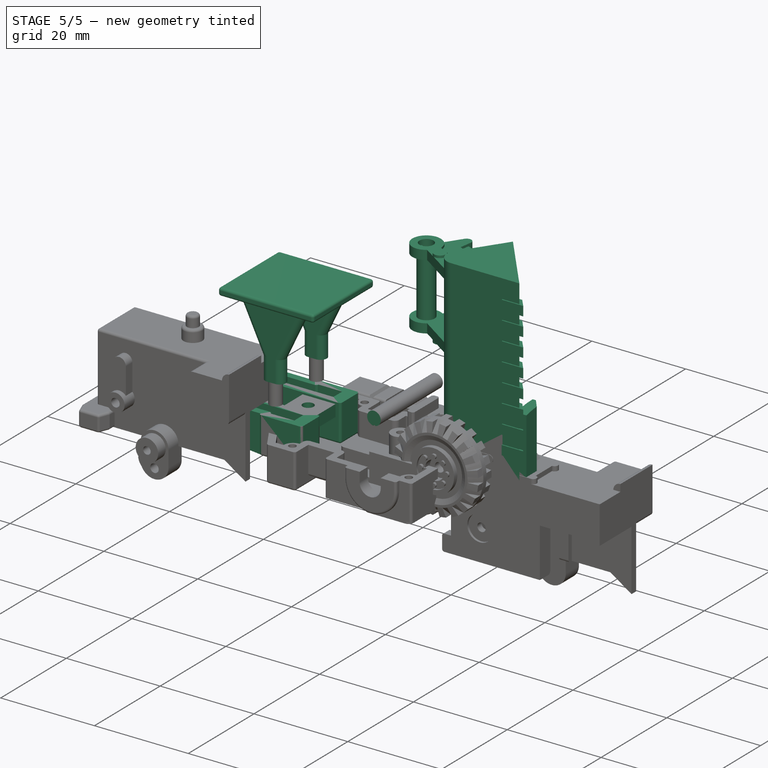
[diagram: stage 5 of 5 — iso view after this stage's code; geometry added in this stage tinted green]
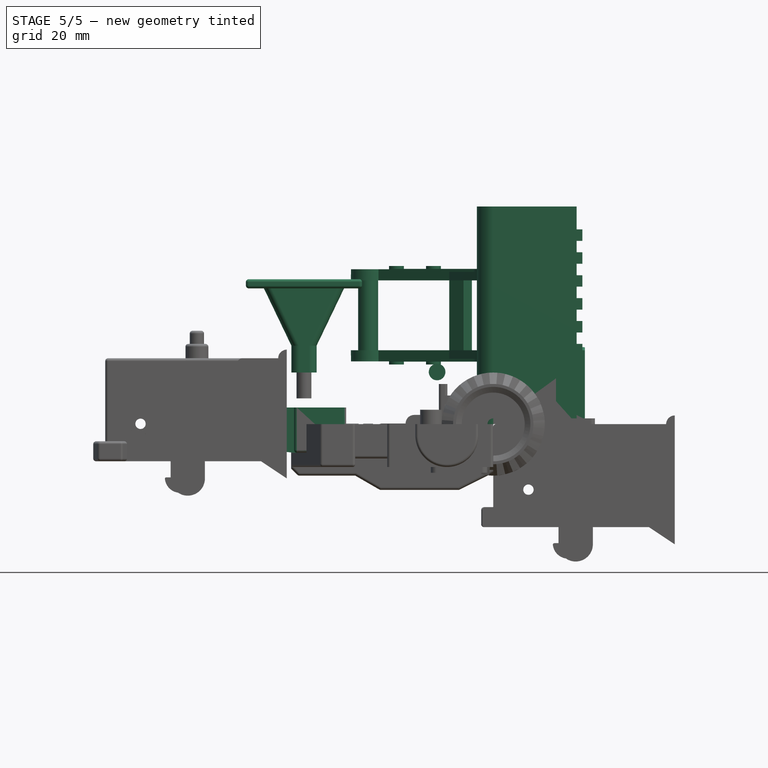
[diagram: stage 5 of 5 — front view after this stage's code; geometry added in this stage tinted green]
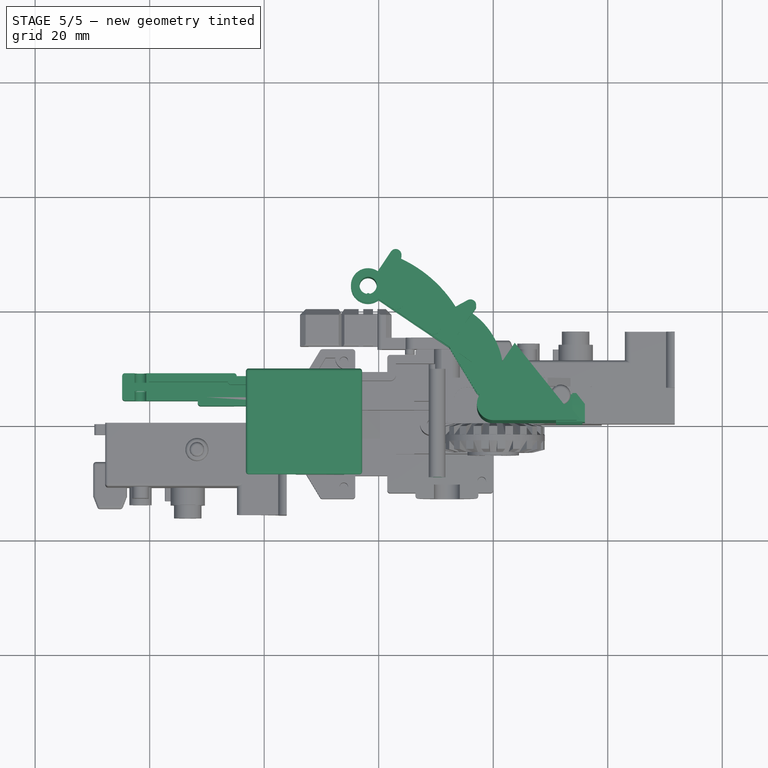
[diagram: stage 5 of 5 — top view after this stage's code; geometry added in this stage tinted green]
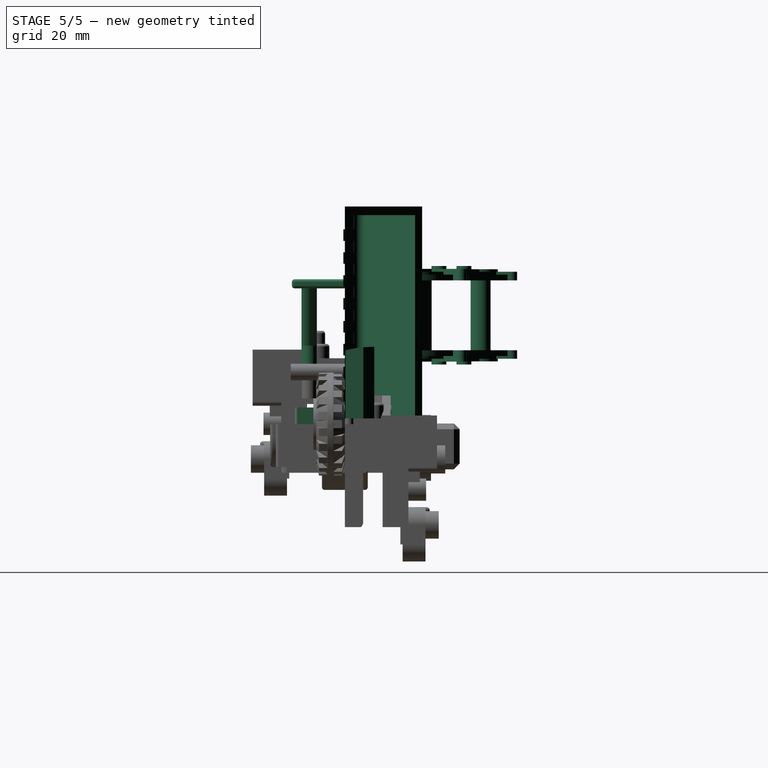
[diagram: stage 5 of 5 — right view after this stage's code; geometry added in this stage tinted green]
FEATURE [PartDesign::SubShapeBinder] Binder001
  BindCopyOnChange = 0
  BindMode = 2
  ClaimChildren = false
  Context = -> Body003 [Binder001.]
  Fuse = false
  MakeFace = true
  OffsetFill = false
  OffsetIntersection = false
  OffsetJoinType = 0
  OffsetOpenResult = false
  PartialLoad = false
  Refine = true
  Relative = true
  _Version = 2
FEATURE [Sketcher::SketchObject] Sketch097
  ArcFitTolerance = 1e-06
  AttachmentSupport = -> [Binder001]
  ExternalGeometry = -> [Binder001]
  FullyConstrained = true
  MakeInternals = false
  MapMode = 5
  Placement = pos=(0,0,2.5) rot=(1,0,0;3.14159rad)
  sketch-geometry (5):
    g0: LineSegment StartX=-26.8 StartY=3.1 StartZ=0 EndX=-33.8 EndY=3.1 EndZ=0
    g1: LineSegment StartX=-33.8 StartY=3.1 StartZ=0 EndX=-33.8 EndY=-3.1 EndZ=0
    g2: LineSegment StartX=-33.8 StartY=-3.1 StartZ=0 EndX=-26.8 EndY=-3.1 EndZ=0
    g3: LineSegment StartX=-26.8 StartY=-3.1 StartZ=0 EndX=-26.8 EndY=3.1 EndZ=0
    g4: Circle CenterX=-30.45 CenterY=0 CenterZ=0 NormalX=0 NormalY=0 NormalZ=1 AngleXU=0 Radius=1.15
  constraints (15):
    c: Coincident(g0,g1)
    c: Coincident(g1,g2)
    c: Coincident(g2,g3)
    c: Coincident(g3,g0)
    c: Horizontal(g0)
    c: Horizontal(g2)
    c: Vertical(g1)
    c: Vertical(g3)
    c: DistanceY(g3,g3) = 6.2
    c: DistanceY(g-1,g0) = 3.1
    c: DistanceX(g0,g0) = 7
    c: DistanceX(g2,g-1) = 26.8
    c: Coincident(g4,g-3)
    c: Equal(g4,g-3)
    c: DistanceX(g0,g4) = 3.35
FEATURE [PartDesign::Pad] Pad059
  Direction = (0,0,-1)
  Length = 2.5
  Length2 = 10
  Profile = -> Sketch097
  ReferenceAxis = -> Sketch097 [N_Axis]
  Refine = true
  Suppressed = false
  Type = 0
FEATURE [Sketcher::SketchObject] Sketch098
  ArcFitTolerance = 1e-06
  AttachmentSupport = -> [Pad059]
  ExternalGeometry = -> [Pad059]
  FullyConstrained = true
  MakeInternals = false
  MapMode = 5
  Placement = pos=(0,0,9e-16) rot=(1,0,0;3.14159rad)
  sketch-geometry (8):
    g0: LineSegment StartX=-26.8 StartY=-3.1 StartZ=0 EndX=-34.8 EndY=-3.1 EndZ=0
    g1: LineSegment StartX=-34.8 StartY=-3.1 StartZ=0 EndX=-34.8 EndY=-8.8 EndZ=0
    g2: LineSegment StartX=-34.8 StartY=-8.8 StartZ=0 EndX=-26.8 EndY=-8.8 EndZ=0
    g3: LineSegment StartX=-26.8 StartY=-8.8 StartZ=0 EndX=-26.8 EndY=-3.1 EndZ=0
    g4: LineSegment StartX=-26.8 StartY=3.1 StartZ=0 EndX=-26.8 EndY=8.8 EndZ=0
    g5: LineSegment StartX=-26.8 StartY=8.8 StartZ=0 EndX=-34.8 EndY=8.8 EndZ=0
    g6: LineSegment StartX=-34.8 StartY=8.8 StartZ=0 EndX=-34.8 EndY=3.1 EndZ=0
    g7: LineSegment StartX=-34.8 StartY=3.1 StartZ=0 EndX=-26.8 EndY=3.1 EndZ=0
  constraints (22):
    c: Coincident(g0,g1)
    c: Coincident(g1,g2)
    c: Coincident(g2,g3)
    c: Coincident(g3,g0)
    c: Horizontal(g0)
    c: Horizontal(g2)
    c: Vertical(g1)
    c: Vertical(g3)
    c: Coincident(g0,g-5)
    c: Coincident(g4,g5)
    c: Coincident(g5,g6)
    c: Coincident(g6,g7)
    c: Coincident(g7,g4)
    c: Vertical(g4)
    c: Vertical(g6)
    c: Horizontal(g5)
    c: Horizontal(g7)
    c: Coincident(g4,g-4)
    c: DistanceY(g4,g4) = 5.7
    c: DistanceY(g3,g3) = 5.7
    c: DistanceX(g2,g2) = 8
    c: DistanceX(g5,g5) = 8
FEATURE [PartDesign::Pad] Pad060
  BaseFeature = -> Pad059
  Direction = (0,0,-1)
  Length = 2.9
  Length2 = 10
  Profile = -> Sketch098
  ReferenceAxis = -> Sketch098 [N_Axis]
  Refine = true
  Reversed = true
  Suppressed = false
  Type = 0
FEATURE [PartDesign::Pad] Pad061
  BaseFeature = -> Pad060
  Direction = (0,0,-1)
  Length = 5
  Length2 = 10
  Profile = -> Pad060 [Face12]
  Refine = true
  Suppressed = false
  Type = 0
FEATURE [Sketcher::SketchObject] Sketch099
  ArcFitTolerance = 1e-06
  AttachmentSupport = -> [Pad061]
  ExternalGeometry = -> [Pad061]
  FullyConstrained = true
  MakeInternals = false
  MapMode = 5
  Placement = pos=(0,-8.8,0) rot=(1,0,0;1.5708rad)
  sketch-geometry (4):
    g0: LineSegment StartX=-34.8 StartY=-5 StartZ=0 EndX=-44.8 EndY=-4 EndZ=0
    g1: LineSegment StartX=-44.8 StartY=-4 StartZ=0 EndX=-44.8 EndY=2.9 EndZ=0
    g2: LineSegment StartX=-34.8 StartY=2.9 StartZ=0 EndX=-44.8 EndY=2.9 EndZ=0
    g3: LineSegment StartX=-34.8 StartY=2.9 StartZ=0 EndX=-34.8 EndY=-5 EndZ=0
  constraints (10):
    c: Coincident(g0,g-3)
    c: Coincident(g1,g0)
    c: Vertical(g1)
    c: Coincident(g2,g-3)
    c: Coincident(g2,g1)
    c: Horizontal(g2)
    c: DistanceX(g2,g2) = 10
    c: DistanceY(g1,g1) = 6.9
    c: Coincident(g3,g2)
    c: Coincident(g3,g0)
FEATURE [PartDesign::Pad] Pad062
  BaseFeature = -> Pad061
  Direction = (0,-1,2e-16)
  Length = 17.6
  Length2 = 10
  Profile = -> Sketch099
  ReferenceAxis = -> Sketch099 [N_Axis]
  Refine = true
  Reversed = true
  Suppressed = false
  Type = 0
FEATURE [Sketcher::SketchObject] Sketch100
  ArcFitTolerance = 1e-06
  AttachmentSupport = -> [Pad062]
  ExternalGeometry = -> [Pad062]
  FullyConstrained = true
  MakeInternals = false
  MapMode = 5
  Placement = pos=(0,0,-5) rot=(1,0,0;3.14159rad)
  sketch-geometry (4):
    g0: LineSegment StartX=-33.8 StartY=3.1 StartZ=0 EndX=-44.8 EndY=3.1 EndZ=0
    g1: LineSegment StartX=-44.8 StartY=3.1 StartZ=0 EndX=-44.8 EndY=-3.1 EndZ=0
    g2: LineSegment StartX=-44.8 StartY=-3.1 StartZ=0 EndX=-33.8 EndY=-3.1 EndZ=0
    g3: LineSegment StartX=-33.8 StartY=-3.1 StartZ=0 EndX=-33.8 EndY=3.1 EndZ=0
  constraints (10):
    c: Coincident(g0,g1)
    c: Coincident(g1,g2)
    c: Coincident(g2,g3)
    c: Coincident(g3,g0)
    c: Horizontal(g0)
    c: Horizontal(g2)
    c: Vertical(g1)
    c: Coincident(g0,g-3)
    c: PointOnObject(g1,g-5)
    c: Coincident(g2,g-4)
FEATURE [PartDesign::Pocket] Pocket049
  BaseFeature = -> Pad062
  Direction = (0,0,1)
  Length = 8
  Length2 = 5
  Profile = -> Sketch100
  ReferenceAxis = -> Sketch100 [N_Axis]
  Refine = true
  Suppressed = false
  Type = 0
FEATURE [Sketcher::SketchObject] Sketch101
  ArcFitTolerance = 1e-06
  AttachmentSupport = -> [Pocket049]
  ExternalGeometry = -> [Pocket049]
  FullyConstrained = true
  MakeInternals = false
  MapMode = 5
  Placement = pos=(0,0,-5) rot=(1,0,0;3.14159rad)
  sketch-geometry (8):
    g0: LineSegment StartX=-34.8 StartY=8.8 StartZ=0 EndX=-44.8 EndY=8.8 EndZ=0
    g1: LineSegment StartX=-44.8 StartY=8.8 StartZ=0 EndX=-44.8 EndY=8.3 EndZ=0
    g2: LineSegment StartX=-44.8 StartY=8.3 StartZ=0 EndX=-34.8 EndY=8.3 EndZ=0
    g3: LineSegment StartX=-34.8 StartY=8.3 StartZ=0 EndX=-34.8 EndY=8.8 EndZ=0
    g4: LineSegment StartX=-34.8 StartY=-8.8 StartZ=0 EndX=-34.8 EndY=-8.3 EndZ=0
    g5: LineSegment StartX=-34.8 StartY=-8.3 StartZ=0 EndX=-44.8 EndY=-8.3 EndZ=0
    g6: LineSegment StartX=-44.8 StartY=-8.3 StartZ=0 EndX=-44.8 EndY=-8.8 EndZ=0
    g7: LineSegment StartX=-44.8 StartY=-8.8 StartZ=0 EndX=-34.8 EndY=-8.8 EndZ=0
  constraints (22):
    c: Coincident(g0,g1)
    c: Coincident(g1,g2)
    c: Coincident(g2,g3)
    c: Coincident(g3,g0)
    c: Horizontal(g0)
    c: Horizontal(g2)
    c: Vertical(g1)
    c: Vertical(g3)
    c: Coincident(g0,g-4)
    c: PointOnObject(g1,g-7)
    c: DistanceY(g1,g1) = 0.5
    c: Coincident(g4,g5)
    c: Coincident(g5,g6)
    c: Coincident(g6,g7)
    c: Coincident(g7,g4)
    c: Vertical(g4)
    c: Vertical(g6)
    c: Horizontal(g5)
    c: Horizontal(g7)
    c: Coincident(g4,g-6)
    c: PointOnObject(g5,g-8)
    c: DistanceY(g6,g6) = 0.5
FEATURE [PartDesign::Pocket] Pocket050
  BaseFeature = -> Pocket049
  Direction = (0,0,1)
  Length = 8
  Length2 = 5
  Profile = -> Sketch101
  ReferenceAxis = -> Sketch101 [N_Axis]
  Refine = true
  Suppressed = false
  Type = 0
FEATURE [Sketcher::SketchObject] Sketch102
  ArcFitTolerance = 1e-06
  AttachmentSupport = -> [Pocket050]
  ExternalGeometry = -> [Pocket050]
  FullyConstrained = true
  MakeInternals = false
  MapMode = 5
  Placement = pos=(0,0,-5) rot=(1,0,0;3.14159rad)
  sketch-geometry (4):
    g0: LineSegment StartX=-33.8 StartY=3.1 StartZ=0 EndX=-33.8 EndY=-3.1 EndZ=0
    g1: LineSegment StartX=-33.8 StartY=-3.1 StartZ=0 EndX=-26.8 EndY=-3.1 EndZ=0
    g2: LineSegment StartX=-26.8 StartY=-3.1 StartZ=0 EndX=-26.8 EndY=3.1 EndZ=0
    g3: LineSegment StartX=-26.8 StartY=3.1 StartZ=0 EndX=-33.8 EndY=3.1 EndZ=0
  constraints (10):
    c: Coincident(g0,g1)
    c: Coincident(g1,g2)
    c: Coincident(g2,g3)
    c: Coincident(g3,g0)
    c: Vertical(g2)
    c: Horizontal(g1)
    c: Horizontal(g3)
    c: Coincident(g0,g-3)
    c: PointOnObject(g1,g-4)
    c: Coincident(g0,g-3)
FEATURE [PartDesign::Pocket] Pocket051
  BaseFeature = -> Pocket050
  Direction = (0,0,1)
  Length = 5
  Length2 = 5
  Profile = -> Sketch102
  ReferenceAxis = -> Sketch102 [N_Axis]
  Refine = true
  Suppressed = false
  Type = 0
FEATURE [Sketcher::SketchObject] Sketch103
  ArcFitTolerance = 1e-06
  AttachmentSupport = -> [Pocket051]
  ExternalGeometry = -> [Pocket051]
  FullyConstrained = true
  MakeInternals = false
  MapMode = 5
  Placement = pos=(0,8.8,0) rot=(0,0.707107,0.707107;3.14159rad)
  sketch-geometry (6):
    g0: LineSegment StartX=44.8 StartY=2.9 StartZ=0 EndX=64.8 EndY=2.9 EndZ=0
    g1: LineSegment StartX=64.8 StartY=2.9 StartZ=0 EndX=64.8 EndY=-4 EndZ=0
    g2: LineSegment StartX=44.8 StartY=2.9 StartZ=0 EndX=44.8 EndY=-5 EndZ=0
    g3: LineSegment StartX=44.8 StartY=-5 StartZ=0 EndX=55.3 EndY=-5 EndZ=0
    g4: LineSegment StartX=55.3 StartY=-5 StartZ=0 EndX=55.3 EndY=-4 EndZ=0
    g5: LineSegment StartX=55.3 StartY=-4 StartZ=0 EndX=64.8 EndY=-4 EndZ=0
  constraints (20):
    c: Coincident(g0,g-3)
    c: Horizontal(g0)
    c: Coincident(g1,g0)
    c: Vertical(g1)
    c: Coincident(g2,g0)
    c: Vertical(g2)
    c: Coincident(g3,g2)
    c: Horizontal(g3)
    c: Coincident(g4,g3)
    c: Vertical(g4)
    c: Coincident(g5,g4)
    c: Coincident(g5,g1)
    c: Horizontal(g5)
    c: DistanceX(g0,g0) = 20
    c: DistanceX(g-4,g0) = 38
    c: DistanceX(g3,g3) = 10.5
    c: DistanceY(g2,g2) = 7.9
    c: DistanceY(g1,g1) = 6.9
    c: DistanceY(g-4,g-4) = 7.9
    c: DistanceY(g-3,g0) = 6.9
FEATURE [PartDesign::Pad] Pad063
  BaseFeature = -> Pocket051
  Direction = (0,1,-2e-16)
  Length = 17.6
  Length2 = 10
  Profile = -> Sketch103
  ReferenceAxis = -> Sketch103 [N_Axis]
  Refine = true
  Reversed = true
  Suppressed = false
  Type = 0
FEATURE [Sketcher::SketchObject] Sketch104
  ArcFitTolerance = 1e-06
  AttachmentSupport = -> [Pad063]
  ExternalGeometry = -> [Pad063]
  FullyConstrained = true
  MakeInternals = false
  MapMode = 5
  Placement = pos=(0,-1.1e-15,-5) rot=(1,0,0;3.14159rad)
  sketch-geometry (8):
    g0: LineSegment StartX=-44.8 StartY=3.1 StartZ=0 EndX=-51.6 EndY=3.1 EndZ=0
    g1: LineSegment StartX=-51.6 StartY=3.1 StartZ=0 EndX=-51.6 EndY=4 EndZ=0
    g2: LineSegment StartX=-51.6 StartY=4 StartZ=0 EndX=-64.8 EndY=4 EndZ=0
    g3: LineSegment StartX=-44.8 StartY=-3.1 StartZ=0 EndX=-51.6 EndY=-3.1 EndZ=0
    g4: LineSegment StartX=-51.6 StartY=-3.1 StartZ=0 EndX=-51.6 EndY=-4 EndZ=0
    g5: LineSegment StartX=-51.6 StartY=-4 StartZ=0 EndX=-64.8 EndY=-4 EndZ=0
    g6: LineSegment StartX=-64.8 StartY=4 StartZ=0 EndX=-64.8 EndY=-4 EndZ=0
    g7: LineSegment StartX=-44.8 StartY=3.1 StartZ=0 EndX=-44.8 EndY=-3.1 EndZ=0
  constraints (22):
    c: Coincident(g0,g-5)
    c: Horizontal(g0)
    c: Coincident(g1,g0)
    c: Vertical(g1)
    c: Coincident(g2,g1)
    c: PointOnObject(g2,g-4)
    c: Horizontal(g2)
    c: Coincident(g3,g-6)
    c: Horizontal(g3)
    c: Coincident(g4,g3)
    c: Vertical(g4)
    c: Coincident(g5,g4)
    c: PointOnObject(g5,g-4)
    c: Horizontal(g5)
    c: DistanceX(g2,g2) = 13.2
    c: DistanceX(g5,g5) = 13.2
    c: DistanceY(g-4,g5) = 4.8
    c: DistanceY(g2,g-4) = 4.8
    c: Coincident(g6,g2)
    c: Coincident(g6,g5)
    c: Coincident(g7,g0)
    c: Coincident(g7,g3)
FEATURE [PartDesign::Pocket] Pocket052
  BaseFeature = -> Pad063
  Direction = (0,0,1)
  Length = 8
  Length2 = 5
  Profile = -> Sketch104
  ReferenceAxis = -> Sketch104 [N_Axis]
  Refine = true
  Suppressed = false
  Type = 0
FEATURE [Sketcher::SketchObject] Sketch105
  ArcFitTolerance = 1e-06
  AttachmentSupport = -> [Pocket052]
  ExternalGeometry = -> [Pocket052]
  FullyConstrained = true
  MakeInternals = false
  MapMode = 5
  Placement = pos=(0,8.8,-2.1e-15) rot=(0,0.707107,0.707107;3.14159rad)
  sketch-geometry (4):
    g0: LineSegment StartX=62.6 StartY=2.9 StartZ=0 EndX=62.6 EndY=0.1 EndZ=0
    g1: LineSegment StartX=60.6 StartY=2.9 StartZ=0 EndX=60.6 EndY=0.0999899 EndZ=0
    g2: ArcOfCircle CenterX=61.6 CenterY=0.1 CenterZ=0 NormalX=0 NormalY=0 NormalZ=1 AngleXU=0 Radius=1 StartAngle=3.1416 EndAngle=6.28319
    g3: LineSegment StartX=60.6 StartY=2.9 StartZ=0 EndX=62.6 EndY=2.9 EndZ=0
  constraints (13):
    c: PointOnObject(g0,g-3)
    c: Vertical(g0)
    c: PointOnObject(g1,g-3)
    c: Vertical(g1)
    c: Coincident(g2,g0)
    c: Coincident(g2,g1)
    c: Coincident(g3,g1)
    c: Coincident(g3,g0)
    c: DistanceX(g3,g3) = 2
    c: Diameter(g2) = 2
    c: DistanceY(g0,g2) = 0
    c: DistanceX(g0,g-4) = 2.2
    c: DistanceY(g-5,g0) = 4.1
FEATURE [PartDesign::Pocket] Pocket053
  BaseFeature = -> Pocket052
  Direction = (0,-1,2e-16)
  Length = 18
  Length2 = 5
  Profile = -> Sketch105
  ReferenceAxis = -> Sketch105 [N_Axis]
  Refine = true
  Suppressed = false
  Type = 0
FEATURE [Sketcher::SketchObject] Sketch106
  ArcFitTolerance = 1e-06
  AttachmentSupport = -> [Pocket053]
  ExternalGeometry = -> [Pocket053]
  FullyConstrained = true
  MakeInternals = false
  MapMode = 5
  Placement = pos=(0,-9e-16,-4) rot=(1,0,0;3.14159rad)
  sketch-geometry (8):
    g0: LineSegment StartX=-62.6 StartY=7.15 StartZ=0 EndX=-62.6 EndY=5.65 EndZ=0
    g1: LineSegment StartX=-62.6 StartY=5.65 StartZ=0 EndX=-60.6 EndY=5.65 EndZ=0
    g2: LineSegment StartX=-60.6 StartY=5.65 StartZ=0 EndX=-60.6 EndY=7.15 EndZ=0
    g3: LineSegment StartX=-60.6 StartY=7.15 StartZ=0 EndX=-62.6 EndY=7.15 EndZ=0
    g4: LineSegment StartX=-62.6 StartY=-5.65 StartZ=0 EndX=-62.6 EndY=-7.15 EndZ=0
    g5: LineSegment StartX=-62.6 StartY=-7.15 StartZ=0 EndX=-60.6 EndY=-7.15 EndZ=0
    g6: LineSegment StartX=-60.6 StartY=-7.15 StartZ=0 EndX=-60.6 EndY=-5.65 EndZ=0
    g7: LineSegment StartX=-60.6 StartY=-5.65 StartZ=0 EndX=-62.6 EndY=-5.65 EndZ=0
  constraints (26):
    c: Coincident(g0,g1)
    c: Coincident(g1,g2)
    c: Coincident(g2,g3)
    c: Coincident(g3,g0)
    c: Vertical(g0)
    c: Vertical(g2)
    c: Horizontal(g1)
    c: Horizontal(g3)
    c: Coincident(g4,g5)
    c: Coincident(g5,g6)
    c: Coincident(g6,g7)
    c: Coincident(g7,g4)
    c: Vertical(g4)
    c: Vertical(g6)
    c: Horizontal(g5)
    c: Horizontal(g7)
    c: DistanceX(g7,g7) = 2
    c: DistanceX(g3,g3) = 2
    c: DistanceY(g0,g0) = 1.5
    c: DistanceY(g4,g4) = 1.5
    c: DistanceX(g-8,g4) = 2.2
    c: DistanceX(g-5,g0) = 2.2
    c: DistanceY(g-4,g-4) = 4.8
    c: DistanceY(g-7,g-7) = 4.8
    c: DistanceY(g0,g-4) = 1.65
    c: DistanceY(g4,g-7) = 1.65
FEATURE [PartDesign::Pocket] Pocket054
  BaseFeature = -> Pocket053
  Direction = (0,0,1)
  Length = 5
  Length2 = 5
  Profile = -> Sketch106
  ReferenceAxis = -> Sketch106 [N_Axis]
  Refine = true
  Suppressed = false
  Type = 0
FEATURE [Sketcher::SketchObject] Sketch107
  ArcFitTolerance = 1e-06
  AttachmentSupport = -> [Pocket054]
  ExternalGeometry = -> [Pocket054]
  FullyConstrained = true
  MakeInternals = false
  MapMode = 5
  Placement = pos=(0,0,2.9) rot=(0,0,1;0rad)
  sketch-geometry (8):
    g0: LineSegment StartX=-62.6 StartY=7.15 StartZ=0 EndX=-62.6 EndY=5.65 EndZ=0
    g1: LineSegment StartX=-62.6 StartY=5.65 StartZ=0 EndX=-60.6 EndY=5.65 EndZ=0
    g2: LineSegment StartX=-60.6 StartY=5.65 StartZ=0 EndX=-60.6 EndY=7.15 EndZ=0
    g3: LineSegment StartX=-60.6 StartY=7.15 StartZ=0 EndX=-62.6 EndY=7.15 EndZ=0
    g4: LineSegment StartX=-62.6 StartY=-5.65 StartZ=0 EndX=-62.6 EndY=-7.15 EndZ=0
    g5: LineSegment StartX=-62.6 StartY=-7.15 StartZ=0 EndX=-60.6 EndY=-7.15 EndZ=0
    g6: LineSegment StartX=-60.6 StartY=-7.15 StartZ=0 EndX=-60.6 EndY=-5.65 EndZ=0
    g7: LineSegment StartX=-60.6 StartY=-5.65 StartZ=0 EndX=-62.6 EndY=-5.65 EndZ=0
  constraints (20):
    c: Coincident(g0,g1)
    c: Coincident(g1,g2)
    c: Coincident(g2,g3)
    c: Coincident(g3,g0)
    c: Vertical(g0)
    c: Vertical(g2)
    c: Horizontal(g1)
    c: Horizontal(g3)
    c: Coincident(g0,g-3)
    c: Coincident(g1,g-5)
    c: Coincident(g4,g5)
    c: Coincident(g5,g6)
    c: Coincident(g6,g7)
    c: Coincident(g7,g4)
    c: Vertical(g4)
    c: Vertical(g6)
    c: Horizontal(g5)
    c: Horizontal(g7)
    c: Coincident(g4,g-6)
    c: Coincident(g5,g-8)
FEATURE [PartDesign::Pad] Pad064
  BaseFeature = -> Pocket054
  Direction = (0,0,1)
  Length = 3
  Length2 = 10
  Profile = -> Sketch107
  ReferenceAxis = -> Sketch107 [N_Axis]
  Refine = true
  Reversed = true
  Suppressed = false
  Type = 0
FEATURE [Sketcher::SketchObject] Sketch108
  ArcFitTolerance = 1e-06
  AttachmentSupport = -> [Pad064]
  ExternalGeometry = -> [Pad064]
  FullyConstrained = true
  MakeInternals = false
  MapMode = 5
  Placement = pos=(0,-7.15,0) rot=(1,0,0;1.5708rad)
  sketch-geometry (5):
    g0: Circle CenterX=-61.6 CenterY=0.1 CenterZ=0 NormalX=0 NormalY=0 NormalZ=1 AngleXU=0 Radius=1
    g1: LineSegment StartX=-62.6 StartY=2.9 StartZ=0 EndX=-62.6 EndY=2.4 EndZ=0
    g2: LineSegment StartX=-62.6 StartY=2.4 StartZ=0 EndX=-60.6 EndY=2.4 EndZ=0
    g3: LineSegment StartX=-60.6 StartY=2.4 StartZ=0 EndX=-60.6 EndY=2.9 EndZ=0
    g4: LineSegment StartX=-60.6 StartY=2.9 StartZ=0 EndX=-62.6 EndY=2.9 EndZ=0
  constraints (13):
    c: Coincident(g0,g-3)
    c: Equal(g0,g-3)
    c: Coincident(g1,g2)
    c: Coincident(g2,g3)
    c: Coincident(g3,g4)
    c: Coincident(g4,g1)
    c: Vertical(g1)
    c: Vertical(g3)
    c: Horizontal(g2)
    c: Horizontal(g4)
    c: Coincident(g1,g-6)
    c: PointOnObject(g2,g-5)
    c: DistanceY(g3,g3) = 0.5
FEATURE [PartDesign::Pocket] Pocket055
  BaseFeature = -> Pad064
  Direction = (0,1,-2e-16)
  Length = 15
  Length2 = 5
  Profile = -> Sketch108
  ReferenceAxis = -> Sketch108 [N_Axis]
  Refine = true
  Suppressed = false
  Type = 0
FEATURE [Sketcher::SketchObject] Sketch109
  ArcFitTolerance = 1e-06
  AttachmentSupport = -> [Pocket055]
  ExternalGeometry = -> [Pocket055]
  FullyConstrained = true
  MakeInternals = false
  MapMode = 5
  Placement = pos=(0,-9e-16,-4) rot=(1,0,0;3.14159rad)
  sketch-geometry (6):
    g0: LineSegment StartX=-64.8 StartY=8.8 StartZ=0 EndX=-62.6 EndY=8.8 EndZ=0
    g1: LineSegment StartX=-62.6 StartY=8.8 StartZ=0 EndX=-64.8 EndY=6.6 EndZ=0
    g2: LineSegment StartX=-64.8 StartY=6.6 StartZ=0 EndX=-64.8 EndY=8.8 EndZ=0
    g3: LineSegment StartX=-64.8 StartY=-8.8 StartZ=0 EndX=-64.8 EndY=-6.6 EndZ=0
    g4: LineSegment StartX=-64.8 StartY=-6.6 StartZ=0 EndX=-62.6 EndY=-8.8 EndZ=0
    g5: LineSegment StartX=-62.6 StartY=-8.8 StartZ=0 EndX=-64.8 EndY=-8.8 EndZ=0
  constraints (16):
    c: Coincident(g0,g-4)
    c: PointOnObject(g0,g-3)
    c: Coincident(g1,g0)
    c: PointOnObject(g1,g-4)
    c: Coincident(g2,g1)
    c: Coincident(g2,g0)
    c: DistanceX(g0,g0) = 2.2
    c: DistanceY(g2,g2) = 2.2
    c: Coincident(g3,g-6)
    c: PointOnObject(g3,g-6)
    c: Coincident(g4,g3)
    c: Coincident(g5,g4)
    c: Coincident(g5,g3)
    c: PointOnObject(g4,g-7)
    c: DistanceX(g5,g5) = 2.2
    c: DistanceY(g3,g3) = 2.2
FEATURE [PartDesign::Pocket] Pocket056
  BaseFeature = -> Pocket055
  Direction = (0,0,1)
  Length = 1.5
  Length2 = 5
  Profile = -> Sketch109
  ReferenceAxis = -> Sketch109 [N_Axis]
  Refine = true
  Suppressed = false
  Type = 0
FEATURE [Sketcher::SketchObject] Sketch110
  ArcFitTolerance = 1e-06
  AttachmentSupport = -> [Pocket056]
  ExternalGeometry = -> [Pocket056]
  FullyConstrained = true
  MakeInternals = false
  MapMode = 5
  Placement = pos=(0,1.1e-15,2.9) rot=(0,0,1;0rad)
  sketch-geometry (20):
    g0: LineSegment StartX=-28.3 StartY=7.3 StartZ=0 EndX=-28.3 EndY=4.6 EndZ=0
    g1: LineSegment StartX=-28.3 StartY=4.6 StartZ=0 EndX=-50.1 EndY=4.6 EndZ=0
    g2: LineSegment StartX=-51 StartY=5.5 StartZ=0 EndX=-60.1 EndY=5.5 EndZ=0
    g3: LineSegment StartX=-60.1 StartY=5.5 StartZ=0 EndX=-60.1 EndY=7.3 EndZ=0
    g4: LineSegment StartX=-60.1 StartY=7.3 StartZ=0 EndX=-46.3 EndY=7.3 EndZ=0
    g5: LineSegment StartX=-45.8 StartY=6.8 StartZ=0 EndX=-33.8 EndY=6.8 EndZ=0
    g6: LineSegment StartX=-33.3 StartY=7.3 StartZ=0 EndX=-28.3 EndY=7.3 EndZ=0
    g7: ArcOfCircle CenterX=-51 CenterY=4.6 CenterZ=0 NormalX=0 NormalY=0 NormalZ=1 AngleXU=0 Radius=0.9 StartAngle=0 EndAngle=1.5708
    g8: ArcOfCircle CenterX=-45.8 CenterY=7.3 CenterZ=0 NormalX=0 NormalY=0 NormalZ=1 AngleXU=0 Radius=0.5 StartAngle=3.14159 EndAngle=4.71239
    g9: ArcOfCircle CenterX=-33.8 CenterY=7.3 CenterZ=0 NormalX=0 NormalY=0 NormalZ=1 AngleXU=0 Radius=0.5 StartAngle=4.71239 EndAngle=6.28319
    g10: LineSegment StartX=-60.1 StartY=-5.5 StartZ=0 EndX=-60.1 EndY=-7.3 EndZ=0
    g11: LineSegment StartX=-60.1 StartY=-7.3 StartZ=0 EndX=-46.3 EndY=-7.3 EndZ=0
    g12: LineSegment StartX=-33.3 StartY=-7.3 StartZ=0 EndX=-28.3 EndY=-7.3 EndZ=0
    g13: LineSegment StartX=-28.3 StartY=-7.3 StartZ=0 EndX=-28.3 EndY=-4.6 EndZ=0
    g14: LineSegment StartX=-28.3 StartY=-4.6 StartZ=0 EndX=-50.1 EndY=-4.6 EndZ=0
    g15: LineSegment StartX=-51 StartY=-5.5 StartZ=0 EndX=-60.1 EndY=-5.5 EndZ=0
    g16: ArcOfCircle CenterX=-51 CenterY=-4.6 CenterZ=0 NormalX=0 NormalY=0 NormalZ=1 AngleXU=0 Radius=0.9 StartAngle=4.71239 EndAngle=6.28319
    g17: ArcOfCircle CenterX=-45.8 CenterY=-7.3 CenterZ=0 NormalX=0 NormalY=0 NormalZ=1 AngleXU=0 Radius=0.5 StartAngle=1.5708 EndAngle=3.14159
    g18: ArcOfCircle CenterX=-33.8 CenterY=-7.3 CenterZ=0 NormalX=0 NormalY=0 NormalZ=1 AngleXU=0 Radius=0.5 StartAngle=4e-16 EndAngle=1.5708
    g19: LineSegment StartX=-45.8 StartY=-6.8 StartZ=0 EndX=-33.8 EndY=-6.8 EndZ=0
  constraints (67):
    c: Vertical(g10)
    c: Coincident(g13,g12)
    c: Horizontal(g12)
    c: Horizontal(g14)
    c: Horizontal(g15)
    c: Horizontal(g11)
    c: DistanceX(g13,g-12) = 1.5
    c: Vertical(g13)
    c: DistanceY(g13,g-12) = 1.5
    c: DistanceY(g-13,g12) = 1.5
    c: DistanceY(g-14,g18) = 1.5
    c: DistanceY(g18,g12) = 0
    c: DistanceX(g18,g18) = 0
    c: Coincident(g18,g12)
    c: Coincident(g17,g11)
    c: Radius(g17) = 0.5
    c: Coincident(g19,g17)
    c: Coincident(g19,g18)
    c: Horizontal(g19)
    c: Coincident(g16,g14)
    c: Coincident(g14,g13)
    c: Coincident(g15,g16)
    c: Coincident(g10,g15)
    c: Coincident(g10,g11)
    c: DistanceX(g-13,g12) = 1.5
    c: DistanceX(g-11,g14) = 1.5
    c: DistanceX(g16,g15) = 0
    c: DistanceX(g17,g17) = 0
    c: DistanceY(g16,g14) = 0
    c: DistanceY(g11,g17) = 0
    c: DistanceX(g11,g-15) = 1.5
    c: DistanceX(g-16,g10) = 0.5
    c: Coincident(g7,g1)
    c: Coincident(g0,g6)
    c: Coincident(g0,g1)
    c: Coincident(g6,g9)
    c: Coincident(g5,g9)
    c: Coincident(g5,g8)
    c: Coincident(g8,g4)
    c: Coincident(g3,g4)
    c: Coincident(g3,g2)
    c: DistanceX(g0,g-7) = 1.5
    c: Vertical(g0)
    c: Vertical(g3)
    c: Horizontal(g4)
    c: Horizontal(g2)
    c: Horizontal(g1)
    c: Horizontal(g5)
    c: Horizontal(g6)
    c: DistanceX(g9,g5) = 0
    c: DistanceX(g8,g5) = 0
    c: DistanceX(g2,g7) = 0
    c: DistanceY(g1,g7) = 0
    c: DistanceY(g8,g4) = 0
    c: DistanceY(g9,g6) = 0
    c: DistanceY(g-9,g2) = 1.5
    c: DistanceY(g4,g-10) = 1.5
    c: DistanceX(g-10,g3) = 0.5
    c: DistanceX(g-8,g1) = 1.5
    c: DistanceX(g4,g-10) = 1.5
    c: DistanceX(g-8,g-8) = 24.8
    c: Coincident(g2,g7)
    c: DistanceY(g0,g-7) = 1.5
    c: DistanceY(g5,g-5) = 1.5
    c: DistanceX(g-6,g6) = 1.5
    c: DistanceY(g-8,g0) = 1.5
    c: DistanceY(g15,g-16) = 1.5
FEATURE [PartDesign::Pocket] Pocket057
  BaseFeature = -> Pocket056
  Direction = (0,0,-1)
  Length = 3
  Length2 = 5
  Profile = -> Sketch110
  ReferenceAxis = -> Sketch110 [N_Axis]
  Refine = true
  Suppressed = false
  Type = 0
FEATURE [Sketcher::SketchObject] Sketch111
  ArcFitTolerance = 1e-06
  AttachmentSupport = -> [XY_Plane004]
  FullyConstrained = true
  MakeInternals = false
  MapMode = 5
  sketch-geometry (4):
    g0: LineSegment StartX=3.75398 StartY=13.5 StartZ=0 EndX=14.5725 EndY=0 EndZ=0
    g1: LineSegment StartX=3.75398 StartY=13.5 StartZ=0 EndX=-2.36 EndY=4.43565 EndZ=0
    g2: ArcOfCircle CenterX=0 CenterY=2.84565 CenterZ=0 NormalX=0 NormalY=0 NormalZ=1 AngleXU=0 Radius=2.84565 StartAngle=2.54872 EndAngle=4.71239
    g3: LineSegment StartX=-5e-16 StartY=0 StartZ=0 EndX=14.5725 EndY=0 EndZ=0
  constraints (12):
    c: PointOnObject(g0,g-1)
    c: Coincident(g1,g0)
    c: Coincident(g2,g1)
    c: Distance(g0) = 17.3
    c: Coincident(g3,g2)
    c: Coincident(g3,g0)
    c: DistanceY(g2,g0) = 13.5
    c: Coincident(g2,g-1)
    c: Angle(g3,g1) = 0.977384
    c: DistanceX(g2,g2) = 0
    c: DistanceX(g1,g2) = 2.36
    c: DistanceY(g2,g1) = 1.59
FEATURE [PartDesign::Pad] Pad065
  Direction = (0,0,1)
  Length = 38
  Length2 = 10
  Profile = -> Sketch111
  ReferenceAxis = -> Sketch111 [N_Axis]
  Refine = true
  Suppressed = false
  Type = 0
FEATURE [Sketcher::SketchObject] Sketch112
  ArcFitTolerance = 1e-06
  AttachmentSupport = -> [Pad065]
  ExternalGeometry = -> [Pad065]
  FullyConstrained = false
  MakeInternals = false
  MapMode = 5
  Placement = pos=(0,0,38) rot=(0,0,1;0rad)
  sketch-geometry (6):
    g0: LineSegment StartX=4.73641 StartY=12.2741 StartZ=0 EndX=-1.11618 EndY=3.59725 EndZ=0
    g1: ArcOfCircle CenterX=0 CenterY=2.84565 CenterZ=0 NormalX=0 NormalY=0 NormalZ=1 AngleXU=0 Radius=1.34565 StartAngle=2.54896 EndAngle=4.71239
    g2: LineSegment StartX=0 StartY=1.5 StartZ=0 EndX=13.3704 EndY=1.5 EndZ=0
    g3: LineSegment [constr] StartX=1.25379 StartY=9.79331 StartZ=0 EndX=2.49735 EndY=8.95452 EndZ=0
    g4: LineSegment [constr] StartX=6.46619 StartY=7.71687 StartZ=0 EndX=7.63671 EndY=8.65489 EndZ=0
    g5: LineSegment StartX=4.73641 StartY=12.2741 StartZ=0 EndX=13.3704 EndY=1.5 EndZ=0
  constraints (19):
    c: Coincident(g1,g0)
    c: PointOnObject(g1,g-2)
    c: Coincident(g2,g1)
    c: Horizontal(g2)
    c: Parallel(g0,g-4)
    c: DistanceY(g-6,g2) = 1.5
    c: Diameter(g-5) = 5.69129
    c: Coincident(g1,g-5)
    c: PointOnObject(g3,g-4)
    c: PointOnObject(g3,g0)
    c: Angle(g-4,g3) = 1.5708
    c: Distance(g3) = 1.5
    c: PointOnObject(g4,g-3)
    c: Angle(g4,g-3) = 1.5708
    c: Distance(g4) = 1.5
    c: PointOnObject(g0,g-3)
    c: PointOnObject(g2,g-3)
    c: Coincident(g5,g0)
    c: Coincident(g5,g2)
FEATURE [PartDesign::Pocket] Pocket058
  BaseFeature = -> Pad065
  Direction = (0,0,-1)
  Length = 36.5
  Length2 = 5
  Profile = -> Sketch112
  ReferenceAxis = -> Sketch112 [N_Axis]
  Refine = true
  Suppressed = false
  Type = 0
FEATURE [Sketcher::SketchObject] Sketch113
  ArcFitTolerance = 1e-06
  AttachmentSupport = -> [Pocket058]
  ExternalGeometry = -> [Pocket058]
  FullyConstrained = true
  MakeInternals = false
  MapMode = 5
  Placement = pos=(0,0,38) rot=(0,0,1;0rad)
  sketch-geometry (4):
    g0: LineSegment StartX=4.73641 StartY=12.2741 StartZ=0 EndX=13.3704 EndY=1.5 EndZ=0
    g1: LineSegment StartX=13.3704 StartY=1.5 StartZ=0 EndX=0 EndY=1.5 EndZ=0
    g2: LineSegment StartX=4.73641 StartY=12.2741 StartZ=0 EndX=-1.11618 EndY=3.59725 EndZ=0
    g3: ArcOfCircle CenterX=8.7599e-06 CenterY=2.84565 CenterZ=0 NormalX=0 NormalY=0 NormalZ=1 AngleXU=0 Radius=1.34565 StartAngle=2.54897 EndAngle=4.71238
  constraints (9):
    c: Coincident(g0,g-3)
    c: Coincident(g0,g-5)
    c: Coincident(g2,g0)
    c: Coincident(g2,g-4)
    c: Coincident(g3,g1)
    c: Coincident(g3,g2)
    c: Coincident(g1,g-5)
    c: Tangent(g3,g-4)
    c: Coincident(g1,g0)
FEATURE [PartDesign::Pad] Pad066
  BaseFeature = -> Pocket058
  Direction = (0,0,1)
  Length = 1.5
  Length2 = 10
  Profile = -> Sketch113
  ReferenceAxis = -> Sketch113 [N_Axis]
  Refine = true
  Reversed = true
  Suppressed = false
  Type = 0
FEATURE [Sketcher::SketchObject] Sketch114
  ArcFitTolerance = 1e-06
  AttachmentSupport = -> [Pad066]
  ExternalGeometry = -> [Pad066]
  FullyConstrained = true
  MakeInternals = false
  MapMode = 5
  Placement = pos=(0,0,0) rot=(1,0,0;1.5708rad)
  sketch-geometry (32):
    g0: LineSegment StartX=10.9725 StartY=34 StartZ=0 EndX=10.9725 EndY=32 EndZ=0
    g1: LineSegment StartX=10.9725 StartY=32 StartZ=0 EndX=15.5725 EndY=32 EndZ=0
    g2: LineSegment StartX=15.5725 StartY=32 StartZ=0 EndX=15.5725 EndY=34 EndZ=0
    g3: LineSegment StartX=15.5725 StartY=34 StartZ=0 EndX=10.9725 EndY=34 EndZ=0
    g4: LineSegment StartX=10.9725 StartY=30 StartZ=0 EndX=10.9725 EndY=28 EndZ=0
    g5: LineSegment StartX=10.9725 StartY=28 StartZ=0 EndX=15.5725 EndY=28 EndZ=0
    g6: LineSegment StartX=15.5725 StartY=28 StartZ=0 EndX=15.5725 EndY=30 EndZ=0
    g7: LineSegment StartX=15.5725 StartY=30 StartZ=0 EndX=10.9725 EndY=30 EndZ=0
    g8: LineSegment StartX=10.9725 StartY=26 StartZ=0 EndX=10.9725 EndY=24 EndZ=0
    g9: LineSegment StartX=10.9725 StartY=24 StartZ=0 EndX=15.5725 EndY=24 EndZ=0
    g10: LineSegment StartX=15.5725 StartY=24 StartZ=0 EndX=15.5725 EndY=26 EndZ=0
    g11: LineSegment StartX=15.5725 StartY=26 StartZ=0 EndX=10.9725 EndY=26 EndZ=0
    g12: LineSegment StartX=10.9725 StartY=22 StartZ=0 EndX=10.9725 EndY=20 EndZ=0
    g13: LineSegment StartX=10.9725 StartY=20 StartZ=0 EndX=15.5725 EndY=20 EndZ=0
    g14: LineSegment StartX=15.5725 StartY=20 StartZ=0 EndX=15.5725 EndY=22 EndZ=0
    g15: LineSegment StartX=15.5725 StartY=22 StartZ=0 EndX=10.9725 EndY=22 EndZ=0
    g16: LineSegment StartX=10.9725 StartY=18 StartZ=0 EndX=10.9725 EndY=16 EndZ=0
    g17: LineSegment StartX=10.9725 StartY=16 StartZ=0 EndX=15.5725 EndY=16 EndZ=0
    g18: LineSegment StartX=15.5725 StartY=16 StartZ=0 EndX=15.5725 EndY=18 EndZ=0
    g19: LineSegment StartX=15.5725 StartY=18 StartZ=0 EndX=10.9725 EndY=18 EndZ=0
    g20: LineSegment StartX=10.9725 StartY=14 StartZ=0 EndX=10.9725 EndY=12 EndZ=0
    g21: LineSegment StartX=10.9725 StartY=12 StartZ=0 EndX=15.5725 EndY=12 EndZ=0
    g22: LineSegment StartX=15.5725 StartY=12 StartZ=0 EndX=15.5725 EndY=14 EndZ=0
    g23: LineSegment StartX=15.5725 StartY=14 StartZ=0 EndX=10.9725 EndY=14 EndZ=0
    g24: LineSegment StartX=10.9725 StartY=10 StartZ=0 EndX=10.9725 EndY=8 EndZ=0
    g25: LineSegment StartX=10.9725 StartY=8 StartZ=0 EndX=15.5725 EndY=8 EndZ=0
    g26: LineSegment StartX=15.5725 StartY=8 StartZ=0 EndX=15.5725 EndY=10 EndZ=0
    g27: LineSegment StartX=15.5725 StartY=10 StartZ=0 EndX=10.9725 EndY=10 EndZ=0
    g28: LineSegment StartX=10.9725 StartY=6 StartZ=0 EndX=10.9725 EndY=4 EndZ=0
    g29: LineSegment StartX=10.9725 StartY=4 StartZ=0 EndX=15.5725 EndY=4 EndZ=0
    g30: LineSegment StartX=15.5725 StartY=4 StartZ=0 EndX=15.5725 EndY=6 EndZ=0
    g31: LineSegment StartX=15.5725 StartY=6 StartZ=0 EndX=10.9725 EndY=6 EndZ=0
  constraints (97):
    c: Coincident(g0,g1)
    c: Coincident(g1,g2)
    c: Coincident(g2,g3)
    c: Coincident(g3,g0)
    c: Vertical(g0)
    c: Vertical(g2)
    c: Horizontal(g1)
    c: Horizontal(g3)
    c: Coincident(g4,g5)
    c: Coincident(g5,g6)
    c: Coincident(g6,g7)
    c: Coincident(g7,g4)
    c: Vertical(g4)
    c: Vertical(g6)
    c: Horizontal(g5)
    c: Horizontal(g7)
    c: Coincident(g8,g9)
    c: Coincident(g9,g10)
    c: Coincident(g10,g11)
    c: Coincident(g11,g8)
    c: Vertical(g8)
    c: Vertical(g10)
    c: Horizontal(g9)
    c: Horizontal(g11)
    c: Coincident(g12,g13)
    c: Coincident(g13,g14)
    c: Coincident(g14,g15)
    c: Coincident(g15,g12)
    c: Vertical(g12)
    c: Vertical(g14)
    c: Horizontal(g13)
    c: Horizontal(g15)
    c: Coincident(g16,g17)
    c: Coincident(g17,g18)
    c: Coincident(g18,g19)
    c: Coincident(g19,g16)
    c: Vertical(g16)
    c: Vertical(g18)
    c: Horizontal(g17)
    c: Horizontal(g19)
    c: Coincident(g20,g21)
    c: Coincident(g21,g22)
    c: Coincident(g22,g23)
    c: Coincident(g23,g20)
    c: Vertical(g20)
    c: Vertical(g22)
    c: Horizontal(g21)
    c: Horizontal(g23)
    c: Coincident(g24,g25)
    c: Coincident(g25,g26)
    c: Coincident(g26,g27)
    c: Coincident(g27,g24)
    c: Vertical(g24)
    c: Vertical(g26)
    c: Horizontal(g25)
    c: Horizontal(g27)
    c: Coincident(g28,g29)
    c: Coincident(g29,g30)
    c: Coincident(g30,g31)
    c: Coincident(g31,g28)
    c: Vertical(g28)
    c: Vertical(g30)
    c: Horizontal(g29)
    c: Horizontal(g31)
    c: DistanceY(g30,g30) = 2
    c: DistanceY(g26,g26) = 2
    c: DistanceY(g22,g22) = 2
    c: DistanceY(g18,g18) = 2
    c: DistanceY(g14,g14) = 2
    c: DistanceY(g10,g10) = 2
    c: DistanceY(g6,g6) = 2
    c: DistanceY(g2,g2) = 2
    c: DistanceY(g4,g0) = 2
    c: DistanceY(g8,g4) = 2
    c: DistanceY(g12,g8) = 2
    c: DistanceY(g16,g12) = 2
    c: DistanceY(g20,g16) = 2
    c: DistanceX(g20,g16) = 0
    c: DistanceX(g16,g12) = 0
    c: DistanceX(g12,g8) = 0
    c: DistanceX(g4,g8) = 0
    c: DistanceX(g4,g0) = 0
    c: DistanceX(g3,g3) = 4.6
    c: DistanceX(g7,g7) = 4.6
    c: DistanceX(g11,g11) = 4.6
    c: DistanceX(g15,g15) = 4.6
    c: DistanceX(g19,g19) = 4.6
    c: DistanceX(g23,g23) = 4.6
    c: DistanceX(g27,g27) = 4.6
    c: DistanceX(g31,g31) = 4.6
    c: DistanceX(g20,g24) = 0
    c: DistanceX(g24,g28) = 0
    c: DistanceY(g24,g20) = 2
    c: DistanceY(g28,g24) = 2
    c: DistanceX(g-3,g2) = 1
    c: DistanceY(g2,g-3) = 4
    c: DistanceY(g-3,g29) = 4
FEATURE [PartDesign::Pad] Pad067
  BaseFeature = -> Pad066
  Direction = (0,-1,2e-16)
  Length = 0.25
  Length2 = 10
  Profile = -> Sketch114
  ReferenceAxis = -> Sketch114 [N_Axis]
  Refine = true
  Suppressed = false
  Type = 0
FEATURE [PartDesign::Pad] Pad068
  BaseFeature = -> Pad067
  Direction = (0,-1,2e-16)
  Length = 1.75
  Length2 = 10
  Profile = -> Sketch114
  ReferenceAxis = -> Sketch114 [N_Axis]
  Refine = true
  Reversed = true
  Suppressed = false
  Type = 0
FEATURE [Sketcher::SketchObject] Sketch115
  ArcFitTolerance = 1e-06
  AttachmentSupport = -> [Pad068]
  ExternalGeometry = -> [Pad068]
  FullyConstrained = true
  MakeInternals = false
  MapMode = 5
  Placement = pos=(0,0,34) rot=(0,0,1;0rad)
  sketch-geometry (3):
    g0: LineSegment StartX=15.5725 StartY=1.75 StartZ=0 EndX=15.5725 EndY=-0.25 EndZ=0
    g1: LineSegment StartX=15.5725 StartY=1.75 StartZ=0 EndX=13.9697 EndY=1.75 EndZ=0
    g2: LineSegment StartX=13.9697 StartY=1.75 StartZ=0 EndX=15.5725 EndY=-0.25 EndZ=0
  constraints (7):
    c: Coincident(g0,g-4)
    c: Coincident(g0,g-3)
    c: Coincident(g1,g0)
    c: PointOnObject(g1,g-4)
    c: Coincident(g2,g1)
    c: Coincident(g2,g0)
    c: Parallel(g-5,g2)
FEATURE [PartDesign::Pocket] Pocket059
  BaseFeature = -> Pad068
  Direction = (0,0,-1)
  Length = 30
  Length2 = 5
  Profile = -> Sketch115
  ReferenceAxis = -> Sketch115 [N_Axis]
  Refine = true
  Suppressed = false
  Type = 0
FEATURE [Sketcher::SketchObject] Sketch116
  ArcFitTolerance = 1e-06
  AttachmentOffset = pos=(0,0,-10.9) rot=(0,0,1;0rad)
  AttachmentSupport = -> [Pocket059]
  ExternalGeometry = -> [Pocket059]
  FullyConstrained = true
  MakeInternals = false
  MapMode = 5
  Placement = pos=(0,0,27.1) rot=(0,0,1;0rad)
  sketch-geometry (28):
    g0: LineSegment [constr] StartX=1.40537 StartY=10.018 StartZ=0 EndX=-2.2853 EndY=4.54639 EndZ=0
    g1: LineSegment StartX=1.40537 StartY=10.018 StartZ=0 EndX=-2.2853 EndY=4.54639 EndZ=0
    g2: LineSegment StartX=1.40537 StartY=10.018 StartZ=0 EndX=-6.22177 EndY=15.1626 EndZ=0
    g3: LineSegment StartX=-2.36983 StartY=9.42828 StartZ=0 EndX=-20.0283 EndY=21.3391 EndZ=0
    g4: LineSegment [constr] StartX=-2.90562 StartY=12.9258 StartZ=0 EndX=-4.35952 EndY=10.7703 EndZ=0
    g5: LineSegment StartX=-2.36983 StartY=9.42828 StartZ=0 EndX=-3.04086 EndY=8.43344 EndZ=0
    g6: LineSegment [constr] StartX=-2.36983 StartY=9.42828 StartZ=0 EndX=-0.0485276 EndY=7.86254 EndZ=0
    g7: ArcOfCircle CenterX=-0.719559 CenterY=6.8677 CenterZ=0 NormalX=0 NormalY=0 NormalZ=1 AngleXU=0 Radius=2.8 StartAngle=2.54818 EndAngle=4.11898
    g8: LineSegment [constr] StartX=-3.04086 StartY=8.43344 StartZ=0 EndX=-0.719559 EndY=6.8677 EndZ=0
    g9: ArcOfCircle CenterX=-21.8495 CenterY=23.7231 CenterZ=0 NormalX=0 NormalY=0 NormalZ=1 AngleXU=0 Radius=3 StartAngle=0.977384 EndAngle=5.36474
    g10: LineSegment StartX=-6.22177 StartY=15.1626 StartZ=0 EndX=-3.14621 EndY=19.7223 EndZ=0
    g11: ArcOfCircle CenterX=-3.97525 CenterY=20.2815 CenterZ=0 NormalX=0 NormalY=0 NormalZ=1 AngleXU=0 Radius=1 StartAngle=5.68977 EndAngle=8.35015
    g12: LineSegment StartX=-4.45131 StartY=21.1609 StartZ=0 EndX=-10.367 EndY=17.9586 EndZ=0
    g13: LineSegment StartX=-10.367 StartY=17.9586 StartZ=0 EndX=-17.0822 EndY=22.488 EndZ=0
    g14: LineSegment StartX=-17.0822 StartY=22.488 StartZ=0 EndX=-16.033 EndY=28.9729 EndZ=0
    g15: ArcOfCircle CenterX=-17.0267 CenterY=29.0848 CenterZ=0 NormalX=0 NormalY=0 NormalZ=1 AngleXU=0 Radius=1 StartAngle=6.17099 EndAngle=8.83137
    g16: LineSegment StartX=-17.8558 StartY=29.644 StartZ=0 EndX=-20.1719 EndY=26.2102 EndZ=0
    g17: LineSegment [constr] StartX=-13.7246 StartY=20.2233 StartZ=0 EndX=-15.1785 EndY=18.0678 EndZ=0
    g18: LineSegment [constr] StartX=-3.14621 StartY=19.7223 StartZ=0 EndX=-3.97525 EndY=20.2815 EndZ=0
    g19: LineSegment [constr] StartX=-3.97525 StartY=20.2815 StartZ=0 EndX=-4.45131 EndY=21.1609 EndZ=0
    g20: LineSegment [constr] StartX=-6.22177 StartY=15.1626 StartZ=0 EndX=-10.367 EndY=17.9586 EndZ=0
    g21: LineSegment [constr] StartX=-3.97525 StartY=20.2815 StartZ=0 EndX=-7.05081 EndY=15.7218 EndZ=0
    g22: LineSegment [constr] StartX=-3.97525 StartY=20.2815 StartZ=0 EndX=-17.0267 EndY=29.0848 EndZ=0
    g23: LineSegment [constr] StartX=-17.0267 StartY=29.0848 StartZ=0 EndX=-17.8558 EndY=29.644 EndZ=0
    g24: LineSegment [constr] StartX=-17.0267 StartY=29.0848 StartZ=0 EndX=-16.033 EndY=28.9729 EndZ=0
    g25: LineSegment [constr] StartX=-20.1719 StartY=26.2102 StartZ=0 EndX=-21.8495 EndY=23.7231 EndZ=0
    g26: LineSegment [constr] StartX=-20.0283 StartY=21.3391 StartZ=0 EndX=-24.9197 EndY=24.6383 EndZ=0
    g27: LineSegment [constr] StartX=-24.9197 StartY=24.6383 StartZ=0 EndX=-22.1237 EndY=28.7835 EndZ=0
  constraints (82):
    c: PointOnObject(g0,g-3)
    c: Distance(g-3,g0) = 4.2
    c: Distance(g0) = 6.6
    c: PointOnObject(g-4,g0)
    c: Coincident(g1,g0)
    c: Coincident(g1,g0)
    c: Coincident(g2,g0)
    c: PointOnObject(g4,g2)
    c: PointOnObject(g4,g3)
    c: Angle(g4,g2) = 1.5708
    c: Angle(g3,g4) = 1.5708
    c: Distance(g4) = 2.6
    c: Angle(g2,g1) = 1.5708
    c: Coincident(g5,g3)
    c: Angle(g3,g5) = 1.5708
    c: Coincident(g6,g3)
    c: PointOnObject(g6,g1)
    c: Angle(g5,g6) = 1.5708
    c: Distance(g6) = 2.8
    c: Coincident(g7,g0)
    c: Coincident(g7,g5)
    c: Coincident(g8,g5)
    c: PointOnObject(g8,g1)
    c: Angle(g8,g5) = 1.5708
    c: Coincident(g7,g8)
    c: Distance(g2) = 9.2
    c: Distance(g3) = 21.3
    c: Coincident(g9,g3)
    c: Radius(g9) = 3
    c: Coincident(g10,g2)
    c: Coincident(g11,g10)
    c: Coincident(g12,g11)
    c: Coincident(g13,g12)
    c: Coincident(g14,g13)
    c: Coincident(g15,g14)
    c: Coincident(g16,g15)
    c: Coincident(g9,g16)
    c: Parallel(g13,g3)
    c: Angle(g2,g10) = 1.5708
    c: Symmetric(g13,g13,g17)
    c: PointOnObject(g17,g3)
    c: Angle(g17,g13) = 1.5708
    c: Distance(g4,g2) = 4
    c: Distance(g17) = 2.6
    c: Distance(g2,g12) = 5
    c: Diameter(g11) = 2
    c: Diameter(g15) = 2
    c: Parallel(g16,g10)
    c: Coincident(g18,g10)
    c: Coincident(g18,g11)
    c: Angle(g18,g10) = 1.5708
    c: Coincident(g19,g11)
    c: Coincident(g19,g11)
    c: Angle(g12,g19) = 1.5708
    c: Coincident(g20,g2)
    c: Coincident(g20,g12)
    c: Coincident(g21,g11)
    c: PointOnObject(g21,g20)
    c: Angle(g21,g20) = 1.5708
    c: Distance(g21) = 5.5
    c: Distance(g13) = 8.1
    c: Coincident(g22,g11)
    c: Coincident(g22,g15)
    c: Parallel(g22,g13)
    c: Coincident(g23,g15)
    c: Coincident(g23,g15)
    c: Angle(g23,g22) = 3.14159
    c: Coincident(g24,g15)
    c: Coincident(g24,g14)
    c: Angle(g19,g22) = 0.481218  'Angle1'
    c: Angle(g22,g24) = 0.481219
    c: Angle(g12,g13) = 2.05201
    c: Coincident(g25,g9)
    c: Coincident(g25,g9)
    c: Angle(g16,g25) = 3.14159
    c: Coincident(g26,g3)
    c: Angle(g3,g26) = 3.14159
    c: Distance(g6,g26) = 30
    c: Coincident(g27,g26)
    c: Angle(g26,g27) = 1.5708
    c: Distance(g27) = 5
    c: Angle(g13,g14) = 2.00381
FEATURE [PartDesign::Pad] Pad069
  BaseFeature = -> Pocket059
  Direction = (0,0,1)
  Length = 16.2
  Length2 = 10
  Profile = -> Sketch116
  ReferenceAxis = -> Sketch116 [N_Axis]
  Refine = true
  Reversed = true
  Suppressed = false
  Type = 0
FEATURE [Sketcher::SketchObject] Sketch117
  ArcFitTolerance = 1e-06
  AttachmentOffset = pos=(0,0,7) rot=(0,0,1;0rad)
  AttachmentSupport = -> [Pad069]
  ExternalGeometry = -> [Pad069]
  FullyConstrained = true
  MakeInternals = false
  MapMode = 5
  Placement = pos=(-0.284513,-0.421807,-1.2e-15) rot=(0.917878,-0.280624,-0.280624;1.65638rad)
  sketch-geometry (4):
    g0: LineSegment StartX=-34.3798 StartY=25.1 StartZ=0 EndX=-34.3798 EndY=12.9 EndZ=0
    g1: LineSegment StartX=-34.3798 StartY=12.9 StartZ=0 EndX=-4.43691 EndY=12.9 EndZ=0
    g2: LineSegment StartX=-4.43691 StartY=12.9 StartZ=0 EndX=-4.43691 EndY=25.1 EndZ=0
    g3: LineSegment StartX=-4.43691 StartY=25.1 StartZ=0 EndX=-34.3798 EndY=25.1 EndZ=0
  constraints (12):
    c: Coincident(g0,g1)
    c: Coincident(g1,g2)
    c: Coincident(g2,g3)
    c: Coincident(g3,g0)
    c: Vertical(g0)
    c: Vertical(g2)
    c: Horizontal(g1)
    c: Horizontal(g3)
    c: PointOnObject(g2,g-3)
    c: DistanceY(g2,g-6) = 2
    c: DistanceY(g-7,g1) = 2
    c: DistanceX(g0,g-4) = 0
FEATURE [PartDesign::Pocket] Pocket060
  BaseFeature = -> Pad069
  Direction = (0.559193,0.829038,2e-16)
  Length = 17
  Length2 = 5
  Profile = -> Sketch117
  ReferenceAxis = -> Sketch117 [N_Axis]
  Refine = true
  Suppressed = false
  Type = 0
FEATURE [Sketcher::SketchObject] Sketch118
  ArcFitTolerance = 1e-06
  AttachmentSupport = -> [Pocket060]
  ExternalGeometry = -> [Pocket060]
  FullyConstrained = true
  MakeInternals = false
  MapMode = 5
  Placement = pos=(0,0,10.9) rot=(1,0,0;3.14159rad)
  sketch-geometry (3):
    g0: Circle CenterX=-10.4408 CenterY=-16.4403 CenterZ=0 NormalX=0 NormalY=0 NormalZ=1 AngleXU=0 Radius=1.3
    g1: Circle CenterX=-16.9073 CenterY=-20.802 CenterZ=0 NormalX=0 NormalY=0 NormalZ=1 AngleXU=0 Radius=1.3
    g2: LineSegment [constr] StartX=-10.367 StartY=-17.9586 StartZ=0 EndX=-12.9464 EndY=-16.5623 EndZ=0
  constraints (9):
    c: Diameter(g0) = 2.6
    c: Diameter(g1) = 2.6
    c: Tangent(g0,g-3)
    c: Tangent(g1,g-3)
    c: Coincident(g2,g-4)
    c: PointOnObject(g2,g-3)
    c: Angle(g-6,g2) = 3.14159
    c: Tangent(g2,g0)
    c: Distance(g0,g1) = 7.8
FEATURE [PartDesign::Pad] Pad070
  BaseFeature = -> Pocket060
  Direction = (0,0,-1)
  Length = 0.5
  Length2 = 10
  Profile = -> Sketch118
  ReferenceAxis = -> Sketch118 [N_Axis]
  Refine = true
  Suppressed = false
  Type = 0
FEATURE [PartDesign::Pad] Pad071
  BaseFeature = -> Pad070
  Direction = (0,0,-1)
  Length = 16.7
  Length2 = 10
  Profile = -> Sketch118
  ReferenceAxis = -> Sketch118 [N_Axis]
  Refine = true
  Reversed = true
  Suppressed = false
  Type = 0
FEATURE [Sketcher::SketchObject] Sketch119
  ArcFitTolerance = 1e-06
  AttachmentSupport = -> [Pad071]
  ExternalGeometry = -> [Pad071]
  FullyConstrained = true
  MakeInternals = false
  MapMode = 5
  Placement = pos=(5.08374,7.53695,2.2e-15) rot=(0.211303,0.691141,0.691141;2.72511rad)
  sketch-geometry (4):
    g0: LineSegment StartX=29.4934 StartY=25.1 StartZ=0 EndX=13.6369 EndY=25.1 EndZ=0
    g1: LineSegment StartX=13.6369 StartY=25.1 StartZ=0 EndX=13.6369 EndY=12.9 EndZ=0
    g2: LineSegment StartX=13.6369 StartY=12.9 StartZ=0 EndX=29.4934 EndY=12.9 EndZ=0
    g3: LineSegment StartX=29.4934 StartY=12.9 StartZ=0 EndX=29.4934 EndY=25.1 EndZ=0
  constraints (10):
    c: Coincident(g0,g1)
    c: Coincident(g1,g2)
    c: Coincident(g2,g3)
    c: Coincident(g3,g0)
    c: Horizontal(g2)
    c: Vertical(g1)
    c: Vertical(g3)
    c: PointOnObject(g-4,g2)
    c: Coincident(g0,g-5)
    c: Coincident(g0,g-6)
FEATURE [PartDesign::Pocket] Pocket061
  BaseFeature = -> Pad071
  Direction = (-0.559193,-0.829038,0)
  Length = 5
  Length2 = 5
  Profile = -> Sketch119
  ReferenceAxis = -> Sketch119 [N_Axis]
  Refine = true
  Suppressed = false
  Type = 0
FEATURE [Sketcher::SketchObject] Sketch120
  ArcFitTolerance = 1e-06
  AttachmentSupport = -> [Pocket061]
  ExternalGeometry = -> [Pocket061]
  FullyConstrained = true
  MakeInternals = false
  MapMode = 5
  Placement = pos=(0,0,10.9) rot=(1,0,0;3.14159rad)
  sketch-geometry (1):
    g0: Circle CenterX=-21.8495 CenterY=-23.7231 CenterZ=0 NormalX=0 NormalY=0 NormalZ=1 AngleXU=0 Radius=1.475
  constraints (2):
    c: Coincident(g0,g-3)
    c: Diameter(g0) = 2.95
FEATURE [PartDesign::Pad] Pad072
  BaseFeature = -> Pocket061
  Direction = (0,0,-1)
  Length = 1.2
  Length2 = 10
  Profile = -> Sketch120
  ReferenceAxis = -> Sketch120 [N_Axis]
  Refine = true
  Suppressed = false
  Type = 0
FEATURE [Sketcher::SketchObject] Sketch121
  ArcFitTolerance = 1e-06
  AttachmentSupport = -> [Pad072]
  ExternalGeometry = -> [Pad072]
  FullyConstrained = true
  MakeInternals = false
  MapMode = 5
  Placement = pos=(0,0,27.1) rot=(0,0,1;0rad)
  sketch-geometry (1):
    g0: Circle CenterX=-21.8495 CenterY=23.7231 CenterZ=0 NormalX=0 NormalY=0 NormalZ=1 AngleXU=0 Radius=1.475
  constraints (2):
    c: Coincident(g0,g-3)
    c: Diameter(g0) = 2.95
FEATURE [PartDesign::Pad] Pad073
  BaseFeature = -> Pad072
  Direction = (0,0,1)
  Length = 1.2
  Length2 = 10
  Profile = -> Sketch121
  ReferenceAxis = -> Sketch121 [N_Axis]
  Refine = true
  Suppressed = false
  Type = 0
FEATURE [Sketcher::SketchObject] Sketch122
  ArcFitTolerance = 1e-06
  AttachmentOffset = pos=(0,0,2) rot=(0,0,1;0rad)
  AttachmentSupport = -> [Pad073]
  ExternalGeometry = -> [Pad073]
  FullyConstrained = true
  MakeInternals = false
  MapMode = 5
  Placement = pos=(-27.6731,18.6658,2e-16) rot=(-0.351924,0.661872,0.661872;3.81837rad)
  sketch-geometry (6):
    g0: LineSegment StartX=-5.97422 StartY=28.3 StartZ=0 EndX=-5.97422 EndY=27.3 EndZ=0
    g1: LineSegment StartX=-5.97422 StartY=27.3 StartZ=0 EndX=-7.44922 EndY=28.3 EndZ=0
    g2: LineSegment StartX=-5.97422 StartY=28.3 StartZ=0 EndX=-7.44922 EndY=28.3 EndZ=0
    g3: LineSegment StartX=-5.97422 StartY=9.7 StartZ=0 EndX=-5.97422 EndY=10.7 EndZ=0
    g4: LineSegment StartX=-5.97422 StartY=10.7 StartZ=0 EndX=-7.44922 EndY=9.7 EndZ=0
    g5: LineSegment StartX=-7.44922 StartY=9.7 StartZ=0 EndX=-5.97422 EndY=9.7 EndZ=0
  constraints (16):
    c: PointOnObject(g1,g-3)
    c: DistanceX(g-3,g-3) = 2.95
    c: DistanceX(g1,g-3) = 1.475
    c: Coincident(g0,g-3)
    c: Vertical(g0)
    c: Coincident(g1,g0)
    c: Coincident(g2,g0)
    c: Coincident(g2,g1)
    c: DistanceY(g0,g0) = 1
    c: Coincident(g3,g-5)
    c: Vertical(g3)
    c: Coincident(g4,g3)
    c: Symmetric(g-5,g-5,g4)
    c: Coincident(g5,g4)
    c: Coincident(g5,g3)
    c: DistanceY(g3,g3) = 1
FEATURE [PartDesign::Pocket] Pocket062
  BaseFeature = -> Pad073
  Direction = (0.829038,-0.559193,-1e-16)
  Length = 4
  Length2 = 5
  Profile = -> Sketch122
  ReferenceAxis = -> Sketch122 [N_Axis]
  Refine = true
  Suppressed = false
  Type = 0
FEATURE [Sketcher::SketchObject] Sketch123
  ArcFitTolerance = 1e-06
  AttachmentSupport = -> [Pocket062]
  ExternalGeometry = -> [Pocket062]
  FullyConstrained = true
  MakeInternals = false
  MapMode = 5
  Placement = pos=(0,-7.3e-15,25.1) rot=(1,0,0;3.14159rad)
  sketch-geometry (4):
    g0: LineSegment StartX=-5.18856 StartY=-11.3295 StartZ=0 EndX=-7.67567 EndY=-13.0071 EndZ=0
    g1: LineSegment StartX=-7.67567 StartY=-13.0071 StartZ=0 EndX=-6.22177 EndY=-15.1626 EndZ=0
    g2: LineSegment StartX=-5.18856 StartY=-11.3295 StartZ=0 EndX=-3.73466 EndY=-13.485 EndZ=0
    g3: LineSegment StartX=-3.73466 StartY=-13.485 StartZ=0 EndX=-6.22177 EndY=-15.1626 EndZ=0
  constraints (11):
    c: Coincident(g1,g0)
    c: Coincident(g2,g0)
    c: Coincident(g3,g2)
    c: Coincident(g3,g1)
    c: Distance(g3) = 3
    c: PointOnObject(g2,g-3)
    c: PointOnObject(g0,g-4)
    c: PointOnObject(g0,g-4)
    c: Distance(g0) = 3
    c: Coincident(g1,g-3)
    c: Angle(g3,g1) = 1.5708
FEATURE [PartDesign::Pad] Pad074
  BaseFeature = -> Pocket062
  Direction = (0,0,-1)
  Length = 12.2
  Length2 = 10
  Profile = -> Sketch123
  ReferenceAxis = -> Sketch123 [N_Axis]
  Refine = true
  Suppressed = false
  Type = 0
FEATURE [Sketcher::SketchObject] Sketch124
  ArcFitTolerance = 1e-06
  AttachmentSupport = -> [Pad074]
  ExternalGeometry = -> [Pad074]
  FullyConstrained = true
  MakeInternals = false
  MapMode = 5
  Placement = pos=(0,-7.3e-15,25.1) rot=(1,0,0;3.14159rad)
  sketch-geometry (1):
    g0: Circle CenterX=-21.8495 CenterY=-23.7231 CenterZ=0 NormalX=0 NormalY=0 NormalZ=1 AngleXU=0 Radius=1.75
  constraints (2):
    c: Coincident(g0,g-3)
    c: Diameter(g0) = 3.5
FEATURE [PartDesign::Pad] Pad075
  BaseFeature = -> Pad074
  Direction = (0,0,-1)
  Length = 12.2
  Length2 = 10
  Profile = -> Sketch124
  ReferenceAxis = -> Sketch124 [N_Axis]
  Refine = true
  Suppressed = false
  Type = 0
FEATURE [Sketcher::SketchObject] Sketch125
  ArcFitTolerance = 1e-06
  AttachmentSupport = -> [Pad075]
  ExternalGeometry = -> [Pad075]
  FullyConstrained = true
  MakeInternals = false
  MapMode = 5
  Placement = pos=(0,0,10.9) rot=(1,0,0;3.14159rad)
  sketch-geometry (5):
    g0: LineSegment StartX=-17.0822 StartY=-22.488 StartZ=0 EndX=-18.5744 EndY=-23.4946 EndZ=0
    g1: ArcOfCircle CenterX=-21.5738 CenterY=-23.5578 CenterZ=0 NormalX=0 NormalY=0 NormalZ=1 AngleXU=0 Radius=3 StartAngle=5.1986 EndAngle=6.30427
    g2: LineSegment StartX=-20.1719 StartY=-26.2102 StartZ=0 EndX=-17.8558 EndY=-29.644 EndZ=0
    g3: LineSegment StartX=-17.0822 StartY=-22.488 StartZ=0 EndX=-16.033 EndY=-28.9729 EndZ=0
    g4: ArcOfCircle CenterX=-17.0267 CenterY=-29.0848 CenterZ=0 NormalX=0 NormalY=0 NormalZ=1 AngleXU=0 Radius=1 StartAngle=3.735 EndAngle=6.39538
  constraints (15):
    c: Diameter(g-3) = 6
    c: Coincident(g0,g-6)
    c: Coincident(g1,g-4)
    c: Coincident(g1,g0)
    c: Diameter(g1) = 6
    c: Angle(g0,g-8) = 3.14159
    c: Distance(g-9) = 2.88775
    c: Distance(g0,g-8) = 2.88775
    c: Coincident(g2,g1)
    c: Coincident(g2,g-5)
    c: Coincident(g3,g0)
    c: Coincident(g3,g-6)
    c: Coincident(g4,g3)
    c: Coincident(g4,g2)
    c: Tangent(g4,g-5)
FEATURE [PartDesign::Pocket] Pocket063
  BaseFeature = -> Pad075
  Direction = (0,0,1)
  Length = 0.5
  Length2 = 5
  Profile = -> Sketch125
  ReferenceAxis = -> Sketch125 [N_Axis]
  Refine = true
  Suppressed = false
  Type = 0
FEATURE [Sketcher::SketchObject] Sketch126
  ArcFitTolerance = 1e-06
  AttachmentSupport = -> [Pocket063]
  ExternalGeometry = -> [Pocket063]
  FullyConstrained = true
  MakeInternals = false
  MapMode = 5
  Placement = pos=(0,0,11.4) rot=(1,0,0;3.14159rad)
  sketch-geometry (7):
    g0: LineSegment StartX=-4.82379 StartY=-17.2352 StartZ=0 EndX=-6.22177 EndY=-15.1626 EndZ=0
    g1: LineSegment StartX=-6.22177 StartY=-15.1626 StartZ=0 EndX=-0.66722 EndY=-11.416 EndZ=0
    g2: ArcOfCircle CenterX=-11.0382 CenterY=-8.40225 CenterZ=0 NormalX=0 NormalY=0 NormalZ=1 AngleXU=0 Radius=10.8 StartAngle=5.32549 EndAngle=6.00038
    g3: LineSegment StartX=-17.0822 StartY=-22.488 StartZ=0 EndX=-16.4433 EndY=-26.4367 EndZ=0
    g4: LineSegment StartX=-17.0822 StartY=-22.488 StartZ=0 EndX=-10.367 EndY=-17.9586 EndZ=0
    g5: ArcOfCircle CenterX=-25.5291 CenterY=-8.0601 CenterZ=0 NormalX=0 NormalY=0 NormalZ=1 AngleXU=0 Radius=20.5 StartAngle=5.17156 EndAngle=5.71443
    g6: LineSegment StartX=-10.367 StartY=-17.9586 StartZ=0 EndX=-8.25637 EndY=-19.1011 EndZ=0
  constraints (20):
    c: PointOnObject(g0,g-6)
    c: Coincident(g0,g-7)
    c: Coincident(g1,g0)
    c: PointOnObject(g1,g-7)
    c: Coincident(g2,g0)
    c: Coincident(g2,g1)
    c: Coincident(g3,g-3)
    c: PointOnObject(g3,g-3)
    c: Coincident(g4,g3)
    c: Coincident(g4,g-5)
    c: Coincident(g5,g3)
    c: PointOnObject(g5,g-5)
    c: Distance(g3) = 4
    c: Coincident(g6,g4)
    c: Coincident(g6,g5)
    c: Distance(g6) = 2.4
    c: Distance(g0) = 2.5
    c: Distance(g1) = 6.7
    c: Radius(g2) = 10.8
    c: Radius(g5) = 20.5
FEATURE [PartDesign::Pad] Pad076
  BaseFeature = -> Pocket063
  Direction = (0,0,-1)
  Length = 1.5
  Length2 = 10
  Profile = -> Sketch126
  ReferenceAxis = -> Sketch126 [N_Axis]
  Refine = true
  Reversed = true
  Suppressed = false
  Type = 0
FEATURE [Sketcher::SketchObject] Sketch127
  ArcFitTolerance = 1e-06
  AttachmentSupport = -> [Pad076]
  ExternalGeometry = -> [Pad076]
  FullyConstrained = true
  MakeInternals = false
  MapMode = 5
  Placement = pos=(0,0,27.1) rot=(0,0,1;0rad)
  sketch-geometry (5):
    g0: ArcOfCircle CenterX=-21.5738 CenterY=23.5578 CenterZ=0 NormalX=0 NormalY=0 NormalZ=1 AngleXU=0 Radius=3 StartAngle=6.2621 EndAngle=7.36777
    g1: LineSegment StartX=-17.0822 StartY=22.488 StartZ=0 EndX=-18.5744 EndY=23.4946 EndZ=0
    g2: LineSegment StartX=-17.0822 StartY=22.488 StartZ=0 EndX=-16.033 EndY=28.9729 EndZ=0
    g3: LineSegment StartX=-17.8558 StartY=29.644 StartZ=0 EndX=-20.1719 EndY=26.2102 EndZ=0
    g4: ArcOfCircle CenterX=-17.0267 CenterY=29.0848 CenterZ=0 NormalX=0 NormalY=0 NormalZ=1 AngleXU=0 Radius=1 StartAngle=6.17099 EndAngle=8.83137
  constraints (13):
    c: Coincident(g0,g-6)
    c: Coincident(g1,g-4)
    c: Coincident(g1,g0)
    c: Angle(g1,g-3) = 3.14159
    c: Radius(g0) = 3
    c: PointOnObject(g-7,g0)
    c: Coincident(g2,g-4)
    c: Coincident(g3,g-6)
    c: Coincident(g3,g0)
    c: Coincident(g4,g3)
    c: Coincident(g4,g2)
    c: Tangent(g4,g-8)
    c: Coincident(g2,g1)
FEATURE [PartDesign::Pocket] Pocket064
  BaseFeature = -> Pad076
  Direction = (0,0,-1)
  Length = 0.5
  Length2 = 5
  Profile = -> Sketch127
  ReferenceAxis = -> Sketch127 [N_Axis]
  Refine = true
  Suppressed = false
  Type = 0
FEATURE [Sketcher::SketchObject] Sketch128
  ArcFitTolerance = 1e-06
  AttachmentSupport = -> [Pocket064]
  ExternalGeometry = -> [Pocket064]
  FullyConstrained = true
  MakeInternals = false
  MapMode = 5
  Placement = pos=(0,0,26.6) rot=(0,0,1;0rad)
  sketch-geometry (7):
    g0: LineSegment StartX=-16.4433 StartY=26.4367 StartZ=0 EndX=-17.0822 EndY=22.488 EndZ=0
    g1: LineSegment StartX=-17.0822 StartY=22.488 StartZ=0 EndX=-10.367 EndY=17.9586 EndZ=0
    g2: LineSegment StartX=-10.367 StartY=17.9586 StartZ=0 EndX=-8.25637 EndY=19.1011 EndZ=0
    g3: ArcOfCircle CenterX=-25.5291 CenterY=8.06009 CenterZ=0 NormalX=0 NormalY=0 NormalZ=1 AngleXU=0 Radius=20.5 StartAngle=0.568759 EndAngle=1.11162
    g4: ArcOfCircle CenterX=-11.0382 CenterY=8.40225 CenterZ=0 NormalX=0 NormalY=0 NormalZ=1 AngleXU=0 Radius=10.8 StartAngle=0.282808 EndAngle=0.957693
    g5: LineSegment StartX=-4.82379 StartY=17.2352 StartZ=0 EndX=-6.22177 EndY=15.1626 EndZ=0
    g6: LineSegment StartX=-6.22177 StartY=15.1626 StartZ=0 EndX=-0.66722 EndY=11.416 EndZ=0
  constraints (15):
    c: Coincident(g0,g-6)
    c: Coincident(g0,g-3)
    c: Coincident(g1,g0)
    c: Coincident(g1,g-5)
    c: Coincident(g2,g1)
    c: Coincident(g2,g-6)
    c: Coincident(g3,g0)
    c: Coincident(g3,g2)
    c: Tangent(g3,g-6)
    c: Tangent(g4,g-9) = -1.5708
    c: Coincident(g4,g-9)
    c: Coincident(g5,g4)
    c: Coincident(g5,g-8)
    c: Coincident(g6,g5)
    c: Coincident(g6,g4)
FEATURE [PartDesign::Pad] Pad077
  BaseFeature = -> Pocket064
  Direction = (0,0,1)
  Length = 1.5
  Length2 = 10
  Profile = -> Sketch128
  ReferenceAxis = -> Sketch128 [N_Axis]
  Refine = true
  Reversed = true
  Suppressed = false
  Type = 0
FEATURE [Sketcher::SketchObject] Sketch129
  ArcFitTolerance = 1e-06
  AttachmentOffset = pos=(0,0,-0.5) rot=(0,0,1;0rad)
  AttachmentSupport = -> [Pad077]
  ExternalGeometry = -> [Pad077]
  FullyConstrained = true
  MakeInternals = false
  MapMode = 5
  Placement = pos=(-1.14e-14,9e-15,26.1) rot=(0,0,1;0rad)
  sketch-geometry (9):
    g0: LineSegment StartX=-16.4433 StartY=26.4367 StartZ=0 EndX=-16.1239 EndY=28.411 EndZ=0
    g1: LineSegment StartX=-8.25637 StartY=19.1011 StartZ=0 EndX=-6.56459 EndY=20.0169 EndZ=0
    g2: ArcOfCircle CenterX=-25.529 CenterY=8.06012 CenterZ=0 NormalX=0 NormalY=0 NormalZ=1 AngleXU=0 Radius=20.5 StartAngle=0.568758 EndAngle=1.11162
    g3: ArcOfCircle CenterX=-25.529 CenterY=8.06012 CenterZ=0 NormalX=0 NormalY=0 NormalZ=1 AngleXU=0 Radius=22.4191 StartAngle=0.562535 EndAngle=1.13789
    g4: LineSegment StartX=-0.66722 StartY=11.416 StartZ=0 EndX=1.40537 EndY=10.018 EndZ=0
    g5: LineSegment StartX=1.40537 StartY=10.018 StartZ=0 EndX=1.61553 EndY=10.3296 EndZ=0
    g6: ArcOfCircle CenterX=-11.0382 CenterY=8.40225 CenterZ=0 NormalX=0 NormalY=0 NormalZ=1 AngleXU=0 Radius=10.8 StartAngle=0.282808 EndAngle=0.957693
    g7: LineSegment StartX=-4.82379 StartY=17.2352 StartZ=0 EndX=-3.7054 EndY=18.8933 EndZ=0
    g8: ArcOfCircle CenterX=-11.0382 CenterY=8.40225 CenterZ=0 NormalX=0 NormalY=0 NormalZ=1 AngleXU=0 Radius=12.7997 StartAngle=0.151154 EndAngle=0.96077
  constraints (23):
    c: Coincident(g0,g-4)
    c: PointOnObject(g0,g-3)
    c: Coincident(g1,g-4)
    c: PointOnObject(g1,g-5)
    c: Coincident(g2,g0)
    c: Coincident(g2,g1)
    c: Tangent(g2,g-4)
    c: Coincident(g3,g0)
    c: Coincident(g3,g1)
    c: Distance(g0) = 2
    c: Coincident(g4,g-7)
    c: Coincident(g4,g-8)
    c: Coincident(g5,g4)
    c: PointOnObject(g5,g-9)
    c: Coincident(g6,g4)
    c: Tangent(g6,g-7) = -1.5708
    c: Coincident(g7,g6)
    c: PointOnObject(g7,g-6)
    c: Coincident(g8,g7)
    c: Coincident(g8,g5)
    c: Distance(g7) = 2
    c: Coincident(g6,g8)
    c: Coincident(g3,g2)
FEATURE [PartDesign::Pad] Pad078
  BaseFeature = -> Pad077
  Direction = (0,0,1)
  Length = 1
  Length2 = 10
  Profile = -> Sketch129
  ReferenceAxis = -> Sketch129 [N_Axis]
  Refine = true
  Reversed = true
  Suppressed = false
  Type = 0
FEATURE [Sketcher::SketchObject] Sketch130
  ArcFitTolerance = 1e-06
  AttachmentOffset = pos=(0,0,-0.5) rot=(0,0,1;0rad)
  AttachmentSupport = -> [Pad078]
  ExternalGeometry = -> [Pad078]
  FullyConstrained = true
  MakeInternals = false
  MapMode = 5
  Placement = pos=(0,0,11.9) rot=(1,0,0;3.14159rad)
  sketch-geometry (9):
    g0: LineSegment StartX=-0.66722 StartY=-11.416 StartZ=0 EndX=1.40537 EndY=-10.018 EndZ=0
    g1: LineSegment StartX=1.40537 StartY=-10.018 StartZ=0 EndX=1.61553 EndY=-10.3296 EndZ=0
    g2: LineSegment StartX=-4.82379 StartY=-17.2352 StartZ=0 EndX=-3.7054 EndY=-18.8933 EndZ=0
    g3: ArcOfCircle CenterX=-11.0382 CenterY=-8.40225 CenterZ=0 NormalX=0 NormalY=0 NormalZ=1 AngleXU=0 Radius=10.8 StartAngle=5.32549 EndAngle=6.00038
    g4: ArcOfCircle CenterX=-11.0382 CenterY=-8.40225 CenterZ=0 NormalX=0 NormalY=0 NormalZ=1 AngleXU=0 Radius=12.7997 StartAngle=5.32242 EndAngle=6.13203
    g5: ArcOfCircle CenterX=-25.5291 CenterY=-8.0601 CenterZ=0 NormalX=0 NormalY=0 NormalZ=1 AngleXU=0 Radius=20.5 StartAngle=5.17156 EndAngle=5.71443
    g6: ArcOfCircle CenterX=-25.529 CenterY=-8.06012 CenterZ=0 NormalX=0 NormalY=0 NormalZ=1 AngleXU=0 Radius=22.4191 StartAngle=5.1453 EndAngle=5.72065
    g7: LineSegment StartX=-8.25637 StartY=-19.1011 StartZ=0 EndX=-6.56459 EndY=-20.0169 EndZ=0
    g8: LineSegment StartX=-16.4433 StartY=-26.4367 StartZ=0 EndX=-16.1239 EndY=-28.411 EndZ=0
  constraints (20):
    c: Coincident(g0,g-3)
    c: Coincident(g0,g-4)
    c: Coincident(g1,g0)
    c: Coincident(g1,g-11)
    c: Coincident(g2,g-3)
    c: Coincident(g2,g-11)
    c: Coincident(g3,g2)
    c: Coincident(g3,g0)
    c: Tangent(g3,g-3)
    c: Coincident(g4,g1)
    c: Coincident(g4,g2)
    c: Tangent(g4,g-11)
    c: Tangent(g5,g-8) = -1.5708
    c: Coincident(g5,g-9)
    c: Tangent(g6,g-10) = -1.5708
    c: Coincident(g6,g-10)
    c: Coincident(g7,g5)
    c: Coincident(g7,g6)
    c: Coincident(g8,g5)
    c: Coincident(g8,g6)
FEATURE [PartDesign::Pad] Pad079
  BaseFeature = -> Pad078
  Direction = (0,0,-1)
  Length = 1
  Length2 = 10
  Profile = -> Sketch130
  ReferenceAxis = -> Sketch130 [N_Axis]
  Refine = true
  Reversed = true
  Suppressed = false
  Type = 0
FEATURE [Sketcher::SketchObject] Sketch131
  ArcFitTolerance = 1e-06
  AttachmentOffset = pos=(0,0,-0.5) rot=(0,0,1;0rad)
  AttachmentSupport = -> [Pad079]
  ExternalGeometry = -> [Pad079]
  FullyConstrained = true
  MakeInternals = false
  MapMode = 5
  Placement = pos=(0,0,11.4) rot=(1,0,0;3.14159rad)
  sketch-geometry (5):
    g0: LineSegment StartX=-3.04086 StartY=-8.43344 StartZ=0 EndX=-2.36983 EndY=-9.42828 EndZ=0
    g1: LineSegment StartX=-2.36983 StartY=-9.42828 StartZ=0 EndX=-7.67567 EndY=-13.0071 EndZ=0
    g2: ArcOfCircle CenterX=-0.719559 CenterY=-6.8677 CenterZ=0 NormalX=0 NormalY=0 NormalZ=1 AngleXU=0 Radius=2.8 StartAngle=2.65241 EndAngle=3.735
    g3: LineSegment StartX=-3.19117 StartY=-5.55197 StartZ=0 EndX=-7.67567 EndY=-13.0071 EndZ=0
    g4: LineSegment [constr] StartX=-6.22177 StartY=-15.1626 StartZ=0 EndX=-7.67567 EndY=-13.0071 EndZ=0
  constraints (12):
    c: Coincident(g0,g-4)
    c: Coincident(g0,g-5)
    c: Coincident(g1,g0)
    c: PointOnObject(g1,g-5)
    c: Coincident(g2,g0)
    c: Tangent(g2,g-3) = -1.5708
    c: Coincident(g3,g2)
    c: Coincident(g3,g1)
    c: Coincident(g4,g-6)
    c: Coincident(g4,g1)
    c: Angle(g4,g-6) = 3.14159
    c: Distance(g3) = 8.7
FEATURE [PartDesign::Pad] Pad080
  BaseFeature = -> Pad079
  Direction = (0,0,-1)
  Length = 1.5
  Length2 = 10
  Profile = -> Sketch131
  ReferenceAxis = -> Sketch131 [N_Axis]
  Refine = true
  Reversed = true
  Suppressed = false
  Type = 0
FEATURE [Sketcher::SketchObject] Sketch132
  ArcFitTolerance = 1e-06
  AttachmentOffset = pos=(0,0,-0.5) rot=(0,0,1;0rad)
  AttachmentSupport = -> [Pad080]
  ExternalGeometry = -> [Pad080]
  FullyConstrained = true
  MakeInternals = false
  MapMode = 5
  Placement = pos=(0,0,26.6) rot=(0,0,1;0rad)
  sketch-geometry (4):
    g0: LineSegment StartX=-7.67567 StartY=13.0071 StartZ=0 EndX=-2.36983 EndY=9.42828 EndZ=0
    g1: LineSegment StartX=-2.36983 StartY=9.42828 StartZ=0 EndX=-3.04086 EndY=8.43344 EndZ=0
    g2: LineSegment StartX=-3.19117 StartY=5.55197 StartZ=0 EndX=-7.67567 EndY=13.0071 EndZ=0
    g3: ArcOfCircle CenterX=-0.719558 CenterY=6.8677 CenterZ=0 NormalX=0 NormalY=0 NormalZ=1 AngleXU=0 Radius=2.8 StartAngle=2.54818 EndAngle=3.63077
  constraints (9):
    c: Coincident(g0,g-7)
    c: Coincident(g0,g-5)
    c: Coincident(g1,g0)
    c: Coincident(g1,g-6)
    c: Coincident(g2,g-7)
    c: Coincident(g2,g0)
    c: Coincident(g3,g1)
    c: Coincident(g3,g2)
    c: Tangent(g3,g-6)
FEATURE [PartDesign::Pad] Pad081
  BaseFeature = -> Pad080
  Direction = (0,0,1)
  Length = 1.5
  Length2 = 10
  Profile = -> Sketch132
  ReferenceAxis = -> Sketch132 [N_Axis]
  Refine = true
  Reversed = true
  Suppressed = false
  Type = 0
FEATURE [PartDesign::Body] Body007  label="Tire1"
  AllowCompound = false
  Group = -> [Sketch235,Pad145,Sketch236,Pocket097,Sketch237,Pocket098,Sketch238,Pocket099,Sketch239,Pad146,Sketch240,Pad147,Sketch241,Pad148,Sketch242,SubtractivePipe,Chamfer001,Sketch243,Pad149,Sketch244,SubtractivePipe001,Sketch245,Pocket100,Sketch246,Pocket101,Sketch247,Pad150,Sketch248,SubtractivePipe002,Sketch249,Pocket102]
  Origin = -> Origin007
  Placement = pos=(-8.1,-15.75,-6.2) rot=(0,0,1;0rad)
  Tip = -> Pocket102
FEATURE [Sketcher::SketchObject] Sketch250
  ArcFitTolerance = 1e-06
  AttachmentSupport = -> [Pocket057]
  ExternalGeometry = -> [Pocket057]
  FullyConstrained = true
  MakeInternals = false
  MapMode = 5
  Placement = pos=(0,0,-5) rot=(1,0,0;3.14159rad)
  sketch-geometry (8):
    g0: LineSegment StartX=-26.8 StartY=8.8 StartZ=0 EndX=-26.8 EndY=3.1 EndZ=0
    g1: LineSegment StartX=-26.8 StartY=3.1 StartZ=0 EndX=-25.7 EndY=3.1 EndZ=0
    g2: LineSegment StartX=-25.7 StartY=3.1 StartZ=0 EndX=-25.7 EndY=8.8 EndZ=0
    g3: LineSegment StartX=-25.7 StartY=8.8 StartZ=0 EndX=-26.8 EndY=8.8 EndZ=0
    g4: LineSegment StartX=-26.8 StartY=-3.1 StartZ=0 EndX=-26.8 EndY=-8.8 EndZ=0
    g5: LineSegment StartX=-26.8 StartY=-8.8 StartZ=0 EndX=-25.7 EndY=-8.8 EndZ=0
    g6: LineSegment StartX=-25.7 StartY=-8.8 StartZ=0 EndX=-25.7 EndY=-3.1 EndZ=0
    g7: LineSegment StartX=-25.7 StartY=-3.1 StartZ=0 EndX=-26.8 EndY=-3.1 EndZ=0
  constraints (20):
    c: Coincident(g0,g1)
    c: Coincident(g1,g2)
    c: Coincident(g2,g3)
    c: Coincident(g3,g0)
    c: Vertical(g2)
    c: Horizontal(g1)
    c: Horizontal(g3)
    c: Coincident(g0,g-3)
    c: Coincident(g4,g5)
    c: Coincident(g5,g6)
    c: Coincident(g6,g7)
    c: Coincident(g7,g4)
    c: Vertical(g6)
    c: Horizontal(g5)
    c: Horizontal(g7)
    c: Coincident(g4,g-4)
    c: DistanceX(g7,g7) = 1.1
    c: Coincident(g4,g-4)
    c: Coincident(g0,g-3)
    c: DistanceX(g3,g3) = 1.1
FEATURE [PartDesign::Pad] Pad151
  BaseFeature = -> Pocket057
  Direction = (0,0,-1)
  Length = 7.9
  Length2 = 10
  Profile = -> Sketch250
  ReferenceAxis = -> Sketch250 [N_Axis]
  Refine = true
  Reversed = true
  Suppressed = false
  Type = 0
FEATURE [PartDesign::Fillet] Fillet008
  Base = -> Pad151 [Edge243,Edge220,Edge222,Edge166,Edge244,Edge195,Edge164,Edge156,Edge221,Edge96,Edge119,Edge98,Edge97,Edge120,Edge3,Edge21,Edge20,Edge157,Edge168,Edge155,Edge154,Edge9,Edge10,Edge5,Edge6,Edge14,Edge142,Edge144,Edge125,Edge167,Edge127,Edge152,Edge170,Edge171,Edge128,Edge149,Edge11,Edge12,Edge13,Edge34,+11 more]
  BaseFeature = -> Pad151
  Radius = 0.49
  Refine = true
  SupportTransform = false
  Suppressed = false
  UseAllEdges = false
FEATURE [PartDesign::Body] Body003  label="Legs"
  AllowCompound = false
  Group = -> [Binder001,Sketch097,Pad059,Sketch098,Pad060,Pad061,Sketch099,Pad062,Sketch100,Pocket049,Sketch101,Pocket050,Sketch102,Pocket051,Sketch103,Pad063,Sketch104,Pocket052,Sketch105,Pocket053,Sketch106,Pocket054,Sketch107,Pad064,Sketch108,Pocket055,Sketch109,Pocket056,Sketch110,Pocket057,Sketch250,Pad151,Fillet008]
  Origin = -> Origin003
  Tip = -> Fillet008
FEATURE [Sketcher::SketchObject] Sketch251
  ArcFitTolerance = 1e-06
  AttachmentOffset = pos=(0,-0.05,0) rot=(0,0,1;0rad)
  AttachmentSupport = -> [XY_Plane008]
  FullyConstrained = true
  MakeInternals = false
  MapMode = 5
  Placement = pos=(0,-0.05,0) rot=(0,0,1;0rad)
  sketch-geometry (4):
    g0: LineSegment StartX=1.8e-15 StartY=0 StartZ=0 EndX=16 EndY=0 EndZ=0
    g1: LineSegment StartX=16 StartY=0 StartZ=0 EndX=16 EndY=5.2 EndZ=0
    g2: LineSegment StartX=16 StartY=5.2 StartZ=0 EndX=1.8e-15 EndY=5.2 EndZ=0
    g3: LineSegment StartX=1.8e-15 StartY=5.2 StartZ=0 EndX=1.8e-15 EndY=0 EndZ=0
  constraints (11):
    c: Coincident(g0,g1)
    c: Coincident(g1,g2)
    c: Coincident(g2,g3)
    c: Coincident(g3,g0)
    c: Horizontal(g0)
    c: Horizontal(g2)
    c: Vertical(g1)
    c: Vertical(g3)
    c: Coincident(g0,g-1)
    c: DistanceY(g1,g1) = 5.2
    c: DistanceX(g2,g2) = 16
FEATURE [PartDesign::Pad] Pad152
  Direction = (0,0,1)
  Length = 2
  Length2 = 10
  Profile = -> Sketch251
  ReferenceAxis = -> Sketch251 [N_Axis]
  Refine = true
  Suppressed = false
  Type = 0
FEATURE [Sketcher::SketchObject] Sketch252
  ArcFitTolerance = 1e-06
  AttachmentSupport = -> [Pad152]
  ExternalGeometry = -> [Pad152]
  FullyConstrained = true
  MakeInternals = false
  MapMode = 5
  Placement = pos=(0,0,0) rot=(1,0,0;3.14159rad)
  sketch-geometry (6):
    g0: LineSegment StartX=1.5 StartY=-5.15 StartZ=0 EndX=1.8e-15 EndY=-5.15 EndZ=0
    g1: LineSegment StartX=1.8e-15 StartY=-5.15 StartZ=0 EndX=1.8e-15 EndY=-3.25 EndZ=0
    g2: LineSegment StartX=1.8e-15 StartY=-3.25 StartZ=0 EndX=1.5 EndY=-5.15 EndZ=0
    g3: LineSegment StartX=16 StartY=-3.25 StartZ=0 EndX=16 EndY=-5.15 EndZ=0
    g4: LineSegment StartX=16 StartY=-5.15 StartZ=0 EndX=14.5 EndY=-5.15 EndZ=0
    g5: LineSegment StartX=14.5 StartY=-5.15 StartZ=0 EndX=16 EndY=-3.25 EndZ=0
  constraints (16):
    c: PointOnObject(g0,g-3)
    c: Coincident(g0,g-5)
    c: Coincident(g1,g0)
    c: PointOnObject(g1,g-5)
    c: Coincident(g2,g1)
    c: Coincident(g2,g0)
    c: PointOnObject(g3,g-4)
    c: Coincident(g3,g-4)
    c: Coincident(g4,g3)
    c: PointOnObject(g4,g-3)
    c: Coincident(g5,g4)
    c: Coincident(g5,g3)
    c: DistanceX(g0,g0) = 1.5
    c: DistanceY(g1,g1) = 1.9
    c: DistanceY(g3,g3) = 1.9
    c: DistanceX(g4,g4) = 1.5
FEATURE [PartDesign::Pocket] Pocket103
  BaseFeature = -> Pad152
  Direction = (0,0,1)
  Length = 5
  Length2 = 5
  Profile = -> Sketch252
  ReferenceAxis = -> Sketch252 [N_Axis]
  Refine = true
  Suppressed = false
  Type = 0
FEATURE [Sketcher::SketchObject] Sketch253
  ArcFitTolerance = 1e-06
  AttachmentSupport = -> [Pocket103]
  ExternalGeometry = -> [Pocket103]
  FullyConstrained = true
  MakeInternals = false
  MapMode = 5
  Placement = pos=(16,0,0) rot=(0.57735,0.57735,0.57735;2.0944rad)
  sketch-geometry (3):
    g0: LineSegment StartX=-0.05 StartY=0 StartZ=0 EndX=-0.05 EndY=1 EndZ=0
    g1: LineSegment StartX=-0.05 StartY=1 StartZ=0 EndX=0.95 EndY=0 EndZ=0
    g2: LineSegment StartX=0.95 StartY=0 StartZ=0 EndX=-0.05 EndY=0 EndZ=0
  constraints (8):
    c: Coincident(g0,g-4)
    c: Coincident(g1,g0)
    c: PointOnObject(g1,g-4)
    c: Coincident(g2,g1)
    c: Coincident(g2,g0)
    c: DistanceX(g2,g2) = 1
    c: DistanceY(g0,g0) = 1
    c: PointOnObject(g0,g-3)
FEATURE [PartDesign::Pocket] Pocket104
  BaseFeature = -> Pocket103
  Direction = (-1,0,0)
  Length = 16
  Length2 = 5
  Profile = -> Sketch253
  ReferenceAxis = -> Sketch253 [N_Axis]
  Refine = true
  Suppressed = false
  Type = 0
FEATURE [Sketcher::SketchObject] Sketch254
  ArcFitTolerance = 1e-06
  AttachmentSupport = -> [Pocket104]
  ExternalGeometry = -> [Pocket104]
  FullyConstrained = true
  MakeInternals = false
  MapMode = 5
  Placement = pos=(0,0,2) rot=(0,0,1;0rad)
  sketch-geometry (10):
    g0: LineSegment StartX=14.5 StartY=5.15 StartZ=0 EndX=13.8 EndY=5.15 EndZ=0
    g1: LineSegment StartX=13.8 StartY=5.15 StartZ=0 EndX=13.8 EndY=-0.05 EndZ=0
    g2: LineSegment StartX=13.8 StartY=-0.05 StartZ=0 EndX=16 EndY=-0.05 EndZ=0
    g3: LineSegment StartX=16 StartY=-0.05 StartZ=0 EndX=16 EndY=3.25 EndZ=0
    g4: LineSegment StartX=16 StartY=3.25 StartZ=0 EndX=14.5 EndY=5.15 EndZ=0
    g5: LineSegment StartX=1.5 StartY=5.15 StartZ=0 EndX=0 EndY=3.25 EndZ=0
    g6: LineSegment StartX=0 StartY=3.25 StartZ=0 EndX=0 EndY=-0.05 EndZ=0
    g7: LineSegment StartX=0 StartY=-0.05 StartZ=0 EndX=2.2 EndY=-0.05 EndZ=0
    g8: LineSegment StartX=2.2 StartY=-0.05 StartZ=0 EndX=2.2 EndY=5.15 EndZ=0
    g9: LineSegment StartX=2.2 StartY=5.15 StartZ=0 EndX=1.5 EndY=5.15 EndZ=0
  constraints (24):
    c: Coincident(g0,g-6)
    c: PointOnObject(g0,g-6)
    c: Coincident(g1,g0)
    c: PointOnObject(g1,g-5)
    c: Vertical(g1)
    c: Coincident(g2,g1)
    c: Coincident(g2,g-5)
    c: Coincident(g3,g2)
    c: Coincident(g3,g-4)
    c: Coincident(g4,g3)
    c: Coincident(g4,g0)
    c: DistanceX(g0,g0) = 0.7
    c: Coincident(g5,g-7)
    c: Coincident(g5,g-8)
    c: Coincident(g6,g5)
    c: Coincident(g6,g-8)
    c: Coincident(g7,g6)
    c: PointOnObject(g7,g-5)
    c: Coincident(g8,g7)
    c: PointOnObject(g8,g-6)
    c: Vertical(g8)
    c: Coincident(g9,g8)
    c: Coincident(g9,g5)
    c: DistanceX(g9,g9) = 0.7
FEATURE [PartDesign::Pad] Pad153
  BaseFeature = -> Pocket104
  Direction = (0,0,1)
  Length = 11.5
  Length2 = 10
  Profile = -> Sketch254
  ReferenceAxis = -> Sketch254 [N_Axis]
  Refine = true
  Suppressed = false
  Type = 0
FEATURE [Sketcher::SketchObject] Sketch255
  ArcFitTolerance = 1e-06
  AttachmentSupport = -> [Pad153]
  ExternalGeometry = -> [Pad153]
  FullyConstrained = true
  MakeInternals = false
  MapMode = 5
  Placement = pos=(0,0,0) rot=(1,0,0;3.14159rad)
  sketch-geometry (4):
    g0: LineSegment StartX=0 StartY=0.05 StartZ=0 EndX=0 EndY=-0.11 EndZ=0
    g1: LineSegment StartX=0 StartY=-0.11 StartZ=0 EndX=16 EndY=-0.11 EndZ=0
    g2: LineSegment StartX=16 StartY=-0.11 StartZ=0 EndX=16 EndY=0.05 EndZ=0
    g3: LineSegment StartX=16 StartY=0.05 StartZ=0 EndX=0 EndY=0.05 EndZ=0
  constraints (11):
    c: Coincident(g0,g1)
    c: Coincident(g1,g2)
    c: Coincident(g2,g3)
    c: Coincident(g3,g0)
    c: Vertical(g0)
    c: Vertical(g2)
    c: Horizontal(g1)
    c: Horizontal(g3)
    c: Coincident(g0,g-5)
    c: PointOnObject(g1,g-4)
    c: DistanceY(g2,g2) = 0.16
FEATURE [PartDesign::Pocket] Pocket105
  BaseFeature = -> Pad153
  Direction = (0,0,1)
  Length = 14
  Length2 = 5
  Profile = -> Sketch255
  ReferenceAxis = -> Sketch255 [N_Axis]
  Refine = true
  Suppressed = false
  Type = 0
FEATURE [Sketcher::SketchObject] Sketch264
  ArcFitTolerance = 1e-06
  AttachmentSupport = -> [Pocket105]
  ExternalGeometry = -> [Pocket105]
  FullyConstrained = true
  MakeInternals = false
  MapMode = 5
  Placement = pos=(3e-16,0,0) rot=(0.57735,-0.57735,-0.57735;2.0944rad)
  sketch-geometry (3):
    g0: ArcOfCircle CenterX=-5.21332 CenterY=-8.49991 CenterZ=0 NormalX=0 NormalY=0 NormalZ=1 AngleXU=0 Radius=22 StartAngle=1.33669 EndAngle=1.56792
    g1: LineSegment StartX=-5.15 StartY=13.5 StartZ=0 EndX=-0.11 EndY=13.5 EndZ=0
    g2: LineSegment StartX=-0.11 StartY=13.5 StartZ=0 EndX=-0.11 EndY=12.9 EndZ=0
  constraints (8):
    c: Coincident(g0,g-6)
    c: PointOnObject(g0,g-3)
    c: Coincident(g1,g0)
    c: Coincident(g1,g-5)
    c: Coincident(g2,g1)
    c: Coincident(g2,g0)
    c: DistanceY(g2,g2) = 0.6
    c: Radius(g0) = 22
FEATURE [PartDesign::Pocket] Pocket110
  BaseFeature = -> Pocket105
  Direction = (1,0,0)
  Length = 17
  Length2 = 5
  Profile = -> Sketch264
  ReferenceAxis = -> Sketch264 [N_Axis]
  Refine = true
  Suppressed = false
  Type = 0
FEATURE [PartDesign::SubShapeBinder] Binder002
  BindCopyOnChange = 0
  BindMode = 0
  ClaimChildren = false
  Context = -> Body010 [Binder002.]
  Fuse = false
  MakeFace = true
  OffsetFill = false
  OffsetIntersection = false
  OffsetJoinType = 0
  OffsetOpenResult = false
  PartialLoad = false
  Refine = true
  Relative = true
  Support = -> [Body[Fillet001.Edge549,Fillet001.Edge558]]
  _Version = 2
FEATURE [Sketcher::SketchObject] Sketch278
  ArcFitTolerance = 1e-06
  AttachmentSupport = -> [Binder002]
  ExternalGeometry = -> [Binder002]
  FullyConstrained = true
  MakeInternals = false
  MapMode = 5
  Placement = pos=(0,0,9) rot=(0,0,1;0rad)
  sketch-geometry (1):
    g0: Circle CenterX=-33.05 CenterY=6.225 CenterZ=0 NormalX=0 NormalY=0 NormalZ=1 AngleXU=0 Radius=1.3
  constraints (3):
    c: Coincident(g0,g-3)
    c: Diameter(g-3) = 2.7
    c: Diameter(g0) = 2.6
FEATURE [PartDesign::Pad] Pad169
  Direction = (0,0,1)
  Length = 4.5
  Length2 = 10
  Profile = -> Sketch278
  ReferenceAxis = -> Sketch278 [N_Axis]
  Refine = true
  Reversed = true
  Suppressed = false
  Type = 0
FEATURE [Sketcher::SketchObject] Sketch279
  ArcFitTolerance = 1e-06
  AttachmentSupport = -> [Pad169]
  ExternalGeometry = -> [Pad169]
  FullyConstrained = true
  MakeInternals = false
  MapMode = 5
  Placement = pos=(0,0,9) rot=(0,0,1;0rad)
  sketch-geometry (4):
    g0: ArcOfCircle CenterX=-33.9 CenterY=6.225 CenterZ=0 NormalX=0 NormalY=0 NormalZ=1 AngleXU=0 Radius=1.35 StartAngle=1.5708 EndAngle=4.71239
    g1: ArcOfCircle CenterX=-32.2 CenterY=6.225 CenterZ=0 NormalX=0 NormalY=0 NormalZ=1 AngleXU=0 Radius=1.35 StartAngle=4.71239 EndAngle=7.85398
    g2: LineSegment StartX=-33.9 StartY=7.575 StartZ=0 EndX=-32.2 EndY=7.575 EndZ=0
    g3: LineSegment StartX=-33.9 StartY=4.875 StartZ=0 EndX=-32.2 EndY=4.875 EndZ=0
  constraints (10):
    c: Tangent(g0,g2) = 1.5708
    c: Tangent(g0,g3) = -1.5708
    c: Tangent(g1,g2) = 1.5708
    c: Tangent(g1,g3) = -1.5708
    c: Equal(g0,g1)
    c: Horizontal(g3)
    c: Diameter(g0) = 2.7
    c: DistanceX(g0,g1) = 1.7
    c: DistanceX(g0,g-3) = 0.85
    c: DistanceY(g-3,g0) = 1.35
FEATURE [PartDesign::Pad] Pad170
  BaseFeature = -> Pad169
  Direction = (0,0,1)
  Length = 4.7
  Length2 = 10
  Profile = -> Sketch279
  ReferenceAxis = -> Sketch279 [N_Axis]
  Refine = true
  Suppressed = false
  Type = 0
FEATURE [Sketcher::SketchObject] Sketch280
  ArcFitTolerance = 1e-06
  AttachmentOffset = pos=(0,0,10) rot=(0,0,1;0rad)
  AttachmentSupport = -> [Pad170]
  ExternalGeometry = -> [Pad170]
  FullyConstrained = true
  MakeInternals = false
  MapMode = 5
  Placement = pos=(0,0,23.7) rot=(0,0,1;0rad)
  sketch-geometry (4):
    g0: ArcOfCircle CenterX=-38.7 CenterY=6.225 CenterZ=0 NormalX=0 NormalY=0 NormalZ=1 AngleXU=0 Radius=1.35 StartAngle=1.5708 EndAngle=4.71239
    g1: ArcOfCircle CenterX=-27.4 CenterY=6.225 CenterZ=0 NormalX=0 NormalY=0 NormalZ=1 AngleXU=0 Radius=1.35 StartAngle=4.71239 EndAngle=7.85398
    g2: LineSegment StartX=-38.7 StartY=7.575 StartZ=0 EndX=-27.4 EndY=7.575 EndZ=0
    g3: LineSegment StartX=-38.7 StartY=4.875 StartZ=0 EndX=-27.4 EndY=4.875 EndZ=0
  constraints (13):
    c: Tangent(g0,g2) = 1.5708
    c: Tangent(g0,g3) = -1.5708
    c: Tangent(g1,g2) = 1.5708
    c: Tangent(g1,g3) = -1.5708
    c: Equal(g0,g1)
    c: Horizontal(g2)
    c: PointOnObject(g-4,g2)
    c: PointOnObject(g-5,g3)
    c: DistanceX(g0,g1) = 11.3
    c: Diameter(g0) = 2.7
    c: DistanceX(g-4,g-6) = 1.7
    c: DistanceX(g0,g-4) = 4.8
    c: DistanceX(g-6,g1) = 4.8
FEATURE [PartDesign::AdditiveLoft] AdditiveLoft
  BaseFeature = -> Pad170
  Closed = false
  Profile = -> Pad170 [Face8]
  Refine = true
  Ruled = false
  Sections = -> [Sketch280]
  Suppressed = false
FEATURE [Sketcher::SketchObject] Sketch281
  ArcFitTolerance = 1e-06
  AttachmentSupport = -> [AdditiveLoft]
  ExternalGeometry = -> [AdditiveLoft]
  FullyConstrained = true
  MakeInternals = false
  MapMode = 5
  Placement = pos=(0,0,23.7) rot=(0,0,1;0rad)
  sketch-geometry (8):
    g0: LineSegment StartX=-43.2 StartY=9.25 StartZ=0 EndX=-43.2 EndY=-9.25 EndZ=0
    g1: LineSegment StartX=-43.2 StartY=-9.25 StartZ=0 EndX=-22.9 EndY=-9.25 EndZ=0
    g2: LineSegment StartX=-22.9 StartY=-9.25 StartZ=0 EndX=-22.9 EndY=9.25 EndZ=0
    g3: LineSegment StartX=-22.9 StartY=9.25 StartZ=0 EndX=-43.2 EndY=9.25 EndZ=0
    g4: ArcOfCircle CenterX=-38.7 CenterY=-6.225 CenterZ=0 NormalX=0 NormalY=0 NormalZ=1 AngleXU=0 Radius=1.35 StartAngle=1.5708 EndAngle=4.71239
    g5: ArcOfCircle CenterX=-27.4 CenterY=-6.225 CenterZ=0 NormalX=0 NormalY=0 NormalZ=1 AngleXU=0 Radius=1.35 StartAngle=4.71239 EndAngle=7.85398
    g6: LineSegment StartX=-38.7 StartY=-4.875 StartZ=0 EndX=-27.4 EndY=-4.875 EndZ=0
    g7: LineSegment StartX=-38.7 StartY=-7.575 StartZ=0 EndX=-27.4 EndY=-7.575 EndZ=0
  constraints (25):
    c: Coincident(g0,g1)
    c: Coincident(g1,g2)
    c: Coincident(g2,g3)
    c: Coincident(g3,g0)
    c: Vertical(g0)
    c: Vertical(g2)
    c: Horizontal(g1)
    c: Horizontal(g3)
    c: DistanceX(g3,g3) = 20.3
    c: DistanceY(g0,g0) = 18.5
    c: Tangent(g4,g6) = 1.5708
    c: Tangent(g4,g7) = -1.5708
    c: Tangent(g5,g6) = 1.5708
    c: Tangent(g5,g7) = -1.5708
    c: Equal(g4,g5)
    c: Horizontal(g6)
    c: DistanceY(g4,g-3) = 12.45
    c: Diameter(g-3) = 2.7
    c: Diameter(g4) = 2.7
    c: DistanceX(g-3,g4) = 0
    c: DistanceX(g5,g-5) = 0
    c: DistanceY(g-3,g0) = 3.025
    c: DistanceY(g0,g4) = 3.025
    c: DistanceX(g0,g-3) = 4.5
    c: DistanceX(g5,g1) = 4.5
FEATURE [PartDesign::Pad] Pad171
  BaseFeature = -> AdditiveLoft
  Direction = (0,0,1)
  Length = 1.6
  Length2 = 10
  Profile = -> Sketch281 [Edge1,Edge4,Edge3,Edge2]
  ReferenceAxis = -> Sketch281 [N_Axis]
  Refine = true
  Suppressed = false
  Type = 0
FEATURE [Sketcher::SketchObject] Sketch282
  ArcFitTolerance = 1e-06
  AttachmentSupport = -> [Pad171]
  ExternalGeometry = -> [Sketch281]
  FullyConstrained = false
  MakeInternals = false
  MapMode = 5
  Placement = pos=(0,0,23.7) rot=(1,0,0;3.14159rad)
  sketch-geometry (4):
    g0: LineSegment StartX=-38.7 StartY=7.575 StartZ=0 EndX=-27.4 EndY=7.575 EndZ=0
    g1: LineSegment StartX=-27.4 StartY=4.875 StartZ=0 EndX=-38.7 EndY=4.875 EndZ=0
    g2: ArcOfCircle CenterX=-38.7 CenterY=6.225 CenterZ=0 NormalX=0 NormalY=0 NormalZ=1 AngleXU=0 Radius=1.35 StartAngle=1.5708 EndAngle=4.71239
    g3: ArcOfCircle CenterX=-27.4 CenterY=6.225 CenterZ=0 NormalX=0 NormalY=0 NormalZ=1 AngleXU=0 Radius=1.35 StartAngle=4.71239 EndAngle=7.85398
  constraints (10):
    c: PointOnObject(g0,g-6)
    c: Coincident(g0,g-4)
    c: Horizontal(g0)
    c: Coincident(g1,g-5)
    c: Coincident(g1,g-6)
    c: Coincident(g2,g0)
    c: Coincident(g2,g1)
    c: Coincident(g3,g0)
    c: Coincident(g3,g1)
    c: Tangent(g3,g-3)
FEATURE [Sketcher::SketchObject] Sketch283
  ArcFitTolerance = 1e-06
  AttachmentOffset = pos=(0,0,10) rot=(0,0,1;0rad)
  AttachmentSupport = -> [Pad171]
  ExternalGeometry = -> [Sketch282]
  FullyConstrained = true
  MakeInternals = false
  MapMode = 5
  Placement = pos=(0,0,13.7) rot=(1,0,0;3.14159rad)
  sketch-geometry (4):
    g0: ArcOfCircle CenterX=-33.9 CenterY=6.225 CenterZ=0 NormalX=0 NormalY=0 NormalZ=1 AngleXU=0 Radius=1.35 StartAngle=1.5708 EndAngle=4.71239
    g1: ArcOfCircle CenterX=-32.2 CenterY=6.225 CenterZ=0 NormalX=0 NormalY=0 NormalZ=1 AngleXU=0 Radius=1.35 StartAngle=4.71239 EndAngle=7.85398
    g2: LineSegment StartX=-32.2 StartY=7.575 StartZ=0 EndX=-33.9 EndY=7.575 EndZ=0
    g3: LineSegment StartX=-32.2 StartY=4.875 StartZ=0 EndX=-33.9 EndY=4.875 EndZ=0
  constraints (15):
    c: PointOnObject(g0,g-3)
    c: PointOnObject(g0,g-4)
    c: PointOnObject(g1,g-3)
    c: Coincident(g2,g1)
    c: Coincident(g2,g0)
    c: Coincident(g3,g1)
    c: Coincident(g3,g0)
    c: Horizontal(g3)
    c: DistanceX(g1,g1) = 0
    c: DistanceX(g1,g1) = 0
    c: DistanceX(g0,g0) = 0
    c: DistanceX(g0,g0) = 0
    c: DistanceX(g2,g2) = 1.7
    c: DistanceX(g1,g-3) = 4.8
    c: DistanceX(g-3,g0) = 4.8
FEATURE [PartDesign::AdditiveLoft] AdditiveLoft001
  BaseFeature = -> Pad171
  Closed = false
  Profile = -> Sketch282
  Refine = true
  Ruled = false
  Sections = -> [Sketch283]
  Suppressed = false
FEATURE [PartDesign::Pad] Pad172
  BaseFeature = -> AdditiveLoft001
  Direction = (0,0,-1)
  Length = 4.7
  Length2 = 10
  Profile = -> Sketch283
  ReferenceAxis = -> Sketch283 [N_Axis]
  Refine = true
  Suppressed = false
  Type = 0
FEATURE [Sketcher::SketchObject] Sketch284
  ArcFitTolerance = 1e-06
  AttachmentSupport = -> [Pad172]
  ExternalGeometry = -> [Pad172]
  FullyConstrained = true
  MakeInternals = false
  MapMode = 5
  Placement = pos=(0,0,9) rot=(1,0,0;3.14159rad)
  sketch-geometry (1):
    g0: Circle CenterX=-33.05 CenterY=6.225 CenterZ=0 NormalX=0 NormalY=0 NormalZ=1 AngleXU=0 Radius=1.3
  constraints (6):
    c: Diameter(g-7) = 2.6
    c: Diameter(g0) = 2.6
    c: DistanceX(g-8,g-7) = 0.85
    c: DistanceX(g-4,g0) = 0.85
    c: DistanceY(g-7,g-8) = 1.35
    c: DistanceY(g0,g-4) = 1.35
FEATURE [PartDesign::Pad] Pad173
  BaseFeature = -> Pad172
  Direction = (0,0,-1)
  Length = 4.5
  Length2 = 10
  Profile = -> Sketch284
  ReferenceAxis = -> Sketch284 [N_Axis]
  Refine = true
  Suppressed = false
  Type = 0
FEATURE [PartDesign::Fillet] Fillet010
  Base = -> Pad173 [Edge38,Edge26,Edge34,Edge24,Edge33,Edge32,Edge37,Edge39,Edge36,Edge27,Edge35,Edge25]
  BaseFeature = -> Pad173
  Radius = 0.5
  Refine = true
  SupportTransform = false
  Suppressed = false
  UseAllEdges = false
FEATURE [PartDesign::Pocket] Pocket118
  BaseFeature = -> Pad081
  Direction = (0,0,1)
  Length = 0.05
  Length2 = 5
  Profile = -> Pad081 [Face125]
  Refine = true
  Suppressed = false
  Type = 0
FEATURE [PartDesign::Pocket] Pocket119
  BaseFeature = -> Pocket118
  Direction = (0,0,-1)
  Length = 0.05
  Length2 = 5
  Profile = -> Pocket118 [Face136]
  Refine = true
  Suppressed = false
  Type = 0
FEATURE [Sketcher::SketchObject] Sketch305
  ArcFitTolerance = 1e-06
  AttachmentSupport = -> [Pocket119]
  ExternalGeometry = -> [Pocket119]
  FullyConstrained = true
  MakeInternals = false
  MapMode = 5
  Placement = pos=(0,0,28.3) rot=(0,0,1;0rad)
  sketch-geometry (1):
    g0: Circle CenterX=-21.8495 CenterY=23.7231 CenterZ=0 NormalX=0 NormalY=0 NormalZ=1 AngleXU=0 Radius=1.5
  constraints (2):
    c: Coincident(g0,g-3)
    c: Diameter(g0) = 3
FEATURE [PartDesign::Pocket] Pocket120
  BaseFeature = -> Pocket119
  Direction = (0,0,-1)
  Length = 18
  Length2 = 5
  Profile = -> Sketch305
  ReferenceAxis = -> Sketch305 [N_Axis]
  Refine = true
  Suppressed = false
  Type = 0
FEATURE [PartDesign::Pad] Pad197
  BaseFeature = -> Pocket120
  Direction = (0,0,-1)
  Length = 0.3
  Length2 = 10
  Profile = -> Sketch306
  ReferenceAxis = -> Sketch306 [N_Axis]
  Refine = true
  Reversed = true
  Suppressed = false
  Type = 0
FEATURE [Sketcher::SketchObject] Sketch313
  ArcFitTolerance = 1e-06
  AttachmentSupport = -> [Pad197]
  ExternalGeometry = -> [Pad197]
  FullyConstrained = true
  MakeInternals = false
  MapMode = 5
  Placement = pos=(0,0,27.05) rot=(0,0,1;0rad)
  sketch-geometry (2):
    g0: ArcOfCircle CenterX=-21.8495 CenterY=22.0782 CenterZ=0 NormalX=0 NormalY=0 NormalZ=1 AngleXU=0 Radius=0.3 StartAngle=0.585686 EndAngle=2.55591
    g1: ArcOfCircle CenterX=-21.8495 CenterY=23.7231 CenterZ=0 NormalX=0 NormalY=0 NormalZ=1 AngleXU=0 Radius=1.50001 StartAngle=4.54494 EndAngle=4.87984
  constraints (5):
    c: Tangent(g0,g-4) = -1.5708
    c: Coincident(g0,g-4)
    c: Coincident(g1,g0)
    c: Coincident(g1,g0)
    c: Tangent(g1,g-3)
FEATURE [PartDesign::Pad] Pad198
  BaseFeature = -> Pad197
  Direction = (0,0,1)
  Length = 0.3
  Length2 = 10
  Profile = -> Sketch313
  ReferenceAxis = -> Sketch313 [N_Axis]
  Refine = true
  Reversed = true
  Suppressed = false
  Type = 0
FEATURE [PartDesign::Pad] Pad200
  BaseFeature = -> Pad199
  Direction = (0,1,-2e-16)
  Length = 1.4
  Length2 = 10
  Profile = -> Sketch314
  ReferenceAxis = -> Sketch314 [N_Axis]
  Refine = true
  Reversed = true
  Suppressed = false
  Type = 0
FEATURE [Sketcher::SketchObject] Sketch315
  ArcFitTolerance = 1e-06
  AttachmentOffset = pos=(0,0,-1.3) rot=(0,0,1;0rad)
  AttachmentSupport = -> [Pad200]
  ExternalGeometry = -> [Pad200]
  FullyConstrained = true
  MakeInternals = false
  MapMode = 5
  Placement = pos=(0,-8.15,-3e-16) rot=(1,0,0;1.5708rad)
  sketch-geometry (2):
    g0: ArcOfCircle CenterX=-9.72007 CenterY=7.50503 CenterZ=0 NormalX=0 NormalY=0 NormalZ=1 AngleXU=0 Radius=0.3 StartAngle=0.640679 EndAngle=2.60563
    g1: ArcOfCircle CenterX=-9.80354 CenterY=9.0977 CenterZ=0 NormalX=0 NormalY=0 NormalZ=1 AngleXU=0 Radius=1.45 StartAngle=4.59178 EndAngle=4.93772
  constraints (6):
    c: Coincident(g0,g-4)
    c: Coincident(g0,g-4)
    c: Tangent(g0,g-3)
    c: Coincident(g1,g0)
    c: Coincident(g1,g0)
    c: Diameter(g1) = 2.9
FEATURE [PartDesign::Pad] Pad201
  BaseFeature = -> Pad200
  Direction = (0,-1,2e-16)
  Length = 0.3
  Length2 = 10
  Profile = -> Sketch315
  ReferenceAxis = -> Sketch315 [N_Axis]
  Refine = true
  Suppressed = false
  Type = 0
FEATURE [Sketcher::SketchObject] Sketch316
  ArcFitTolerance = 1e-06
  AttachmentOffset = pos=(0,0,-1.3) rot=(0,0,1;0rad)
  AttachmentSupport = -> [Pad201]
  ExternalGeometry = -> [Pad201]
  FullyConstrained = true
  MakeInternals = false
  MapMode = 5
  Placement = pos=(0,8.15,3e-16) rot=(0,0.707107,0.707107;3.14159rad)
  sketch-geometry (2):
    g0: ArcOfCircle CenterX=9.72007 CenterY=7.50503 CenterZ=0 NormalX=0 NormalY=0 NormalZ=1 AngleXU=0 Radius=0.3 StartAngle=0.535959 EndAngle=2.50091
    g1: ArcOfCircle CenterX=9.80354 CenterY=9.0977 CenterZ=0 NormalX=0 NormalY=0 NormalZ=1 AngleXU=0 Radius=1.45 StartAngle=4.48706 EndAngle=4.833
  constraints (6):
    c: Coincident(g0,g-4)
    c: Coincident(g0,g-4)
    c: Tangent(g0,g-3)
    c: Coincident(g1,g0)
    c: Coincident(g1,g0)
    c: Diameter(g1) = 2.9
FEATURE [PartDesign::Pad] Pad202
  BaseFeature = -> Pad201
  Direction = (0,1,-2e-16)
  Length = 0.3
  Length2 = 10
  Profile = -> Sketch316
  ReferenceAxis = -> Sketch316 [N_Axis]
  Refine = true
  Suppressed = false
  Type = 0
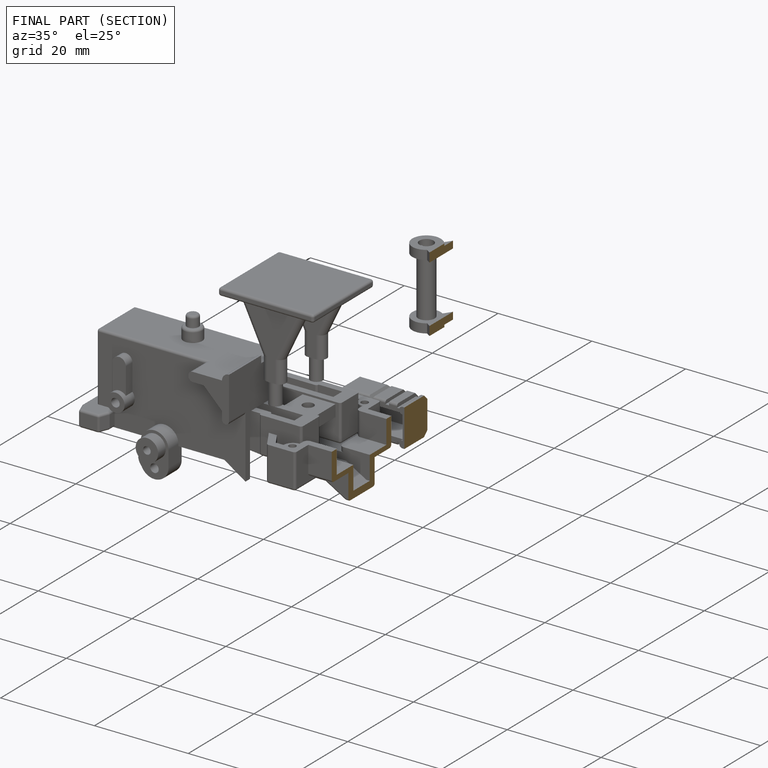
[diagram: finished part — half-section view (interior)]
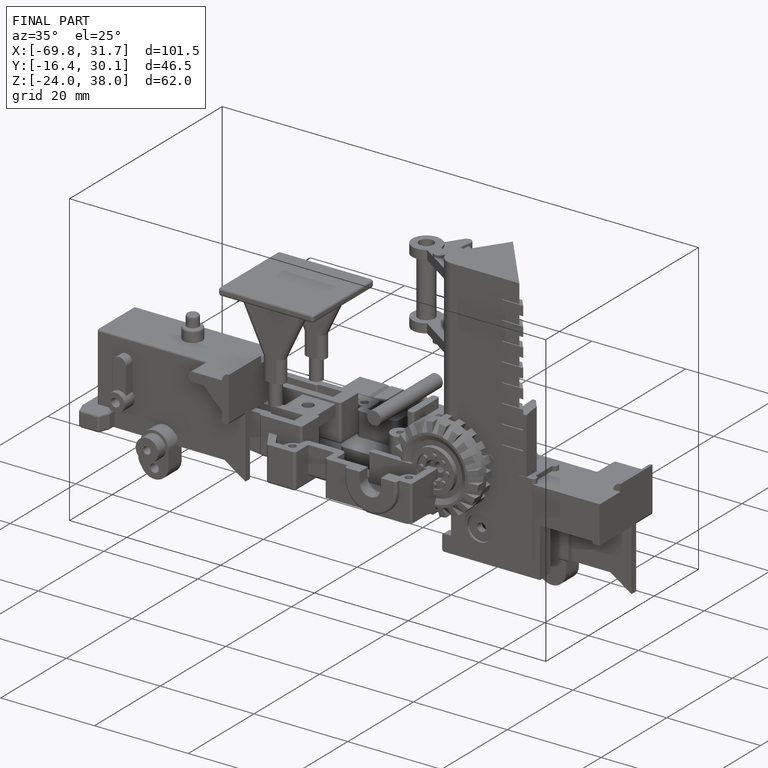
[diagram: finished part — iso view with bounding-box wireframe]
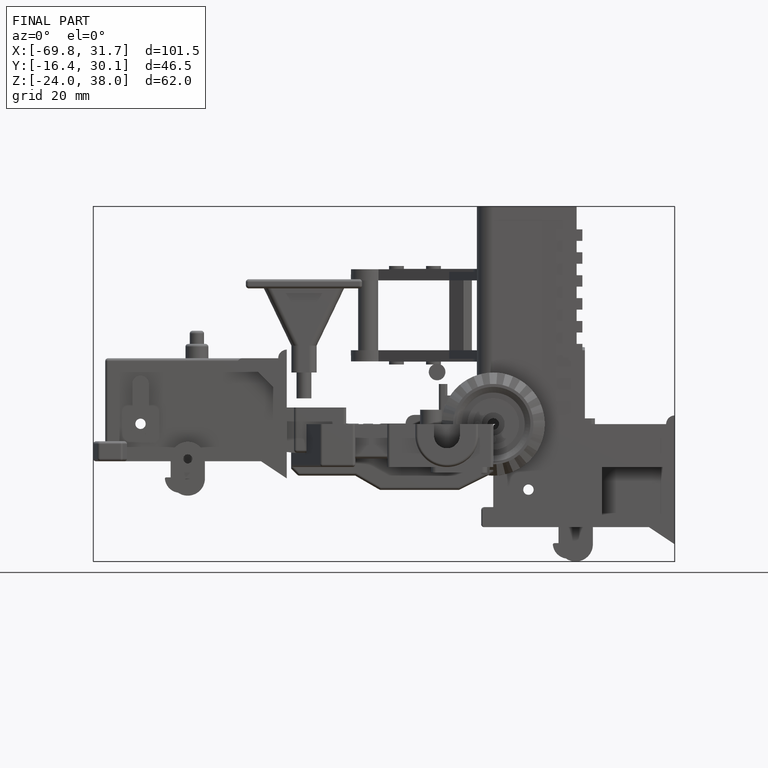
[diagram: finished part — front view with bounding-box wireframe]
